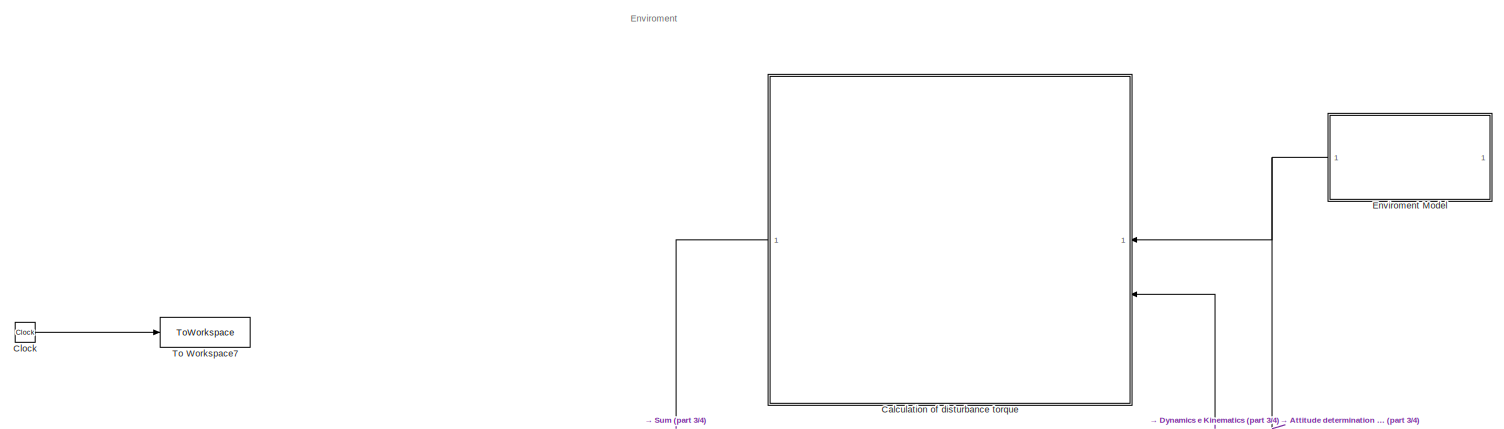
[diagram: root canvas - part 1/4, top right region]
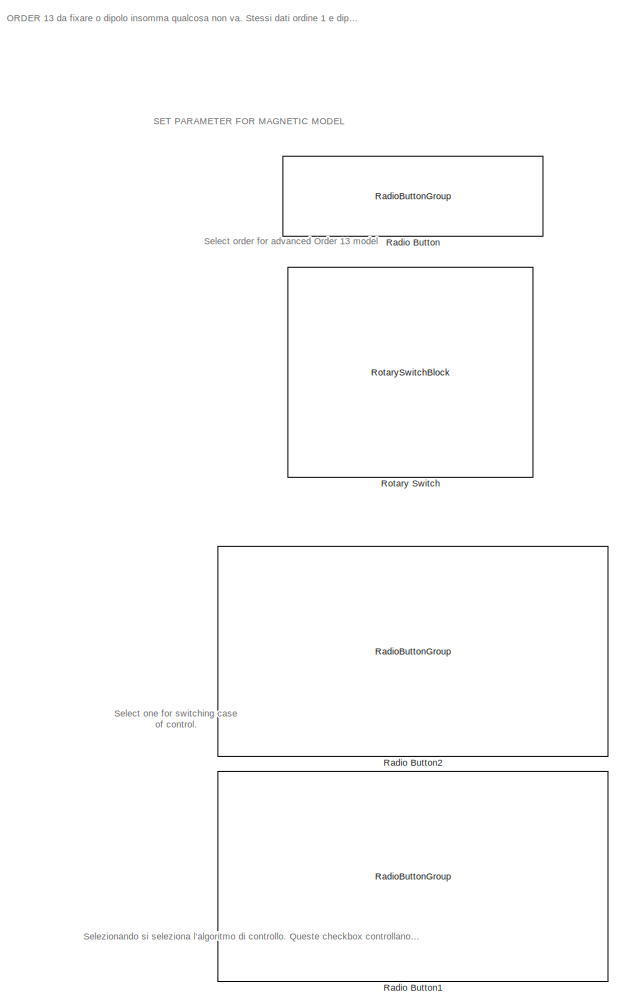
[diagram: root canvas - part 2/4, top left region]
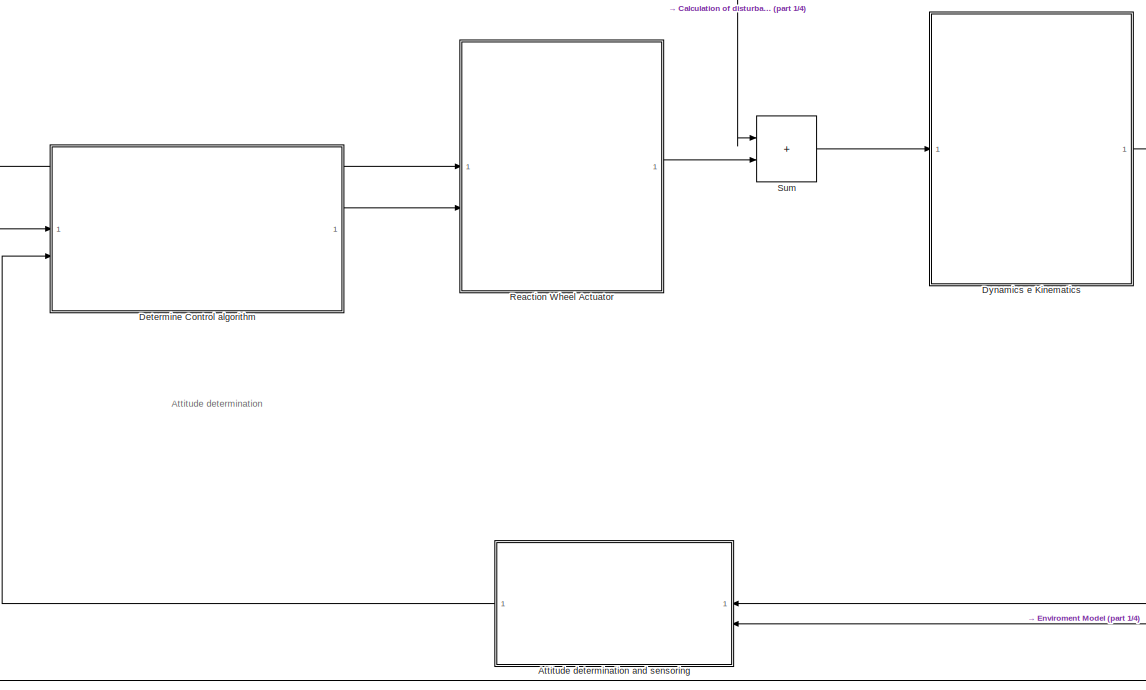
[diagram: root canvas - part 3/4, top center region]
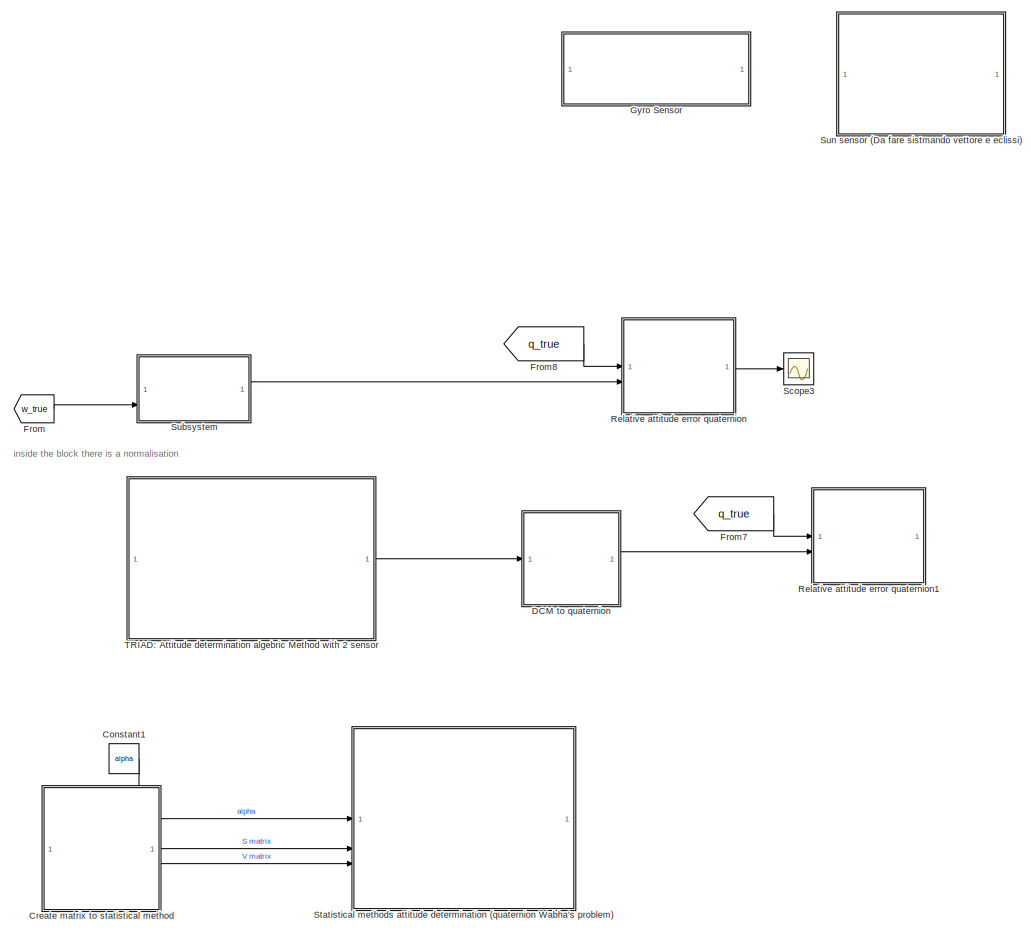
[diagram: root canvas - part 4/4, bottom center region]
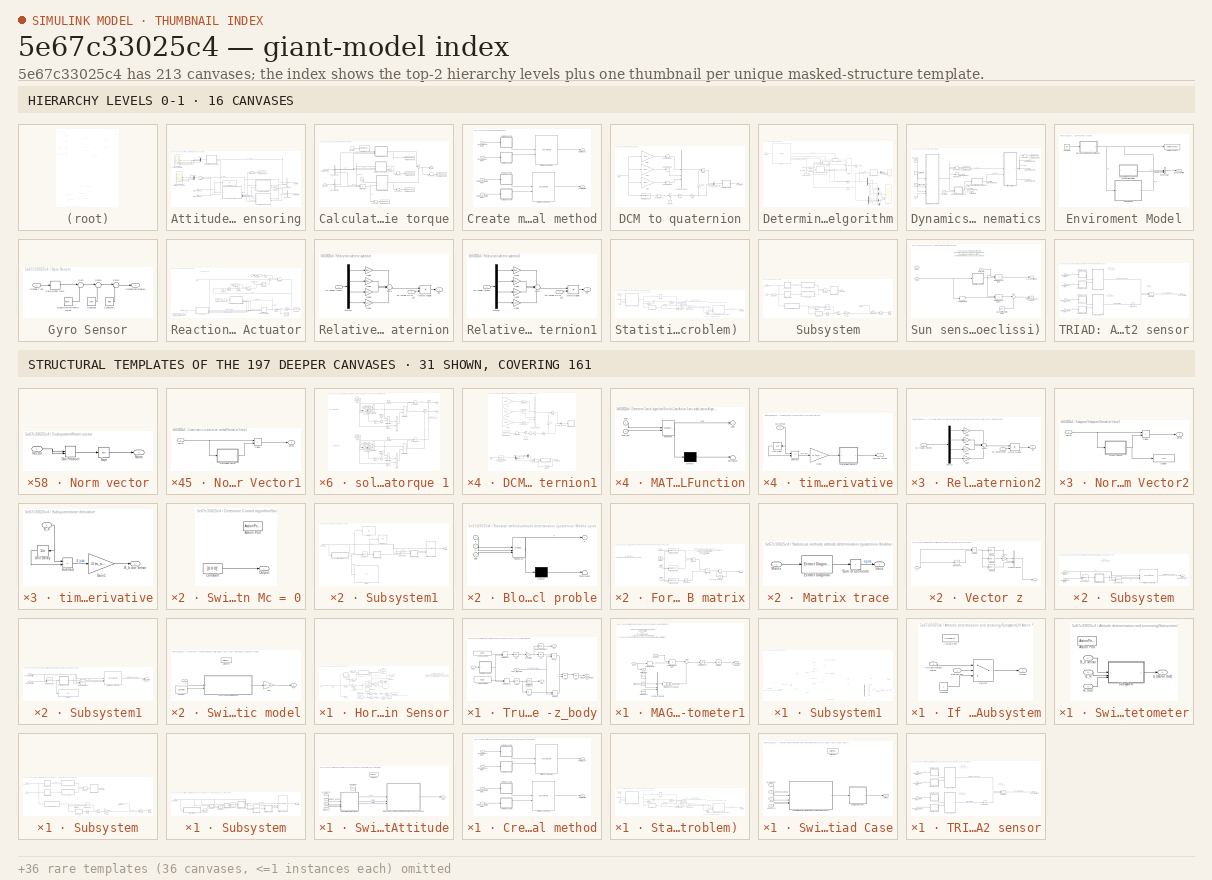
[diagram: thumbnail index - top-2 hierarchy levels (16 canvases) + 31 structural-template representatives of the remaining 197 canvases]
MODEL slx_5e67c33025c4
KIND model
CONFIG AbsTol = auto
CONFIG EnableMultiTasking = off
CONFIG FixedStep = t_step
CONFIG MaxStep = auto
CONFIG MinStep = auto
CONFIG RelTol = 1e-3
CONFIG SampleTimeConstraint = Unconstrained
CONFIG SolverName = ode4
CONFIG StartTime = t0
CONFIG StopTime = 1000
WORKSPACE source: mxarray member
WORKSPACE N_order = 1
BLOCK [SubSystem] Attitude determination and sensoring
  NameLocation = top
BLOCK [BusSelector] Attitude determination and sensoring/Bus Selector
  NameLocation = top
  OutputSignals = B_N,r_n
BLOCK [BusSelector] Attitude determination and sensoring/Bus Selector1
  NameLocation = top
  OutputSignals = w_b true,DCM_BN,q_b True
BLOCK [Demux] Attitude determination and sensoring/Demux
  NameLocation = top
BLOCK [Demux] Attitude determination and sensoring/Demux1
  NameLocation = top
  Outputs = 3
BLOCK [Display] Attitude determination and sensoring/Display
  Decimation = 1
BLOCK [Inport] Attitude determination and sensoring/Enviroment info
  NameLocation = top
  Port = 2
BLOCK [SubSystem] Attitude determination and sensoring/Horizon Sensor
  NameLocation = top
BLOCK [Reference] Attitude determination and sensoring/Horizon Sensor/Add nose of 1 deg  REF=simulink/Sources/Band-Limited
White Noise
  SourceBlock = simulink/Sources/Band-Limited\nWhite Noise
  SourceType = Band-Limited White Noise.
BLOCK [Trigonometry] Attitude determination and sensoring/Horizon Sensor/Asin2
  Operator = asin
BLOCK [Trigonometry] Attitude determination and sensoring/Horizon Sensor/Asin3
  Operator = asin
BLOCK [Constant] Attitude determination and sensoring/Horizon Sensor/Constant
  Value = horizon_cone_limit
BLOCK [Constant] Attitude determination and sensoring/Horizon Sensor/Constant1
  Value = [1 1 1]
BLOCK [Inport] Attitude determination and sensoring/Horizon Sensor/DCM_B//N
BLOCK [Display] Attitude determination and sensoring/Horizon Sensor/Display
  Decimation = 1
BLOCK [Display] Attitude determination and sensoring/Horizon Sensor/Display1
  Decimation = 1
BLOCK [Display] Attitude determination and sensoring/Horizon Sensor/Display2
  Decimation = 1
BLOCK [Display] Attitude determination and sensoring/Horizon Sensor/Display5
  Decimation = 1
BLOCK [DotProduct] Attitude determination and sensoring/Horizon Sensor/Dot Product2
  OutDataTypeStr = Inherit: Inherit via internal rule
BLOCK [DotProduct] Attitude determination and sensoring/Horizon Sensor/Dot Product3
  OutDataTypeStr = Inherit: Inherit via internal rule
BLOCK [Outport] Attitude determination and sensoring/Horizon Sensor/Falg IsEarthVisible
  Port = 3
BLOCK [Gain] Attitude determination and sensoring/Horizon Sensor/Gain
  Gain = -1
BLOCK [Gain] Attitude determination and sensoring/Horizon Sensor/Gain1
  Gain = -1
BLOCK [SubSystem] Attitude determination and sensoring/Horizon Sensor/Normalize Vector1
BLOCK [Product] Attitude determination and sensoring/Horizon Sensor/Normalize Vector1/Divide
  Inputs = */
BLOCK [SubSystem] Attitude determination and sensoring/Horizon Sensor/Normalize Vector1/Normalize Vector
  AncestorBlock = LibrarySAD5/Normalize Vector1
BLOCK [DotProduct] Attitude determination and sensoring/Horizon Sensor/Normalize Vector1/Normalize Vector/Dot Product
  OutDataTypeStr = Inherit: Inherit via internal rule
BLOCK [Outport] Attitude determination and sensoring/Horizon Sensor/Normalize Vector1/Normalize Vector/Norm
BLOCK [Sqrt] Attitude determination and sensoring/Horizon Sensor/Normalize Vector1/Normalize Vector/Sqrt
BLOCK [Inport] Attitude determination and sensoring/Horizon Sensor/Normalize Vector1/Normalize Vector/Vector
BLOCK [Inport] Attitude determination and sensoring/Horizon Sensor/Normalize Vector1/Vector
BLOCK [Outport] Attitude determination and sensoring/Horizon Sensor/Normalize Vector1/Versor
BLOCK [SubSystem] Attitude determination and sensoring/Horizon Sensor/Normalize Vector2
  NameLocation = left
BLOCK [Product] Attitude determination and sensoring/Horizon Sensor/Normalize Vector2/Divide
  Inputs = */
BLOCK [SubSystem] Attitude determination and sensoring/Horizon Sensor/Normalize Vector2/Normalize Vector
  AncestorBlock = LibrarySAD5/Normalize Vector1
BLOCK [DotProduct] Attitude determination and sensoring/Horizon Sensor/Normalize Vector2/Normalize Vector/Dot Product
  OutDataTypeStr = Inherit: Inherit via internal rule
BLOCK [Outport] Attitude determination and sensoring/Horizon Sensor/Normalize Vector2/Normalize Vector/Norm
BLOCK [Sqrt] Attitude determination and sensoring/Horizon Sensor/Normalize Vector2/Normalize Vector/Sqrt
BLOCK [Inport] Attitude determination and sensoring/Horizon Sensor/Normalize Vector2/Normalize Vector/Vector
BLOCK [Inport] Attitude determination and sensoring/Horizon Sensor/Normalize Vector2/Vector
BLOCK [Outport] Attitude determination and sensoring/Horizon Sensor/Normalize Vector2/Versor
BLOCK [Display] Attitude determination and sensoring/Horizon Sensor/Perturbed Pitch
  Decimation = 1
BLOCK [Display] Attitude determination and sensoring/Horizon Sensor/Perturbed Roll
  Decimation = 1
BLOCK [Outport] Attitude determination and sensoring/Horizon Sensor/Perturbed data Horizon
BLOCK [Inport] Attitude determination and sensoring/Horizon Sensor/R_N
  Port = 2
BLOCK [Outport] Attitude determination and sensoring/Horizon Sensor/R_N Horizon
  Port = 2
BLOCK [Reference] Attitude determination and sensoring/Horizon Sensor/Radians to Degrees2  REF=simulink_extras/Transformations/Radians
to Degrees
  SourceBlock = simulink_extras/Transformations/Radians\nto Degrees
  SourceType = RadiansToDegrees
BLOCK [Reference] Attitude determination and sensoring/Horizon Sensor/Radians to Degrees3  REF=simulink_extras/Transformations/Radians
to Degrees
  SourceBlock = simulink_extras/Transformations/Radians\nto Degrees
  SourceType = RadiansToDegrees
BLOCK [Product] Attitude determination and sensoring/Horizon Sensor/Rotation in body frame
  Multiplication = Matrix(*)
BLOCK [Product] Attitude determination and sensoring/Horizon Sensor/Rotation in body frame1
  Multiplication = Matrix(*)
BLOCK [Scope] Attitude determination and sensoring/Horizon Sensor/Scope
  Floating = off
  NumInputPorts = 1
  ScopeSpecificationString = Simulink.scopes.TimeScopeBlockCfg('CurrentConfiguration', extmgr.ConfigurationSet(extmgr.Configuration('Core','General UI',true),extmgr.Configuration('Core','Source UI',true),extmgr.Configuration('Sources','WiredSimulink',true,'DataLoggingVariableName','ScopeData1'),extmgr.Configuration('Visuals','Time Domain',true,'SerializedDisplays',{struct('MinYLimReal','-7599.04564','MaxYLimReal','7711.6762',...<+1398ch>
BLOCK [Sum] Attitude determination and sensoring/Horizon Sensor/Sum
  Inputs = |++
BLOCK [Switch] Attitude determination and sensoring/Horizon Sensor/Switch
  Criteria = u2 > Threshold
  InputSameDT = off
  SaturateOnIntegerOverflow = off
BLOCK [SubSystem] Attitude determination and sensoring/Horizon Sensor/True Roll and Pitch betwen nadir and -z_body
BLOCK [Abs] Attitude determination and sensoring/Horizon Sensor/True Roll and Pitch betwen nadir and -z_body/Abs
  SaturateOnIntegerOverflow = off
BLOCK [Abs] Attitude determination and sensoring/Horizon Sensor/True Roll and Pitch betwen nadir and -z_body/Abs1
  SaturateOnIntegerOverflow = off
BLOCK [Trigonometry] Attitude determination and sensoring/Horizon Sensor/True Roll and Pitch betwen nadir and -z_body/Asin
  Operator = asin
BLOCK [Trigonometry] Attitude determination and sensoring/Horizon Sensor/True Roll and Pitch betwen nadir and -z_body/Asin1
  Operator = asin
BLOCK [Gain] Attitude determination and sensoring/Horizon Sensor/True Roll and Pitch betwen nadir and -z_body/By defintion
  Gain = -1
BLOCK [DotProduct] Attitude determination and sensoring/Horizon Sensor/True Roll and Pitch betwen nadir and -z_body/Dot Product
  OutDataTypeStr = Inherit: Inherit via internal rule
BLOCK [DotProduct] Attitude determination and sensoring/Horizon Sensor/True Roll and Pitch betwen nadir and -z_body/Dot Product1
  OutDataTypeStr = Inherit: Inherit via internal rule
BLOCK [RelationalOperator] Attitude determination and sensoring/Horizon Sensor/True Roll and Pitch betwen nadir and -z_body/Equal
  InputSameDT = off
  Operator = >
  OutDataTypeStr = boolean
  RndMeth = Simplest
BLOCK [RelationalOperator] Attitude determination and sensoring/Horizon Sensor/True Roll and Pitch betwen nadir and -z_body/Equal1
  InputSameDT = off
  Operator = >
  OutDataTypeStr = boolean
  RndMeth = Simplest
BLOCK [Outport] Attitude determination and sensoring/Horizon Sensor/True Roll and Pitch betwen nadir and -z_body/Flag SensorSeeEarth
  Port = 3
BLOCK [Logic] Attitude determination and sensoring/Horizon Sensor/True Roll and Pitch betwen nadir and -z_body/NOT
  AllPortsSameDT = off
  IconShape = distinctive
  Operator = NOT
  OutDataTypeStr = boolean
BLOCK [SubSystem] Attitude determination and sensoring/Horizon Sensor/True Roll and Pitch betwen nadir and -z_body/Normalize Vector1
BLOCK [Product] Attitude determination and sensoring/Horizon Sensor/True Roll and Pitch betwen nadir and -z_body/Normalize Vector1/Divide
  Inputs = */
BLOCK [SubSystem] Attitude determination and sensoring/Horizon Sensor/True Roll and Pitch betwen nadir and -z_body/Normalize Vector1/Normalize Vector
  AncestorBlock = LibrarySAD5/Normalize Vector1
BLOCK [DotProduct] Attitude determination and sensoring/Horizon Sensor/True Roll and Pitch betwen nadir and -z_body/Normalize Vector1/Normalize Vector/Dot Product
  OutDataTypeStr = Inherit: Inherit via internal rule
BLOCK [Outport] Attitude determination and sensoring/Horizon Sensor/True Roll and Pitch betwen nadir and -z_body/Normalize Vector1/Normalize Vector/Norm
BLOCK [Sqrt] Attitude determination and sensoring/Horizon Sensor/True Roll and Pitch betwen nadir and -z_body/Normalize Vector1/Normalize Vector/Sqrt
BLOCK [Inport] Attitude determination and sensoring/Horizon Sensor/True Roll and Pitch betwen nadir and -z_body/Normalize Vector1/Normalize Vector/Vector
BLOCK [Inport] Attitude determination and sensoring/Horizon Sensor/True Roll and Pitch betwen nadir and -z_body/Normalize Vector1/Vector
BLOCK [Outport] Attitude determination and sensoring/Horizon Sensor/True Roll and Pitch betwen nadir and -z_body/Normalize Vector1/Versor
BLOCK [Logic] Attitude determination and sensoring/Horizon Sensor/True Roll and Pitch betwen nadir and -z_body/OR
  AllPortsSameDT = off
  IconShape = distinctive
  Operator = OR
  OutDataTypeStr = boolean
BLOCK [Outport] Attitude determination and sensoring/Horizon Sensor/True Roll and Pitch betwen nadir and -z_body/Pitch
BLOCK [Inport] Attitude determination and sensoring/Horizon Sensor/True Roll and Pitch betwen nadir and -z_body/R_b
  Port = 2
BLOCK [Reference] Attitude determination and sensoring/Horizon Sensor/True Roll and Pitch betwen nadir and -z_body/Radians to Degrees  REF=simulink_extras/Transformations/Radians
to Degrees
  SourceBlock = simulink_extras/Transformations/Radians\nto Degrees
  SourceType = RadiansToDegrees
BLOCK [Reference] Attitude determination and sensoring/Horizon Sensor/True Roll and Pitch betwen nadir and -z_body/Radians to Degrees1  REF=simulink_extras/Transformations/Radians
to Degrees
  SourceBlock = simulink_extras/Transformations/Radians\nto Degrees
  SourceType = RadiansToDegrees
BLOCK [Outport] Attitude determination and sensoring/Horizon Sensor/True Roll and Pitch betwen nadir and -z_body/Roll
  Port = 2
BLOCK [Inport] Attitude determination and sensoring/Horizon Sensor/True Roll and Pitch betwen nadir and -z_body/cone_limit_angle
BLOCK [Constant] Attitude determination and sensoring/Horizon Sensor/True Roll and Pitch betwen nadir and -z_body/x_b in body frame
  Value = [1,0,0]'
BLOCK [Constant] Attitude determination and sensoring/Horizon Sensor/True Roll and Pitch betwen nadir and -z_body/y_b in body frame1
  Value = [0,1,0]'
BLOCK [UnitDelay] Attitude determination and sensoring/Horizon Sensor/Unit Delay
  HasFrameUpgradeWarning = on
  InitialCondition = [0 1 0]'
  SampleTime = -1
BLOCK [ZeroOrderHold] Attitude determination and sensoring/Horizon Sensor/Zero-Order Hold
  SampleTime = ts_sensor
BLOCK [Constant] Attitude determination and sensoring/Horizon Sensor/x_b in body frame2
  Value = [1,0,0]'
BLOCK [Constant] Attitude determination and sensoring/Horizon Sensor/y_b in body frame3
  Value = [0,1,0]'
BLOCK [SubSystem] Attitude determination and sensoring/MAG-3  Magnetometer1
  NameLocation = top
BLOCK [Inport] Attitude determination and sensoring/MAG-3  Magnetometer1/B_N
  Port = 2
BLOCK [Outport] Attitude determination and sensoring/MAG-3  Magnetometer1/B_b perturbed sensor
BLOCK [Outport] Attitude determination and sensoring/MAG-3  Magnetometer1/B_n
  Port = 2
BLOCK [Inport] Attitude determination and sensoring/MAG-3  Magnetometer1/DCM_B//N
BLOCK [Gain] Attitude determination and sensoring/MAG-3  Magnetometer1/Error gain of sensor MAG-3
  Gain = inc_tot*FS
BLOCK [Product] Attitude determination and sensoring/MAG-3  Magnetometer1/Rotation in body frame
  Multiplication = Matrix(*)
BLOCK [Saturate] Attitude determination and sensoring/MAG-3  Magnetometer1/Saturation to FS
  LowerLimit = -FS
  UpperLimit = FS
BLOCK [Sum] Attitude determination and sensoring/MAG-3  Magnetometer1/Sum
  Inputs = |++
BLOCK [UnitDelay] Attitude determination and sensoring/MAG-3  Magnetometer1/Unit Delay
  HasFrameUpgradeWarning = on
  InitialCondition = [0,0,1]'
  SampleTime = -1
BLOCK [Concatenate] Attitude determination and sensoring/MAG-3  Magnetometer1/Vector Concatenate
  NumInputs = 3
BLOCK [RandomNumber] Attitude determination and sensoring/MAG-3  Magnetometer1/White Noise
  DisableCoverage = on
  SampleTime = ts_sensor
  Seed = 1
BLOCK [RandomNumber] Attitude determination and sensoring/MAG-3  Magnetometer1/White Noise1
  DisableCoverage = on
  SampleTime = ts_sensor
  Seed = 2
BLOCK [RandomNumber] Attitude determination and sensoring/MAG-3  Magnetometer1/White Noise2
  DisableCoverage = on
  SampleTime = ts_sensor
  Seed = 3
BLOCK [ZeroOrderHold] Attitude determination and sensoring/MAG-3  Magnetometer1/Zero-Order Hold
  SampleTime = ts_sensor
BLOCK [Inport] Attitude determination and sensoring/Model Info
  NameLocation = top
BLOCK [Outport] Attitude determination and sensoring/Out Bus Element1
BLOCK [Outport] Attitude determination and sensoring/Out Bus Element2
BLOCK [SubSystem] Attitude determination and sensoring/Relative attitude error quaternion2
  NameLocation = top
BLOCK [Demux] Attitude determination and sensoring/Relative attitude error quaternion2/Demux
BLOCK [Gain] Attitude determination and sensoring/Relative attitude error quaternion2/Gain1
  Gain = [0,0,0,-1; 0,0,1,0; 0,-1,0 0; 1,0,0,0]
BLOCK [Gain] Attitude determination and sensoring/Relative attitude error quaternion2/Gain2
  Gain = [0, 0, -1 ,0; 0, 0 ,0 ,-1; 1, 0, 0, 0; 0 1, 0, 0]
BLOCK [Gain] Attitude determination and sensoring/Relative attitude error quaternion2/Gain3
  Gain = [0 1 0 0; -1 0 0 0; 0 0 0 -1; 0 0 1 0]
BLOCK [Gain] Attitude determination and sensoring/Relative attitude error quaternion2/Gain4
  Gain = eye(4)
BLOCK [Product] Attitude determination and sensoring/Relative attitude error quaternion2/Matrix Multiply
  Multiplication = Matrix(*)
BLOCK [Sum] Attitude determination and sensoring/Relative attitude error quaternion2/Sum1
  Inputs = ++++
BLOCK [Inport] Attitude determination and sensoring/Relative attitude error quaternion2/q1 (usually Target)
BLOCK [Inport] Attitude determination and sensoring/Relative attitude error quaternion2/q2 (Estimated)
  Port = 2
BLOCK [Outport] Attitude determination and sensoring/Relative attitude error quaternion2/qe
BLOCK [Reshape] Attitude determination and sensoring/Reshape3
BLOCK [Scope] Attitude determination and sensoring/SCOPE ERROR ATTITUTE ESTIMATION RESPECT TO DCM_BN TRUE 
  Floating = off
  NameLocation = top
  NumInputPorts = 4
  ScopeSpecificationString = Simulink.scopes.TimeScopeBlockCfg('CurrentConfiguration', extmgr.ConfigurationSet(extmgr.Configuration('Core','General UI',true),extmgr.Configuration('Core','Source UI',true),extmgr.Configuration('Sources','WiredSimulink',true,'DataLoggingVariableName','ScopeData3'),extmgr.Configuration('Visuals','Time Domain',true,'SerializedDisplays',{struct('MinYLimReal','-0.51945','MaxYLimReal','0.50149','YLab...<+3524ch>
BLOCK [Scope] Attitude determination and sensoring/SCOPE ERROR w estimated RESPECT TO w TRUE 
  Floating = off
  NameLocation = top
  NumInputPorts = 3
  ScopeSpecificationString = Simulink.scopes.TimeScopeBlockCfg('CurrentConfiguration', extmgr.ConfigurationSet(extmgr.Configuration('Core','General UI',true),extmgr.Configuration('Core','Source UI',true),extmgr.Configuration('Sources','WiredSimulink',true,'DataLoggingVariableName','ScopeData4'),extmgr.Configuration('Visuals','Time Domain',true,'SerializedDisplays',{struct('MinYLimReal','-8.65523','MaxYLimReal','20.78907','YLa...<+2756ch>
BLOCK [SubSystem] Attitude determination and sensoring/Subsystem1
  NameLocation = top
BLOCK [Inport] Attitude determination and sensoring/Subsystem1/B_N
  Port = 3
BLOCK [Inport] Attitude determination and sensoring/Subsystem1/B_b sensor
  Port = 2
BLOCK [Constant] Attitude determination and sensoring/Subsystem1/Constant5
  Value = 2
BLOCK [Demux] Attitude determination and sensoring/Subsystem1/Demux
BLOCK [Display] Attitude determination and sensoring/Subsystem1/Display
  Decimation = 1
BLOCK [Inport] Attitude determination and sensoring/Subsystem1/Flag IsEarthVisible
  Port = 6
BLOCK [Gain] Attitude determination and sensoring/Subsystem1/Gain
  Gain = [0,0,0; 0,0,-1; 0 1, 0;-1,0,0]
BLOCK [Gain] Attitude determination and sensoring/Subsystem1/Gain1
  Gain = [0,0,1;0,0,0;-1,0,0;0,-1,0]
BLOCK [Gain] Attitude determination and sensoring/Subsystem1/Gain2
  Gain = [0,-1,0;1,0,0;0,0,0;0,0,-1]
BLOCK [Gain] Attitude determination and sensoring/Subsystem1/Gain3
  Gain = [1,0,0;0,1,0;0,0,1;0,0,0]
BLOCK [Gain] Attitude determination and sensoring/Subsystem1/Gain4
  Gain = 2
BLOCK [Inport] Attitude determination and sensoring/Subsystem1/Horizon_N
  Port = 5
BLOCK [Inport] Attitude determination and sensoring/Subsystem1/Horizon_b sensor
  Port = 4
BLOCK [SubSystem] Attitude determination and sensoring/Subsystem1/If Action Subsystem
  TreatAsAtomicUnit = on
BLOCK [ActionPort] Attitude determination and sensoring/Subsystem1/If Action Subsystem/Action Port
  ActionPortLabel = else
  PropagateVarSize = During execution
BLOCK [Inport] Attitude determination and sensoring/Subsystem1/If Action Subsystem/Attitude method choice
BLOCK [Constant] Attitude determination and sensoring/Subsystem1/If Action Subsystem/Constant
BLOCK [Inport] Attitude determination and sensoring/Subsystem1/If Action Subsystem/Flag horizon
  Port = 2
BLOCK [Outport] Attitude determination and sensoring/Subsystem1/If Action Subsystem/Output
BLOCK [Switch] Attitude determination and sensoring/Subsystem1/If Action Subsystem/Switch
  Criteria = u2 > Threshold
  InputSameDT = off
  SaturateOnIntegerOverflow = off
BLOCK [SubSystem] Attitude determination and sensoring/Subsystem1/If Action Subsystem1
  TreatAsAtomicUnit = on
BLOCK [ActionPort] Attitude determination and sensoring/Subsystem1/If Action Subsystem1/Action Port
  ActionPortLabel = if(u1  == 1)
  PropagateVarSize = During execution
BLOCK [Constant] Attitude determination and sensoring/Subsystem1/If Action Subsystem1/Constant
BLOCK [Outport] Attitude determination and sensoring/Subsystem1/If Action Subsystem1/Out1
BLOCK [If] Attitude determination and sensoring/Subsystem1/If1
  IfExpression = u1  == 1
BLOCK [Product] Attitude determination and sensoring/Subsystem1/Matrix Multiply
  Multiplication = Matrix(*)
BLOCK [Merge] Attitude determination and sensoring/Subsystem1/Merge
  Inputs = 3
BLOCK [Merge] Attitude determination and sensoring/Subsystem1/Merge1
BLOCK [Reference] Attitude determination and sensoring/Subsystem1/Pseudoinverse  REF=dspinverses/Pseudoinverse
  SourceBlock = dspinverses/Pseudoinverse
  SourceType = Pseudoinverse
BLOCK [Sum] Attitude determination and sensoring/Subsystem1/Sum
  Inputs = |++++
BLOCK [SwitchCase] Attitude determination and sensoring/Subsystem1/Switch Case
  CaseConditions = {1,2}
BLOCK [SubSystem] Attitude determination and sensoring/Subsystem1/Switch Case Action Only-Magnetometer
  TreatAsAtomicUnit = on
BLOCK [ActionPort] Attitude determination and sensoring/Subsystem1/Switch Case Action Only-Magnetometer/Action Port
  ActionPortLabel = case [ 1 ]:
BLOCK [Inport] Attitude determination and sensoring/Subsystem1/Switch Case Action Only-Magnetometer/B_N
  Port = 2
BLOCK [Inport] Attitude determination and sensoring/Subsystem1/Switch Case Action Only-Magnetometer/B_b sensor
BLOCK [SubSystem] Attitude determination and sensoring/Subsystem1/Switch Case Action Only-Magnetometer/Subsystem
BLOCK [Inport] Attitude determination and sensoring/Subsystem1/Switch Case Action Only-Magnetometer/Subsystem/B_N
  Port = 2
BLOCK [Inport] Attitude determination and sensoring/Subsystem1/Switch Case Action Only-Magnetometer/Subsystem/B_b sensor
BLOCK [Reference] Attitude determination and sensoring/Subsystem1/Switch Case Action Only-Magnetometer/Subsystem/Cross Product4  REF=matrix_library/Cross Product
  LibrarySourceBlock = simulink/Matrix\nOperations/Cross Product
  SourceBlock = matrix_library/Cross Product
  SourceType = CrossProduct
BLOCK [SubSystem] Attitude determination and sensoring/Subsystem1/Switch Case Action Only-Magnetometer/Subsystem/DCM to quaternion1
BLOCK [Abs] Attitude determination and sensoring/Subsystem1/Switch Case Action Only-Magnetometer/Subsystem/DCM to quaternion1/Abs
  SaturateOnIntegerOverflow = off
BLOCK [Constant] Attitude determination and sensoring/Subsystem1/Switch Case Action Only-Magnetometer/Subsystem/DCM to quaternion1/Constant
  NameLocation = right
BLOCK [Inport] Attitude determination and sensoring/Subsystem1/Switch Case Action Only-Magnetometer/Subsystem/DCM to quaternion1/DCM
BLOCK [Demux] Attitude determination and sensoring/Subsystem1/Switch Case Action Only-Magnetometer/Subsystem/DCM to quaternion1/Demux
BLOCK [Reference] Attitude determination and sensoring/Subsystem1/Switch Case Action Only-Magnetometer/Subsystem/DCM to quaternion1/Direction Cosine Matrix to Quaternions1  REF=sharedtransform/Direction Cosine Matrix 
to Quaternions
  LibrarySourceBlock = aerolibtransform2/Direction Cosine Matrix \nto Quaternions
  SourceBlock = sharedtransform/Direction Cosine Matrix \nto Quaternions
  SourceType = DCM2Quaternion
BLOCK [Product] Attitude determination and sensoring/Subsystem1/Switch Case Action Only-Magnetometer/Subsystem/DCM to quaternion1/Divide
  Inputs = */
BLOCK [Reference] Attitude determination and sensoring/Subsystem1/Switch Case Action Only-Magnetometer/Subsystem/DCM to quaternion1/Extract Diagonal  REF=matrix_library/Extract Diagonal
  LibrarySourceBlock = simulink/Matrix\nOperations/Extract Diagonal
  SourceBlock = matrix_library/Extract Diagonal
  SourceType = Extract Diagonal
BLOCK [Gain] Attitude determination and sensoring/Subsystem1/Switch Case Action Only-Magnetometer/Subsystem/DCM to quaternion1/Gain
  Gain = 0.5
BLOCK [Gain] Attitude determination and sensoring/Subsystem1/Switch Case Action Only-Magnetometer/Subsystem/DCM to quaternion1/Gain1
  Gain = [0 0 0; 0 0 1; 0 -1 0]
BLOCK [Gain] Attitude determination and sensoring/Subsystem1/Switch Case Action Only-Magnetometer/Subsystem/DCM to quaternion1/Gain2
  Gain = [0 0 -1; 0 0 0; 1 0 0]
BLOCK [Gain] Attitude determination and sensoring/Subsystem1/Switch Case Action Only-Magnetometer/Subsystem/DCM to quaternion1/Gain3
  Gain = [0 1 0; -1 0 0; 0 0 0]
BLOCK [Gain] Attitude determination and sensoring/Subsystem1/Switch Case Action Only-Magnetometer/Subsystem/DCM to quaternion1/Gain4
  Gain = [4;4;4]
  NameLocation = right
BLOCK [SubSystem] Attitude determination and sensoring/Subsystem1/Switch Case Action Only-Magnetometer/Subsystem/DCM to quaternion1/MATLAB Function
  ErrorFcn = Stateflow.Translate.translate
  PermitHierarchicalResolution = ExplicitOnly
  SFBlockType = MATLAB Function
  TreatAsAtomicUnit = on
BLOCK [Demux] Attitude determination and sensoring/Subsystem1/Switch Case Action Only-Magnetometer/Subsystem/DCM to quaternion1/MATLAB Function/ Demux 
  Outputs = 1
BLOCK [S-Function] Attitude determination and sensoring/Subsystem1/Switch Case Action Only-Magnetometer/Subsystem/DCM to quaternion1/MATLAB Function/ SFunction 
  EnableBusSupport = on
  FunctionName = sf_sfun
  PortCounts = [2 2]
  SFcnIsStateOwnerBlock = off
  SFunctionDeploymentMode = off
  Tag = Stateflow S-Function 5
BLOCK [Terminator] Attitude determination and sensoring/Subsystem1/Switch Case Action Only-Magnetometer/Subsystem/DCM to quaternion1/MATLAB Function/ Terminator 
BLOCK [Outport] Attitude determination and sensoring/Subsystem1/Switch Case Action Only-Magnetometer/Subsystem/DCM to quaternion1/MATLAB Function/quat
BLOCK [Inport] Attitude determination and sensoring/Subsystem1/Switch Case Action Only-Magnetometer/Subsystem/DCM to quaternion1/MATLAB Function/quat 
BLOCK [Inport] Attitude determination and sensoring/Subsystem1/Switch Case Action Only-Magnetometer/Subsystem/DCM to quaternion1/MATLAB Function/quat_last
  Port = 2
BLOCK [Mux] Attitude determination and sensoring/Subsystem1/Switch Case Action Only-Magnetometer/Subsystem/DCM to quaternion1/Mux
  DisplayOption = bar
  Inputs = 3
BLOCK [SubSystem] Attitude determination and sensoring/Subsystem1/Switch Case Action Only-Magnetometer/Subsystem/DCM to quaternion1/Normalize Vector1
BLOCK [Product] Attitude determination and sensoring/Subsystem1/Switch Case Action Only-Magnetometer/Subsystem/DCM to quaternion1/Normalize Vector1/Divide
  Inputs = */
BLOCK [SubSystem] Attitude determination and sensoring/Subsystem1/Switch Case Action Only-Magnetometer/Subsystem/DCM to quaternion1/Normalize Vector1/Norm vector
  AncestorBlock = LibrarySAD5/Normalize Vector1
BLOCK [DotProduct] Attitude determination and sensoring/Subsystem1/Switch Case Action Only-Magnetometer/Subsystem/DCM to quaternion1/Normalize Vector1/Norm vector/Dot Product
  OutDataTypeStr = Inherit: Inherit via internal rule
BLOCK [Outport] Attitude determination and sensoring/Subsystem1/Switch Case Action Only-Magnetometer/Subsystem/DCM to quaternion1/Normalize Vector1/Norm vector/Norm
BLOCK [Sqrt] Attitude determination and sensoring/Subsystem1/Switch Case Action Only-Magnetometer/Subsystem/DCM to quaternion1/Normalize Vector1/Norm vector/Sqrt
BLOCK [Inport] Attitude determination and sensoring/Subsystem1/Switch Case Action Only-Magnetometer/Subsystem/DCM to quaternion1/Normalize Vector1/Norm vector/Vector
BLOCK [Inport] Attitude determination and sensoring/Subsystem1/Switch Case Action Only-Magnetometer/Subsystem/DCM to quaternion1/Normalize Vector1/Vector
BLOCK [Outport] Attitude determination and sensoring/Subsystem1/Switch Case Action Only-Magnetometer/Subsystem/DCM to quaternion1/Normalize Vector1/Versor
BLOCK [Sqrt] Attitude determination and sensoring/Subsystem1/Switch Case Action Only-Magnetometer/Subsystem/DCM to quaternion1/Sqrt
BLOCK [Sum] Attitude determination and sensoring/Subsystem1/Switch Case Action Only-Magnetometer/Subsystem/DCM to quaternion1/Sum
  Inputs = |++
BLOCK [Sum] Attitude determination and sensoring/Subsystem1/Switch Case Action Only-Magnetometer/Subsystem/DCM to quaternion1/Sum of Elements
  IconShape = rectangular
  Inputs = +
BLOCK [Sum] Attitude determination and sensoring/Subsystem1/Switch Case Action Only-Magnetometer/Subsystem/DCM to quaternion1/Sum of Elements1
  IconShape = rectangular
  Inputs = +
BLOCK [Sum] Attitude determination and sensoring/Subsystem1/Switch Case Action Only-Magnetometer/Subsystem/DCM to quaternion1/Sum of Elements2
  IconShape = rectangular
  Inputs = +
BLOCK [Sum] Attitude determination and sensoring/Subsystem1/Switch Case Action Only-Magnetometer/Subsystem/DCM to quaternion1/Sum of Elements3
  IconShape = rectangular
  Inputs = +
BLOCK [UnitDelay] Attitude determination and sensoring/Subsystem1/Switch Case Action Only-Magnetometer/Subsystem/DCM to quaternion1/Unit Delay
  HasFrameUpgradeWarning = on
  InitialCondition = q0
  NameLocation = top
  SampleTime = -1
BLOCK [Concatenate] Attitude determination and sensoring/Subsystem1/Switch Case Action Only-Magnetometer/Subsystem/DCM to quaternion1/Vector Concatenate
  NumInputs = 3
BLOCK [Concatenate] Attitude determination and sensoring/Subsystem1/Switch Case Action Only-Magnetometer/Subsystem/DCM to quaternion1/Vector Concatenate1
BLOCK [Concatenate] Attitude determination and sensoring/Subsystem1/Switch Case Action Only-Magnetometer/Subsystem/DCM to quaternion1/Vector Concatenate2
BLOCK [Outport] Attitude determination and sensoring/Subsystem1/Switch Case Action Only-Magnetometer/Subsystem/DCM to quaternion1/q (scalar last)1
BLOCK [Product] Attitude determination and sensoring/Subsystem1/Switch Case Action Only-Magnetometer/Subsystem/Divide
  Inputs = */
BLOCK [Gain] Attitude determination and sensoring/Subsystem1/Switch Case Action Only-Magnetometer/Subsystem/Gain3
  Gain = 1/ts_sensor
BLOCK [Product] Attitude determination and sensoring/Subsystem1/Switch Case Action Only-Magnetometer/Subsystem/Matrix Multiply2
  Multiplication = Matrix(*)
BLOCK [SubSystem] Attitude determination and sensoring/Subsystem1/Switch Case Action Only-Magnetometer/Subsystem/Norm vector
  AncestorBlock = LibrarySAD5/Normalize Vector1
BLOCK [DotProduct] Attitude determination and sensoring/Subsystem1/Switch Case Action Only-Magnetometer/Subsystem/Norm vector/Dot Product
  OutDataTypeStr = Inherit: Inherit via internal rule
BLOCK [Outport] Attitude determination and sensoring/Subsystem1/Switch Case Action Only-Magnetometer/Subsystem/Norm vector/Norm
BLOCK [Sqrt] Attitude determination and sensoring/Subsystem1/Switch Case Action Only-Magnetometer/Subsystem/Norm vector/Sqrt
BLOCK [Inport] Attitude determination and sensoring/Subsystem1/Switch Case Action Only-Magnetometer/Subsystem/Norm vector/Vector
BLOCK [SubSystem] Attitude determination and sensoring/Subsystem1/Switch Case Action Only-Magnetometer/Subsystem/Normalize Vector1
BLOCK [Product] Attitude determination and sensoring/Subsystem1/Switch Case Action Only-Magnetometer/Subsystem/Normalize Vector1/Divide
  Inputs = */
BLOCK [SubSystem] Attitude determination and sensoring/Subsystem1/Switch Case Action Only-Magnetometer/Subsystem/Normalize Vector1/Norm vector
  AncestorBlock = LibrarySAD5/Normalize Vector1
BLOCK [DotProduct] Attitude determination and sensoring/Subsystem1/Switch Case Action Only-Magnetometer/Subsystem/Normalize Vector1/Norm vector/Dot Product
  OutDataTypeStr = Inherit: Inherit via internal rule
BLOCK [Outport] Attitude determination and sensoring/Subsystem1/Switch Case Action Only-Magnetometer/Subsystem/Normalize Vector1/Norm vector/Norm
BLOCK [Sqrt] Attitude determination and sensoring/Subsystem1/Switch Case Action Only-Magnetometer/Subsystem/Normalize Vector1/Norm vector/Sqrt
BLOCK [Inport] Attitude determination and sensoring/Subsystem1/Switch Case Action Only-Magnetometer/Subsystem/Normalize Vector1/Norm vector/Vector
BLOCK [Inport] Attitude determination and sensoring/Subsystem1/Switch Case Action Only-Magnetometer/Subsystem/Normalize Vector1/Vector
BLOCK [Outport] Attitude determination and sensoring/Subsystem1/Switch Case Action Only-Magnetometer/Subsystem/Normalize Vector1/Versor
BLOCK [SubSystem] Attitude determination and sensoring/Subsystem1/Switch Case Action Only-Magnetometer/Subsystem/Normalize Vector5
BLOCK [Product] Attitude determination and sensoring/Subsystem1/Switch Case Action Only-Magnetometer/Subsystem/Normalize Vector5/Divide
  Inputs = */
BLOCK [SubSystem] Attitude determination and sensoring/Subsystem1/Switch Case Action Only-Magnetometer/Subsystem/Normalize Vector5/Norm vector
  AncestorBlock = LibrarySAD5/Normalize Vector1
BLOCK [DotProduct] Attitude determination and sensoring/Subsystem1/Switch Case Action Only-Magnetometer/Subsystem/Normalize Vector5/Norm vector/Dot Product
  OutDataTypeStr = Inherit: Inherit via internal rule
BLOCK [Outport] Attitude determination and sensoring/Subsystem1/Switch Case Action Only-Magnetometer/Subsystem/Normalize Vector5/Norm vector/Norm
BLOCK [Sqrt] Attitude determination and sensoring/Subsystem1/Switch Case Action Only-Magnetometer/Subsystem/Normalize Vector5/Norm vector/Sqrt
BLOCK [Inport] Attitude determination and sensoring/Subsystem1/Switch Case Action Only-Magnetometer/Subsystem/Normalize Vector5/Norm vector/Vector
BLOCK [Inport] Attitude determination and sensoring/Subsystem1/Switch Case Action Only-Magnetometer/Subsystem/Normalize Vector5/Vector
BLOCK [Outport] Attitude determination and sensoring/Subsystem1/Switch Case Action Only-Magnetometer/Subsystem/Normalize Vector5/Versor
BLOCK [Inport] Attitude determination and sensoring/Subsystem1/Switch Case Action Only-Magnetometer/Subsystem/Omega True
  Port = 3
BLOCK [Scope] Attitude determination and sensoring/Subsystem1/Switch Case Action Only-Magnetometer/Subsystem/Scope
  Floating = off
  NumInputPorts = 1
  ScopeSpecificationString = Simulink.scopes.TimeScopeBlockCfg('CurrentConfiguration', extmgr.ConfigurationSet(extmgr.Configuration('Core','General UI',true),extmgr.Configuration('Core','Source UI',true),extmgr.Configuration('Sources','WiredSimulink',true,'DataLoggingVariableName','ScopeData4'),extmgr.Configuration('Visuals','Time Domain',true,'SerializedDisplays',{struct('MinYLimReal','-606.44472','MaxYLimReal','-606.41799',...<+1485ch>
BLOCK [Math] Attitude determination and sensoring/Subsystem1/Switch Case Action Only-Magnetometer/Subsystem/Square
  Operator = square
BLOCK [SubSystem] Attitude determination and sensoring/Subsystem1/Switch Case Action Only-Magnetometer/Subsystem/Subsystem
BLOCK [Inport] Attitude determination and sensoring/Subsystem1/Switch Case Action Only-Magnetometer/Subsystem/Subsystem/B_b versor
BLOCK [Reference] Attitude determination and sensoring/Subsystem1/Switch Case Action Only-Magnetometer/Subsystem/Subsystem/Cross Product  REF=matrix_library/Cross Product
  LibrarySourceBlock = simulink/Matrix\nOperations/Cross Product
  SourceBlock = matrix_library/Cross Product
  SourceType = CrossProduct
BLOCK [Reference] Attitude determination and sensoring/Subsystem1/Switch Case Action Only-Magnetometer/Subsystem/Subsystem/Cross Product1  REF=matrix_library/Cross Product
  LibrarySourceBlock = simulink/Matrix\nOperations/Cross Product
  SourceBlock = matrix_library/Cross Product
  SourceType = CrossProduct
BLOCK [Concatenate] Attitude determination and sensoring/Subsystem1/Switch Case Action Only-Magnetometer/Subsystem/Subsystem/Matrix Concatenate
  ConcatenateDimension = 2
  Mode = Multidimensional array
  NumInputs = 3
BLOCK [Product] Attitude determination and sensoring/Subsystem1/Switch Case Action Only-Magnetometer/Subsystem/Subsystem/Matrix Multiply
  Multiplication = Matrix(*)
BLOCK [Product] Attitude determination and sensoring/Subsystem1/Switch Case Action Only-Magnetometer/Subsystem/Subsystem/Matrix Multiply1
  Multiplication = Matrix(*)
BLOCK [SubSystem] Attitude determination and sensoring/Subsystem1/Switch Case Action Only-Magnetometer/Subsystem/Subsystem/Normalize Vector1
BLOCK [Display] Attitude determination and sensoring/Subsystem1/Switch Case Action Only-Magnetometer/Subsystem/Subsystem/Normalize Vector1/Display
  Decimation = 1
BLOCK [Product] Attitude determination and sensoring/Subsystem1/Switch Case Action Only-Magnetometer/Subsystem/Subsystem/Normalize Vector1/Divide
  Inputs = */
BLOCK [SubSystem] Attitude determination and sensoring/Subsystem1/Switch Case Action Only-Magnetometer/Subsystem/Subsystem/Normalize Vector1/Norm vector
  AncestorBlock = LibrarySAD5/Normalize Vector1
BLOCK [DotProduct] Attitude determination and sensoring/Subsystem1/Switch Case Action Only-Magnetometer/Subsystem/Subsystem/Normalize Vector1/Norm vector/Dot Product
  OutDataTypeStr = Inherit: Inherit via internal rule
BLOCK [Outport] Attitude determination and sensoring/Subsystem1/Switch Case Action Only-Magnetometer/Subsystem/Subsystem/Normalize Vector1/Norm vector/Norm
BLOCK [Sqrt] Attitude determination and sensoring/Subsystem1/Switch Case Action Only-Magnetometer/Subsystem/Subsystem/Normalize Vector1/Norm vector/Sqrt
BLOCK [Inport] Attitude determination and sensoring/Subsystem1/Switch Case Action Only-Magnetometer/Subsystem/Subsystem/Normalize Vector1/Norm vector/Vector
BLOCK [Inport] Attitude determination and sensoring/Subsystem1/Switch Case Action Only-Magnetometer/Subsystem/Subsystem/Normalize Vector1/Vector
BLOCK [Outport] Attitude determination and sensoring/Subsystem1/Switch Case Action Only-Magnetometer/Subsystem/Subsystem/Normalize Vector1/Versor
BLOCK [SubSystem] Attitude determination and sensoring/Subsystem1/Switch Case Action Only-Magnetometer/Subsystem/Subsystem/Normalize Vector2
BLOCK [Display] Attitude determination and sensoring/Subsystem1/Switch Case Action Only-Magnetometer/Subsystem/Subsystem/Normalize Vector2/Display
  Decimation = 1
BLOCK [Product] Attitude determination and sensoring/Subsystem1/Switch Case Action Only-Magnetometer/Subsystem/Subsystem/Normalize Vector2/Divide
  Inputs = */
BLOCK [SubSystem] Attitude determination and sensoring/Subsystem1/Switch Case Action Only-Magnetometer/Subsystem/Subsystem/Normalize Vector2/Norm vector
  AncestorBlock = LibrarySAD5/Normalize Vector1
BLOCK [DotProduct] Attitude determination and sensoring/Subsystem1/Switch Case Action Only-Magnetometer/Subsystem/Subsystem/Normalize Vector2/Norm vector/Dot Product
  OutDataTypeStr = Inherit: Inherit via internal rule
BLOCK [Outport] Attitude determination and sensoring/Subsystem1/Switch Case Action Only-Magnetometer/Subsystem/Subsystem/Normalize Vector2/Norm vector/Norm
BLOCK [Sqrt] Attitude determination and sensoring/Subsystem1/Switch Case Action Only-Magnetometer/Subsystem/Subsystem/Normalize Vector2/Norm vector/Sqrt
BLOCK [Inport] Attitude determination and sensoring/Subsystem1/Switch Case Action Only-Magnetometer/Subsystem/Subsystem/Normalize Vector2/Norm vector/Vector
BLOCK [Inport] Attitude determination and sensoring/Subsystem1/Switch Case Action Only-Magnetometer/Subsystem/Subsystem/Normalize Vector2/Vector
BLOCK [Outport] Attitude determination and sensoring/Subsystem1/Switch Case Action Only-Magnetometer/Subsystem/Subsystem/Normalize Vector2/Versor
BLOCK [SubSystem] Attitude determination and sensoring/Subsystem1/Switch Case Action Only-Magnetometer/Subsystem/Subsystem/Normalize Vector6
BLOCK [Product] Attitude determination and sensoring/Subsystem1/Switch Case Action Only-Magnetometer/Subsystem/Subsystem/Normalize Vector6/Divide
  Inputs = */
BLOCK [SubSystem] Attitude determination and sensoring/Subsystem1/Switch Case Action Only-Magnetometer/Subsystem/Subsystem/Normalize Vector6/Norm vector
  AncestorBlock = LibrarySAD5/Normalize Vector1
BLOCK [DotProduct] Attitude determination and sensoring/Subsystem1/Switch Case Action Only-Magnetometer/Subsystem/Subsystem/Normalize Vector6/Norm vector/Dot Product
  OutDataTypeStr = Inherit: Inherit via internal rule
BLOCK [Outport] Attitude determination and sensoring/Subsystem1/Switch Case Action Only-Magnetometer/Subsystem/Subsystem/Normalize Vector6/Norm vector/Norm
BLOCK [Sqrt] Attitude determination and sensoring/Subsystem1/Switch Case Action Only-Magnetometer/Subsystem/Subsystem/Normalize Vector6/Norm vector/Sqrt
BLOCK [Inport] Attitude determination and sensoring/Subsystem1/Switch Case Action Only-Magnetometer/Subsystem/Subsystem/Normalize Vector6/Norm vector/Vector
BLOCK [Inport] Attitude determination and sensoring/Subsystem1/Switch Case Action Only-Magnetometer/Subsystem/Subsystem/Normalize Vector6/Vector
BLOCK [Outport] Attitude determination and sensoring/Subsystem1/Switch Case Action Only-Magnetometer/Subsystem/Subsystem/Normalize Vector6/Versor
BLOCK [Math] Attitude determination and sensoring/Subsystem1/Switch Case Action Only-Magnetometer/Subsystem/Subsystem/Transpose
  Operator = transpose
BLOCK [Outport] Attitude determination and sensoring/Subsystem1/Switch Case Action Only-Magnetometer/Subsystem/Subsystem/b_matrix
BLOCK [SubSystem] Attitude determination and sensoring/Subsystem1/Switch Case Action Only-Magnetometer/Subsystem/Subsystem/time derivative
BLOCK [Outport] Attitude determination and sensoring/Subsystem1/Switch Case Action Only-Magnetometer/Subsystem/Subsystem/time derivative/B_b dot Versor
BLOCK [Inport] Attitude determination and sensoring/Subsystem1/Switch Case Action Only-Magnetometer/Subsystem/Subsystem/time derivative/B_b versor
BLOCK [Gain] Attitude determination and sensoring/Subsystem1/Switch Case Action Only-Magnetometer/Subsystem/Subsystem/time derivative/Gain1
  Gain = 1/ ts_sensor
BLOCK [SubSystem] Attitude determination and sensoring/Subsystem1/Switch Case Action Only-Magnetometer/Subsystem/Subsystem/time derivative/Normalize Vector2
BLOCK [Product] Attitude determination and sensoring/Subsystem1/Switch Case Action Only-Magnetometer/Subsystem/Subsystem/time derivative/Normalize Vector2/Divide
  Inputs = */
BLOCK [SubSystem] Attitude determination and sensoring/Subsystem1/Switch Case Action Only-Magnetometer/Subsystem/Subsystem/time derivative/Normalize Vector2/Norm vector
  AncestorBlock = LibrarySAD5/Normalize Vector1
BLOCK [DotProduct] Attitude determination and sensoring/Subsystem1/Switch Case Action Only-Magnetometer/Subsystem/Subsystem/time derivative/Normalize Vector2/Norm vector/Dot Product
  OutDataTypeStr = Inherit: Inherit via internal rule
BLOCK [Outport] Attitude determination and sensoring/Subsystem1/Switch Case Action Only-Magnetometer/Subsystem/Subsystem/time derivative/Normalize Vector2/Norm vector/Norm
BLOCK [Sqrt] Attitude determination and sensoring/Subsystem1/Switch Case Action Only-Magnetometer/Subsystem/Subsystem/time derivative/Normalize Vector2/Norm vector/Sqrt
BLOCK [Inport] Attitude determination and sensoring/Subsystem1/Switch Case Action Only-Magnetometer/Subsystem/Subsystem/time derivative/Normalize Vector2/Norm vector/Vector
BLOCK [Inport] Attitude determination and sensoring/Subsystem1/Switch Case Action Only-Magnetometer/Subsystem/Subsystem/time derivative/Normalize Vector2/Vector
BLOCK [Outport] Attitude determination and sensoring/Subsystem1/Switch Case Action Only-Magnetometer/Subsystem/Subsystem/time derivative/Normalize Vector2/Versor
BLOCK [Sum] Attitude determination and sensoring/Subsystem1/Switch Case Action Only-Magnetometer/Subsystem/Subsystem/time derivative/Subtract
  IconShape = rectangular
  Inputs = +-
BLOCK [UnitDelay] Attitude determination and sensoring/Subsystem1/Switch Case Action Only-Magnetometer/Subsystem/Subsystem/time derivative/Unit Delay
  HasFrameUpgradeWarning = on
  InitialCondition = [1 1 0]'
  NameLocation = top
  SampleTime = -1
BLOCK [SubSystem] Attitude determination and sensoring/Subsystem1/Switch Case Action Only-Magnetometer/Subsystem/Subsystem1
BLOCK [Inport] Attitude determination and sensoring/Subsystem1/Switch Case Action Only-Magnetometer/Subsystem/Subsystem1/B_N versor
BLOCK [Reference] Attitude determination and sensoring/Subsystem1/Switch Case Action Only-Magnetometer/Subsystem/Subsystem1/Cross Product  REF=matrix_library/Cross Product
  LibrarySourceBlock = simulink/Matrix\nOperations/Cross Product
  SourceBlock = matrix_library/Cross Product
  SourceType = CrossProduct
BLOCK [Reference] Attitude determination and sensoring/Subsystem1/Switch Case Action Only-Magnetometer/Subsystem/Subsystem1/Cross Product1  REF=matrix_library/Cross Product
  LibrarySourceBlock = simulink/Matrix\nOperations/Cross Product
  SourceBlock = matrix_library/Cross Product
  SourceType = CrossProduct
BLOCK [Display] Attitude determination and sensoring/Subsystem1/Switch Case Action Only-Magnetometer/Subsystem/Subsystem1/Display
  Decimation = 1
BLOCK [Display] Attitude determination and sensoring/Subsystem1/Switch Case Action Only-Magnetometer/Subsystem/Subsystem1/Display1
  Decimation = 1
BLOCK [Display] Attitude determination and sensoring/Subsystem1/Switch Case Action Only-Magnetometer/Subsystem/Subsystem1/Display2
  Decimation = 1
BLOCK [Concatenate] Attitude determination and sensoring/Subsystem1/Switch Case Action Only-Magnetometer/Subsystem/Subsystem1/Matrix Concatenate
  ConcatenateDimension = 2
  Mode = Multidimensional array
  NumInputs = 3
BLOCK [SubSystem] Attitude determination and sensoring/Subsystem1/Switch Case Action Only-Magnetometer/Subsystem/Subsystem1/Normalize Vector2
BLOCK [Product] Attitude determination and sensoring/Subsystem1/Switch Case Action Only-Magnetometer/Subsystem/Subsystem1/Normalize Vector2/Divide
  Inputs = */
BLOCK [SubSystem] Attitude determination and sensoring/Subsystem1/Switch Case Action Only-Magnetometer/Subsystem/Subsystem1/Normalize Vector2/Norm vector
  AncestorBlock = LibrarySAD5/Normalize Vector1
BLOCK [DotProduct] Attitude determination and sensoring/Subsystem1/Switch Case Action Only-Magnetometer/Subsystem/Subsystem1/Normalize Vector2/Norm vector/Dot Product
  OutDataTypeStr = Inherit: Inherit via internal rule
BLOCK [Outport] Attitude determination and sensoring/Subsystem1/Switch Case Action Only-Magnetometer/Subsystem/Subsystem1/Normalize Vector2/Norm vector/Norm
BLOCK [Sqrt] Attitude determination and sensoring/Subsystem1/Switch Case Action Only-Magnetometer/Subsystem/Subsystem1/Normalize Vector2/Norm vector/Sqrt
BLOCK [Inport] Attitude determination and sensoring/Subsystem1/Switch Case Action Only-Magnetometer/Subsystem/Subsystem1/Normalize Vector2/Norm vector/Vector
BLOCK [Inport] Attitude determination and sensoring/Subsystem1/Switch Case Action Only-Magnetometer/Subsystem/Subsystem1/Normalize Vector2/Vector
BLOCK [Outport] Attitude determination and sensoring/Subsystem1/Switch Case Action Only-Magnetometer/Subsystem/Subsystem1/Normalize Vector2/Versor
BLOCK [SubSystem] Attitude determination and sensoring/Subsystem1/Switch Case Action Only-Magnetometer/Subsystem/Subsystem1/Normalize Vector6
BLOCK [Product] Attitude determination and sensoring/Subsystem1/Switch Case Action Only-Magnetometer/Subsystem/Subsystem1/Normalize Vector6/Divide
  Inputs = */
BLOCK [SubSystem] Attitude determination and sensoring/Subsystem1/Switch Case Action Only-Magnetometer/Subsystem/Subsystem1/Normalize Vector6/Norm vector
  AncestorBlock = LibrarySAD5/Normalize Vector1
BLOCK [DotProduct] Attitude determination and sensoring/Subsystem1/Switch Case Action Only-Magnetometer/Subsystem/Subsystem1/Normalize Vector6/Norm vector/Dot Product
  OutDataTypeStr = Inherit: Inherit via internal rule
BLOCK [Outport] Attitude determination and sensoring/Subsystem1/Switch Case Action Only-Magnetometer/Subsystem/Subsystem1/Normalize Vector6/Norm vector/Norm
BLOCK [Sqrt] Attitude determination and sensoring/Subsystem1/Switch Case Action Only-Magnetometer/Subsystem/Subsystem1/Normalize Vector6/Norm vector/Sqrt
BLOCK [Inport] Attitude determination and sensoring/Subsystem1/Switch Case Action Only-Magnetometer/Subsystem/Subsystem1/Normalize Vector6/Norm vector/Vector
BLOCK [Inport] Attitude determination and sensoring/Subsystem1/Switch Case Action Only-Magnetometer/Subsystem/Subsystem1/Normalize Vector6/Vector
BLOCK [Outport] Attitude determination and sensoring/Subsystem1/Switch Case Action Only-Magnetometer/Subsystem/Subsystem1/Normalize Vector6/Versor
BLOCK [Outport] Attitude determination and sensoring/Subsystem1/Switch Case Action Only-Magnetometer/Subsystem/Subsystem1/r_matrix
BLOCK [SubSystem] Attitude determination and sensoring/Subsystem1/Switch Case Action Only-Magnetometer/Subsystem/Subsystem1/time derivative
BLOCK [Outport] Attitude determination and sensoring/Subsystem1/Switch Case Action Only-Magnetometer/Subsystem/Subsystem1/time derivative/B_N dot Versor
BLOCK [Inport] Attitude determination and sensoring/Subsystem1/Switch Case Action Only-Magnetometer/Subsystem/Subsystem1/time derivative/B_N versor
BLOCK [Gain] Attitude determination and sensoring/Subsystem1/Switch Case Action Only-Magnetometer/Subsystem/Subsystem1/time derivative/Gain1
  Gain = 1/ ts_sensor
BLOCK [SubSystem] Attitude determination and sensoring/Subsystem1/Switch Case Action Only-Magnetometer/Subsystem/Subsystem1/time derivative/Normalize Vector2
BLOCK [Product] Attitude determination and sensoring/Subsystem1/Switch Case Action Only-Magnetometer/Subsystem/Subsystem1/time derivative/Normalize Vector2/Divide
  Inputs = */
BLOCK [SubSystem] Attitude determination and sensoring/Subsystem1/Switch Case Action Only-Magnetometer/Subsystem/Subsystem1/time derivative/Normalize Vector2/Norm vector
  AncestorBlock = LibrarySAD5/Normalize Vector1
BLOCK [DotProduct] Attitude determination and sensoring/Subsystem1/Switch Case Action Only-Magnetometer/Subsystem/Subsystem1/time derivative/Normalize Vector2/Norm vector/Dot Product
  OutDataTypeStr = Inherit: Inherit via internal rule
BLOCK [Outport] Attitude determination and sensoring/Subsystem1/Switch Case Action Only-Magnetometer/Subsystem/Subsystem1/time derivative/Normalize Vector2/Norm vector/Norm
BLOCK [Sqrt] Attitude determination and sensoring/Subsystem1/Switch Case Action Only-Magnetometer/Subsystem/Subsystem1/time derivative/Normalize Vector2/Norm vector/Sqrt
BLOCK [Inport] Attitude determination and sensoring/Subsystem1/Switch Case Action Only-Magnetometer/Subsystem/Subsystem1/time derivative/Normalize Vector2/Norm vector/Vector
BLOCK [Inport] Attitude determination and sensoring/Subsystem1/Switch Case Action Only-Magnetometer/Subsystem/Subsystem1/time derivative/Normalize Vector2/Vector
BLOCK [Outport] Attitude determination and sensoring/Subsystem1/Switch Case Action Only-Magnetometer/Subsystem/Subsystem1/time derivative/Normalize Vector2/Versor
BLOCK [Sum] Attitude determination and sensoring/Subsystem1/Switch Case Action Only-Magnetometer/Subsystem/Subsystem1/time derivative/Subtract
  IconShape = rectangular
  Inputs = +-
BLOCK [UnitDelay] Attitude determination and sensoring/Subsystem1/Switch Case Action Only-Magnetometer/Subsystem/Subsystem1/time derivative/Unit Delay
  HasFrameUpgradeWarning = on
  InitialCondition = [1 0 0]'
  NameLocation = top
  SampleTime = -1
BLOCK [Sum] Attitude determination and sensoring/Subsystem1/Switch Case Action Only-Magnetometer/Subsystem/Subtract3
  IconShape = rectangular
  Inputs = +-
BLOCK [UnitDelay] Attitude determination and sensoring/Subsystem1/Switch Case Action Only-Magnetometer/Subsystem/Unit Delay2
  HasFrameUpgradeWarning = on
  InitialCondition = [1,0,0]'
  SampleTime = -1
BLOCK [Outport] Attitude determination and sensoring/Subsystem1/Switch Case Action Only-Magnetometer/Subsystem/q (scalar last)
BLOCK [SubSystem] Attitude determination and sensoring/Subsystem1/Switch Case Action Only-Magnetometer/Subsystem/time derivative
BLOCK [Inport] Attitude determination and sensoring/Subsystem1/Switch Case Action Only-Magnetometer/Subsystem/time derivative/B_b
BLOCK [Outport] Attitude determination and sensoring/Subsystem1/Switch Case Action Only-Magnetometer/Subsystem/time derivative/B_b dot Versor
BLOCK [Gain] Attitude determination and sensoring/Subsystem1/Switch Case Action Only-Magnetometer/Subsystem/time derivative/Gain1
  Gain = 1/ ts_sensor
BLOCK [Sum] Attitude determination and sensoring/Subsystem1/Switch Case Action Only-Magnetometer/Subsystem/time derivative/Subtract
  IconShape = rectangular
  Inputs = +-
BLOCK [UnitDelay] Attitude determination and sensoring/Subsystem1/Switch Case Action Only-Magnetometer/Subsystem/time derivative/Unit Delay
  HasFrameUpgradeWarning = on
  InitialCondition = [0 0 0]'
  NameLocation = top
  SampleTime = -1
BLOCK [Outport] Attitude determination and sensoring/Subsystem1/Switch Case Action Only-Magnetometer/q (scalar last)
BLOCK [Inport] Attitude determination and sensoring/Subsystem1/Switch Case Action Only-Magnetometer/w_true
  Port = 3
BLOCK [SubSystem] Attitude determination and sensoring/Subsystem1/Switch Case Action Statisitcal Attitude
  TreatAsAtomicUnit = on
BLOCK [ActionPort] Attitude determination and sensoring/Subsystem1/Switch Case Action Statisitcal Attitude/Action Port
  ActionPortLabel = case [ 2 ]:
BLOCK [Inport] Attitude determination and sensoring/Subsystem1/Switch Case Action Statisitcal Attitude/B_N
  Port = 3
BLOCK [Inport] Attitude determination and sensoring/Subsystem1/Switch Case Action Statisitcal Attitude/B_b sensor
BLOCK [Constant] Attitude determination and sensoring/Subsystem1/Switch Case Action Statisitcal Attitude/Constant1
  Value = alpha
BLOCK [SubSystem] Attitude determination and sensoring/Subsystem1/Switch Case Action Statisitcal Attitude/Create matrix to statistical method
BLOCK [Concatenate] Attitude determination and sensoring/Subsystem1/Switch Case Action Statisitcal Attitude/Create matrix to statistical method/Matrix Concatenate1
  ConcatenateDimension = 2
  Mode = Multidimensional array
BLOCK [Concatenate] Attitude determination and sensoring/Subsystem1/Switch Case Action Statisitcal Attitude/Create matrix to statistical method/Matrix Concatenate2
  ConcatenateDimension = 2
  Mode = Multidimensional array
BLOCK [SubSystem] Attitude determination and sensoring/Subsystem1/Switch Case Action Statisitcal Attitude/Create matrix to statistical method/Normalize Vector1
BLOCK [Product] Attitude determination and sensoring/Subsystem1/Switch Case Action Statisitcal Attitude/Create matrix to statistical method/Normalize Vector1/Divide
  Inputs = */
BLOCK [SubSystem] Attitude determination and sensoring/Subsystem1/Switch Case Action Statisitcal Attitude/Create matrix to statistical method/Normalize Vector1/Normalize Vector
  AncestorBlock = LibrarySAD5/Normalize Vector1
BLOCK [DotProduct] Attitude determination and sensoring/Subsystem1/Switch Case Action Statisitcal Attitude/Create matrix to statistical method/Normalize Vector1/Normalize Vector/Dot Product
  OutDataTypeStr = Inherit: Inherit via internal rule
BLOCK [Outport] Attitude determination and sensoring/Subsystem1/Switch Case Action Statisitcal Attitude/Create matrix to statistical method/Normalize Vector1/Normalize Vector/Norm
BLOCK [Sqrt] Attitude determination and sensoring/Subsystem1/Switch Case Action Statisitcal Attitude/Create matrix to statistical method/Normalize Vector1/Normalize Vector/Sqrt
BLOCK [Inport] Attitude determination and sensoring/Subsystem1/Switch Case Action Statisitcal Attitude/Create matrix to statistical method/Normalize Vector1/Normalize Vector/Vector
BLOCK [Inport] Attitude determination and sensoring/Subsystem1/Switch Case Action Statisitcal Attitude/Create matrix to statistical method/Normalize Vector1/Vector
BLOCK [Outport] Attitude determination and sensoring/Subsystem1/Switch Case Action Statisitcal Attitude/Create matrix to statistical method/Normalize Vector1/Versor
BLOCK [SubSystem] Attitude determination and sensoring/Subsystem1/Switch Case Action Statisitcal Attitude/Create matrix to statistical method/Normalize Vector2
BLOCK [Product] Attitude determination and sensoring/Subsystem1/Switch Case Action Statisitcal Attitude/Create matrix to statistical method/Normalize Vector2/Divide
  Inputs = */
BLOCK [SubSystem] Attitude determination and sensoring/Subsystem1/Switch Case Action Statisitcal Attitude/Create matrix to statistical method/Normalize Vector2/Normalize Vector
  AncestorBlock = LibrarySAD5/Normalize Vector1
BLOCK [DotProduct] Attitude determination and sensoring/Subsystem1/Switch Case Action Statisitcal Attitude/Create matrix to statistical method/Normalize Vector2/Normalize Vector/Dot Product
  OutDataTypeStr = Inherit: Inherit via internal rule
BLOCK [Outport] Attitude determination and sensoring/Subsystem1/Switch Case Action Statisitcal Attitude/Create matrix to statistical method/Normalize Vector2/Normalize Vector/Norm
BLOCK [Sqrt] Attitude determination and sensoring/Subsystem1/Switch Case Action Statisitcal Attitude/Create matrix to statistical method/Normalize Vector2/Normalize Vector/Sqrt
BLOCK [Inport] Attitude determination and sensoring/Subsystem1/Switch Case Action Statisitcal Attitude/Create matrix to statistical method/Normalize Vector2/Normalize Vector/Vector
BLOCK [Inport] Attitude determination and sensoring/Subsystem1/Switch Case Action Statisitcal Attitude/Create matrix to statistical method/Normalize Vector2/Vector
BLOCK [Outport] Attitude determination and sensoring/Subsystem1/Switch Case Action Statisitcal Attitude/Create matrix to statistical method/Normalize Vector2/Versor
BLOCK [SubSystem] Attitude determination and sensoring/Subsystem1/Switch Case Action Statisitcal Attitude/Create matrix to statistical method/Normalize Vector3
BLOCK [Product] Attitude determination and sensoring/Subsystem1/Switch Case Action Statisitcal Attitude/Create matrix to statistical method/Normalize Vector3/Divide
  Inputs = */
BLOCK [SubSystem] Attitude determination and sensoring/Subsystem1/Switch Case Action Statisitcal Attitude/Create matrix to statistical method/Normalize Vector3/Normalize Vector
  AncestorBlock = LibrarySAD5/Normalize Vector1
BLOCK [DotProduct] Attitude determination and sensoring/Subsystem1/Switch Case Action Statisitcal Attitude/Create matrix to statistical method/Normalize Vector3/Normalize Vector/Dot Product
  OutDataTypeStr = Inherit: Inherit via internal rule
BLOCK [Outport] Attitude determination and sensoring/Subsystem1/Switch Case Action Statisitcal Attitude/Create matrix to statistical method/Normalize Vector3/Normalize Vector/Norm
BLOCK [Sqrt] Attitude determination and sensoring/Subsystem1/Switch Case Action Statisitcal Attitude/Create matrix to statistical method/Normalize Vector3/Normalize Vector/Sqrt
BLOCK [Inport] Attitude determination and sensoring/Subsystem1/Switch Case Action Statisitcal Attitude/Create matrix to statistical method/Normalize Vector3/Normalize Vector/Vector
BLOCK [Inport] Attitude determination and sensoring/Subsystem1/Switch Case Action Statisitcal Attitude/Create matrix to statistical method/Normalize Vector3/Vector
BLOCK [Outport] Attitude determination and sensoring/Subsystem1/Switch Case Action Statisitcal Attitude/Create matrix to statistical method/Normalize Vector3/Versor
BLOCK [SubSystem] Attitude determination and sensoring/Subsystem1/Switch Case Action Statisitcal Attitude/Create matrix to statistical method/Normalize Vector4
BLOCK [Product] Attitude determination and sensoring/Subsystem1/Switch Case Action Statisitcal Attitude/Create matrix to statistical method/Normalize Vector4/Divide
  Inputs = */
BLOCK [SubSystem] Attitude determination and sensoring/Subsystem1/Switch Case Action Statisitcal Attitude/Create matrix to statistical method/Normalize Vector4/Normalize Vector
  AncestorBlock = LibrarySAD5/Normalize Vector1
BLOCK [DotProduct] Attitude determination and sensoring/Subsystem1/Switch Case Action Statisitcal Attitude/Create matrix to statistical method/Normalize Vector4/Normalize Vector/Dot Product
  OutDataTypeStr = Inherit: Inherit via internal rule
BLOCK [Outport] Attitude determination and sensoring/Subsystem1/Switch Case Action Statisitcal Attitude/Create matrix to statistical method/Normalize Vector4/Normalize Vector/Norm
BLOCK [Sqrt] Attitude determination and sensoring/Subsystem1/Switch Case Action Statisitcal Attitude/Create matrix to statistical method/Normalize Vector4/Normalize Vector/Sqrt
BLOCK [Inport] Attitude determination and sensoring/Subsystem1/Switch Case Action Statisitcal Attitude/Create matrix to statistical method/Normalize Vector4/Normalize Vector/Vector
BLOCK [Inport] Attitude determination and sensoring/Subsystem1/Switch Case Action Statisitcal Attitude/Create matrix to statistical method/Normalize Vector4/Vector
BLOCK [Outport] Attitude determination and sensoring/Subsystem1/Switch Case Action Statisitcal Attitude/Create matrix to statistical method/Normalize Vector4/Versor
BLOCK [Inport] Attitude determination and sensoring/Subsystem1/Switch Case Action Statisitcal Attitude/Create matrix to statistical method/Reference1 (Inertial frame)
  Port = 3
BLOCK [Inport] Attitude determination and sensoring/Subsystem1/Switch Case Action Statisitcal Attitude/Create matrix to statistical method/Reference2 (Inertial frame)
  Port = 4
BLOCK [Outport] Attitude determination and sensoring/Subsystem1/Switch Case Action Statisitcal Attitude/Create matrix to statistical method/S matrix (body)
BLOCK [Inport] Attitude determination and sensoring/Subsystem1/Switch Case Action Statisitcal Attitude/Create matrix to statistical method/Sensor1 (body frame)
BLOCK [Inport] Attitude determination and sensoring/Subsystem1/Switch Case Action Statisitcal Attitude/Create matrix to statistical method/Sensor2 (body frame)
  Port = 2
BLOCK [Outport] Attitude determination and sensoring/Subsystem1/Switch Case Action Statisitcal Attitude/Create matrix to statistical method/V matrix (inertia)
  Port = 2
BLOCK [Inport] Attitude determination and sensoring/Subsystem1/Switch Case Action Statisitcal Attitude/Horizon_N
  Port = 4
BLOCK [Inport] Attitude determination and sensoring/Subsystem1/Switch Case Action Statisitcal Attitude/Horizon_b sensor
  Port = 2
BLOCK [Outport] Attitude determination and sensoring/Subsystem1/Switch Case Action Statisitcal Attitude/Out1
BLOCK [SubSystem] Attitude determination and sensoring/Subsystem1/Switch Case Action Statisitcal Attitude/Statistical methods attitude determination (quaternion  Wabha’s problem) 
BLOCK [Reference] Attitude determination and sensoring/Subsystem1/Switch Case Action Statisitcal Attitude/Statistical methods attitude determination (quaternion  Wabha’s problem) /Adjoint of 3x3 Matrix  REF=aerolibutil/Adjoint of
3x3 Matrix
  SourceBlock = aerolibutil/Adjoint of\n3x3 Matrix
  SourceType = Adjoint of 3x3 matrix
BLOCK [SubSystem] Attitude determination and sensoring/Subsystem1/Switch Case Action Statisitcal Attitude/Statistical methods attitude determination (quaternion  Wabha’s problem) /Blocco da convertire in formato simulink. Ho trovato 3 soluzioni differenti al proble
  ErrorFcn = Stateflow.Translate.translate
  PermitHierarchicalResolution = ExplicitOnly
  SFBlockType = MATLAB Function
  TreatAsAtomicUnit = on
BLOCK [Demux] Attitude determination and sensoring/Subsystem1/Switch Case Action Statisitcal Attitude/Statistical methods attitude determination (quaternion  Wabha’s problem) /Blocco da convertire in formato simulink. Ho trovato 3 soluzioni differenti al proble/ Demux 
  Outputs = 1
BLOCK [S-Function] Attitude determination and sensoring/Subsystem1/Switch Case Action Statisitcal Attitude/Statistical methods attitude determination (quaternion  Wabha’s problem) /Blocco da convertire in formato simulink. Ho trovato 3 soluzioni differenti al proble/ SFunction 
  EnableBusSupport = on
  FunctionName = sf_sfun
  PortCounts = [3 2]
  SFcnIsStateOwnerBlock = off
  SFunctionDeploymentMode = off
  Tag = Stateflow S-Function 3
BLOCK [Terminator] Attitude determination and sensoring/Subsystem1/Switch Case Action Statisitcal Attitude/Statistical methods attitude determination (quaternion  Wabha’s problem) /Blocco da convertire in formato simulink. Ho trovato 3 soluzioni differenti al proble/ Terminator 
BLOCK [Inport] Attitude determination and sensoring/Subsystem1/Switch Case Action Statisitcal Attitude/Statistical methods attitude determination (quaternion  Wabha’s problem) /Blocco da convertire in formato simulink. Ho trovato 3 soluzioni differenti al proble/K
BLOCK [Inport] Attitude determination and sensoring/Subsystem1/Switch Case Action Statisitcal Attitude/Statistical methods attitude determination (quaternion  Wabha’s problem) /Blocco da convertire in formato simulink. Ho trovato 3 soluzioni differenti al proble/S
  Port = 2
BLOCK [Inport] Attitude determination and sensoring/Subsystem1/Switch Case Action Statisitcal Attitude/Statistical methods attitude determination (quaternion  Wabha’s problem) /Blocco da convertire in formato simulink. Ho trovato 3 soluzioni differenti al proble/Sadj
  Port = 3
BLOCK [Outport] Attitude determination and sensoring/Subsystem1/Switch Case Action Statisitcal Attitude/Statistical methods attitude determination (quaternion  Wabha’s problem) /Blocco da convertire in formato simulink. Ho trovato 3 soluzioni differenti al proble/q
BLOCK [SubSystem] Attitude determination and sensoring/Subsystem1/Switch Case Action Statisitcal Attitude/Statistical methods attitude determination (quaternion  Wabha’s problem) /For Iterator Subsystem to calculate B matrix
  TreatAsAtomicUnit = on
BLOCK [Sum] Attitude determination and sensoring/Subsystem1/Switch Case Action Statisitcal Attitude/Statistical methods attitude determination (quaternion  Wabha’s problem) /For Iterator Subsystem to calculate B matrix/Add
  IconShape = rectangular
BLOCK [Outport] Attitude determination and sensoring/Subsystem1/Switch Case Action Statisitcal Attitude/Statistical methods attitude determination (quaternion  Wabha’s problem) /For Iterator Subsystem to calculate B matrix/B matrix
BLOCK [ForIterator] Attitude determination and sensoring/Subsystem1/Switch Case Action Statisitcal Attitude/Statistical methods attitude determination (quaternion  Wabha’s problem) /For Iterator Subsystem to calculate B matrix/For Iterator
  IterationLimit = size(alpha,2)
  ResetStates = reset
BLOCK [Product] Attitude determination and sensoring/Subsystem1/Switch Case Action Statisitcal Attitude/Statistical methods attitude determination (quaternion  Wabha’s problem) /For Iterator Subsystem to calculate B matrix/Matrix Multiply
  Multiplication = Matrix(*)
BLOCK [Product] Attitude determination and sensoring/Subsystem1/Switch Case Action Statisitcal Attitude/Statistical methods attitude determination (quaternion  Wabha’s problem) /For Iterator Subsystem to calculate B matrix/Product
BLOCK [Math] Attitude determination and sensoring/Subsystem1/Switch Case Action Statisitcal Attitude/Statistical methods attitude determination (quaternion  Wabha’s problem) /For Iterator Subsystem to calculate B matrix/Transpose
  Operator = transpose
BLOCK [UnitDelay] Attitude determination and sensoring/Subsystem1/Switch Case Action Statisitcal Attitude/Statistical methods attitude determination (quaternion  Wabha’s problem) /For Iterator Subsystem to calculate B matrix/Unit Delay1
  HasFrameUpgradeWarning = on
  NameLocation = top
  SampleTime = -1
BLOCK [Reference] Attitude determination and sensoring/Subsystem1/Switch Case Action Statisitcal Attitude/Statistical methods attitude determination (quaternion  Wabha’s problem) /For Iterator Subsystem to calculate B matrix/Variable Selector  REF=dspindex/Variable
Selector
  SourceBlock = dspindex/Variable\nSelector
  SourceType = Variable Selector
BLOCK [Reference] Attitude determination and sensoring/Subsystem1/Switch Case Action Statisitcal Attitude/Statistical methods attitude determination (quaternion  Wabha’s problem) /For Iterator Subsystem to calculate B matrix/Variable Selector1  REF=dspindex/Variable
Selector
  SourceBlock = dspindex/Variable\nSelector
  SourceType = Variable Selector
BLOCK [Reference] Attitude determination and sensoring/Subsystem1/Switch Case Action Statisitcal Attitude/Statistical methods attitude determination (quaternion  Wabha’s problem) /For Iterator Subsystem to calculate B matrix/Variable Selector2  REF=dspindex/Variable
Selector
  SourceBlock = dspindex/Variable\nSelector
  SourceType = Variable Selector
BLOCK [Inport] Attitude determination and sensoring/Subsystem1/Switch Case Action Statisitcal Attitude/Statistical methods attitude determination (quaternion  Wabha’s problem) /For Iterator Subsystem to calculate B matrix/alpha
BLOCK [Inport] Attitude determination and sensoring/Subsystem1/Switch Case Action Statisitcal Attitude/Statistical methods attitude determination (quaternion  Wabha’s problem) /For Iterator Subsystem to calculate B matrix/s matrix
  Port = 2
BLOCK [Inport] Attitude determination and sensoring/Subsystem1/Switch Case Action Statisitcal Attitude/Statistical methods attitude determination (quaternion  Wabha’s problem) /For Iterator Subsystem to calculate B matrix/v matrix
  Port = 3
BLOCK [Gain] Attitude determination and sensoring/Subsystem1/Switch Case Action Statisitcal Attitude/Statistical methods attitude determination (quaternion  Wabha’s problem) /Gain
  Gain = eye(3)
BLOCK [Concatenate] Attitude determination and sensoring/Subsystem1/Switch Case Action Statisitcal Attitude/Statistical methods attitude determination (quaternion  Wabha’s problem) /Matrix Concatenate
  ConcatenateDimension = 2
  Mode = Multidimensional array
BLOCK [Concatenate] Attitude determination and sensoring/Subsystem1/Switch Case Action Statisitcal Attitude/Statistical methods attitude determination (quaternion  Wabha’s problem) /Matrix Concatenate1
  Mode = Multidimensional array
BLOCK [SubSystem] Attitude determination and sensoring/Subsystem1/Switch Case Action Statisitcal Attitude/Statistical methods attitude determination (quaternion  Wabha’s problem) /Matrix trace
BLOCK [Reference] Attitude determination and sensoring/Subsystem1/Switch Case Action Statisitcal Attitude/Statistical methods attitude determination (quaternion  Wabha’s problem) /Matrix trace/Extract Diagonal  REF=matrix_library/Extract Diagonal
  LibrarySourceBlock = simulink/Matrix\nOperations/Extract Diagonal
  SourceBlock = matrix_library/Extract Diagonal
  SourceType = Extract Diagonal
BLOCK [Inport] Attitude determination and sensoring/Subsystem1/Switch Case Action Statisitcal Attitude/Statistical methods attitude determination (quaternion  Wabha’s problem) /Matrix trace/Matrix
BLOCK [Sum] Attitude determination and sensoring/Subsystem1/Switch Case Action Statisitcal Attitude/Statistical methods attitude determination (quaternion  Wabha’s problem) /Matrix trace/Sum of Elements
  IconShape = rectangular
  Inputs = +
BLOCK [Outport] Attitude determination and sensoring/Subsystem1/Switch Case Action Statisitcal Attitude/Statistical methods attitude determination (quaternion  Wabha’s problem) /Matrix trace/trace
BLOCK [Sum] Attitude determination and sensoring/Subsystem1/Switch Case Action Statisitcal Attitude/Statistical methods attitude determination (quaternion  Wabha’s problem) /Subtract
  IconShape = rectangular
  Inputs = +-
BLOCK [Sum] Attitude determination and sensoring/Subsystem1/Switch Case Action Statisitcal Attitude/Statistical methods attitude determination (quaternion  Wabha’s problem) /Sum
  Inputs = |++
BLOCK [Math] Attitude determination and sensoring/Subsystem1/Switch Case Action Statisitcal Attitude/Statistical methods attitude determination (quaternion  Wabha’s problem) /Transpose
  Operator = transpose
BLOCK [Math] Attitude determination and sensoring/Subsystem1/Switch Case Action Statisitcal Attitude/Statistical methods attitude determination (quaternion  Wabha’s problem) /Transpose2
  Operator = transpose
BLOCK [Concatenate] Attitude determination and sensoring/Subsystem1/Switch Case Action Statisitcal Attitude/Statistical methods attitude determination (quaternion  Wabha’s problem) /Vector Concatenate1
BLOCK [SubSystem] Attitude determination and sensoring/Subsystem1/Switch Case Action Statisitcal Attitude/Statistical methods attitude determination (quaternion  Wabha’s problem) /Vector z
BLOCK [Inport] Attitude determination and sensoring/Subsystem1/Switch Case Action Statisitcal Attitude/Statistical methods attitude determination (quaternion  Wabha’s problem) /Vector z/B
BLOCK [Gain] Attitude determination and sensoring/Subsystem1/Switch Case Action Statisitcal Attitude/Statistical methods attitude determination (quaternion  Wabha’s problem) /Vector z/Gain1
  Gain = -1
BLOCK [Selector] Attitude determination and sensoring/Subsystem1/Switch Case Action Statisitcal Attitude/Statistical methods attitude determination (quaternion  Wabha’s problem) /Vector z/Selector
  IndexOptions = Index vector (dialog),Starting index (dialog)
  Indices = 2,3
  InputPortWidth = 3
  NumberOfDimensions = 2
  OutputSizes = 1,1
BLOCK [Selector] Attitude determination and sensoring/Subsystem1/Switch Case Action Statisitcal Attitude/Statistical methods attitude determination (quaternion  Wabha’s problem) /Vector z/Selector1
  IndexOptions = Index vector (dialog),Starting index (dialog)
  Indices = 1,3
  InputPortWidth = 3
  NumberOfDimensions = 2
  OutputSizes = 1,1
BLOCK [Selector] Attitude determination and sensoring/Subsystem1/Switch Case Action Statisitcal Attitude/Statistical methods attitude determination (quaternion  Wabha’s problem) /Vector z/Selector2
  IndexOptions = Index vector (dialog),Starting index (dialog)
  Indices = 1,2
  InputPortWidth = 3
  NumberOfDimensions = 2
  OutputSizes = 1,1
BLOCK [Sum] Attitude determination and sensoring/Subsystem1/Switch Case Action Statisitcal Attitude/Statistical methods attitude determination (quaternion  Wabha’s problem) /Vector z/Subtract1
  IconShape = rectangular
  Inputs = +-
BLOCK [Math] Attitude determination and sensoring/Subsystem1/Switch Case Action Statisitcal Attitude/Statistical methods attitude determination (quaternion  Wabha’s problem) /Vector z/Transpose1
  Operator = transpose
BLOCK [Concatenate] Attitude determination and sensoring/Subsystem1/Switch Case Action Statisitcal Attitude/Statistical methods attitude determination (quaternion  Wabha’s problem) /Vector z/Vector Concatenate
  NumInputs = 3
BLOCK [Outport] Attitude determination and sensoring/Subsystem1/Switch Case Action Statisitcal Attitude/Statistical methods attitude determination (quaternion  Wabha’s problem) /Vector z/z
BLOCK [Inport] Attitude determination and sensoring/Subsystem1/Switch Case Action Statisitcal Attitude/Statistical methods attitude determination (quaternion  Wabha’s problem) /alpha (weigh of sensor)
BLOCK [Outport] Attitude determination and sensoring/Subsystem1/Switch Case Action Statisitcal Attitude/Statistical methods attitude determination (quaternion  Wabha’s problem) /q in quaternion (scalar last)
BLOCK [Inport] Attitude determination and sensoring/Subsystem1/Switch Case Action Statisitcal Attitude/Statistical methods attitude determination (quaternion  Wabha’s problem) /s matrix
  Port = 2
BLOCK [Inport] Attitude determination and sensoring/Subsystem1/Switch Case Action Statisitcal Attitude/Statistical methods attitude determination (quaternion  Wabha’s problem) /v matrix
  Port = 3
BLOCK [SubSystem] Attitude determination and sensoring/Subsystem1/Switch Case Action Triad Case
  TreatAsAtomicUnit = on
BLOCK [ActionPort] Attitude determination and sensoring/Subsystem1/Switch Case Action Triad Case/Action Port
  ActionPortLabel = default:
  PropagateVarSize = During execution
BLOCK [Inport] Attitude determination and sensoring/Subsystem1/Switch Case Action Triad Case/B_N
  Port = 3
BLOCK [Inport] Attitude determination and sensoring/Subsystem1/Switch Case Action Triad Case/B_b sensor
BLOCK [SubSystem] Attitude determination and sensoring/Subsystem1/Switch Case Action Triad Case/DCM to quaternion1
BLOCK [Abs] Attitude determination and sensoring/Subsystem1/Switch Case Action Triad Case/DCM to quaternion1/Abs
  SaturateOnIntegerOverflow = off
BLOCK [Constant] Attitude determination and sensoring/Subsystem1/Switch Case Action Triad Case/DCM to quaternion1/Constant
  NameLocation = right
BLOCK [Inport] Attitude determination and sensoring/Subsystem1/Switch Case Action Triad Case/DCM to quaternion1/DCM
BLOCK [Demux] Attitude determination and sensoring/Subsystem1/Switch Case Action Triad Case/DCM to quaternion1/Demux
BLOCK [Reference] Attitude determination and sensoring/Subsystem1/Switch Case Action Triad Case/DCM to quaternion1/Direction Cosine Matrix to Quaternions1  REF=sharedtransform/Direction Cosine Matrix 
to Quaternions
  LibrarySourceBlock = aerolibtransform2/Direction Cosine Matrix \nto Quaternions
  SourceBlock = sharedtransform/Direction Cosine Matrix \nto Quaternions
  SourceType = DCM2Quaternion
BLOCK [Product] Attitude determination and sensoring/Subsystem1/Switch Case Action Triad Case/DCM to quaternion1/Divide
  Inputs = */
BLOCK [Reference] Attitude determination and sensoring/Subsystem1/Switch Case Action Triad Case/DCM to quaternion1/Extract Diagonal  REF=matrix_library/Extract Diagonal
  LibrarySourceBlock = simulink/Matrix\nOperations/Extract Diagonal
  SourceBlock = matrix_library/Extract Diagonal
  SourceType = Extract Diagonal
BLOCK [Gain] Attitude determination and sensoring/Subsystem1/Switch Case Action Triad Case/DCM to quaternion1/Gain
  Gain = 0.5
BLOCK [Gain] Attitude determination and sensoring/Subsystem1/Switch Case Action Triad Case/DCM to quaternion1/Gain1
  Gain = [0 0 0; 0 0 1; 0 -1 0]
BLOCK [Gain] Attitude determination and sensoring/Subsystem1/Switch Case Action Triad Case/DCM to quaternion1/Gain2
  Gain = [0 0 -1; 0 0 0; 1 0 0]
BLOCK [Gain] Attitude determination and sensoring/Subsystem1/Switch Case Action Triad Case/DCM to quaternion1/Gain3
  Gain = [0 1 0; -1 0 0; 0 0 0]
BLOCK [Gain] Attitude determination and sensoring/Subsystem1/Switch Case Action Triad Case/DCM to quaternion1/Gain4
  Gain = [4;4;4]
  NameLocation = right
BLOCK [SubSystem] Attitude determination and sensoring/Subsystem1/Switch Case Action Triad Case/DCM to quaternion1/MATLAB Function
  ErrorFcn = Stateflow.Translate.translate
  PermitHierarchicalResolution = ExplicitOnly
  SFBlockType = MATLAB Function
  TreatAsAtomicUnit = on
BLOCK [Demux] Attitude determination and sensoring/Subsystem1/Switch Case Action Triad Case/DCM to quaternion1/MATLAB Function/ Demux 
  Outputs = 1
BLOCK [S-Function] Attitude determination and sensoring/Subsystem1/Switch Case Action Triad Case/DCM to quaternion1/MATLAB Function/ SFunction 
  EnableBusSupport = on
  FunctionName = sf_sfun
  PortCounts = [2 2]
  SFcnIsStateOwnerBlock = off
  SFunctionDeploymentMode = off
  Tag = Stateflow S-Function 6
BLOCK [Terminator] Attitude determination and sensoring/Subsystem1/Switch Case Action Triad Case/DCM to quaternion1/MATLAB Function/ Terminator 
BLOCK [Outport] Attitude determination and sensoring/Subsystem1/Switch Case Action Triad Case/DCM to quaternion1/MATLAB Function/quat
BLOCK [Inport] Attitude determination and sensoring/Subsystem1/Switch Case Action Triad Case/DCM to quaternion1/MATLAB Function/quat 
BLOCK [Inport] Attitude determination and sensoring/Subsystem1/Switch Case Action Triad Case/DCM to quaternion1/MATLAB Function/quat_last
  Port = 2
BLOCK [Mux] Attitude determination and sensoring/Subsystem1/Switch Case Action Triad Case/DCM to quaternion1/Mux
  DisplayOption = bar
  Inputs = 3
BLOCK [SubSystem] Attitude determination and sensoring/Subsystem1/Switch Case Action Triad Case/DCM to quaternion1/Normalize Vector1
BLOCK [Product] Attitude determination and sensoring/Subsystem1/Switch Case Action Triad Case/DCM to quaternion1/Normalize Vector1/Divide
  Inputs = */
BLOCK [SubSystem] Attitude determination and sensoring/Subsystem1/Switch Case Action Triad Case/DCM to quaternion1/Normalize Vector1/Norm vector
  AncestorBlock = LibrarySAD5/Normalize Vector1
BLOCK [DotProduct] Attitude determination and sensoring/Subsystem1/Switch Case Action Triad Case/DCM to quaternion1/Normalize Vector1/Norm vector/Dot Product
  OutDataTypeStr = Inherit: Inherit via internal rule
BLOCK [Outport] Attitude determination and sensoring/Subsystem1/Switch Case Action Triad Case/DCM to quaternion1/Normalize Vector1/Norm vector/Norm
BLOCK [Sqrt] Attitude determination and sensoring/Subsystem1/Switch Case Action Triad Case/DCM to quaternion1/Normalize Vector1/Norm vector/Sqrt
BLOCK [Inport] Attitude determination and sensoring/Subsystem1/Switch Case Action Triad Case/DCM to quaternion1/Normalize Vector1/Norm vector/Vector
BLOCK [Inport] Attitude determination and sensoring/Subsystem1/Switch Case Action Triad Case/DCM to quaternion1/Normalize Vector1/Vector
BLOCK [Outport] Attitude determination and sensoring/Subsystem1/Switch Case Action Triad Case/DCM to quaternion1/Normalize Vector1/Versor
BLOCK [Sqrt] Attitude determination and sensoring/Subsystem1/Switch Case Action Triad Case/DCM to quaternion1/Sqrt
BLOCK [Sum] Attitude determination and sensoring/Subsystem1/Switch Case Action Triad Case/DCM to quaternion1/Sum
  Inputs = |++
BLOCK [Sum] Attitude determination and sensoring/Subsystem1/Switch Case Action Triad Case/DCM to quaternion1/Sum of Elements
  IconShape = rectangular
  Inputs = +
BLOCK [Sum] Attitude determination and sensoring/Subsystem1/Switch Case Action Triad Case/DCM to quaternion1/Sum of Elements1
  IconShape = rectangular
  Inputs = +
BLOCK [Sum] Attitude determination and sensoring/Subsystem1/Switch Case Action Triad Case/DCM to quaternion1/Sum of Elements2
  IconShape = rectangular
  Inputs = +
BLOCK [Sum] Attitude determination and sensoring/Subsystem1/Switch Case Action Triad Case/DCM to quaternion1/Sum of Elements3
  IconShape = rectangular
  Inputs = +
BLOCK [UnitDelay] Attitude determination and sensoring/Subsystem1/Switch Case Action Triad Case/DCM to quaternion1/Unit Delay
  HasFrameUpgradeWarning = on
  InitialCondition = q0
  NameLocation = top
  SampleTime = -1
BLOCK [Concatenate] Attitude determination and sensoring/Subsystem1/Switch Case Action Triad Case/DCM to quaternion1/Vector Concatenate
  NumInputs = 3
BLOCK [Concatenate] Attitude determination and sensoring/Subsystem1/Switch Case Action Triad Case/DCM to quaternion1/Vector Concatenate1
BLOCK [Concatenate] Attitude determination and sensoring/Subsystem1/Switch Case Action Triad Case/DCM to quaternion1/Vector Concatenate2
BLOCK [Outport] Attitude determination and sensoring/Subsystem1/Switch Case Action Triad Case/DCM to quaternion1/q (scalar last)1
BLOCK [Inport] Attitude determination and sensoring/Subsystem1/Switch Case Action Triad Case/Horizon_N
  Port = 4
BLOCK [Inport] Attitude determination and sensoring/Subsystem1/Switch Case Action Triad Case/Horizon_b sensor
  Port = 2
BLOCK [Outport] Attitude determination and sensoring/Subsystem1/Switch Case Action Triad Case/Output
BLOCK [SubSystem] Attitude determination and sensoring/Subsystem1/Switch Case Action Triad Case/TRIAD: Attitude determination algebric Method with 2 sensor
BLOCK [Outport] Attitude determination and sensoring/Subsystem1/Switch Case Action Triad Case/TRIAD: Attitude determination algebric Method with 2 sensor/DCM_B//N  Att Det
BLOCK [Product] Attitude determination and sensoring/Subsystem1/Switch Case Action Triad Case/TRIAD: Attitude determination algebric Method with 2 sensor/Matrix Multiply
  Multiplication = Matrix(*)
BLOCK [SubSystem] Attitude determination and sensoring/Subsystem1/Switch Case Action Triad Case/TRIAD: Attitude determination algebric Method with 2 sensor/Normalize Vector1
BLOCK [Product] Attitude determination and sensoring/Subsystem1/Switch Case Action Triad Case/TRIAD: Attitude determination algebric Method with 2 sensor/Normalize Vector1/Divide
  Inputs = */
BLOCK [SubSystem] Attitude determination and sensoring/Subsystem1/Switch Case Action Triad Case/TRIAD: Attitude determination algebric Method with 2 sensor/Normalize Vector1/Normalize Vector
  AncestorBlock = LibrarySAD5/Normalize Vector1
BLOCK [DotProduct] Attitude determination and sensoring/Subsystem1/Switch Case Action Triad Case/TRIAD: Attitude determination algebric Method with 2 sensor/Normalize Vector1/Normalize Vector/Dot Product
  OutDataTypeStr = Inherit: Inherit via internal rule
BLOCK [Outport] Attitude determination and sensoring/Subsystem1/Switch Case Action Triad Case/TRIAD: Attitude determination algebric Method with 2 sensor/Normalize Vector1/Normalize Vector/Norm
BLOCK [Sqrt] Attitude determination and sensoring/Subsystem1/Switch Case Action Triad Case/TRIAD: Attitude determination algebric Method with 2 sensor/Normalize Vector1/Normalize Vector/Sqrt
BLOCK [Inport] Attitude determination and sensoring/Subsystem1/Switch Case Action Triad Case/TRIAD: Attitude determination algebric Method with 2 sensor/Normalize Vector1/Normalize Vector/Vector
BLOCK [Inport] Attitude determination and sensoring/Subsystem1/Switch Case Action Triad Case/TRIAD: Attitude determination algebric Method with 2 sensor/Normalize Vector1/Vector
BLOCK [Outport] Attitude determination and sensoring/Subsystem1/Switch Case Action Triad Case/TRIAD: Attitude determination algebric Method with 2 sensor/Normalize Vector1/Versor
BLOCK [SubSystem] Attitude determination and sensoring/Subsystem1/Switch Case Action Triad Case/TRIAD: Attitude determination algebric Method with 2 sensor/Normalize Vector2
BLOCK [Product] Attitude determination and sensoring/Subsystem1/Switch Case Action Triad Case/TRIAD: Attitude determination algebric Method with 2 sensor/Normalize Vector2/Divide
  Inputs = */
BLOCK [SubSystem] Attitude determination and sensoring/Subsystem1/Switch Case Action Triad Case/TRIAD: Attitude determination algebric Method with 2 sensor/Normalize Vector2/Normalize Vector
  AncestorBlock = LibrarySAD5/Normalize Vector1
BLOCK [DotProduct] Attitude determination and sensoring/Subsystem1/Switch Case Action Triad Case/TRIAD: Attitude determination algebric Method with 2 sensor/Normalize Vector2/Normalize Vector/Dot Product
  OutDataTypeStr = Inherit: Inherit via internal rule
BLOCK [Outport] Attitude determination and sensoring/Subsystem1/Switch Case Action Triad Case/TRIAD: Attitude determination algebric Method with 2 sensor/Normalize Vector2/Normalize Vector/Norm
BLOCK [Sqrt] Attitude determination and sensoring/Subsystem1/Switch Case Action Triad Case/TRIAD: Attitude determination algebric Method with 2 sensor/Normalize Vector2/Normalize Vector/Sqrt
BLOCK [Inport] Attitude determination and sensoring/Subsystem1/Switch Case Action Triad Case/TRIAD: Attitude determination algebric Method with 2 sensor/Normalize Vector2/Normalize Vector/Vector
BLOCK [Inport] Attitude determination and sensoring/Subsystem1/Switch Case Action Triad Case/TRIAD: Attitude determination algebric Method with 2 sensor/Normalize Vector2/Vector
BLOCK [Outport] Attitude determination and sensoring/Subsystem1/Switch Case Action Triad Case/TRIAD: Attitude determination algebric Method with 2 sensor/Normalize Vector2/Versor
BLOCK [SubSystem] Attitude determination and sensoring/Subsystem1/Switch Case Action Triad Case/TRIAD: Attitude determination algebric Method with 2 sensor/Normalize Vector3
BLOCK [Product] Attitude determination and sensoring/Subsystem1/Switch Case Action Triad Case/TRIAD: Attitude determination algebric Method with 2 sensor/Normalize Vector3/Divide
  Inputs = */
BLOCK [SubSystem] Attitude determination and sensoring/Subsystem1/Switch Case Action Triad Case/TRIAD: Attitude determination algebric Method with 2 sensor/Normalize Vector3/Normalize Vector
  AncestorBlock = LibrarySAD5/Normalize Vector1
BLOCK [DotProduct] Attitude determination and sensoring/Subsystem1/Switch Case Action Triad Case/TRIAD: Attitude determination algebric Method with 2 sensor/Normalize Vector3/Normalize Vector/Dot Product
  OutDataTypeStr = Inherit: Inherit via internal rule
BLOCK [Outport] Attitude determination and sensoring/Subsystem1/Switch Case Action Triad Case/TRIAD: Attitude determination algebric Method with 2 sensor/Normalize Vector3/Normalize Vector/Norm
BLOCK [Sqrt] Attitude determination and sensoring/Subsystem1/Switch Case Action Triad Case/TRIAD: Attitude determination algebric Method with 2 sensor/Normalize Vector3/Normalize Vector/Sqrt
BLOCK [Inport] Attitude determination and sensoring/Subsystem1/Switch Case Action Triad Case/TRIAD: Attitude determination algebric Method with 2 sensor/Normalize Vector3/Normalize Vector/Vector
BLOCK [Inport] Attitude determination and sensoring/Subsystem1/Switch Case Action Triad Case/TRIAD: Attitude determination algebric Method with 2 sensor/Normalize Vector3/Vector
BLOCK [Outport] Attitude determination and sensoring/Subsystem1/Switch Case Action Triad Case/TRIAD: Attitude determination algebric Method with 2 sensor/Normalize Vector3/Versor
BLOCK [SubSystem] Attitude determination and sensoring/Subsystem1/Switch Case Action Triad Case/TRIAD: Attitude determination algebric Method with 2 sensor/Normalize Vector4
BLOCK [Product] Attitude determination and sensoring/Subsystem1/Switch Case Action Triad Case/TRIAD: Attitude determination algebric Method with 2 sensor/Normalize Vector4/Divide
  Inputs = */
BLOCK [SubSystem] Attitude determination and sensoring/Subsystem1/Switch Case Action Triad Case/TRIAD: Attitude determination algebric Method with 2 sensor/Normalize Vector4/Normalize Vector
  AncestorBlock = LibrarySAD5/Normalize Vector1
BLOCK [DotProduct] Attitude determination and sensoring/Subsystem1/Switch Case Action Triad Case/TRIAD: Attitude determination algebric Method with 2 sensor/Normalize Vector4/Normalize Vector/Dot Product
  OutDataTypeStr = Inherit: Inherit via internal rule
BLOCK [Outport] Attitude determination and sensoring/Subsystem1/Switch Case Action Triad Case/TRIAD: Attitude determination algebric Method with 2 sensor/Normalize Vector4/Normalize Vector/Norm
BLOCK [Sqrt] Attitude determination and sensoring/Subsystem1/Switch Case Action Triad Case/TRIAD: Attitude determination algebric Method with 2 sensor/Normalize Vector4/Normalize Vector/Sqrt
BLOCK [Inport] Attitude determination and sensoring/Subsystem1/Switch Case Action Triad Case/TRIAD: Attitude determination algebric Method with 2 sensor/Normalize Vector4/Normalize Vector/Vector
BLOCK [Inport] Attitude determination and sensoring/Subsystem1/Switch Case Action Triad Case/TRIAD: Attitude determination algebric Method with 2 sensor/Normalize Vector4/Vector
BLOCK [Outport] Attitude determination and sensoring/Subsystem1/Switch Case Action Triad Case/TRIAD: Attitude determination algebric Method with 2 sensor/Normalize Vector4/Versor
BLOCK [Inport] Attitude determination and sensoring/Subsystem1/Switch Case Action Triad Case/TRIAD: Attitude determination algebric Method with 2 sensor/Reference1 (Inertial frame)
  Port = 3
BLOCK [Inport] Attitude determination and sensoring/Subsystem1/Switch Case Action Triad Case/TRIAD: Attitude determination algebric Method with 2 sensor/Reference2 (Inertial frame)
  Port = 4
BLOCK [Inport] Attitude determination and sensoring/Subsystem1/Switch Case Action Triad Case/TRIAD: Attitude determination algebric Method with 2 sensor/Sensor1 (body frame)
BLOCK [Inport] Attitude determination and sensoring/Subsystem1/Switch Case Action Triad Case/TRIAD: Attitude determination algebric Method with 2 sensor/Sensor2 (body frame)
  Port = 2
BLOCK [SubSystem] Attitude determination and sensoring/Subsystem1/Switch Case Action Triad Case/TRIAD: Attitude determination algebric Method with 2 sensor/Subsystem
BLOCK [Reference] Attitude determination and sensoring/Subsystem1/Switch Case Action Triad Case/TRIAD: Attitude determination algebric Method with 2 sensor/Subsystem/Cross Product  REF=matrix_library/Cross Product
  LibrarySourceBlock = simulink/Matrix\nOperations/Cross Product
  SourceBlock = matrix_library/Cross Product
  SourceType = CrossProduct
BLOCK [Reference] Attitude determination and sensoring/Subsystem1/Switch Case Action Triad Case/TRIAD: Attitude determination algebric Method with 2 sensor/Subsystem/Cross Product1  REF=matrix_library/Cross Product
  LibrarySourceBlock = simulink/Matrix\nOperations/Cross Product
  SourceBlock = matrix_library/Cross Product
  SourceType = CrossProduct
BLOCK [Concatenate] Attitude determination and sensoring/Subsystem1/Switch Case Action Triad Case/TRIAD: Attitude determination algebric Method with 2 sensor/Subsystem/Matrix Concatenate
  ConcatenateDimension = 2
  Mode = Multidimensional array
  NumInputs = 3
BLOCK [Outport] Attitude determination and sensoring/Subsystem1/Switch Case Action Triad Case/TRIAD: Attitude determination algebric Method with 2 sensor/Subsystem/Matrix S Measurements 
BLOCK [SubSystem] Attitude determination and sensoring/Subsystem1/Switch Case Action Triad Case/TRIAD: Attitude determination algebric Method with 2 sensor/Subsystem/Normalize Vector3
BLOCK [Product] Attitude determination and sensoring/Subsystem1/Switch Case Action Triad Case/TRIAD: Attitude determination algebric Method with 2 sensor/Subsystem/Normalize Vector3/Divide
  Inputs = */
BLOCK [SubSystem] Attitude determination and sensoring/Subsystem1/Switch Case Action Triad Case/TRIAD: Attitude determination algebric Method with 2 sensor/Subsystem/Normalize Vector3/Normalize Vector
  AncestorBlock = LibrarySAD5/Normalize Vector1
BLOCK [DotProduct] Attitude determination and sensoring/Subsystem1/Switch Case Action Triad Case/TRIAD: Attitude determination algebric Method with 2 sensor/Subsystem/Normalize Vector3/Normalize Vector/Dot Product
  OutDataTypeStr = Inherit: Inherit via internal rule
BLOCK [Outport] Attitude determination and sensoring/Subsystem1/Switch Case Action Triad Case/TRIAD: Attitude determination algebric Method with 2 sensor/Subsystem/Normalize Vector3/Normalize Vector/Norm
BLOCK [Sqrt] Attitude determination and sensoring/Subsystem1/Switch Case Action Triad Case/TRIAD: Attitude determination algebric Method with 2 sensor/Subsystem/Normalize Vector3/Normalize Vector/Sqrt
BLOCK [Inport] Attitude determination and sensoring/Subsystem1/Switch Case Action Triad Case/TRIAD: Attitude determination algebric Method with 2 sensor/Subsystem/Normalize Vector3/Normalize Vector/Vector
BLOCK [Inport] Attitude determination and sensoring/Subsystem1/Switch Case Action Triad Case/TRIAD: Attitude determination algebric Method with 2 sensor/Subsystem/Normalize Vector3/Vector
BLOCK [Outport] Attitude determination and sensoring/Subsystem1/Switch Case Action Triad Case/TRIAD: Attitude determination algebric Method with 2 sensor/Subsystem/Normalize Vector3/Versor
BLOCK [Inport] Attitude determination and sensoring/Subsystem1/Switch Case Action Triad Case/TRIAD: Attitude determination algebric Method with 2 sensor/Subsystem/versor p (body frame)
BLOCK [Inport] Attitude determination and sensoring/Subsystem1/Switch Case Action Triad Case/TRIAD: Attitude determination algebric Method with 2 sensor/Subsystem/versor q (body frame)
  Port = 2
BLOCK [SubSystem] Attitude determination and sensoring/Subsystem1/Switch Case Action Triad Case/TRIAD: Attitude determination algebric Method with 2 sensor/Subsystem1
BLOCK [Reference] Attitude determination and sensoring/Subsystem1/Switch Case Action Triad Case/TRIAD: Attitude determination algebric Method with 2 sensor/Subsystem1/Cross Product  REF=matrix_library/Cross Product
  LibrarySourceBlock = simulink/Matrix\nOperations/Cross Product
  SourceBlock = matrix_library/Cross Product
  SourceType = CrossProduct
BLOCK [Reference] Attitude determination and sensoring/Subsystem1/Switch Case Action Triad Case/TRIAD: Attitude determination algebric Method with 2 sensor/Subsystem1/Cross Product1  REF=matrix_library/Cross Product
  LibrarySourceBlock = simulink/Matrix\nOperations/Cross Product
  SourceBlock = matrix_library/Cross Product
  SourceType = CrossProduct
BLOCK [Display] Attitude determination and sensoring/Subsystem1/Switch Case Action Triad Case/TRIAD: Attitude determination algebric Method with 2 sensor/Subsystem1/Display
  Decimation = 1
BLOCK [Concatenate] Attitude determination and sensoring/Subsystem1/Switch Case Action Triad Case/TRIAD: Attitude determination algebric Method with 2 sensor/Subsystem1/Matrix Concatenate
  ConcatenateDimension = 2
  Mode = Multidimensional array
  NumInputs = 3
BLOCK [Outport] Attitude determination and sensoring/Subsystem1/Switch Case Action Triad Case/TRIAD: Attitude determination algebric Method with 2 sensor/Subsystem1/Matrix V certain model 
BLOCK [SubSystem] Attitude determination and sensoring/Subsystem1/Switch Case Action Triad Case/TRIAD: Attitude determination algebric Method with 2 sensor/Subsystem1/Normalize Vector3
BLOCK [Product] Attitude determination and sensoring/Subsystem1/Switch Case Action Triad Case/TRIAD: Attitude determination algebric Method with 2 sensor/Subsystem1/Normalize Vector3/Divide
  Inputs = */
BLOCK [SubSystem] Attitude determination and sensoring/Subsystem1/Switch Case Action Triad Case/TRIAD: Attitude determination algebric Method with 2 sensor/Subsystem1/Normalize Vector3/Normalize Vector
  AncestorBlock = LibrarySAD5/Normalize Vector1
BLOCK [DotProduct] Attitude determination and sensoring/Subsystem1/Switch Case Action Triad Case/TRIAD: Attitude determination algebric Method with 2 sensor/Subsystem1/Normalize Vector3/Normalize Vector/Dot Product
  OutDataTypeStr = Inherit: Inherit via internal rule
BLOCK [Outport] Attitude determination and sensoring/Subsystem1/Switch Case Action Triad Case/TRIAD: Attitude determination algebric Method with 2 sensor/Subsystem1/Normalize Vector3/Normalize Vector/Norm
BLOCK [Sqrt] Attitude determination and sensoring/Subsystem1/Switch Case Action Triad Case/TRIAD: Attitude determination algebric Method with 2 sensor/Subsystem1/Normalize Vector3/Normalize Vector/Sqrt
BLOCK [Inport] Attitude determination and sensoring/Subsystem1/Switch Case Action Triad Case/TRIAD: Attitude determination algebric Method with 2 sensor/Subsystem1/Normalize Vector3/Normalize Vector/Vector
BLOCK [Inport] Attitude determination and sensoring/Subsystem1/Switch Case Action Triad Case/TRIAD: Attitude determination algebric Method with 2 sensor/Subsystem1/Normalize Vector3/Vector
BLOCK [Outport] Attitude determination and sensoring/Subsystem1/Switch Case Action Triad Case/TRIAD: Attitude determination algebric Method with 2 sensor/Subsystem1/Normalize Vector3/Versor
BLOCK [Inport] Attitude determination and sensoring/Subsystem1/Switch Case Action Triad Case/TRIAD: Attitude determination algebric Method with 2 sensor/Subsystem1/versor a (inertial)
BLOCK [Inport] Attitude determination and sensoring/Subsystem1/Switch Case Action Triad Case/TRIAD: Attitude determination algebric Method with 2 sensor/Subsystem1/versor b (inertial)
  Port = 2
BLOCK [Math] Attitude determination and sensoring/Subsystem1/Switch Case Action Triad Case/TRIAD: Attitude determination algebric Method with 2 sensor/Transpose
  Operator = transpose
BLOCK [Outport] Attitude determination and sensoring/Subsystem1/q estimated
BLOCK [SubSystem] Attitude determination and sensoring/Subsystem1/time derivative
BLOCK [Gain] Attitude determination and sensoring/Subsystem1/time derivative/Gain1
  Gain = 1/ ts_sensor
BLOCK [Sum] Attitude determination and sensoring/Subsystem1/time derivative/Subtract
  IconShape = rectangular
  Inputs = +-
BLOCK [UnitDelay] Attitude determination and sensoring/Subsystem1/time derivative/Unit Delay
  HasFrameUpgradeWarning = on
  InitialCondition = [0 0 0 1]'
  NameLocation = top
  SampleTime = -1
BLOCK [Inport] Attitude determination and sensoring/Subsystem1/time derivative/q
BLOCK [Outport] Attitude determination and sensoring/Subsystem1/time derivative/q_dot Versor
BLOCK [Outport] Attitude determination and sensoring/Subsystem1/w estimated
  Port = 2
BLOCK [Inport] Attitude determination and sensoring/Subsystem1/w_true
BLOCK [Sum] Attitude determination and sensoring/Subtract
  IconShape = rectangular
  Inputs = +-
  NameLocation = top
BLOCK [ToWorkspace] Attitude determination and sensoring/To Workspace5
  FixptAsFi = on
  MaxDataPoints = inf
  SampleTime = -1
  VariableName = b_sensor
BLOCK [Math] Attitude determination and sensoring/Transpose
  Operator = transpose
BLOCK [SubSystem] Calculation of disturbance torque
  NameLocation = top
BLOCK [BusSelector] Calculation of disturbance torque/Bus Selector
  OutputSignals = r_n,S_N,B_N
BLOCK [BusSelector] Calculation of disturbance torque/Bus Selector1
  OutputSignals = DCM_BL,DCM_BN
BLOCK [Constant] Calculation of disturbance torque/Constant
  Value = I
BLOCK [Inport] Calculation of disturbance torque/Enviroment Info
BLOCK [Reference] Calculation of disturbance torque/Extract Diagonal  REF=matrix_library/Extract Diagonal
  LibrarySourceBlock = simulink/Matrix\nOperations/Extract Diagonal
  SourceBlock = matrix_library/Extract Diagonal
  SourceType = Extract Diagonal
BLOCK [SubSystem] Calculation of disturbance torque/M of gravity gradient1
BLOCK [Inport] Calculation of disturbance torque/M of gravity gradient1/A_B//L
  Port = 2
BLOCK [Constant] Calculation of disturbance torque/M of gravity gradient1/Constant
  NameLocation = right
  Value = 3
BLOCK [Constant] Calculation of disturbance torque/M of gravity gradient1/Constant11
  Value = [1,0,0]
BLOCK [Demux] Calculation of disturbance torque/M of gravity gradient1/Demux1
  Outputs = 3
BLOCK [Product] Calculation of disturbance torque/M of gravity gradient1/Divide
  Inputs = */
BLOCK [Gain] Calculation of disturbance torque/M of gravity gradient1/Gain
  Gain = 3*mu_E
BLOCK [Gain] Calculation of disturbance torque/M of gravity gradient1/Gain1
  Gain = [0;-1;1]
BLOCK [Gain] Calculation of disturbance torque/M of gravity gradient1/Gain2
  Gain = [1;0;-1]
BLOCK [Gain] Calculation of disturbance torque/M of gravity gradient1/Gain3
  Gain = [-1;1;0]
BLOCK [Outport] Calculation of disturbance torque/M of gravity gradient1/GravityGradient_M
BLOCK [Inport] Calculation of disturbance torque/M of gravity gradient1/Inertia Vector
BLOCK [Product] Calculation of disturbance torque/M of gravity gradient1/Matrix Multiply2
  Multiplication = Matrix(*)
BLOCK [SubSystem] Calculation of disturbance torque/M of gravity gradient1/Norm of vector
  AncestorBlock = LibrarySAD5/Normalize Vector1
BLOCK [DotProduct] Calculation of disturbance torque/M of gravity gradient1/Norm of vector/Dot Product
  OutDataTypeStr = Inherit: Inherit via internal rule
BLOCK [Outport] Calculation of disturbance torque/M of gravity gradient1/Norm of vector/Norm
BLOCK [Sqrt] Calculation of disturbance torque/M of gravity gradient1/Norm of vector/Sqrt
BLOCK [Inport] Calculation of disturbance torque/M of gravity gradient1/Norm of vector/Vector
BLOCK [Math] Calculation of disturbance torque/M of gravity gradient1/Power
  Operator = pow
BLOCK [Product] Calculation of disturbance torque/M of gravity gradient1/Product2
  Inputs = 3
BLOCK [Product] Calculation of disturbance torque/M of gravity gradient1/Product3
  Inputs = 3
BLOCK [Product] Calculation of disturbance torque/M of gravity gradient1/Product4
  Inputs = 3
BLOCK [Scope] Calculation of disturbance torque/M of gravity gradient1/Scope
  Floating = off
  NumInputPorts = 1
  ScopeSpecificationString = Simulink.scopes.TimeScopeBlockCfg('CurrentConfiguration', extmgr.ConfigurationSet(extmgr.Configuration('Core','General UI',true),extmgr.Configuration('Core','Source UI',true),extmgr.Configuration('Sources','WiredSimulink',true,'DataLoggingVariableName','ScopeData5'),extmgr.Configuration('Visuals','Time Domain',true,'SerializedDisplays',{struct('MinYLimReal','333713120192.85413','MaxYLimReal','3365...<+1470ch>
BLOCK [Sum] Calculation of disturbance torque/M of gravity gradient1/Sum of Elements
  IconShape = rectangular
  Inputs = +
BLOCK [Sum] Calculation of disturbance torque/M of gravity gradient1/Sum of Elements1
  IconShape = rectangular
  Inputs = +
BLOCK [Sum] Calculation of disturbance torque/M of gravity gradient1/Sum of Elements2
  IconShape = rectangular
  Inputs = +
BLOCK [Concatenate] Calculation of disturbance torque/M of gravity gradient1/Vector Concatenate4
  NumInputs = 3
BLOCK [Inport] Calculation of disturbance torque/M of gravity gradient1/r_N
  Port = 3
BLOCK [Outport] Calculation of disturbance torque/M_dist
BLOCK [SubSystem] Calculation of disturbance torque/Magnetic Torque
BLOCK [Inport] Calculation of disturbance torque/Magnetic Torque/B_b
  Port = 2
BLOCK [Reference] Calculation of disturbance torque/Magnetic Torque/Cross Product  REF=matrix_library/Cross Product
  LibrarySourceBlock = simulink/Matrix\nOperations/Cross Product
  SourceBlock = matrix_library/Cross Product
  SourceType = CrossProduct
BLOCK [Outport] Calculation of disturbance torque/Magnetic Torque/M_b
BLOCK [Inport] Calculation of disturbance torque/Magnetic Torque/j_b
BLOCK [Product] Calculation of disturbance torque/Matrix Multiply
  Multiplication = Matrix(*)
BLOCK [Inport] Calculation of disturbance torque/Model Info
  Port = 2
BLOCK [Reshape] Calculation of disturbance torque/Reshape
BLOCK [Reshape] Calculation of disturbance torque/Reshape1
BLOCK [Reshape] Calculation of disturbance torque/Reshape2
BLOCK [Reshape] Calculation of disturbance torque/Reshape4
BLOCK [SubSystem] Calculation of disturbance torque/Solar pressure on 6 faces
BLOCK [Trigonometry] Calculation of disturbance torque/Solar pressure on 6 faces/Acos
  Operator = acos
BLOCK [Inport] Calculation of disturbance torque/Solar pressure on 6 faces/DCM_BN
BLOCK [DotProduct] Calculation of disturbance torque/Solar pressure on 6 faces/Dot Product
  OutDataTypeStr = Inherit: Inherit via internal rule
BLOCK [Outport] Calculation of disturbance torque/Solar pressure on 6 faces/Ftot_SP
  Port = 2
BLOCK [Product] Calculation of disturbance torque/Solar pressure on 6 faces/MatrixMultiply
  Multiplication = Matrix(*)
BLOCK [Product] Calculation of disturbance torque/Solar pressure on 6 faces/MatrixMultiply1
  Multiplication = Matrix(*)
BLOCK [Outport] Calculation of disturbance torque/Solar pressure on 6 faces/Mtot_SP
BLOCK [SubSystem] Calculation of disturbance torque/Solar pressure on 6 faces/Norm of vector
  AncestorBlock = LibrarySAD5/Normalize Vector1
BLOCK [DotProduct] Calculation of disturbance torque/Solar pressure on 6 faces/Norm of vector/Dot Product
  OutDataTypeStr = Inherit: Inherit via internal rule
BLOCK [Outport] Calculation of disturbance torque/Solar pressure on 6 faces/Norm of vector/Norm
BLOCK [Sqrt] Calculation of disturbance torque/Solar pressure on 6 faces/Norm of vector/Sqrt
BLOCK [Inport] Calculation of disturbance torque/Solar pressure on 6 faces/Norm of vector/Vector
BLOCK [Reference] Calculation of disturbance torque/Solar pressure on 6 faces/Normalize Vector  REF=vrlib/Utilities/Normalize Vector
  SourceBlock = vrlib/Utilities/Normalize Vector
  SourceType = Normalize Vector
BLOCK [Reference] Calculation of disturbance torque/Solar pressure on 6 faces/Normalize Vector1  REF=vrlib/Utilities/Normalize Vector
  SourceBlock = vrlib/Utilities/Normalize Vector
  SourceType = Normalize Vector
BLOCK [Inport] Calculation of disturbance torque/Solar pressure on 6 faces/S_N
  Port = 3
BLOCK [SubSystem] Calculation of disturbance torque/Solar pressure on 6 faces/Solar pressure on 6 faces1
BLOCK [Constant] Calculation of disturbance torque/Solar pressure on 6 faces/Solar pressure on 6 faces1/Constant
  NameLocation = right
  Value = 0
BLOCK [Constant] Calculation of disturbance torque/Solar pressure on 6 faces/Solar pressure on 6 faces1/Constant1
  NameLocation = right
  Value = 0
BLOCK [Constant] Calculation of disturbance torque/Solar pressure on 6 faces/Solar pressure on 6 faces1/Constant2
  NameLocation = left
BLOCK [Constant] Calculation of disturbance torque/Solar pressure on 6 faces/Solar pressure on 6 faces1/Constant3
  NameLocation = left
  Value = 0
BLOCK [Constant] Calculation of disturbance torque/Solar pressure on 6 faces/Solar pressure on 6 faces1/Constant4
  NameLocation = left
  Value = 0
BLOCK [Constant] Calculation of disturbance torque/Solar pressure on 6 faces/Solar pressure on 6 faces1/Constant5
  NameLocation = left
BLOCK [Trigonometry] Calculation of disturbance torque/Solar pressure on 6 faces/Solar pressure on 6 faces1/Cos
  Operator = cos
BLOCK [Outport] Calculation of disturbance torque/Solar pressure on 6 faces/Solar pressure on 6 faces1/Ftot_SP
BLOCK [Outport] Calculation of disturbance torque/Solar pressure on 6 faces/Solar pressure on 6 faces1/Mtot_SP
  Port = 2
BLOCK [SubSystem] Calculation of disturbance torque/Solar pressure on 6 faces/Solar pressure on 6 faces1/Norm of vector
  AncestorBlock = LibrarySAD5/Normalize Vector1
BLOCK [DotProduct] Calculation of disturbance torque/Solar pressure on 6 faces/Solar pressure on 6 faces1/Norm of vector/Dot Product
  OutDataTypeStr = Inherit: Inherit via internal rule
BLOCK [Outport] Calculation of disturbance torque/Solar pressure on 6 faces/Solar pressure on 6 faces1/Norm of vector/Norm
BLOCK [Sqrt] Calculation of disturbance torque/Solar pressure on 6 faces/Solar pressure on 6 faces1/Norm of vector/Sqrt
BLOCK [Inport] Calculation of disturbance torque/Solar pressure on 6 faces/Solar pressure on 6 faces1/Norm of vector/Vector
BLOCK [Product] Calculation of disturbance torque/Solar pressure on 6 faces/Solar pressure on 6 faces1/Product
BLOCK [Inport] Calculation of disturbance torque/Solar pressure on 6 faces/Solar pressure on 6 faces1/S//E_S//sc_angle
  NameLocation = left
  Port = 3
BLOCK [Inport] Calculation of disturbance torque/Solar pressure on 6 faces/Solar pressure on 6 faces1/S_N - r_N
  Port = 4
BLOCK [Scope] Calculation of disturbance torque/Solar pressure on 6 faces/Solar pressure on 6 faces1/Scope
  Floating = off
  NumInputPorts = 1
  ScopeSpecificationString = Simulink.scopes.TimeScopeBlockCfg('CurrentConfiguration', extmgr.ConfigurationSet(extmgr.Configuration('Core','General UI',true),extmgr.Configuration('Core','Source UI',true),extmgr.Configuration('Sources','WiredSimulink',true,'DataLoggingVariableName','ScopeData7'),extmgr.Configuration('Visuals','Time Domain',true,'SerializedDisplays',{struct('MinYLimReal','-0.25','MaxYLimReal','2.25','YLabelReal...<+1345ch>
BLOCK [Scope] Calculation of disturbance torque/Solar pressure on 6 faces/Solar pressure on 6 faces1/Scope1
  Floating = off
  NumInputPorts = 1
  ScopeSpecificationString = Simulink.scopes.TimeScopeBlockCfg('CurrentConfiguration', extmgr.ConfigurationSet(extmgr.Configuration('Core','General UI',true),extmgr.Configuration('Core','Source UI',true),extmgr.Configuration('Sources','WiredSimulink',true,'DataLoggingVariableName','ScopeData8'),extmgr.Configuration('Visuals','Time Domain',true,'SerializedDisplays',{struct('MinYLimReal','-0.125','MaxYLimReal','1.125','YLabelRe...<+1354ch>
BLOCK [Scope] Calculation of disturbance torque/Solar pressure on 6 faces/Solar pressure on 6 faces1/Scope2
  Floating = off
  NumInputPorts = 1
  ScopeSpecificationString = Simulink.scopes.TimeScopeBlockCfg('CurrentConfiguration', extmgr.ConfigurationSet(extmgr.Configuration('Core','General UI',true),extmgr.Configuration('Core','Source UI',true),extmgr.Configuration('Sources','WiredSimulink',true,'DataLoggingVariableName','ScopeData9'),extmgr.Configuration('Visuals','Time Domain',true,'SerializedDisplays',{struct('MinYLimReal','-8317.92261','MaxYLimReal','8308.36426'...<+1449ch>
BLOCK [Scope] Calculation of disturbance torque/Solar pressure on 6 faces/Solar pressure on 6 faces1/Scope3
  Floating = off
  NumInputPorts = 1
  ScopeSpecificationString = Simulink.scopes.TimeScopeBlockCfg('CurrentConfiguration', extmgr.ConfigurationSet(extmgr.Configuration('Core','General UI',true),extmgr.Configuration('Core','Source UI',true),extmgr.Configuration('Sources','WiredSimulink',true,'DataLoggingVariableName','ScopeData10'),extmgr.Configuration('Visuals','Time Domain',true,'SerializedDisplays',{struct('MinYLimReal','-0.125','MaxYLimReal','1.125','YLabelR...<+1355ch>
BLOCK [Sum] Calculation of disturbance torque/Solar pressure on 6 faces/Solar pressure on 6 faces1/Sum
  IconShape = rectangular
  Inputs = +-
  NameLocation = left
BLOCK [Sum] Calculation of disturbance torque/Solar pressure on 6 faces/Solar pressure on 6 faces1/Sum of forces
  IconShape = rectangular
  Inputs = ++++++
BLOCK [Sum] Calculation of disturbance torque/Solar pressure on 6 faces/Solar pressure on 6 faces1/Sum of moments
  IconShape = rectangular
  Inputs = ++++++
BLOCK [Sum] Calculation of disturbance torque/Solar pressure on 6 faces/Solar pressure on 6 faces1/Sum1
  IconShape = rectangular
  Inputs = +-
  NameLocation = left
BLOCK [Sum] Calculation of disturbance torque/Solar pressure on 6 faces/Solar pressure on 6 faces1/Sum2
  Inputs = |++
  NameLocation = left
BLOCK [Switch] Calculation of disturbance torque/Solar pressure on 6 faces/Solar pressure on 6 faces1/Switch
  Criteria = u2 > Threshold
  InputSameDT = off
  SaturateOnIntegerOverflow = off
BLOCK [Switch] Calculation of disturbance torque/Solar pressure on 6 faces/Solar pressure on 6 faces1/Switch1
  Criteria = u2 > Threshold
  InputSameDT = off
  SaturateOnIntegerOverflow = off
BLOCK [Switch] Calculation of disturbance torque/Solar pressure on 6 faces/Solar pressure on 6 faces1/Switch2
  Criteria = u2 > Threshold
  InputSameDT = off
  NameLocation = left
  SaturateOnIntegerOverflow = off
BLOCK [Switch] Calculation of disturbance torque/Solar pressure on 6 faces/Solar pressure on 6 faces1/Switch3
  Criteria = u2 > Threshold
  InputSameDT = off
  NameLocation = left
  SaturateOnIntegerOverflow = off
BLOCK [Inport] Calculation of disturbance torque/Solar pressure on 6 faces/Solar pressure on 6 faces1/r_B
  NameLocation = left
  Port = 2
BLOCK [Inport] Calculation of disturbance torque/Solar pressure on 6 faces/Solar pressure on 6 faces1/s_B
BLOCK [Inport] Calculation of disturbance torque/Solar pressure on 6 faces/Solar pressure on 6 faces1/s_N norm
  NameLocation = left
  Port = 5
BLOCK [Constant] Calculation of disturbance torque/Solar pressure on 6 faces/Solar pressure on 6 faces1/shadow cone angle
  NameLocation = top
  Value = atan(6378/149597870)
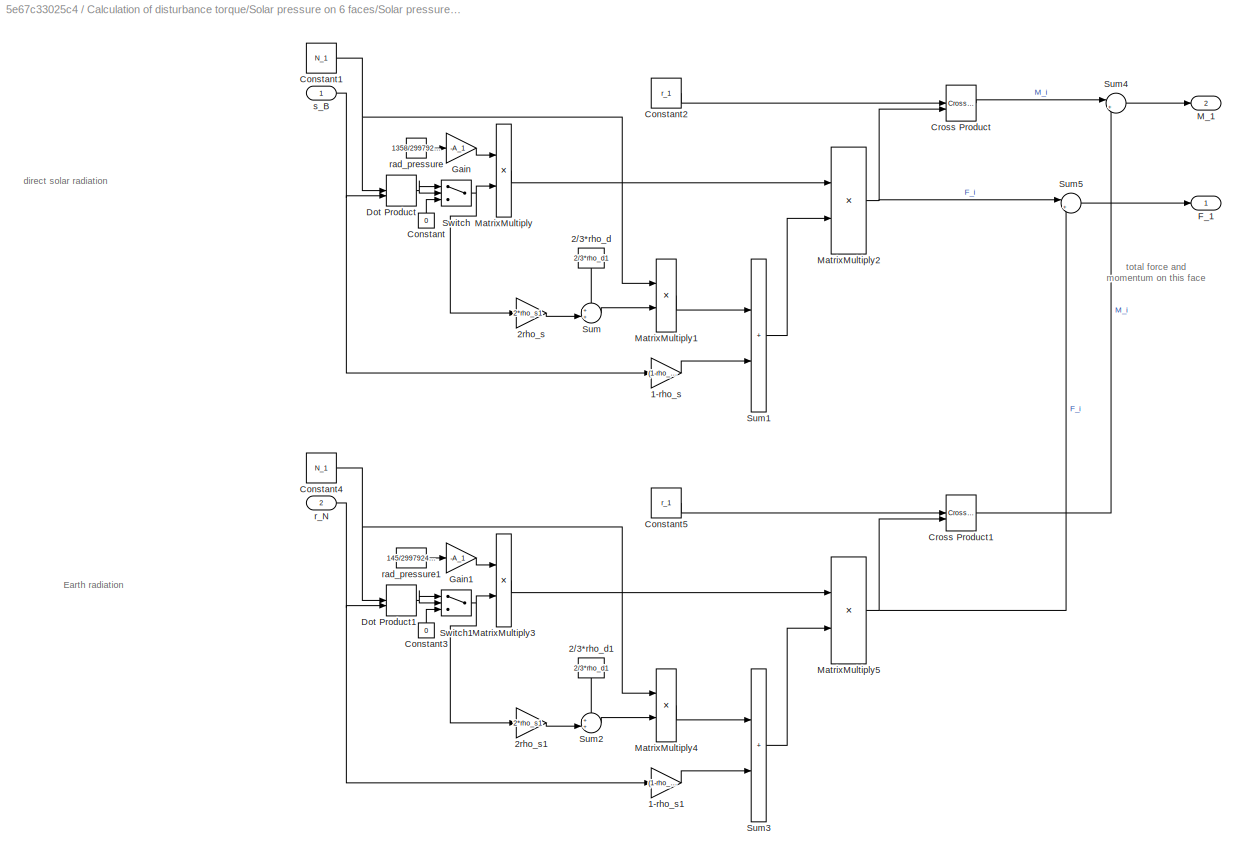
BLOCK [SubSystem] Calculation of disturbance torque/Solar pressure on 6 faces/Solar pressure on 6 faces1/solar pressure force and torque 1
BLOCK [Gain] Calculation of disturbance torque/Solar pressure on 6 faces/Solar pressure on 6 faces1/solar pressure force and torque 1/1-rho_s
  Gain = (1-rho_s1)
BLOCK [Gain] Calculation of disturbance torque/Solar pressure on 6 faces/Solar pressure on 6 faces1/solar pressure force and torque 1/1-rho_s1
  Gain = (1-rho_s1)
BLOCK [Constant] Calculation of disturbance torque/Solar pressure on 6 faces/Solar pressure on 6 faces1/solar pressure force and torque 1/2//3*rho_d
  NameLocation = left
  Value = 2/3*rho_d1
BLOCK [Constant] Calculation of disturbance torque/Solar pressure on 6 faces/Solar pressure on 6 faces1/solar pressure force and torque 1/2//3*rho_d1
  NameLocation = left
  Value = 2/3*rho_d1
BLOCK [Gain] Calculation of disturbance torque/Solar pressure on 6 faces/Solar pressure on 6 faces1/solar pressure force and torque 1/2rho_s
  Gain = 2*rho_s1
BLOCK [Gain] Calculation of disturbance torque/Solar pressure on 6 faces/Solar pressure on 6 faces1/solar pressure force and torque 1/2rho_s1
  Gain = 2*rho_s1
BLOCK [Constant] Calculation of disturbance torque/Solar pressure on 6 faces/Solar pressure on 6 faces1/solar pressure force and torque 1/Constant
  NameLocation = right
  Value = 0
BLOCK [Constant] Calculation of disturbance torque/Solar pressure on 6 faces/Solar pressure on 6 faces1/solar pressure force and torque 1/Constant1
  Value = N_1
BLOCK [Constant] Calculation of disturbance torque/Solar pressure on 6 faces/Solar pressure on 6 faces1/solar pressure force and torque 1/Constant2
  Value = r_1
BLOCK [Constant] Calculation of disturbance torque/Solar pressure on 6 faces/Solar pressure on 6 faces1/solar pressure force and torque 1/Constant3
  NameLocation = right
  Value = 0
BLOCK [Constant] Calculation of disturbance torque/Solar pressure on 6 faces/Solar pressure on 6 faces1/solar pressure force and torque 1/Constant4
  Value = N_1
BLOCK [Constant] Calculation of disturbance torque/Solar pressure on 6 faces/Solar pressure on 6 faces1/solar pressure force and torque 1/Constant5
  Value = r_1
BLOCK [Reference] Calculation of disturbance torque/Solar pressure on 6 faces/Solar pressure on 6 faces1/solar pressure force and torque 1/Cross Product  REF=matrix_library/Cross Product
  LibrarySourceBlock = simulink/Matrix\nOperations/Cross Product
  SourceBlock = matrix_library/Cross Product
  SourceType = CrossProduct
BLOCK [Reference] Calculation of disturbance torque/Solar pressure on 6 faces/Solar pressure on 6 faces1/solar pressure force and torque 1/Cross Product1  REF=matrix_library/Cross Product
  LibrarySourceBlock = simulink/Matrix\nOperations/Cross Product
  SourceBlock = matrix_library/Cross Product
  SourceType = CrossProduct
BLOCK [DotProduct] Calculation of disturbance torque/Solar pressure on 6 faces/Solar pressure on 6 faces1/solar pressure force and torque 1/Dot Product
  OutDataTypeStr = Inherit: Inherit via internal rule
BLOCK [DotProduct] Calculation of disturbance torque/Solar pressure on 6 faces/Solar pressure on 6 faces1/solar pressure force and torque 1/Dot Product1
  OutDataTypeStr = Inherit: Inherit via internal rule
BLOCK [Outport] Calculation of disturbance torque/Solar pressure on 6 faces/Solar pressure on 6 faces1/solar pressure force and torque 1/F_1
BLOCK [Gain] Calculation of disturbance torque/Solar pressure on 6 faces/Solar pressure on 6 faces1/solar pressure force and torque 1/Gain
  Gain = -A_1
BLOCK [Gain] Calculation of disturbance torque/Solar pressure on 6 faces/Solar pressure on 6 faces1/solar pressure force and torque 1/Gain1
  Gain = -A_1
BLOCK [Outport] Calculation of disturbance torque/Solar pressure on 6 faces/Solar pressure on 6 faces1/solar pressure force and torque 1/M_1
  Port = 2
BLOCK [Product] Calculation of disturbance torque/Solar pressure on 6 faces/Solar pressure on 6 faces1/solar pressure force and torque 1/MatrixMultiply
BLOCK [Product] Calculation of disturbance torque/Solar pressure on 6 faces/Solar pressure on 6 faces1/solar pressure force and torque 1/MatrixMultiply1
BLOCK [Product] Calculation of disturbance torque/Solar pressure on 6 faces/Solar pressure on 6 faces1/solar pressure force and torque 1/MatrixMultiply2
BLOCK [Product] Calculation of disturbance torque/Solar pressure on 6 faces/Solar pressure on 6 faces1/solar pressure force and torque 1/MatrixMultiply3
BLOCK [Product] Calculation of disturbance torque/Solar pressure on 6 faces/Solar pressure on 6 faces1/solar pressure force and torque 1/MatrixMultiply4
BLOCK [Product] Calculation of disturbance torque/Solar pressure on 6 faces/Solar pressure on 6 faces1/solar pressure force and torque 1/MatrixMultiply5
BLOCK [Sum] Calculation of disturbance torque/Solar pressure on 6 faces/Solar pressure on 6 faces1/solar pressure force and torque 1/Sum
  Inputs = ++|
BLOCK [Sum] Calculation of disturbance torque/Solar pressure on 6 faces/Solar pressure on 6 faces1/solar pressure force and torque 1/Sum1
  IconShape = rectangular
BLOCK [Sum] Calculation of disturbance torque/Solar pressure on 6 faces/Solar pressure on 6 faces1/solar pressure force and torque 1/Sum2
  Inputs = ++|
BLOCK [Sum] Calculation of disturbance torque/Solar pressure on 6 faces/Solar pressure on 6 faces1/solar pressure force and torque 1/Sum3
  IconShape = rectangular
BLOCK [Sum] Calculation of disturbance torque/Solar pressure on 6 faces/Solar pressure on 6 faces1/solar pressure force and torque 1/Sum4
  Inputs = |++
BLOCK [Sum] Calculation of disturbance torque/Solar pressure on 6 faces/Solar pressure on 6 faces1/solar pressure force and torque 1/Sum5
  Inputs = |++
BLOCK [Switch] Calculation of disturbance torque/Solar pressure on 6 faces/Solar pressure on 6 faces1/solar pressure force and torque 1/Switch
  Criteria = u2 > Threshold
  InputSameDT = off
  SaturateOnIntegerOverflow = off
BLOCK [Switch] Calculation of disturbance torque/Solar pressure on 6 faces/Solar pressure on 6 faces1/solar pressure force and torque 1/Switch1
  Criteria = u2 > Threshold
  InputSameDT = off
  SaturateOnIntegerOverflow = off
BLOCK [Inport] Calculation of disturbance torque/Solar pressure on 6 faces/Solar pressure on 6 faces1/solar pressure force and torque 1/r_N
  Port = 2
BLOCK [Constant] Calculation of disturbance torque/Solar pressure on 6 faces/Solar pressure on 6 faces1/solar pressure force and torque 1/rad_pressure
  Value = 1358/299792458
BLOCK [Constant] Calculation of disturbance torque/Solar pressure on 6 faces/Solar pressure on 6 faces1/solar pressure force and torque 1/rad_pressure1
  Value = 145/299792458
BLOCK [Inport] Calculation of disturbance torque/Solar pressure on 6 faces/Solar pressure on 6 faces1/solar pressure force and torque 1/s_B
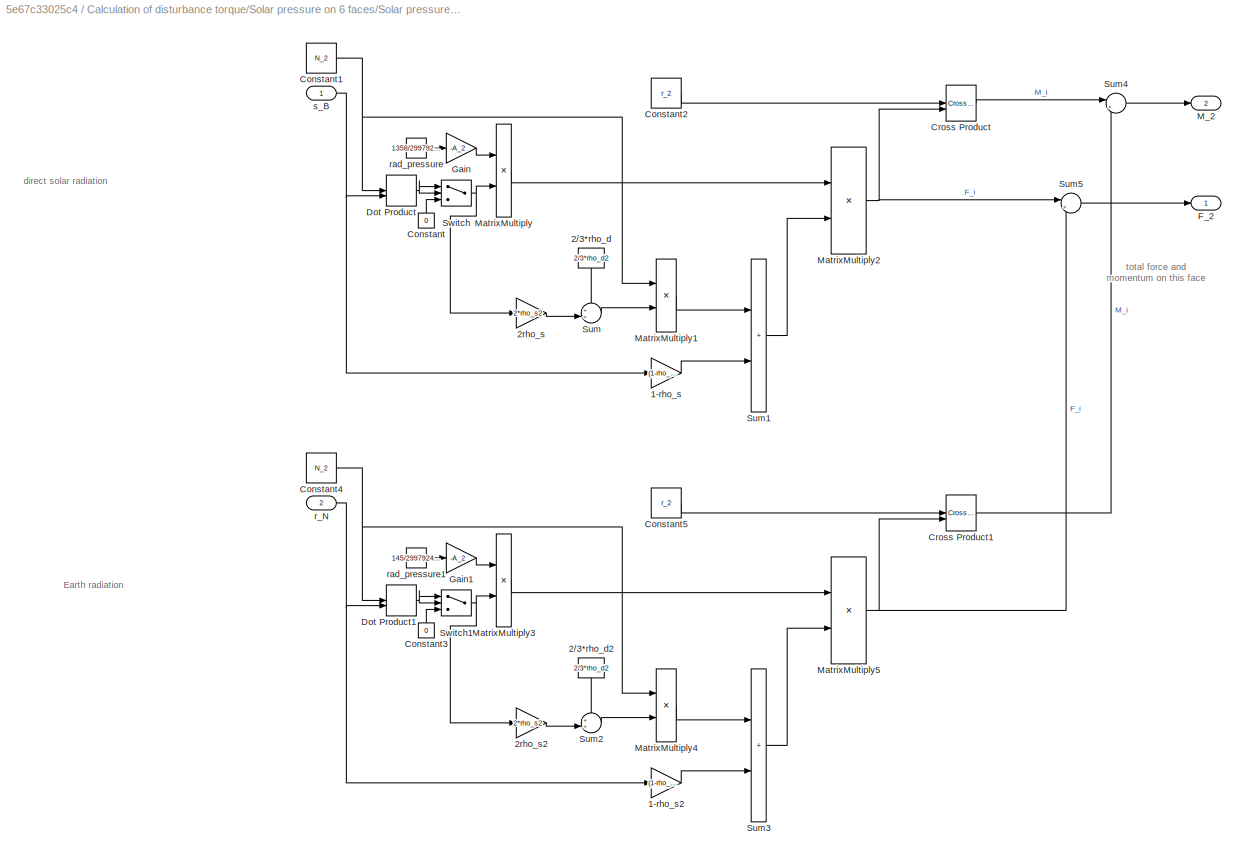
BLOCK [SubSystem] Calculation of disturbance torque/Solar pressure on 6 faces/Solar pressure on 6 faces1/solar pressure force and torque 2
BLOCK [Gain] Calculation of disturbance torque/Solar pressure on 6 faces/Solar pressure on 6 faces1/solar pressure force and torque 2/1-rho_s
  Gain = (1-rho_s2)
BLOCK [Gain] Calculation of disturbance torque/Solar pressure on 6 faces/Solar pressure on 6 faces1/solar pressure force and torque 2/1-rho_s2
  Gain = (1-rho_s2)
BLOCK [Constant] Calculation of disturbance torque/Solar pressure on 6 faces/Solar pressure on 6 faces1/solar pressure force and torque 2/2//3*rho_d
  NameLocation = left
  Value = 2/3*rho_d2
BLOCK [Constant] Calculation of disturbance torque/Solar pressure on 6 faces/Solar pressure on 6 faces1/solar pressure force and torque 2/2//3*rho_d2
  NameLocation = left
  Value = 2/3*rho_d2
BLOCK [Gain] Calculation of disturbance torque/Solar pressure on 6 faces/Solar pressure on 6 faces1/solar pressure force and torque 2/2rho_s
  Gain = 2*rho_s2
BLOCK [Gain] Calculation of disturbance torque/Solar pressure on 6 faces/Solar pressure on 6 faces1/solar pressure force and torque 2/2rho_s2
  Gain = 2*rho_s2
BLOCK [Constant] Calculation of disturbance torque/Solar pressure on 6 faces/Solar pressure on 6 faces1/solar pressure force and torque 2/Constant
  NameLocation = right
  Value = 0
BLOCK [Constant] Calculation of disturbance torque/Solar pressure on 6 faces/Solar pressure on 6 faces1/solar pressure force and torque 2/Constant1
  Value = N_2
BLOCK [Constant] Calculation of disturbance torque/Solar pressure on 6 faces/Solar pressure on 6 faces1/solar pressure force and torque 2/Constant2
  Value = r_2
BLOCK [Constant] Calculation of disturbance torque/Solar pressure on 6 faces/Solar pressure on 6 faces1/solar pressure force and torque 2/Constant3
  NameLocation = right
  Value = 0
BLOCK [Constant] Calculation of disturbance torque/Solar pressure on 6 faces/Solar pressure on 6 faces1/solar pressure force and torque 2/Constant4
  Value = N_2
BLOCK [Constant] Calculation of disturbance torque/Solar pressure on 6 faces/Solar pressure on 6 faces1/solar pressure force and torque 2/Constant5
  Value = r_2
BLOCK [Reference] Calculation of disturbance torque/Solar pressure on 6 faces/Solar pressure on 6 faces1/solar pressure force and torque 2/Cross Product  REF=matrix_library/Cross Product
  LibrarySourceBlock = simulink/Matrix\nOperations/Cross Product
  SourceBlock = matrix_library/Cross Product
  SourceType = CrossProduct
BLOCK [Reference] Calculation of disturbance torque/Solar pressure on 6 faces/Solar pressure on 6 faces1/solar pressure force and torque 2/Cross Product1  REF=matrix_library/Cross Product
  LibrarySourceBlock = simulink/Matrix\nOperations/Cross Product
  SourceBlock = matrix_library/Cross Product
  SourceType = CrossProduct
BLOCK [DotProduct] Calculation of disturbance torque/Solar pressure on 6 faces/Solar pressure on 6 faces1/solar pressure force and torque 2/Dot Product
  OutDataTypeStr = Inherit: Inherit via internal rule
BLOCK [DotProduct] Calculation of disturbance torque/Solar pressure on 6 faces/Solar pressure on 6 faces1/solar pressure force and torque 2/Dot Product1
  OutDataTypeStr = Inherit: Inherit via internal rule
BLOCK [Outport] Calculation of disturbance torque/Solar pressure on 6 faces/Solar pressure on 6 faces1/solar pressure force and torque 2/F_2
BLOCK [Gain] Calculation of disturbance torque/Solar pressure on 6 faces/Solar pressure on 6 faces1/solar pressure force and torque 2/Gain
  Gain = -A_2
BLOCK [Gain] Calculation of disturbance torque/Solar pressure on 6 faces/Solar pressure on 6 faces1/solar pressure force and torque 2/Gain1
  Gain = -A_2
BLOCK [Outport] Calculation of disturbance torque/Solar pressure on 6 faces/Solar pressure on 6 faces1/solar pressure force and torque 2/M_2
  Port = 2
BLOCK [Product] Calculation of disturbance torque/Solar pressure on 6 faces/Solar pressure on 6 faces1/solar pressure force and torque 2/MatrixMultiply
BLOCK [Product] Calculation of disturbance torque/Solar pressure on 6 faces/Solar pressure on 6 faces1/solar pressure force and torque 2/MatrixMultiply1
BLOCK [Product] Calculation of disturbance torque/Solar pressure on 6 faces/Solar pressure on 6 faces1/solar pressure force and torque 2/MatrixMultiply2
BLOCK [Product] Calculation of disturbance torque/Solar pressure on 6 faces/Solar pressure on 6 faces1/solar pressure force and torque 2/MatrixMultiply3
BLOCK [Product] Calculation of disturbance torque/Solar pressure on 6 faces/Solar pressure on 6 faces1/solar pressure force and torque 2/MatrixMultiply4
BLOCK [Product] Calculation of disturbance torque/Solar pressure on 6 faces/Solar pressure on 6 faces1/solar pressure force and torque 2/MatrixMultiply5
BLOCK [Sum] Calculation of disturbance torque/Solar pressure on 6 faces/Solar pressure on 6 faces1/solar pressure force and torque 2/Sum
  Inputs = ++|
BLOCK [Sum] Calculation of disturbance torque/Solar pressure on 6 faces/Solar pressure on 6 faces1/solar pressure force and torque 2/Sum1
  IconShape = rectangular
BLOCK [Sum] Calculation of disturbance torque/Solar pressure on 6 faces/Solar pressure on 6 faces1/solar pressure force and torque 2/Sum2
  Inputs = ++|
BLOCK [Sum] Calculation of disturbance torque/Solar pressure on 6 faces/Solar pressure on 6 faces1/solar pressure force and torque 2/Sum3
  IconShape = rectangular
BLOCK [Sum] Calculation of disturbance torque/Solar pressure on 6 faces/Solar pressure on 6 faces1/solar pressure force and torque 2/Sum4
  Inputs = |++
BLOCK [Sum] Calculation of disturbance torque/Solar pressure on 6 faces/Solar pressure on 6 faces1/solar pressure force and torque 2/Sum5
  Inputs = |++
BLOCK [Switch] Calculation of disturbance torque/Solar pressure on 6 faces/Solar pressure on 6 faces1/solar pressure force and torque 2/Switch
  Criteria = u2 > Threshold
  InputSameDT = off
  SaturateOnIntegerOverflow = off
BLOCK [Switch] Calculation of disturbance torque/Solar pressure on 6 faces/Solar pressure on 6 faces1/solar pressure force and torque 2/Switch1
  Criteria = u2 > Threshold
  InputSameDT = off
  SaturateOnIntegerOverflow = off
BLOCK [Inport] Calculation of disturbance torque/Solar pressure on 6 faces/Solar pressure on 6 faces1/solar pressure force and torque 2/r_N
  Port = 2
BLOCK [Constant] Calculation of disturbance torque/Solar pressure on 6 faces/Solar pressure on 6 faces1/solar pressure force and torque 2/rad_pressure
  Value = 1358/299792458
BLOCK [Constant] Calculation of disturbance torque/Solar pressure on 6 faces/Solar pressure on 6 faces1/solar pressure force and torque 2/rad_pressure1
  Value = 145/299792458
BLOCK [Inport] Calculation of disturbance torque/Solar pressure on 6 faces/Solar pressure on 6 faces1/solar pressure force and torque 2/s_B
BLOCK [SubSystem] Calculation of disturbance torque/Solar pressure on 6 faces/Solar pressure on 6 faces1/solar pressure force and torque 3
BLOCK [Gain] Calculation of disturbance torque/Solar pressure on 6 faces/Solar pressure on 6 faces1/solar pressure force and torque 3/1-rho_s
  Gain = (1-rho_s3)
BLOCK [Gain] Calculation of disturbance torque/Solar pressure on 6 faces/Solar pressure on 6 faces1/solar pressure force and torque 3/1-rho_s3
  Gain = (1-rho_s3)
BLOCK [Constant] Calculation of disturbance torque/Solar pressure on 6 faces/Solar pressure on 6 faces1/solar pressure force and torque 3/2//3*rho_d
  NameLocation = left
  Value = 2/3*rho_d3
BLOCK [Constant] Calculation of disturbance torque/Solar pressure on 6 faces/Solar pressure on 6 faces1/solar pressure force and torque 3/2//3*rho_d3
  NameLocation = left
  Value = 2/3*rho_d3
BLOCK [Gain] Calculation of disturbance torque/Solar pressure on 6 faces/Solar pressure on 6 faces1/solar pressure force and torque 3/2rho_s
  Gain = 2*rho_s3
BLOCK [Gain] Calculation of disturbance torque/Solar pressure on 6 faces/Solar pressure on 6 faces1/solar pressure force and torque 3/2rho_s3
  Gain = 2*rho_s3
BLOCK [Constant] Calculation of disturbance torque/Solar pressure on 6 faces/Solar pressure on 6 faces1/solar pressure force and torque 3/Constant
  NameLocation = right
  Value = 0
BLOCK [Constant] Calculation of disturbance torque/Solar pressure on 6 faces/Solar pressure on 6 faces1/solar pressure force and torque 3/Constant1
  Value = N_3
BLOCK [Constant] Calculation of disturbance torque/Solar pressure on 6 faces/Solar pressure on 6 faces1/solar pressure force and torque 3/Constant2
  Value = r_3
BLOCK [Constant] Calculation of disturbance torque/Solar pressure on 6 faces/Solar pressure on 6 faces1/solar pressure force and torque 3/Constant3
  NameLocation = right
  Value = 0
BLOCK [Constant] Calculation of disturbance torque/Solar pressure on 6 faces/Solar pressure on 6 faces1/solar pressure force and torque 3/Constant4
  Value = N_3
BLOCK [Constant] Calculation of disturbance torque/Solar pressure on 6 faces/Solar pressure on 6 faces1/solar pressure force and torque 3/Constant5
  Value = r_3
BLOCK [Reference] Calculation of disturbance torque/Solar pressure on 6 faces/Solar pressure on 6 faces1/solar pressure force and torque 3/Cross Product  REF=matrix_library/Cross Product
  LibrarySourceBlock = simulink/Matrix\nOperations/Cross Product
  SourceBlock = matrix_library/Cross Product
  SourceType = CrossProduct
BLOCK [Reference] Calculation of disturbance torque/Solar pressure on 6 faces/Solar pressure on 6 faces1/solar pressure force and torque 3/Cross Product1  REF=matrix_library/Cross Product
  LibrarySourceBlock = simulink/Matrix\nOperations/Cross Product
  SourceBlock = matrix_library/Cross Product
  SourceType = CrossProduct
BLOCK [DotProduct] Calculation of disturbance torque/Solar pressure on 6 faces/Solar pressure on 6 faces1/solar pressure force and torque 3/Dot Product
  OutDataTypeStr = Inherit: Inherit via internal rule
BLOCK [DotProduct] Calculation of disturbance torque/Solar pressure on 6 faces/Solar pressure on 6 faces1/solar pressure force and torque 3/Dot Product1
  OutDataTypeStr = Inherit: Inherit via internal rule
BLOCK [Outport] Calculation of disturbance torque/Solar pressure on 6 faces/Solar pressure on 6 faces1/solar pressure force and torque 3/F_3
BLOCK [Gain] Calculation of disturbance torque/Solar pressure on 6 faces/Solar pressure on 6 faces1/solar pressure force and torque 3/Gain
  Gain = -A_3
BLOCK [Gain] Calculation of disturbance torque/Solar pressure on 6 faces/Solar pressure on 6 faces1/solar pressure force and torque 3/Gain1
  Gain = -A_3
BLOCK [Outport] Calculation of disturbance torque/Solar pressure on 6 faces/Solar pressure on 6 faces1/solar pressure force and torque 3/M_3
  Port = 2
BLOCK [Product] Calculation of disturbance torque/Solar pressure on 6 faces/Solar pressure on 6 faces1/solar pressure force and torque 3/MatrixMultiply
BLOCK [Product] Calculation of disturbance torque/Solar pressure on 6 faces/Solar pressure on 6 faces1/solar pressure force and torque 3/MatrixMultiply1
BLOCK [Product] Calculation of disturbance torque/Solar pressure on 6 faces/Solar pressure on 6 faces1/solar pressure force and torque 3/MatrixMultiply2
BLOCK [Product] Calculation of disturbance torque/Solar pressure on 6 faces/Solar pressure on 6 faces1/solar pressure force and torque 3/MatrixMultiply3
BLOCK [Product] Calculation of disturbance torque/Solar pressure on 6 faces/Solar pressure on 6 faces1/solar pressure force and torque 3/MatrixMultiply4
BLOCK [Product] Calculation of disturbance torque/Solar pressure on 6 faces/Solar pressure on 6 faces1/solar pressure force and torque 3/MatrixMultiply5
BLOCK [Sum] Calculation of disturbance torque/Solar pressure on 6 faces/Solar pressure on 6 faces1/solar pressure force and torque 3/Sum
  Inputs = ++|
BLOCK [Sum] Calculation of disturbance torque/Solar pressure on 6 faces/Solar pressure on 6 faces1/solar pressure force and torque 3/Sum1
  IconShape = rectangular
BLOCK [Sum] Calculation of disturbance torque/Solar pressure on 6 faces/Solar pressure on 6 faces1/solar pressure force and torque 3/Sum2
  Inputs = ++|
BLOCK [Sum] Calculation of disturbance torque/Solar pressure on 6 faces/Solar pressure on 6 faces1/solar pressure force and torque 3/Sum3
  IconShape = rectangular
BLOCK [Sum] Calculation of disturbance torque/Solar pressure on 6 faces/Solar pressure on 6 faces1/solar pressure force and torque 3/Sum4
  Inputs = |++
BLOCK [Sum] Calculation of disturbance torque/Solar pressure on 6 faces/Solar pressure on 6 faces1/solar pressure force and torque 3/Sum5
  Inputs = |++
BLOCK [Switch] Calculation of disturbance torque/Solar pressure on 6 faces/Solar pressure on 6 faces1/solar pressure force and torque 3/Switch
  Criteria = u2 > Threshold
  InputSameDT = off
  SaturateOnIntegerOverflow = off
BLOCK [Switch] Calculation of disturbance torque/Solar pressure on 6 faces/Solar pressure on 6 faces1/solar pressure force and torque 3/Switch1
  Criteria = u2 > Threshold
  InputSameDT = off
  SaturateOnIntegerOverflow = off
BLOCK [Inport] Calculation of disturbance torque/Solar pressure on 6 faces/Solar pressure on 6 faces1/solar pressure force and torque 3/r_N
  Port = 2
BLOCK [Constant] Calculation of disturbance torque/Solar pressure on 6 faces/Solar pressure on 6 faces1/solar pressure force and torque 3/rad_pressure
  Value = 1358/299792458
BLOCK [Constant] Calculation of disturbance torque/Solar pressure on 6 faces/Solar pressure on 6 faces1/solar pressure force and torque 3/rad_pressure1
  Value = 145/299792458
BLOCK [Inport] Calculation of disturbance torque/Solar pressure on 6 faces/Solar pressure on 6 faces1/solar pressure force and torque 3/s_B
BLOCK [SubSystem] Calculation of disturbance torque/Solar pressure on 6 faces/Solar pressure on 6 faces1/solar pressure force and torque 4
BLOCK [Gain] Calculation of disturbance torque/Solar pressure on 6 faces/Solar pressure on 6 faces1/solar pressure force and torque 4/1-rho_s
  Gain = (1-rho_s4)
BLOCK [Gain] Calculation of disturbance torque/Solar pressure on 6 faces/Solar pressure on 6 faces1/solar pressure force and torque 4/1-rho_s4
  Gain = (1-rho_s4)
BLOCK [Constant] Calculation of disturbance torque/Solar pressure on 6 faces/Solar pressure on 6 faces1/solar pressure force and torque 4/2//3*rho_d
  NameLocation = left
  Value = 2/3*rho_d4
BLOCK [Constant] Calculation of disturbance torque/Solar pressure on 6 faces/Solar pressure on 6 faces1/solar pressure force and torque 4/2//3*rho_d4
  NameLocation = left
  Value = 2/3*rho_d4
BLOCK [Gain] Calculation of disturbance torque/Solar pressure on 6 faces/Solar pressure on 6 faces1/solar pressure force and torque 4/2rho_s
  Gain = 2*rho_s4
BLOCK [Gain] Calculation of disturbance torque/Solar pressure on 6 faces/Solar pressure on 6 faces1/solar pressure force and torque 4/2rho_s4
  Gain = 2*rho_s4
BLOCK [Constant] Calculation of disturbance torque/Solar pressure on 6 faces/Solar pressure on 6 faces1/solar pressure force and torque 4/Constant
  NameLocation = right
  Value = 0
BLOCK [Constant] Calculation of disturbance torque/Solar pressure on 6 faces/Solar pressure on 6 faces1/solar pressure force and torque 4/Constant1
  Value = N_4
BLOCK [Constant] Calculation of disturbance torque/Solar pressure on 6 faces/Solar pressure on 6 faces1/solar pressure force and torque 4/Constant2
  Value = r_4
BLOCK [Constant] Calculation of disturbance torque/Solar pressure on 6 faces/Solar pressure on 6 faces1/solar pressure force and torque 4/Constant3
  NameLocation = right
  Value = 0
BLOCK [Constant] Calculation of disturbance torque/Solar pressure on 6 faces/Solar pressure on 6 faces1/solar pressure force and torque 4/Constant4
  Value = N_4
BLOCK [Constant] Calculation of disturbance torque/Solar pressure on 6 faces/Solar pressure on 6 faces1/solar pressure force and torque 4/Constant5
  Value = r_4
BLOCK [Reference] Calculation of disturbance torque/Solar pressure on 6 faces/Solar pressure on 6 faces1/solar pressure force and torque 4/Cross Product  REF=matrix_library/Cross Product
  LibrarySourceBlock = simulink/Matrix\nOperations/Cross Product
  SourceBlock = matrix_library/Cross Product
  SourceType = CrossProduct
BLOCK [Reference] Calculation of disturbance torque/Solar pressure on 6 faces/Solar pressure on 6 faces1/solar pressure force and torque 4/Cross Product1  REF=matrix_library/Cross Product
  LibrarySourceBlock = simulink/Matrix\nOperations/Cross Product
  SourceBlock = matrix_library/Cross Product
  SourceType = CrossProduct
BLOCK [DotProduct] Calculation of disturbance torque/Solar pressure on 6 faces/Solar pressure on 6 faces1/solar pressure force and torque 4/Dot Product
  OutDataTypeStr = Inherit: Inherit via internal rule
BLOCK [DotProduct] Calculation of disturbance torque/Solar pressure on 6 faces/Solar pressure on 6 faces1/solar pressure force and torque 4/Dot Product1
  OutDataTypeStr = Inherit: Inherit via internal rule
BLOCK [Outport] Calculation of disturbance torque/Solar pressure on 6 faces/Solar pressure on 6 faces1/solar pressure force and torque 4/F_4
BLOCK [Gain] Calculation of disturbance torque/Solar pressure on 6 faces/Solar pressure on 6 faces1/solar pressure force and torque 4/Gain
  Gain = -A_4
BLOCK [Gain] Calculation of disturbance torque/Solar pressure on 6 faces/Solar pressure on 6 faces1/solar pressure force and torque 4/Gain1
  Gain = -A_4
BLOCK [Outport] Calculation of disturbance torque/Solar pressure on 6 faces/Solar pressure on 6 faces1/solar pressure force and torque 4/M_4
  Port = 2
BLOCK [Product] Calculation of disturbance torque/Solar pressure on 6 faces/Solar pressure on 6 faces1/solar pressure force and torque 4/MatrixMultiply
BLOCK [Product] Calculation of disturbance torque/Solar pressure on 6 faces/Solar pressure on 6 faces1/solar pressure force and torque 4/MatrixMultiply1
BLOCK [Product] Calculation of disturbance torque/Solar pressure on 6 faces/Solar pressure on 6 faces1/solar pressure force and torque 4/MatrixMultiply2
BLOCK [Product] Calculation of disturbance torque/Solar pressure on 6 faces/Solar pressure on 6 faces1/solar pressure force and torque 4/MatrixMultiply3
BLOCK [Product] Calculation of disturbance torque/Solar pressure on 6 faces/Solar pressure on 6 faces1/solar pressure force and torque 4/MatrixMultiply4
BLOCK [Product] Calculation of disturbance torque/Solar pressure on 6 faces/Solar pressure on 6 faces1/solar pressure force and torque 4/MatrixMultiply5
BLOCK [Sum] Calculation of disturbance torque/Solar pressure on 6 faces/Solar pressure on 6 faces1/solar pressure force and torque 4/Sum
  Inputs = ++|
BLOCK [Sum] Calculation of disturbance torque/Solar pressure on 6 faces/Solar pressure on 6 faces1/solar pressure force and torque 4/Sum1
  IconShape = rectangular
BLOCK [Sum] Calculation of disturbance torque/Solar pressure on 6 faces/Solar pressure on 6 faces1/solar pressure force and torque 4/Sum2
  Inputs = ++|
BLOCK [Sum] Calculation of disturbance torque/Solar pressure on 6 faces/Solar pressure on 6 faces1/solar pressure force and torque 4/Sum3
  IconShape = rectangular
BLOCK [Sum] Calculation of disturbance torque/Solar pressure on 6 faces/Solar pressure on 6 faces1/solar pressure force and torque 4/Sum4
  Inputs = |++
BLOCK [Sum] Calculation of disturbance torque/Solar pressure on 6 faces/Solar pressure on 6 faces1/solar pressure force and torque 4/Sum5
  Inputs = |++
BLOCK [Switch] Calculation of disturbance torque/Solar pressure on 6 faces/Solar pressure on 6 faces1/solar pressure force and torque 4/Switch
  Criteria = u2 > Threshold
  InputSameDT = off
  SaturateOnIntegerOverflow = off
BLOCK [Switch] Calculation of disturbance torque/Solar pressure on 6 faces/Solar pressure on 6 faces1/solar pressure force and torque 4/Switch1
  Criteria = u2 > Threshold
  InputSameDT = off
  SaturateOnIntegerOverflow = off
BLOCK [Inport] Calculation of disturbance torque/Solar pressure on 6 faces/Solar pressure on 6 faces1/solar pressure force and torque 4/r_N
  Port = 2
BLOCK [Constant] Calculation of disturbance torque/Solar pressure on 6 faces/Solar pressure on 6 faces1/solar pressure force and torque 4/rad_pressure
  Value = 1358/299792458
BLOCK [Constant] Calculation of disturbance torque/Solar pressure on 6 faces/Solar pressure on 6 faces1/solar pressure force and torque 4/rad_pressure1
  Value = 145/299792458
BLOCK [Inport] Calculation of disturbance torque/Solar pressure on 6 faces/Solar pressure on 6 faces1/solar pressure force and torque 4/s_B
BLOCK [SubSystem] Calculation of disturbance torque/Solar pressure on 6 faces/Solar pressure on 6 faces1/solar pressure force and torque 5
BLOCK [Gain] Calculation of disturbance torque/Solar pressure on 6 faces/Solar pressure on 6 faces1/solar pressure force and torque 5/1-rho_s
  Gain = (1-rho_s5)
BLOCK [Gain] Calculation of disturbance torque/Solar pressure on 6 faces/Solar pressure on 6 faces1/solar pressure force and torque 5/1-rho_s5
  Gain = (1-rho_s5)
BLOCK [Constant] Calculation of disturbance torque/Solar pressure on 6 faces/Solar pressure on 6 faces1/solar pressure force and torque 5/2//3*rho_d
  NameLocation = left
  Value = 2/3*rho_d5
BLOCK [Constant] Calculation of disturbance torque/Solar pressure on 6 faces/Solar pressure on 6 faces1/solar pressure force and torque 5/2//3*rho_d5
  NameLocation = left
  Value = 2/3*rho_d5
BLOCK [Gain] Calculation of disturbance torque/Solar pressure on 6 faces/Solar pressure on 6 faces1/solar pressure force and torque 5/2rho_s
  Gain = 2*rho_s5
BLOCK [Gain] Calculation of disturbance torque/Solar pressure on 6 faces/Solar pressure on 6 faces1/solar pressure force and torque 5/2rho_s5
  Gain = 2*rho_s5
BLOCK [Constant] Calculation of disturbance torque/Solar pressure on 6 faces/Solar pressure on 6 faces1/solar pressure force and torque 5/Constant
  NameLocation = right
  Value = 0
BLOCK [Constant] Calculation of disturbance torque/Solar pressure on 6 faces/Solar pressure on 6 faces1/solar pressure force and torque 5/Constant1
  Value = N_5
BLOCK [Constant] Calculation of disturbance torque/Solar pressure on 6 faces/Solar pressure on 6 faces1/solar pressure force and torque 5/Constant2
  Value = r_5
BLOCK [Constant] Calculation of disturbance torque/Solar pressure on 6 faces/Solar pressure on 6 faces1/solar pressure force and torque 5/Constant3
  NameLocation = right
  Value = 0
BLOCK [Constant] Calculation of disturbance torque/Solar pressure on 6 faces/Solar pressure on 6 faces1/solar pressure force and torque 5/Constant4
  Value = N_5
BLOCK [Constant] Calculation of disturbance torque/Solar pressure on 6 faces/Solar pressure on 6 faces1/solar pressure force and torque 5/Constant5
  Value = r_5
BLOCK [Reference] Calculation of disturbance torque/Solar pressure on 6 faces/Solar pressure on 6 faces1/solar pressure force and torque 5/Cross Product  REF=matrix_library/Cross Product
  LibrarySourceBlock = simulink/Matrix\nOperations/Cross Product
  SourceBlock = matrix_library/Cross Product
  SourceType = CrossProduct
BLOCK [Reference] Calculation of disturbance torque/Solar pressure on 6 faces/Solar pressure on 6 faces1/solar pressure force and torque 5/Cross Product1  REF=matrix_library/Cross Product
  LibrarySourceBlock = simulink/Matrix\nOperations/Cross Product
  SourceBlock = matrix_library/Cross Product
  SourceType = CrossProduct
BLOCK [DotProduct] Calculation of disturbance torque/Solar pressure on 6 faces/Solar pressure on 6 faces1/solar pressure force and torque 5/Dot Product
  OutDataTypeStr = Inherit: Inherit via internal rule
BLOCK [DotProduct] Calculation of disturbance torque/Solar pressure on 6 faces/Solar pressure on 6 faces1/solar pressure force and torque 5/Dot Product1
  OutDataTypeStr = Inherit: Inherit via internal rule
BLOCK [Outport] Calculation of disturbance torque/Solar pressure on 6 faces/Solar pressure on 6 faces1/solar pressure force and torque 5/F_5
BLOCK [Gain] Calculation of disturbance torque/Solar pressure on 6 faces/Solar pressure on 6 faces1/solar pressure force and torque 5/Gain
  Gain = -A_5
BLOCK [Gain] Calculation of disturbance torque/Solar pressure on 6 faces/Solar pressure on 6 faces1/solar pressure force and torque 5/Gain1
  Gain = -A_5
BLOCK [Outport] Calculation of disturbance torque/Solar pressure on 6 faces/Solar pressure on 6 faces1/solar pressure force and torque 5/M_5
  Port = 2
BLOCK [Product] Calculation of disturbance torque/Solar pressure on 6 faces/Solar pressure on 6 faces1/solar pressure force and torque 5/MatrixMultiply
BLOCK [Product] Calculation of disturbance torque/Solar pressure on 6 faces/Solar pressure on 6 faces1/solar pressure force and torque 5/MatrixMultiply1
BLOCK [Product] Calculation of disturbance torque/Solar pressure on 6 faces/Solar pressure on 6 faces1/solar pressure force and torque 5/MatrixMultiply2
BLOCK [Product] Calculation of disturbance torque/Solar pressure on 6 faces/Solar pressure on 6 faces1/solar pressure force and torque 5/MatrixMultiply3
BLOCK [Product] Calculation of disturbance torque/Solar pressure on 6 faces/Solar pressure on 6 faces1/solar pressure force and torque 5/MatrixMultiply4
BLOCK [Product] Calculation of disturbance torque/Solar pressure on 6 faces/Solar pressure on 6 faces1/solar pressure force and torque 5/MatrixMultiply5
BLOCK [Sum] Calculation of disturbance torque/Solar pressure on 6 faces/Solar pressure on 6 faces1/solar pressure force and torque 5/Sum
  Inputs = ++|
BLOCK [Sum] Calculation of disturbance torque/Solar pressure on 6 faces/Solar pressure on 6 faces1/solar pressure force and torque 5/Sum1
  IconShape = rectangular
BLOCK [Sum] Calculation of disturbance torque/Solar pressure on 6 faces/Solar pressure on 6 faces1/solar pressure force and torque 5/Sum2
  Inputs = ++|
BLOCK [Sum] Calculation of disturbance torque/Solar pressure on 6 faces/Solar pressure on 6 faces1/solar pressure force and torque 5/Sum3
  IconShape = rectangular
BLOCK [Sum] Calculation of disturbance torque/Solar pressure on 6 faces/Solar pressure on 6 faces1/solar pressure force and torque 5/Sum4
  Inputs = |++
BLOCK [Sum] Calculation of disturbance torque/Solar pressure on 6 faces/Solar pressure on 6 faces1/solar pressure force and torque 5/Sum5
  Inputs = |++
BLOCK [Switch] Calculation of disturbance torque/Solar pressure on 6 faces/Solar pressure on 6 faces1/solar pressure force and torque 5/Switch
  Criteria = u2 > Threshold
  InputSameDT = off
  SaturateOnIntegerOverflow = off
BLOCK [Switch] Calculation of disturbance torque/Solar pressure on 6 faces/Solar pressure on 6 faces1/solar pressure force and torque 5/Switch1
  Criteria = u2 > Threshold
  InputSameDT = off
  SaturateOnIntegerOverflow = off
BLOCK [Inport] Calculation of disturbance torque/Solar pressure on 6 faces/Solar pressure on 6 faces1/solar pressure force and torque 5/r_N
  Port = 2
BLOCK [Constant] Calculation of disturbance torque/Solar pressure on 6 faces/Solar pressure on 6 faces1/solar pressure force and torque 5/rad_pressure
  Value = 1358/299792458
BLOCK [Constant] Calculation of disturbance torque/Solar pressure on 6 faces/Solar pressure on 6 faces1/solar pressure force and torque 5/rad_pressure1
  Value = 145/299792458
BLOCK [Inport] Calculation of disturbance torque/Solar pressure on 6 faces/Solar pressure on 6 faces1/solar pressure force and torque 5/s_B
BLOCK [SubSystem] Calculation of disturbance torque/Solar pressure on 6 faces/Solar pressure on 6 faces1/solar pressure force and torque 6
BLOCK [Gain] Calculation of disturbance torque/Solar pressure on 6 faces/Solar pressure on 6 faces1/solar pressure force and torque 6/1-rho_s
  Gain = (1-rho_s6)
BLOCK [Gain] Calculation of disturbance torque/Solar pressure on 6 faces/Solar pressure on 6 faces1/solar pressure force and torque 6/1-rho_s6
  Gain = (1-rho_s6)
BLOCK [Constant] Calculation of disturbance torque/Solar pressure on 6 faces/Solar pressure on 6 faces1/solar pressure force and torque 6/2//3*rho_d
  NameLocation = left
  Value = 2/3*rho_d6
BLOCK [Constant] Calculation of disturbance torque/Solar pressure on 6 faces/Solar pressure on 6 faces1/solar pressure force and torque 6/2//3*rho_d6
  NameLocation = left
  Value = 2/3*rho_d6
BLOCK [Gain] Calculation of disturbance torque/Solar pressure on 6 faces/Solar pressure on 6 faces1/solar pressure force and torque 6/2rho_s
  Gain = 2*rho_s6
BLOCK [Gain] Calculation of disturbance torque/Solar pressure on 6 faces/Solar pressure on 6 faces1/solar pressure force and torque 6/2rho_s6
  Gain = 2*rho_s6
BLOCK [Constant] Calculation of disturbance torque/Solar pressure on 6 faces/Solar pressure on 6 faces1/solar pressure force and torque 6/Constant
  NameLocation = right
  Value = 0
BLOCK [Constant] Calculation of disturbance torque/Solar pressure on 6 faces/Solar pressure on 6 faces1/solar pressure force and torque 6/Constant1
  Value = N_6
BLOCK [Constant] Calculation of disturbance torque/Solar pressure on 6 faces/Solar pressure on 6 faces1/solar pressure force and torque 6/Constant2
  Value = r_6
BLOCK [Constant] Calculation of disturbance torque/Solar pressure on 6 faces/Solar pressure on 6 faces1/solar pressure force and torque 6/Constant3
  NameLocation = right
  Value = 0
BLOCK [Constant] Calculation of disturbance torque/Solar pressure on 6 faces/Solar pressure on 6 faces1/solar pressure force and torque 6/Constant4
  Value = N_6
BLOCK [Constant] Calculation of disturbance torque/Solar pressure on 6 faces/Solar pressure on 6 faces1/solar pressure force and torque 6/Constant5
  Value = r_6
BLOCK [Reference] Calculation of disturbance torque/Solar pressure on 6 faces/Solar pressure on 6 faces1/solar pressure force and torque 6/Cross Product  REF=matrix_library/Cross Product
  LibrarySourceBlock = simulink/Matrix\nOperations/Cross Product
  SourceBlock = matrix_library/Cross Product
  SourceType = CrossProduct
BLOCK [Reference] Calculation of disturbance torque/Solar pressure on 6 faces/Solar pressure on 6 faces1/solar pressure force and torque 6/Cross Product1  REF=matrix_library/Cross Product
  LibrarySourceBlock = simulink/Matrix\nOperations/Cross Product
  SourceBlock = matrix_library/Cross Product
  SourceType = CrossProduct
BLOCK [DotProduct] Calculation of disturbance torque/Solar pressure on 6 faces/Solar pressure on 6 faces1/solar pressure force and torque 6/Dot Product
  OutDataTypeStr = Inherit: Inherit via internal rule
BLOCK [DotProduct] Calculation of disturbance torque/Solar pressure on 6 faces/Solar pressure on 6 faces1/solar pressure force and torque 6/Dot Product1
  OutDataTypeStr = Inherit: Inherit via internal rule
BLOCK [Outport] Calculation of disturbance torque/Solar pressure on 6 faces/Solar pressure on 6 faces1/solar pressure force and torque 6/F_6
BLOCK [Gain] Calculation of disturbance torque/Solar pressure on 6 faces/Solar pressure on 6 faces1/solar pressure force and torque 6/Gain
  Gain = -A_6
BLOCK [Gain] Calculation of disturbance torque/Solar pressure on 6 faces/Solar pressure on 6 faces1/solar pressure force and torque 6/Gain1
  Gain = -A_6
BLOCK [Outport] Calculation of disturbance torque/Solar pressure on 6 faces/Solar pressure on 6 faces1/solar pressure force and torque 6/M_6
  Port = 2
BLOCK [Product] Calculation of disturbance torque/Solar pressure on 6 faces/Solar pressure on 6 faces1/solar pressure force and torque 6/MatrixMultiply
BLOCK [Product] Calculation of disturbance torque/Solar pressure on 6 faces/Solar pressure on 6 faces1/solar pressure force and torque 6/MatrixMultiply1
BLOCK [Product] Calculation of disturbance torque/Solar pressure on 6 faces/Solar pressure on 6 faces1/solar pressure force and torque 6/MatrixMultiply2
BLOCK [Product] Calculation of disturbance torque/Solar pressure on 6 faces/Solar pressure on 6 faces1/solar pressure force and torque 6/MatrixMultiply3
BLOCK [Product] Calculation of disturbance torque/Solar pressure on 6 faces/Solar pressure on 6 faces1/solar pressure force and torque 6/MatrixMultiply4
BLOCK [Product] Calculation of disturbance torque/Solar pressure on 6 faces/Solar pressure on 6 faces1/solar pressure force and torque 6/MatrixMultiply5
BLOCK [Sum] Calculation of disturbance torque/Solar pressure on 6 faces/Solar pressure on 6 faces1/solar pressure force and torque 6/Sum
  Inputs = ++|
BLOCK [Sum] Calculation of disturbance torque/Solar pressure on 6 faces/Solar pressure on 6 faces1/solar pressure force and torque 6/Sum1
  IconShape = rectangular
BLOCK [Sum] Calculation of disturbance torque/Solar pressure on 6 faces/Solar pressure on 6 faces1/solar pressure force and torque 6/Sum2
  Inputs = ++|
BLOCK [Sum] Calculation of disturbance torque/Solar pressure on 6 faces/Solar pressure on 6 faces1/solar pressure force and torque 6/Sum3
  IconShape = rectangular
BLOCK [Sum] Calculation of disturbance torque/Solar pressure on 6 faces/Solar pressure on 6 faces1/solar pressure force and torque 6/Sum4
  Inputs = |++
BLOCK [Sum] Calculation of disturbance torque/Solar pressure on 6 faces/Solar pressure on 6 faces1/solar pressure force and torque 6/Sum5
  Inputs = |++
BLOCK [Switch] Calculation of disturbance torque/Solar pressure on 6 faces/Solar pressure on 6 faces1/solar pressure force and torque 6/Switch
  Criteria = u2 > Threshold
  InputSameDT = off
  SaturateOnIntegerOverflow = off
BLOCK [Switch] Calculation of disturbance torque/Solar pressure on 6 faces/Solar pressure on 6 faces1/solar pressure force and torque 6/Switch1
  Criteria = u2 > Threshold
  InputSameDT = off
  SaturateOnIntegerOverflow = off
BLOCK [Inport] Calculation of disturbance torque/Solar pressure on 6 faces/Solar pressure on 6 faces1/solar pressure force and torque 6/r_N
  Port = 2
BLOCK [Constant] Calculation of disturbance torque/Solar pressure on 6 faces/Solar pressure on 6 faces1/solar pressure force and torque 6/rad_pressure
  Value = 1358/299792458
BLOCK [Constant] Calculation of disturbance torque/Solar pressure on 6 faces/Solar pressure on 6 faces1/solar pressure force and torque 6/rad_pressure1
  Value = 145/299792458
BLOCK [Inport] Calculation of disturbance torque/Solar pressure on 6 faces/Solar pressure on 6 faces1/solar pressure force and torque 6/s_B
BLOCK [Sum] Calculation of disturbance torque/Solar pressure on 6 faces/Sum1
  Inputs = |+-
BLOCK [Inport] Calculation of disturbance torque/Solar pressure on 6 faces/r_N 
  Port = 2
BLOCK [Sum] Calculation of disturbance torque/Sum
  Inputs = |+++
BLOCK [Terminator] Calculation of disturbance torque/Terminator
BLOCK [ToWorkspace] Calculation of disturbance torque/To Workspace1
  FixptAsFi = on
  MaxDataPoints = inf
  SampleTime = -1
  VariableName = M_b
BLOCK [ToWorkspace] Calculation of disturbance torque/To Workspace2
  FixptAsFi = on
  MaxDataPoints = inf
  SampleTime = -1
  VariableName = M_dist
BLOCK [ToWorkspace] Calculation of disturbance torque/To Workspace3
  FixptAsFi = on
  MaxDataPoints = inf
  SampleTime = -1
  VariableName = M_GG
BLOCK [ToWorkspace] Calculation of disturbance torque/To Workspace6
  FixptAsFi = on
  MaxDataPoints = inf
  SampleTime = -1
  VariableName = bn
BLOCK [ToWorkspace] Calculation of disturbance torque/To Workspace8
  FixptAsFi = on
  MaxDataPoints = inf
  SampleTime = -1
  VariableName = M_SRP
BLOCK [Constant] Calculation of disturbance torque/j_b
  Value = j_b
BLOCK [Clock] Clock
BLOCK [Constant] Constant1
  Commented = on
  Value = alpha
BLOCK [SubSystem] Create matrix to statistical method
  Commented = on
BLOCK [Concatenate] Create matrix to statistical method/Matrix Concatenate1
  ConcatenateDimension = 2
  Mode = Multidimensional array
BLOCK [Concatenate] Create matrix to statistical method/Matrix Concatenate2
  ConcatenateDimension = 2
  Mode = Multidimensional array
BLOCK [SubSystem] Create matrix to statistical method/Normalize Vector1
BLOCK [Product] Create matrix to statistical method/Normalize Vector1/Divide
  Inputs = */
BLOCK [SubSystem] Create matrix to statistical method/Normalize Vector1/Normalize Vector
  AncestorBlock = LibrarySAD5/Normalize Vector1
BLOCK [DotProduct] Create matrix to statistical method/Normalize Vector1/Normalize Vector/Dot Product
  OutDataTypeStr = Inherit: Inherit via internal rule
BLOCK [Outport] Create matrix to statistical method/Normalize Vector1/Normalize Vector/Norm
BLOCK [Sqrt] Create matrix to statistical method/Normalize Vector1/Normalize Vector/Sqrt
BLOCK [Inport] Create matrix to statistical method/Normalize Vector1/Normalize Vector/Vector
BLOCK [Inport] Create matrix to statistical method/Normalize Vector1/Vector
BLOCK [Outport] Create matrix to statistical method/Normalize Vector1/Versor
BLOCK [SubSystem] Create matrix to statistical method/Normalize Vector2
BLOCK [Product] Create matrix to statistical method/Normalize Vector2/Divide
  Inputs = */
BLOCK [SubSystem] Create matrix to statistical method/Normalize Vector2/Normalize Vector
  AncestorBlock = LibrarySAD5/Normalize Vector1
BLOCK [DotProduct] Create matrix to statistical method/Normalize Vector2/Normalize Vector/Dot Product
  OutDataTypeStr = Inherit: Inherit via internal rule
BLOCK [Outport] Create matrix to statistical method/Normalize Vector2/Normalize Vector/Norm
BLOCK [Sqrt] Create matrix to statistical method/Normalize Vector2/Normalize Vector/Sqrt
BLOCK [Inport] Create matrix to statistical method/Normalize Vector2/Normalize Vector/Vector
BLOCK [Inport] Create matrix to statistical method/Normalize Vector2/Vector
BLOCK [Outport] Create matrix to statistical method/Normalize Vector2/Versor
BLOCK [SubSystem] Create matrix to statistical method/Normalize Vector3
BLOCK [Product] Create matrix to statistical method/Normalize Vector3/Divide
  Inputs = */
BLOCK [SubSystem] Create matrix to statistical method/Normalize Vector3/Normalize Vector
  AncestorBlock = LibrarySAD5/Normalize Vector1
BLOCK [DotProduct] Create matrix to statistical method/Normalize Vector3/Normalize Vector/Dot Product
  OutDataTypeStr = Inherit: Inherit via internal rule
BLOCK [Outport] Create matrix to statistical method/Normalize Vector3/Normalize Vector/Norm
BLOCK [Sqrt] Create matrix to statistical method/Normalize Vector3/Normalize Vector/Sqrt
BLOCK [Inport] Create matrix to statistical method/Normalize Vector3/Normalize Vector/Vector
BLOCK [Inport] Create matrix to statistical method/Normalize Vector3/Vector
BLOCK [Outport] Create matrix to statistical method/Normalize Vector3/Versor
BLOCK [SubSystem] Create matrix to statistical method/Normalize Vector4
BLOCK [Product] Create matrix to statistical method/Normalize Vector4/Divide
  Inputs = */
BLOCK [SubSystem] Create matrix to statistical method/Normalize Vector4/Normalize Vector
  AncestorBlock = LibrarySAD5/Normalize Vector1
BLOCK [DotProduct] Create matrix to statistical method/Normalize Vector4/Normalize Vector/Dot Product
  OutDataTypeStr = Inherit: Inherit via internal rule
BLOCK [Outport] Create matrix to statistical method/Normalize Vector4/Normalize Vector/Norm
BLOCK [Sqrt] Create matrix to statistical method/Normalize Vector4/Normalize Vector/Sqrt
BLOCK [Inport] Create matrix to statistical method/Normalize Vector4/Normalize Vector/Vector
BLOCK [Inport] Create matrix to statistical method/Normalize Vector4/Vector
BLOCK [Outport] Create matrix to statistical method/Normalize Vector4/Versor
BLOCK [Inport] Create matrix to statistical method/Reference1 (Inertial frame)
  Port = 3
BLOCK [Inport] Create matrix to statistical method/Reference2 (Inertial frame)
  Port = 4
BLOCK [Outport] Create matrix to statistical method/S matrix (body)
BLOCK [Inport] Create matrix to statistical method/Sensor1 (body frame)
BLOCK [Inport] Create matrix to statistical method/Sensor2 (body frame)
  Port = 2
BLOCK [Outport] Create matrix to statistical method/V matrix (inertia)
  Port = 2
BLOCK [SubSystem] DCM to quaternion
  Commented = on
BLOCK [Constant] DCM to quaternion/Constant
  NameLocation = right
BLOCK [Inport] DCM to quaternion/DCM
BLOCK [Product] DCM to quaternion/Divide
  Inputs = */
BLOCK [Reference] DCM to quaternion/Extract Diagonal  REF=matrix_library/Extract Diagonal
  LibrarySourceBlock = simulink/Matrix\nOperations/Extract Diagonal
  SourceBlock = matrix_library/Extract Diagonal
  SourceType = Extract Diagonal
BLOCK [Gain] DCM to quaternion/Gain
  Gain = 0.5
BLOCK [Gain] DCM to quaternion/Gain1
  Gain = [0 0 0; 0 0 1; 0 -1 0]
BLOCK [Gain] DCM to quaternion/Gain2
  Gain = [0 0 -1; 0 0 0; 1 0 0]
BLOCK [Gain] DCM to quaternion/Gain3
  Gain = [0 1 0; -1 0 0; 0 0 0]
BLOCK [Gain] DCM to quaternion/Gain4
  Gain = 4
  NameLocation = right
BLOCK [SubSystem] DCM to quaternion/Normalize Vector1
BLOCK [Product] DCM to quaternion/Normalize Vector1/Divide
  Inputs = */
BLOCK [SubSystem] DCM to quaternion/Normalize Vector1/Norm vector
  AncestorBlock = LibrarySAD5/Normalize Vector1
BLOCK [DotProduct] DCM to quaternion/Normalize Vector1/Norm vector/Dot Product
  OutDataTypeStr = Inherit: Inherit via internal rule
BLOCK [Outport] DCM to quaternion/Normalize Vector1/Norm vector/Norm
BLOCK [Sqrt] DCM to quaternion/Normalize Vector1/Norm vector/Sqrt
BLOCK [Inport] DCM to quaternion/Normalize Vector1/Norm vector/Vector
BLOCK [Inport] DCM to quaternion/Normalize Vector1/Vector
BLOCK [Outport] DCM to quaternion/Normalize Vector1/Versor
BLOCK [Sqrt] DCM to quaternion/Sqrt
BLOCK [Sum] DCM to quaternion/Sum
  Inputs = |++
BLOCK [Sum] DCM to quaternion/Sum of Elements
  IconShape = rectangular
  Inputs = +
BLOCK [Sum] DCM to quaternion/Sum of Elements1
  IconShape = rectangular
  Inputs = +
BLOCK [Sum] DCM to quaternion/Sum of Elements2
  IconShape = rectangular
  Inputs = +
BLOCK [Sum] DCM to quaternion/Sum of Elements3
  IconShape = rectangular
  Inputs = +
BLOCK [Concatenate] DCM to quaternion/Vector Concatenate
  NumInputs = 3
BLOCK [Concatenate] DCM to quaternion/Vector Concatenate1
BLOCK [Outport] DCM to quaternion/q (scalar last)
BLOCK [SubSystem] Determine Control algorithm
BLOCK [Inport] Determine Control algorithm/Attitude estimated
  Port = 2
BLOCK [BusSelector] Determine Control algorithm/Bus Selector
  OutputSignals = q estimated
BLOCK [Constant] Determine Control algorithm/Constant2
BLOCK [Demux] Determine Control algorithm/Demux
BLOCK [Demux] Determine Control algorithm/Demux4
BLOCK [Demux] Determine Control algorithm/Demux5
BLOCK [Outport] Determine Control algorithm/Mc
BLOCK [Merge] Determine Control algorithm/Merge
  Inputs = 4
BLOCK [Merge] Determine Control algorithm/Merge1
BLOCK [Inport] Determine Control algorithm/Model Info
BLOCK [Mux] Determine Control algorithm/Mux4
  DisplayOption = bar
  Inputs = 2
BLOCK [Mux] Determine Control algorithm/Mux5
  DisplayOption = bar
  Inputs = 2
BLOCK [Mux] Determine Control algorithm/Mux6
  DisplayOption = bar
  Inputs = 2
BLOCK [Mux] Determine Control algorithm/Mux7
  DisplayOption = bar
  Inputs = 2
BLOCK [SubSystem] Determine Control algorithm/Relative attitude error quaternion3
BLOCK [Demux] Determine Control algorithm/Relative attitude error quaternion3/Demux
BLOCK [Gain] Determine Control algorithm/Relative attitude error quaternion3/Gain1
  Gain = [0,0,0,-1; 0,0,1,0; 0,-1,0 0; 1,0,0,0]
BLOCK [Gain] Determine Control algorithm/Relative attitude error quaternion3/Gain2
  Gain = [0, 0, -1 ,0; 0, 0 ,0 ,-1; 1, 0, 0, 0; 0 1, 0, 0]
BLOCK [Gain] Determine Control algorithm/Relative attitude error quaternion3/Gain3
  Gain = [0 1 0 0; -1 0 0 0; 0 0 0 -1; 0 0 1 0]
BLOCK [Gain] Determine Control algorithm/Relative attitude error quaternion3/Gain4
  Gain = eye(4)
BLOCK [Product] Determine Control algorithm/Relative attitude error quaternion3/Matrix Multiply
  Multiplication = Matrix(*)
BLOCK [Sum] Determine Control algorithm/Relative attitude error quaternion3/Sum1
  Inputs = ++++
BLOCK [ZeroOrderHold] Determine Control algorithm/Relative attitude error quaternion3/Zero-Order Hold1
  NameLocation = top
  SampleTime = 5*ts_sensor
BLOCK [Inport] Determine Control algorithm/Relative attitude error quaternion3/q1 (usually Target)
BLOCK [Inport] Determine Control algorithm/Relative attitude error quaternion3/q2 (Estimated)
  Port = 2
BLOCK [Outport] Determine Control algorithm/Relative attitude error quaternion3/qe
BLOCK [Saturate] Determine Control algorithm/Saturation
  LowerLimit = -torque_max
BLOCK [Scope] Determine Control algorithm/Scope
  Floating = off
  NumInputPorts = 4
  ScopeSpecificationString = Simulink.scopes.TimeScopeBlockCfg('CurrentConfiguration', extmgr.ConfigurationSet(extmgr.Configuration('Core','General UI',true),extmgr.Configuration('Core','Source UI',true),extmgr.Configuration('Sources','WiredSimulink',true,'DataLoggingVariableName','ScopeData1'),extmgr.Configuration('Visuals','Time Domain',true,'SerializedDisplays',{struct('MinYLimReal','-1.00000','MaxYLimReal','1.00000','YLab...<+3445ch>
BLOCK [Scope] Determine Control algorithm/Scope1
  Floating = off
  NumInputPorts = 4
  ScopeSpecificationString = Simulink.scopes.TimeScopeBlockCfg('CurrentConfiguration', extmgr.ConfigurationSet(extmgr.Configuration('Core','General UI',true),extmgr.Configuration('Core','Source UI',true),extmgr.Configuration('Sources','WiredSimulink',true,'DataLoggingVariableName','ScopeData2'),extmgr.Configuration('Visuals','Time Domain',true,'SerializedDisplays',{struct('MinYLimReal','-1.18227','MaxYLimReal','1.12661','YLab...<+3517ch>
BLOCK [SwitchCase] Determine Control algorithm/Switch Case
  CaseConditions = {1,2,3}
BLOCK [SubSystem] Determine Control algorithm/Switch Case Action 3 axis stabilization Algorithm
  TreatAsAtomicUnit = on
BLOCK [ActionPort] Determine Control algorithm/Switch Case Action 3 axis stabilization Algorithm/Action Port
  ActionPortLabel = case [ 3 ]:
BLOCK [Inport] Determine Control algorithm/Switch Case Action 3 axis stabilization Algorithm/BusElementIn
BLOCK [Inport] Determine Control algorithm/Switch Case Action 3 axis stabilization Algorithm/BusElementIn2
  Port = 2
BLOCK [Inport] Determine Control algorithm/Switch Case Action 3 axis stabilization Algorithm/BusElementIn3
  Port = 2
BLOCK [Constant] Determine Control algorithm/Switch Case Action 3 axis stabilization Algorithm/Constant
  Value = [0,0,0]'
BLOCK [Constant] Determine Control algorithm/Switch Case Action 3 axis stabilization Algorithm/Constant1
  Value = -K2_point
BLOCK [Constant] Determine Control algorithm/Switch Case Action 3 axis stabilization Algorithm/Constant2
  Value = K1_point
BLOCK [SubSystem] Determine Control algorithm/Switch Case Action 3 axis stabilization Algorithm/DCM to quaternion1
BLOCK [Abs] Determine Control algorithm/Switch Case Action 3 axis stabilization Algorithm/DCM to quaternion1/Abs
  SaturateOnIntegerOverflow = off
BLOCK [Constant] Determine Control algorithm/Switch Case Action 3 axis stabilization Algorithm/DCM to quaternion1/Constant
  NameLocation = right
BLOCK [Inport] Determine Control algorithm/Switch Case Action 3 axis stabilization Algorithm/DCM to quaternion1/DCM
BLOCK [Demux] Determine Control algorithm/Switch Case Action 3 axis stabilization Algorithm/DCM to quaternion1/Demux
BLOCK [Reference] Determine Control algorithm/Switch Case Action 3 axis stabilization Algorithm/DCM to quaternion1/Direction Cosine Matrix to Quaternions1  REF=sharedtransform/Direction Cosine Matrix 
to Quaternions
  LibrarySourceBlock = aerolibtransform2/Direction Cosine Matrix \nto Quaternions
  SourceBlock = sharedtransform/Direction Cosine Matrix \nto Quaternions
  SourceType = DCM2Quaternion
BLOCK [Product] Determine Control algorithm/Switch Case Action 3 axis stabilization Algorithm/DCM to quaternion1/Divide
  Inputs = */
BLOCK [Reference] Determine Control algorithm/Switch Case Action 3 axis stabilization Algorithm/DCM to quaternion1/Extract Diagonal  REF=matrix_library/Extract Diagonal
  LibrarySourceBlock = simulink/Matrix\nOperations/Extract Diagonal
  SourceBlock = matrix_library/Extract Diagonal
  SourceType = Extract Diagonal
BLOCK [Gain] Determine Control algorithm/Switch Case Action 3 axis stabilization Algorithm/DCM to quaternion1/Gain
  Gain = 0.5
BLOCK [Gain] Determine Control algorithm/Switch Case Action 3 axis stabilization Algorithm/DCM to quaternion1/Gain1
  Gain = [0 0 0; 0 0 1; 0 -1 0]
BLOCK [Gain] Determine Control algorithm/Switch Case Action 3 axis stabilization Algorithm/DCM to quaternion1/Gain2
  Gain = [0 0 -1; 0 0 0; 1 0 0]
BLOCK [Gain] Determine Control algorithm/Switch Case Action 3 axis stabilization Algorithm/DCM to quaternion1/Gain3
  Gain = [0 1 0; -1 0 0; 0 0 0]
BLOCK [Gain] Determine Control algorithm/Switch Case Action 3 axis stabilization Algorithm/DCM to quaternion1/Gain4
  Gain = [4;4;4]
  NameLocation = right
BLOCK [SubSystem] Determine Control algorithm/Switch Case Action 3 axis stabilization Algorithm/DCM to quaternion1/MATLAB Function
  ErrorFcn = Stateflow.Translate.translate
  PermitHierarchicalResolution = ExplicitOnly
  SFBlockType = MATLAB Function
  TreatAsAtomicUnit = on
BLOCK [Demux] Determine Control algorithm/Switch Case Action 3 axis stabilization Algorithm/DCM to quaternion1/MATLAB Function/ Demux 
  Outputs = 1
BLOCK [S-Function] Determine Control algorithm/Switch Case Action 3 axis stabilization Algorithm/DCM to quaternion1/MATLAB Function/ SFunction 
  EnableBusSupport = on
  FunctionName = sf_sfun
  PortCounts = [2 2]
  SFcnIsStateOwnerBlock = off
  SFunctionDeploymentMode = off
  Tag = Stateflow S-Function 4
BLOCK [Terminator] Determine Control algorithm/Switch Case Action 3 axis stabilization Algorithm/DCM to quaternion1/MATLAB Function/ Terminator 
BLOCK [Outport] Determine Control algorithm/Switch Case Action 3 axis stabilization Algorithm/DCM to quaternion1/MATLAB Function/quat
BLOCK [Inport] Determine Control algorithm/Switch Case Action 3 axis stabilization Algorithm/DCM to quaternion1/MATLAB Function/quat 
BLOCK [Inport] Determine Control algorithm/Switch Case Action 3 axis stabilization Algorithm/DCM to quaternion1/MATLAB Function/quat_last
  Port = 2
BLOCK [Mux] Determine Control algorithm/Switch Case Action 3 axis stabilization Algorithm/DCM to quaternion1/Mux
  DisplayOption = bar
  Inputs = 3
BLOCK [SubSystem] Determine Control algorithm/Switch Case Action 3 axis stabilization Algorithm/DCM to quaternion1/Normalize Vector1
BLOCK [Product] Determine Control algorithm/Switch Case Action 3 axis stabilization Algorithm/DCM to quaternion1/Normalize Vector1/Divide
  Inputs = */
BLOCK [SubSystem] Determine Control algorithm/Switch Case Action 3 axis stabilization Algorithm/DCM to quaternion1/Normalize Vector1/Norm vector
  AncestorBlock = LibrarySAD5/Normalize Vector1
BLOCK [DotProduct] Determine Control algorithm/Switch Case Action 3 axis stabilization Algorithm/DCM to quaternion1/Normalize Vector1/Norm vector/Dot Product
  OutDataTypeStr = Inherit: Inherit via internal rule
BLOCK [Outport] Determine Control algorithm/Switch Case Action 3 axis stabilization Algorithm/DCM to quaternion1/Normalize Vector1/Norm vector/Norm
BLOCK [Sqrt] Determine Control algorithm/Switch Case Action 3 axis stabilization Algorithm/DCM to quaternion1/Normalize Vector1/Norm vector/Sqrt
BLOCK [Inport] Determine Control algorithm/Switch Case Action 3 axis stabilization Algorithm/DCM to quaternion1/Normalize Vector1/Norm vector/Vector
BLOCK [Inport] Determine Control algorithm/Switch Case Action 3 axis stabilization Algorithm/DCM to quaternion1/Normalize Vector1/Vector
BLOCK [Outport] Determine Control algorithm/Switch Case Action 3 axis stabilization Algorithm/DCM to quaternion1/Normalize Vector1/Versor
BLOCK [Sqrt] Determine Control algorithm/Switch Case Action 3 axis stabilization Algorithm/DCM to quaternion1/Sqrt
BLOCK [Sum] Determine Control algorithm/Switch Case Action 3 axis stabilization Algorithm/DCM to quaternion1/Sum
  Inputs = |++
BLOCK [Sum] Determine Control algorithm/Switch Case Action 3 axis stabilization Algorithm/DCM to quaternion1/Sum of Elements
  IconShape = rectangular
  Inputs = +
BLOCK [Sum] Determine Control algorithm/Switch Case Action 3 axis stabilization Algorithm/DCM to quaternion1/Sum of Elements1
  IconShape = rectangular
  Inputs = +
BLOCK [Sum] Determine Control algorithm/Switch Case Action 3 axis stabilization Algorithm/DCM to quaternion1/Sum of Elements2
  IconShape = rectangular
  Inputs = +
BLOCK [Sum] Determine Control algorithm/Switch Case Action 3 axis stabilization Algorithm/DCM to quaternion1/Sum of Elements3
  IconShape = rectangular
  Inputs = +
BLOCK [UnitDelay] Determine Control algorithm/Switch Case Action 3 axis stabilization Algorithm/DCM to quaternion1/Unit Delay
  HasFrameUpgradeWarning = on
  InitialCondition = q0
  NameLocation = top
  SampleTime = -1
BLOCK [Concatenate] Determine Control algorithm/Switch Case Action 3 axis stabilization Algorithm/DCM to quaternion1/Vector Concatenate
  NumInputs = 3
BLOCK [Concatenate] Determine Control algorithm/Switch Case Action 3 axis stabilization Algorithm/DCM to quaternion1/Vector Concatenate1
BLOCK [Concatenate] Determine Control algorithm/Switch Case Action 3 axis stabilization Algorithm/DCM to quaternion1/Vector Concatenate2
BLOCK [Outport] Determine Control algorithm/Switch Case Action 3 axis stabilization Algorithm/DCM to quaternion1/q (scalar last)1
BLOCK [Demux] Determine Control algorithm/Switch Case Action 3 axis stabilization Algorithm/Demux1
BLOCK [RelationalOperator] Determine Control algorithm/Switch Case Action 3 axis stabilization Algorithm/IsNaN
  InputSameDT = off
  Operator = isNaN
  OutDataTypeStr = boolean
  RndMeth = Simplest
BLOCK [Product] Determine Control algorithm/Switch Case Action 3 axis stabilization Algorithm/Matrix Multiply1
  Multiplication = Matrix(*)
BLOCK [Product] Determine Control algorithm/Switch Case Action 3 axis stabilization Algorithm/Matrix Multiply2
  Multiplication = Matrix(*)
BLOCK [Outport] Determine Control algorithm/Switch Case Action 3 axis stabilization Algorithm/Mc
BLOCK [SubSystem] Determine Control algorithm/Switch Case Action 3 axis stabilization Algorithm/Norm vector
  AncestorBlock = LibrarySAD5/Normalize Vector1
BLOCK [DotProduct] Determine Control algorithm/Switch Case Action 3 axis stabilization Algorithm/Norm vector/Dot Product
  OutDataTypeStr = Inherit: Inherit via internal rule
BLOCK [Outport] Determine Control algorithm/Switch Case Action 3 axis stabilization Algorithm/Norm vector/Norm
BLOCK [Sqrt] Determine Control algorithm/Switch Case Action 3 axis stabilization Algorithm/Norm vector/Sqrt
BLOCK [Inport] Determine Control algorithm/Switch Case Action 3 axis stabilization Algorithm/Norm vector/Vector
BLOCK [Product] Determine Control algorithm/Switch Case Action 3 axis stabilization Algorithm/Product2
BLOCK [SubSystem] Determine Control algorithm/Switch Case Action 3 axis stabilization Algorithm/Relative attitude error quaternion3
BLOCK [Demux] Determine Control algorithm/Switch Case Action 3 axis stabilization Algorithm/Relative attitude error quaternion3/Demux
BLOCK [Gain] Determine Control algorithm/Switch Case Action 3 axis stabilization Algorithm/Relative attitude error quaternion3/Gain1
  Gain = [0,0,0,-1; 0,0,1,0; 0,-1,0 0; 1,0,0,0]
BLOCK [Gain] Determine Control algorithm/Switch Case Action 3 axis stabilization Algorithm/Relative attitude error quaternion3/Gain2
  Gain = [0, 0, -1 ,0; 0, 0 ,0 ,-1; 1, 0, 0, 0; 0 1, 0, 0]
BLOCK [Gain] Determine Control algorithm/Switch Case Action 3 axis stabilization Algorithm/Relative attitude error quaternion3/Gain3
  Gain = [0 1 0 0; -1 0 0 0; 0 0 0 -1; 0 0 1 0]
BLOCK [Gain] Determine Control algorithm/Switch Case Action 3 axis stabilization Algorithm/Relative attitude error quaternion3/Gain4
  Gain = eye(4)
BLOCK [Product] Determine Control algorithm/Switch Case Action 3 axis stabilization Algorithm/Relative attitude error quaternion3/Matrix Multiply
  Multiplication = Matrix(*)
BLOCK [Sum] Determine Control algorithm/Switch Case Action 3 axis stabilization Algorithm/Relative attitude error quaternion3/Sum1
  Inputs = ++++
BLOCK [Inport] Determine Control algorithm/Switch Case Action 3 axis stabilization Algorithm/Relative attitude error quaternion3/q1 (usually Target)
BLOCK [Inport] Determine Control algorithm/Switch Case Action 3 axis stabilization Algorithm/Relative attitude error quaternion3/q2 (Estimated)
  Port = 2
BLOCK [Outport] Determine Control algorithm/Switch Case Action 3 axis stabilization Algorithm/Relative attitude error quaternion3/qe
BLOCK [Sum] Determine Control algorithm/Switch Case Action 3 axis stabilization Algorithm/Sum1
  Inputs = |+-
BLOCK [Switch] Determine Control algorithm/Switch Case Action 3 axis stabilization Algorithm/Switch
  Criteria = u2 > Threshold
  InputSameDT = off
  SaturateOnIntegerOverflow = off
BLOCK [Concatenate] Determine Control algorithm/Switch Case Action 3 axis stabilization Algorithm/Vector Concatenate1
  NumInputs = 3
BLOCK [Outport] Determine Control algorithm/Switch Case Action 3 axis stabilization Algorithm/q target
  Port = 2
BLOCK [SubSystem] Determine Control algorithm/Switch Case Action Detumle Algorithm
  TreatAsAtomicUnit = on
BLOCK [ActionPort] Determine Control algorithm/Switch Case Action Detumle Algorithm/Action Port
  ActionPortLabel = case [ 1 ]:
  PropagateVarSize = During execution
BLOCK [Inport] Determine Control algorithm/Switch Case Action Detumle Algorithm/Attitude estimated
BLOCK [BusSelector] Determine Control algorithm/Switch Case Action Detumle Algorithm/Bus Selector
  OutputSignals = w estimated
BLOCK [Constant] Determine Control algorithm/Switch Case Action Detumle Algorithm/Constant
  Value = K_detumbling
BLOCK [Demux] Determine Control algorithm/Switch Case Action Detumle Algorithm/Demux
  Outputs = 3
BLOCK [Gain] Determine Control algorithm/Switch Case Action Detumle Algorithm/Gain
  Gain = -1
BLOCK [Product] Determine Control algorithm/Switch Case Action Detumle Algorithm/Matrix Multiply
  Multiplication = Matrix(*)
BLOCK [Outport] Determine Control algorithm/Switch Case Action Detumle Algorithm/Out1
BLOCK [Scope] Determine Control algorithm/Switch Case Action Detumle Algorithm/Scope
  Floating = off
  NumInputPorts = 3
  ScopeSpecificationString = Simulink.scopes.TimeScopeBlockCfg('CurrentConfiguration', extmgr.ConfigurationSet(extmgr.Configuration('Core','General UI',true),extmgr.Configuration('Core','Source UI',true),extmgr.Configuration('Sources','WiredSimulink',true,'DataLoggingVariableName','ScopeData5'),extmgr.Configuration('Visuals','Time Domain',true,'SerializedDisplays',{struct('MinYLimReal','-0.91401','MaxYLimReal','7.558','YLabel...<+2719ch>
BLOCK [SubSystem] Determine Control algorithm/Switch Case Action Mc = 0
  TreatAsAtomicUnit = on
BLOCK [ActionPort] Determine Control algorithm/Switch Case Action Mc = 0/Action Port
  ActionPortLabel = default:
  PropagateVarSize = During execution
BLOCK [Constant] Determine Control algorithm/Switch Case Action Mc = 0/Constant
  Value = [0 0 0]'
BLOCK [Outport] Determine Control algorithm/Switch Case Action Mc = 0/Output
BLOCK [SubSystem] Determine Control algorithm/Switch Case Action Slew Maneuver Algorithm
  TreatAsAtomicUnit = on
BLOCK [ActionPort] Determine Control algorithm/Switch Case Action Slew Maneuver Algorithm/Action Port
  ActionPortLabel = case [ 2 ]:
BLOCK [Inport] Determine Control algorithm/Switch Case Action Slew Maneuver Algorithm/BusElementIn
BLOCK [Inport] Determine Control algorithm/Switch Case Action Slew Maneuver Algorithm/BusElementIn2
  Port = 2
BLOCK [Inport] Determine Control algorithm/Switch Case Action Slew Maneuver Algorithm/BusElementIn3
  Port = 2
BLOCK [Inport] Determine Control algorithm/Switch Case Action Slew Maneuver Algorithm/BusElementIn4
BLOCK [Constant] Determine Control algorithm/Switch Case Action Slew Maneuver Algorithm/Constant
  Value = [0,0,0]'
BLOCK [Constant] Determine Control algorithm/Switch Case Action Slew Maneuver Algorithm/Constant1
  Value = -K2_slew
BLOCK [Constant] Determine Control algorithm/Switch Case Action Slew Maneuver Algorithm/Constant2
  Value = K1_slew
BLOCK [Constant] Determine Control algorithm/Switch Case Action Slew Maneuver Algorithm/Constant3
  Value = I
BLOCK [Reference] Determine Control algorithm/Switch Case Action Slew Maneuver Algorithm/Cross Product  REF=matrix_library/Cross Product
  LibrarySourceBlock = simulink/Matrix\nOperations/Cross Product
  SourceBlock = matrix_library/Cross Product
  SourceType = CrossProduct
BLOCK [SubSystem] Determine Control algorithm/Switch Case Action Slew Maneuver Algorithm/DCM to quaternion1
BLOCK [Abs] Determine Control algorithm/Switch Case Action Slew Maneuver Algorithm/DCM to quaternion1/Abs
  SaturateOnIntegerOverflow = off
BLOCK [Constant] Determine Control algorithm/Switch Case Action Slew Maneuver Algorithm/DCM to quaternion1/Constant
  NameLocation = right
BLOCK [Inport] Determine Control algorithm/Switch Case Action Slew Maneuver Algorithm/DCM to quaternion1/DCM
BLOCK [Demux] Determine Control algorithm/Switch Case Action Slew Maneuver Algorithm/DCM to quaternion1/Demux
BLOCK [Reference] Determine Control algorithm/Switch Case Action Slew Maneuver Algorithm/DCM to quaternion1/Direction Cosine Matrix to Quaternions1  REF=sharedtransform/Direction Cosine Matrix 
to Quaternions
  LibrarySourceBlock = aerolibtransform2/Direction Cosine Matrix \nto Quaternions
  SourceBlock = sharedtransform/Direction Cosine Matrix \nto Quaternions
  SourceType = DCM2Quaternion
BLOCK [Product] Determine Control algorithm/Switch Case Action Slew Maneuver Algorithm/DCM to quaternion1/Divide
  Inputs = */
BLOCK [Reference] Determine Control algorithm/Switch Case Action Slew Maneuver Algorithm/DCM to quaternion1/Extract Diagonal  REF=matrix_library/Extract Diagonal
  LibrarySourceBlock = simulink/Matrix\nOperations/Extract Diagonal
  SourceBlock = matrix_library/Extract Diagonal
  SourceType = Extract Diagonal
BLOCK [Gain] Determine Control algorithm/Switch Case Action Slew Maneuver Algorithm/DCM to quaternion1/Gain
  Gain = 0.5
BLOCK [Gain] Determine Control algorithm/Switch Case Action Slew Maneuver Algorithm/DCM to quaternion1/Gain1
  Gain = [0 0 0; 0 0 1; 0 -1 0]
BLOCK [Gain] Determine Control algorithm/Switch Case Action Slew Maneuver Algorithm/DCM to quaternion1/Gain2
  Gain = [0 0 -1; 0 0 0; 1 0 0]
BLOCK [Gain] Determine Control algorithm/Switch Case Action Slew Maneuver Algorithm/DCM to quaternion1/Gain3
  Gain = [0 1 0; -1 0 0; 0 0 0]
BLOCK [Gain] Determine Control algorithm/Switch Case Action Slew Maneuver Algorithm/DCM to quaternion1/Gain4
  Gain = [4;4;4]
  NameLocation = right
BLOCK [SubSystem] Determine Control algorithm/Switch Case Action Slew Maneuver Algorithm/DCM to quaternion1/MATLAB Function
  ErrorFcn = Stateflow.Translate.translate
  PermitHierarchicalResolution = ExplicitOnly
  SFBlockType = MATLAB Function
  TreatAsAtomicUnit = on
BLOCK [Demux] Determine Control algorithm/Switch Case Action Slew Maneuver Algorithm/DCM to quaternion1/MATLAB Function/ Demux 
  Outputs = 1
BLOCK [S-Function] Determine Control algorithm/Switch Case Action Slew Maneuver Algorithm/DCM to quaternion1/MATLAB Function/ SFunction 
  EnableBusSupport = on
  FunctionName = sf_sfun
  PortCounts = [2 2]
  SFcnIsStateOwnerBlock = off
  SFunctionDeploymentMode = off
  Tag = Stateflow S-Function 7
BLOCK [Terminator] Determine Control algorithm/Switch Case Action Slew Maneuver Algorithm/DCM to quaternion1/MATLAB Function/ Terminator 
BLOCK [Outport] Determine Control algorithm/Switch Case Action Slew Maneuver Algorithm/DCM to quaternion1/MATLAB Function/quat
BLOCK [Inport] Determine Control algorithm/Switch Case Action Slew Maneuver Algorithm/DCM to quaternion1/MATLAB Function/quat 
BLOCK [Inport] Determine Control algorithm/Switch Case Action Slew Maneuver Algorithm/DCM to quaternion1/MATLAB Function/quat_last
  Port = 2
BLOCK [Mux] Determine Control algorithm/Switch Case Action Slew Maneuver Algorithm/DCM to quaternion1/Mux
  DisplayOption = bar
  Inputs = 3
BLOCK [SubSystem] Determine Control algorithm/Switch Case Action Slew Maneuver Algorithm/DCM to quaternion1/Normalize Vector1
BLOCK [Product] Determine Control algorithm/Switch Case Action Slew Maneuver Algorithm/DCM to quaternion1/Normalize Vector1/Divide
  Inputs = */
BLOCK [SubSystem] Determine Control algorithm/Switch Case Action Slew Maneuver Algorithm/DCM to quaternion1/Normalize Vector1/Norm vector
  AncestorBlock = LibrarySAD5/Normalize Vector1
BLOCK [DotProduct] Determine Control algorithm/Switch Case Action Slew Maneuver Algorithm/DCM to quaternion1/Normalize Vector1/Norm vector/Dot Product
  OutDataTypeStr = Inherit: Inherit via internal rule
BLOCK [Outport] Determine Control algorithm/Switch Case Action Slew Maneuver Algorithm/DCM to quaternion1/Normalize Vector1/Norm vector/Norm
BLOCK [Sqrt] Determine Control algorithm/Switch Case Action Slew Maneuver Algorithm/DCM to quaternion1/Normalize Vector1/Norm vector/Sqrt
BLOCK [Inport] Determine Control algorithm/Switch Case Action Slew Maneuver Algorithm/DCM to quaternion1/Normalize Vector1/Norm vector/Vector
BLOCK [Inport] Determine Control algorithm/Switch Case Action Slew Maneuver Algorithm/DCM to quaternion1/Normalize Vector1/Vector
BLOCK [Outport] Determine Control algorithm/Switch Case Action Slew Maneuver Algorithm/DCM to quaternion1/Normalize Vector1/Versor
BLOCK [Sqrt] Determine Control algorithm/Switch Case Action Slew Maneuver Algorithm/DCM to quaternion1/Sqrt
BLOCK [Sum] Determine Control algorithm/Switch Case Action Slew Maneuver Algorithm/DCM to quaternion1/Sum
  Inputs = |++
BLOCK [Sum] Determine Control algorithm/Switch Case Action Slew Maneuver Algorithm/DCM to quaternion1/Sum of Elements
  IconShape = rectangular
  Inputs = +
BLOCK [Sum] Determine Control algorithm/Switch Case Action Slew Maneuver Algorithm/DCM to quaternion1/Sum of Elements1
  IconShape = rectangular
  Inputs = +
BLOCK [Sum] Determine Control algorithm/Switch Case Action Slew Maneuver Algorithm/DCM to quaternion1/Sum of Elements2
  IconShape = rectangular
  Inputs = +
BLOCK [Sum] Determine Control algorithm/Switch Case Action Slew Maneuver Algorithm/DCM to quaternion1/Sum of Elements3
  IconShape = rectangular
  Inputs = +
BLOCK [UnitDelay] Determine Control algorithm/Switch Case Action Slew Maneuver Algorithm/DCM to quaternion1/Unit Delay
  HasFrameUpgradeWarning = on
  InitialCondition = [0,0,0,1]
  NameLocation = top
  SampleTime = -1
BLOCK [Concatenate] Determine Control algorithm/Switch Case Action Slew Maneuver Algorithm/DCM to quaternion1/Vector Concatenate
  NumInputs = 3
BLOCK [Concatenate] Determine Control algorithm/Switch Case Action Slew Maneuver Algorithm/DCM to quaternion1/Vector Concatenate1
BLOCK [Concatenate] Determine Control algorithm/Switch Case Action Slew Maneuver Algorithm/DCM to quaternion1/Vector Concatenate2
BLOCK [Outport] Determine Control algorithm/Switch Case Action Slew Maneuver Algorithm/DCM to quaternion1/q (scalar last)1
BLOCK [Demux] Determine Control algorithm/Switch Case Action Slew Maneuver Algorithm/Demux1
BLOCK [RelationalOperator] Determine Control algorithm/Switch Case Action Slew Maneuver Algorithm/IsNaN
  InputSameDT = off
  Operator = isNaN
  OutDataTypeStr = boolean
  RndMeth = Simplest
BLOCK [Product] Determine Control algorithm/Switch Case Action Slew Maneuver Algorithm/Matrix Multiply
  Multiplication = Matrix(*)
BLOCK [Product] Determine Control algorithm/Switch Case Action Slew Maneuver Algorithm/Matrix Multiply1
  Multiplication = Matrix(*)
BLOCK [Product] Determine Control algorithm/Switch Case Action Slew Maneuver Algorithm/Matrix Multiply2
  Multiplication = Matrix(*)
BLOCK [Outport] Determine Control algorithm/Switch Case Action Slew Maneuver Algorithm/Mc
BLOCK [SubSystem] Determine Control algorithm/Switch Case Action Slew Maneuver Algorithm/Norm vector
  AncestorBlock = LibrarySAD5/Normalize Vector1
BLOCK [DotProduct] Determine Control algorithm/Switch Case Action Slew Maneuver Algorithm/Norm vector/Dot Product
  OutDataTypeStr = Inherit: Inherit via internal rule
BLOCK [Outport] Determine Control algorithm/Switch Case Action Slew Maneuver Algorithm/Norm vector/Norm
BLOCK [Sqrt] Determine Control algorithm/Switch Case Action Slew Maneuver Algorithm/Norm vector/Sqrt
BLOCK [Inport] Determine Control algorithm/Switch Case Action Slew Maneuver Algorithm/Norm vector/Vector
BLOCK [Product] Determine Control algorithm/Switch Case Action Slew Maneuver Algorithm/Product2
BLOCK [SubSystem] Determine Control algorithm/Switch Case Action Slew Maneuver Algorithm/Relative attitude error quaternion3
BLOCK [Demux] Determine Control algorithm/Switch Case Action Slew Maneuver Algorithm/Relative attitude error quaternion3/Demux
BLOCK [Gain] Determine Control algorithm/Switch Case Action Slew Maneuver Algorithm/Relative attitude error quaternion3/Gain1
  Gain = [0,0,0,-1; 0,0,1,0; 0,-1,0 0; 1,0,0,0]
BLOCK [Gain] Determine Control algorithm/Switch Case Action Slew Maneuver Algorithm/Relative attitude error quaternion3/Gain2
  Gain = [0, 0, -1 ,0; 0, 0 ,0 ,-1; 1, 0, 0, 0; 0 1, 0, 0]
BLOCK [Gain] Determine Control algorithm/Switch Case Action Slew Maneuver Algorithm/Relative attitude error quaternion3/Gain3
  Gain = [0 1 0 0; -1 0 0 0; 0 0 0 -1; 0 0 1 0]
BLOCK [Gain] Determine Control algorithm/Switch Case Action Slew Maneuver Algorithm/Relative attitude error quaternion3/Gain4
  Gain = eye(4)
BLOCK [Product] Determine Control algorithm/Switch Case Action Slew Maneuver Algorithm/Relative attitude error quaternion3/Matrix Multiply
  Multiplication = Matrix(*)
BLOCK [Sum] Determine Control algorithm/Switch Case Action Slew Maneuver Algorithm/Relative attitude error quaternion3/Sum1
  Inputs = ++++
BLOCK [Inport] Determine Control algorithm/Switch Case Action Slew Maneuver Algorithm/Relative attitude error quaternion3/q1 (usually Target)
BLOCK [Inport] Determine Control algorithm/Switch Case Action Slew Maneuver Algorithm/Relative attitude error quaternion3/q2 (Estimated)
  Port = 2
BLOCK [Outport] Determine Control algorithm/Switch Case Action Slew Maneuver Algorithm/Relative attitude error quaternion3/qe
BLOCK [Sum] Determine Control algorithm/Switch Case Action Slew Maneuver Algorithm/Sum1
  IconShape = rectangular
  Inputs = |++-
BLOCK [Switch] Determine Control algorithm/Switch Case Action Slew Maneuver Algorithm/Switch
  Criteria = u2 > Threshold
  InputSameDT = off
  SaturateOnIntegerOverflow = off
BLOCK [Concatenate] Determine Control algorithm/Switch Case Action Slew Maneuver Algorithm/Vector Concatenate1
  NumInputs = 3
BLOCK [Outport] Determine Control algorithm/Switch Case Action Slew Maneuver Algorithm/q target
  Port = 2
BLOCK [ZeroOrderHold] Determine Control algorithm/Zero-Order Hold
  NameLocation = top
  SampleTime = 5*ts_sensor
BLOCK [ZeroOrderHold] Determine Control algorithm/Zero-Order Hold1
  NameLocation = top
  SampleTime = 5*ts_sensor
BLOCK [SubSystem] Dynamics e Kinematics
BLOCK [SubSystem] Dynamics e Kinematics/Attitude error GG
BLOCK [Outport] Dynamics e Kinematics/Attitude error GG/A_L//N
  Port = 3
BLOCK [Outport] Dynamics e Kinematics/Attitude error GG/Ang Vel Error
BLOCK [Clock] Dynamics e Kinematics/Attitude error GG/Clock
BLOCK [Constant] Dynamics e Kinematics/Attitude error GG/Constant
  Value = n_e
BLOCK [Constant] Dynamics e Kinematics/Attitude error GG/Constant5
  Value = 0
BLOCK [Outport] Dynamics e Kinematics/Attitude error GG/DCM_B//L
  Port = 2
BLOCK [Inport] Dynamics e Kinematics/Attitude error GG/DCM_B//N
  Port = 2
BLOCK [Product] Dynamics e Kinematics/Attitude error GG/Matrix Multiply1
  Multiplication = Matrix(*)
BLOCK [Product] Dynamics e Kinematics/Attitude error GG/Product
BLOCK [Sum] Dynamics e Kinematics/Attitude error GG/Subtract
  IconShape = rectangular
  Inputs = +-
BLOCK [Concatenate] Dynamics e Kinematics/Attitude error GG/Vector Concatenate3
  NumInputs = 3
BLOCK [SubSystem] Dynamics e Kinematics/Attitude error GG/calculating A_B//L
BLOCK [Outport] Dynamics e Kinematics/Attitude error GG/calculating A_B//L/A_B//L
BLOCK [Inport] Dynamics e Kinematics/Attitude error GG/calculating A_B//L/A_B//N
  Port = 2
BLOCK [Outport] Dynamics e Kinematics/Attitude error GG/calculating A_B//L/A_L//N
  Port = 2
BLOCK [Product] Dynamics e Kinematics/Attitude error GG/calculating A_B//L/Matrix Multiply
  Multiplication = Matrix(*)
BLOCK [SubSystem] Dynamics e Kinematics/Attitude error GG/calculating A_B//L/Subsystem
BLOCK [Outport] Dynamics e Kinematics/Attitude error GG/calculating A_B//L/Subsystem/ A_L//N
BLOCK [Constant] Dynamics e Kinematics/Attitude error GG/calculating A_B//L/Subsystem/Constant
  Value = [1,0,0;0 cos(i) sin(i); 0 -sin(i) cos(i)]
BLOCK [Constant] Dynamics e Kinematics/Attitude error GG/calculating A_B//L/Subsystem/Constant1
BLOCK [Constant] Dynamics e Kinematics/Attitude error GG/calculating A_B//L/Subsystem/Constant2
  Value = 0
BLOCK [Constant] Dynamics e Kinematics/Attitude error GG/calculating A_B//L/Subsystem/Constant3
  NameLocation = right
  Value = om
BLOCK [Constant] Dynamics e Kinematics/Attitude error GG/calculating A_B//L/Subsystem/Constant4
  Value = [cos(OM),sin(OM),0;-sin(OM),cos(OM),0;0,0,1]
BLOCK [Trigonometry] Dynamics e Kinematics/Attitude error GG/calculating A_B//L/Subsystem/Cos
  Operator = cos
BLOCK [Gain] Dynamics e Kinematics/Attitude error GG/calculating A_B//L/Subsystem/Gain
  Gain = -1
BLOCK [Concatenate] Dynamics e Kinematics/Attitude error GG/calculating A_B//L/Subsystem/Matrix Concatenate
  ConcatenateDimension = 2
  Mode = Multidimensional array
  NumInputs = 3
BLOCK [Product] Dynamics e Kinematics/Attitude error GG/calculating A_B//L/Subsystem/Matrix Multiply
  Inputs = 3
  Multiplication = Matrix(*)
BLOCK [Trigonometry] Dynamics e Kinematics/Attitude error GG/calculating A_B//L/Subsystem/Sin
BLOCK [Sum] Dynamics e Kinematics/Attitude error GG/calculating A_B//L/Subsystem/Sum
  Inputs = |++
BLOCK [Inport] Dynamics e Kinematics/Attitude error GG/calculating A_B//L/Subsystem/Theta
BLOCK [Concatenate] Dynamics e Kinematics/Attitude error GG/calculating A_B//L/Subsystem/Vector Concatenate
  NumInputs = 3
BLOCK [Concatenate] Dynamics e Kinematics/Attitude error GG/calculating A_B//L/Subsystem/Vector Concatenate1
  NumInputs = 3
BLOCK [Concatenate] Dynamics e Kinematics/Attitude error GG/calculating A_B//L/Subsystem/Vector Concatenate2
  NumInputs = 3
BLOCK [Inport] Dynamics e Kinematics/Attitude error GG/calculating A_B//L/Theta
BLOCK [Math] Dynamics e Kinematics/Attitude error GG/calculating A_B//L/Transpose
  Operator = transpose
BLOCK [Inport] Dynamics e Kinematics/Attitude error GG/w
BLOCK [Constant] Dynamics e Kinematics/Constant
  Value = I_inv
BLOCK [Constant] Dynamics e Kinematics/Constant6
  Value = q0
BLOCK [SubSystem] Dynamics e Kinematics/DCM composition from quaternions 1
  AncestorBlock = LibrarySAD5/DCM composition from quaternions
BLOCK [SubSystem] Dynamics e Kinematics/DCM composition from quaternions 1/Cross product matrix composition
BLOCK [Demux] Dynamics e Kinematics/DCM composition from quaternions 1/Cross product matrix composition/Demux
  Outputs = 3
BLOCK [Gain] Dynamics e Kinematics/DCM composition from quaternions 1/Cross product matrix composition/Gain
  Gain = [0 0 0; 0 0 -1; 0 1 0]
BLOCK [Gain] Dynamics e Kinematics/DCM composition from quaternions 1/Cross product matrix composition/Gain1
  Gain = [0 0 1; 0 0 0; -1 0 0]
BLOCK [Gain] Dynamics e Kinematics/DCM composition from quaternions 1/Cross product matrix composition/Gain2
  Gain = [0 -1 0; 1 0 0; 0 0 0]
BLOCK [Sum] Dynamics e Kinematics/DCM composition from quaternions 1/Cross product matrix composition/Sum
  IconShape = rectangular
  Inputs = +++
BLOCK [Inport] Dynamics e Kinematics/DCM composition from quaternions 1/Cross product matrix composition/q_vect
BLOCK [Outport] Dynamics e Kinematics/DCM composition from quaternions 1/Cross product matrix composition/q_vect cross
BLOCK [Outport] Dynamics e Kinematics/DCM composition from quaternions 1/DCM
BLOCK [Demux] Dynamics e Kinematics/DCM composition from quaternions 1/Demux
BLOCK [DotProduct] Dynamics e Kinematics/DCM composition from quaternions 1/Dot Product
  OutDataTypeStr = Inherit: Inherit via internal rule
BLOCK [Gain] Dynamics e Kinematics/DCM composition from quaternions 1/Gain
  Gain = [1 0 0; 0 1 0; 0 0 1]
BLOCK [Gain] Dynamics e Kinematics/DCM composition from quaternions 1/Gain1
  Gain = 2
BLOCK [Gain] Dynamics e Kinematics/DCM composition from quaternions 1/Gain2
  Gain = -2
BLOCK [Mux] Dynamics e Kinematics/DCM composition from quaternions 1/Mux
  DisplayOption = bar
  Inputs = 3
BLOCK [Product] Dynamics e Kinematics/DCM composition from quaternions 1/Product
  Multiplication = Matrix(*)
BLOCK [Product] Dynamics e Kinematics/DCM composition from quaternions 1/Product1
BLOCK [Math] Dynamics e Kinematics/DCM composition from quaternions 1/Square
  Operator = square
BLOCK [Sum] Dynamics e Kinematics/DCM composition from quaternions 1/Sum
  Inputs = |-+
BLOCK [Sum] Dynamics e Kinematics/DCM composition from quaternions 1/Sum1
  Inputs = +++
BLOCK [Math] Dynamics e Kinematics/DCM composition from quaternions 1/Transpose
  Operator = transpose
BLOCK [Inport] Dynamics e Kinematics/DCM composition from quaternions 1/q(4x1)
BLOCK [Constant] Dynamics e Kinematics/Inertia Matrix
  Value = I
  VectorParams1D = off
BLOCK [Constant] Dynamics e Kinematics/Initial Condition W
  Value = w0
BLOCK [SubSystem] Dynamics e Kinematics/Kinematics quaternion2
BLOCK [Demux] Dynamics e Kinematics/Kinematics quaternion2/Demux
BLOCK [Product] Dynamics e Kinematics/Kinematics quaternion2/Divide
  Inputs = */
BLOCK [Gain] Dynamics e Kinematics/Kinematics quaternion2/Gain1
  Gain = -1
BLOCK [Gain] Dynamics e Kinematics/Kinematics quaternion2/Gain2
  Gain = -1
BLOCK [Gain] Dynamics e Kinematics/Kinematics quaternion2/Gain3
  Gain = 1/2
BLOCK [Gain] Dynamics e Kinematics/Kinematics quaternion2/Gain4
  Gain = -1
BLOCK [Integrator] Dynamics e Kinematics/Kinematics quaternion2/Integrator
  InitialConditionSource = external
BLOCK [Product] Dynamics e Kinematics/Kinematics quaternion2/Matrix Multiply
  Multiplication = Matrix(*)
BLOCK [SubSystem] Dynamics e Kinematics/Kinematics quaternion2/Matrix OMEGA
BLOCK [Constant] Dynamics e Kinematics/Kinematics quaternion2/Matrix OMEGA/Constant4
  Value = 0
BLOCK [Demux] Dynamics e Kinematics/Kinematics quaternion2/Matrix OMEGA/Demux
  Outputs = 3
BLOCK [Gain] Dynamics e Kinematics/Kinematics quaternion2/Matrix OMEGA/Gain
  Gain = -1
BLOCK [Gain] Dynamics e Kinematics/Kinematics quaternion2/Matrix OMEGA/Gain1
  Gain = -1
BLOCK [Gain] Dynamics e Kinematics/Kinematics quaternion2/Matrix OMEGA/Gain2
  Gain = -1
BLOCK [Concatenate] Dynamics e Kinematics/Kinematics quaternion2/Matrix OMEGA/Matrix Concatenate
  ConcatenateDimension = 2
  Mode = Multidimensional array
  NumInputs = 4
BLOCK [Outport] Dynamics e Kinematics/Kinematics quaternion2/Matrix OMEGA/Matrix Omega
BLOCK [Concatenate] Dynamics e Kinematics/Kinematics quaternion2/Matrix OMEGA/Vector Concatenate
  NumInputs = 4
BLOCK [Concatenate] Dynamics e Kinematics/Kinematics quaternion2/Matrix OMEGA/Vector Concatenate2
  NumInputs = 4
BLOCK [Concatenate] Dynamics e Kinematics/Kinematics quaternion2/Matrix OMEGA/Vector Concatenate3
  NumInputs = 4
BLOCK [Concatenate] Dynamics e Kinematics/Kinematics quaternion2/Matrix OMEGA/Vector Concatenate4
  NumInputs = 4
BLOCK [Inport] Dynamics e Kinematics/Kinematics quaternion2/Matrix OMEGA/omega
BLOCK [Mux] Dynamics e Kinematics/Kinematics quaternion2/Mux
  DisplayOption = bar
BLOCK [SubSystem] Dynamics e Kinematics/Kinematics quaternion2/Normalize Vector2
BLOCK [DotProduct] Dynamics e Kinematics/Kinematics quaternion2/Normalize Vector2/Dot Product
  OutDataTypeStr = Inherit: Inherit via internal rule
BLOCK [Outport] Dynamics e Kinematics/Kinematics quaternion2/Normalize Vector2/Norm
BLOCK [Sqrt] Dynamics e Kinematics/Kinematics quaternion2/Normalize Vector2/Sqrt
BLOCK [Inport] Dynamics e Kinematics/Kinematics quaternion2/Normalize Vector2/Vector
BLOCK [Inport] Dynamics e Kinematics/Kinematics quaternion2/omega
BLOCK [Outport] Dynamics e Kinematics/Kinematics quaternion2/q
BLOCK [Inport] Dynamics e Kinematics/Kinematics quaternion2/q0
  Port = 2
BLOCK [Outport] Dynamics e Kinematics/Kinematics quaternion2/q^(-1)
  Port = 2
BLOCK [Inport] Dynamics e Kinematics/M
BLOCK [Outport] Dynamics e Kinematics/Out Bus Element
BLOCK [Outport] Dynamics e Kinematics/Out Bus Element1
BLOCK [Outport] Dynamics e Kinematics/Out Bus Element2
BLOCK [Outport] Dynamics e Kinematics/Out Bus Element3
BLOCK [Outport] Dynamics e Kinematics/Out Bus Element4
BLOCK [Outport] Dynamics e Kinematics/Out Bus Element5
BLOCK [Reshape] Dynamics e Kinematics/Reshape
BLOCK [Reshape] Dynamics e Kinematics/Reshape1
BLOCK [SubSystem] Dynamics e Kinematics/Single spin dynamics
  AncestorBlock = My_library/Single spin dynamics
BLOCK [Reference] Dynamics e Kinematics/Single spin dynamics/Cross Product  REF=matrix_library/Cross Product
  LibrarySourceBlock = simulink/Matrix\nOperations/Cross Product
  SourceBlock = matrix_library/Cross Product
  SourceType = CrossProduct
BLOCK [Inport] Dynamics e Kinematics/Single spin dynamics/Inertia matrix
  Port = 2
BLOCK [Inport] Dynamics e Kinematics/Single spin dynamics/Inertia matrix inverse
BLOCK [Integrator] Dynamics e Kinematics/Single spin dynamics/Integrator1
  InitialConditionSource = external
BLOCK [Inport] Dynamics e Kinematics/Single spin dynamics/M
  NameLocation = top
  Port = 4
BLOCK [Outport] Dynamics e Kinematics/Single spin dynamics/Omega
BLOCK [Inport] Dynamics e Kinematics/Single spin dynamics/Omega_0
  Port = 3
BLOCK [Product] Dynamics e Kinematics/Single spin dynamics/Product
  Multiplication = Matrix(*)
  NameLocation = top
BLOCK [Product] Dynamics e Kinematics/Single spin dynamics/Product1
  Multiplication = Matrix(*)
BLOCK [Scope] Dynamics e Kinematics/Single spin dynamics/Scope2
  Floating = off
  NumInputPorts = 1
  ScopeSpecificationString = Simulink.scopes.TimeScopeBlockCfg('CurrentConfiguration', extmgr.ConfigurationSet(extmgr.Configuration('Core','General UI',true),extmgr.Configuration('Core','Source UI',true),extmgr.Configuration('Sources','WiredSimulink',true),extmgr.Configuration('Visuals','Time Domain',true,'SerializedDisplays',{struct('MinYLimReal','-1.01318','MaxYLimReal','1.01317','YLabelReal','','MinYLimMag','0.00000','MaxY...<+1389ch>
BLOCK [Sum] Dynamics e Kinematics/Single spin dynamics/Sum
  Inputs = |++
  NameLocation = right
BLOCK [Math] Dynamics e Kinematics/Single spin dynamics/Transpose
  Operator = transpose
BLOCK [Math] Dynamics e Kinematics/Single spin dynamics/Transpose1
  Operator = transpose
BLOCK [Terminator] Dynamics e Kinematics/Terminator1
BLOCK [ToWorkspace] Dynamics e Kinematics/To Workspace2
  FixptAsFi = on
  MaxDataPoints = inf
  SampleTime = -1
  VariableName = wb
BLOCK [ToWorkspace] Dynamics e Kinematics/To Workspace4
  FixptAsFi = on
  MaxDataPoints = inf
  SampleTime = -1
  VariableName = w
BLOCK [Math] Dynamics e Kinematics/Transpose
  Operator = transpose
BLOCK [SubSystem] Enviroment Model
  NameLocation = top
BLOCK [BusCreator] Enviroment Model/Bus Creator
  DisplayOption = bar
  InheritFromInputs = on
  Inputs = 3
BLOCK [Constant] Enviroment Model/Constant4
  Value = th0
BLOCK [Outport] Enviroment Model/Enviroment Info
BLOCK [SubSystem] Enviroment Model/Magnetic Field
BLOCK [Outport] Enviroment Model/Magnetic Field/B_N
BLOCK [Constant] Enviroment Model/Magnetic Field/Control by check box
  Value = 0
BLOCK [Merge] Enviroment Model/Magnetic Field/Merge
BLOCK [SubSystem] Enviroment Model/Magnetic Field/Switch Case Action Adavanced Magnetic model
  TreatAsAtomicUnit = on
BLOCK [ActionPort] Enviroment Model/Magnetic Field/Switch Case Action Adavanced Magnetic model/Action Port
  ActionPortLabel = case [ 1 ]:
  PropagateVarSize = During execution
BLOCK [SubSystem] Enviroment Model/Magnetic Field/Switch Case Action Adavanced Magnetic model/Advanced magnetic field model
BLOCK [Outport] Enviroment Model/Magnetic Field/Switch Case Action Adavanced Magnetic model/Advanced magnetic field model/B_n
BLOCK [Clock] Enviroment Model/Magnetic Field/Switch Case Action Adavanced Magnetic model/Advanced magnetic field model/Clock1
BLOCK [Constant] Enviroment Model/Magnetic Field/Switch Case Action Adavanced Magnetic model/Advanced magnetic field model/Constant21
  Value = timeoflaunch
BLOCK [Constant] Enviroment Model/Magnetic Field/Switch Case Action Adavanced Magnetic model/Advanced magnetic field model/Constant23
  Value = A1
BLOCK [Constant] Enviroment Model/Magnetic Field/Switch Case Action Adavanced Magnetic model/Advanced magnetic field model/Constant24
  Value = A2
BLOCK [Gain] Enviroment Model/Magnetic Field/Switch Case Action Adavanced Magnetic model/Advanced magnetic field model/Gain1
  Gain = 1/(3600*24)
BLOCK [SubSystem] Enviroment Model/Magnetic Field/Switch Case Action Adavanced Magnetic model/Advanced magnetic field model/MATLAB Function
  ErrorFcn = Stateflow.Translate.translate
  PermitHierarchicalResolution = ExplicitOnly
  SFBlockType = MATLAB Function
  TreatAsAtomicUnit = on
BLOCK [Demux] Enviroment Model/Magnetic Field/Switch Case Action Adavanced Magnetic model/Advanced magnetic field model/MATLAB Function/ Demux 
  Outputs = 1
BLOCK [S-Function] Enviroment Model/Magnetic Field/Switch Case Action Adavanced Magnetic model/Advanced magnetic field model/MATLAB Function/ SFunction 
  EnableBusSupport = on
  FunctionName = sf_sfun
  PortCounts = [8 2]
  SFcnIsStateOwnerBlock = off
  SFunctionDeploymentMode = off
  Tag = Stateflow S-Function 1
BLOCK [Terminator] Enviroment Model/Magnetic Field/Switch Case Action Adavanced Magnetic model/Advanced magnetic field model/MATLAB Function/ Terminator 
BLOCK [Inport] Enviroment Model/Magnetic Field/Switch Case Action Adavanced Magnetic model/Advanced magnetic field model/MATLAB Function/A1
  Port = 6
BLOCK [Inport] Enviroment Model/Magnetic Field/Switch Case Action Adavanced Magnetic model/Advanced magnetic field model/MATLAB Function/A2
  Port = 7
BLOCK [Outport] Enviroment Model/Magnetic Field/Switch Case Action Adavanced Magnetic model/Advanced magnetic field model/MATLAB Function/B_n
BLOCK [Inport] Enviroment Model/Magnetic Field/Switch Case Action Adavanced Magnetic model/Advanced magnetic field model/MATLAB Function/LST
  Port = 4
BLOCK [Inport] Enviroment Model/Magnetic Field/Switch Case Action Adavanced Magnetic model/Advanced magnetic field model/MATLAB Function/N
  Port = 8
BLOCK [Inport] Enviroment Model/Magnetic Field/Switch Case Action Adavanced Magnetic model/Advanced magnetic field model/MATLAB Function/mjd2000
  Port = 5
BLOCK [Inport] Enviroment Model/Magnetic Field/Switch Case Action Adavanced Magnetic model/Advanced magnetic field model/MATLAB Function/phi
  Port = 3
BLOCK [Inport] Enviroment Model/Magnetic Field/Switch Case Action Adavanced Magnetic model/Advanced magnetic field model/MATLAB Function/r
BLOCK [Inport] Enviroment Model/Magnetic Field/Switch Case Action Adavanced Magnetic model/Advanced magnetic field model/MATLAB Function/theta
  Port = 2
BLOCK [Inport] Enviroment Model/Magnetic Field/Switch Case Action Adavanced Magnetic model/Advanced magnetic field model/N order
  Port = 2
BLOCK [Product] Enviroment Model/Magnetic Field/Switch Case Action Adavanced Magnetic model/Advanced magnetic field model/Product3
  Multiplication = Matrix(*)
BLOCK [SubSystem] Enviroment Model/Magnetic Field/Switch Case Action Adavanced Magnetic model/Advanced magnetic field model/Rotation matrix for earth spin
BLOCK [Clock] Enviroment Model/Magnetic Field/Switch Case Action Adavanced Magnetic model/Advanced magnetic field model/Rotation matrix for earth spin/Clock1
BLOCK [Constant] Enviroment Model/Magnetic Field/Switch Case Action Adavanced Magnetic model/Advanced magnetic field model/Rotation matrix for earth spin/Constant22
  Value = n_e
BLOCK [Product] Enviroment Model/Magnetic Field/Switch Case Action Adavanced Magnetic model/Advanced magnetic field model/Rotation matrix for earth spin/Product3
BLOCK [SubSystem] Enviroment Model/Magnetic Field/Switch Case Action Adavanced Magnetic model/Advanced magnetic field model/Rotation matrix for earth spin/Rotation matrix 3
BLOCK [Constant] Enviroment Model/Magnetic Field/Switch Case Action Adavanced Magnetic model/Advanced magnetic field model/Rotation matrix for earth spin/Rotation matrix 3/Constant1
  Value = [0 0 0; 0 0 0; 0 0 1]
BLOCK [Trigonometry] Enviroment Model/Magnetic Field/Switch Case Action Adavanced Magnetic model/Advanced magnetic field model/Rotation matrix for earth spin/Rotation matrix 3/Cos2
  Operator = cos
BLOCK [Gain] Enviroment Model/Magnetic Field/Switch Case Action Adavanced Magnetic model/Advanced magnetic field model/Rotation matrix for earth spin/Rotation matrix 3/Gain
  Gain = [1 0 0; 0 1 0; 0 0 0]
BLOCK [Gain] Enviroment Model/Magnetic Field/Switch Case Action Adavanced Magnetic model/Advanced magnetic field model/Rotation matrix for earth spin/Rotation matrix 3/Gain1
  Gain = [0 1 0; -1 0 0; 0 0 0]
BLOCK [Inport] Enviroment Model/Magnetic Field/Switch Case Action Adavanced Magnetic model/Advanced magnetic field model/Rotation matrix for earth spin/Rotation matrix 3/In1
BLOCK [Trigonometry] Enviroment Model/Magnetic Field/Switch Case Action Adavanced Magnetic model/Advanced magnetic field model/Rotation matrix for earth spin/Rotation matrix 3/Sin2
BLOCK [Sum] Enviroment Model/Magnetic Field/Switch Case Action Adavanced Magnetic model/Advanced magnetic field model/Rotation matrix for earth spin/Rotation matrix 3/Sum
  Inputs = +++
BLOCK [Outport] Enviroment Model/Magnetic Field/Switch Case Action Adavanced Magnetic model/Advanced magnetic field model/Rotation matrix for earth spin/Rotation matrix 3/theta_mat
BLOCK [Outport] Enviroment Model/Magnetic Field/Switch Case Action Adavanced Magnetic model/Advanced magnetic field model/Rotation matrix for earth spin/eci_to_ecef
BLOCK [Sum] Enviroment Model/Magnetic Field/Switch Case Action Adavanced Magnetic model/Advanced magnetic field model/Sum
  Inputs = |++
BLOCK [SubSystem] Enviroment Model/Magnetic Field/Switch Case Action Adavanced Magnetic model/Advanced magnetic field model/cart to sph coord
BLOCK [Trigonometry] Enviroment Model/Magnetic Field/Switch Case Action Adavanced Magnetic model/Advanced magnetic field model/cart to sph coord/Atan1
  Operator = atan2
BLOCK [Trigonometry] Enviroment Model/Magnetic Field/Switch Case Action Adavanced Magnetic model/Advanced magnetic field model/cart to sph coord/Atan2
  Operator = atan2
BLOCK [Demux] Enviroment Model/Magnetic Field/Switch Case Action Adavanced Magnetic model/Advanced magnetic field model/cart to sph coord/Demux
  Outputs = 3
BLOCK [DotProduct] Enviroment Model/Magnetic Field/Switch Case Action Adavanced Magnetic model/Advanced magnetic field model/cart to sph coord/Dot Product
  OutDataTypeStr = Inherit: Inherit via internal rule
BLOCK [Sqrt] Enviroment Model/Magnetic Field/Switch Case Action Adavanced Magnetic model/Advanced magnetic field model/cart to sph coord/Sqrt
BLOCK [Math] Enviroment Model/Magnetic Field/Switch Case Action Adavanced Magnetic model/Advanced magnetic field model/cart to sph coord/Square
  Operator = square
BLOCK [Sqrt] Enviroment Model/Magnetic Field/Switch Case Action Adavanced Magnetic model/Advanced magnetic field model/cart to sph coord/Square Root
BLOCK [Math] Enviroment Model/Magnetic Field/Switch Case Action Adavanced Magnetic model/Advanced magnetic field model/cart to sph coord/Square1
  Operator = square
BLOCK [Sum] Enviroment Model/Magnetic Field/Switch Case Action Adavanced Magnetic model/Advanced magnetic field model/cart to sph coord/Sum
  Inputs = |++
BLOCK [Outport] Enviroment Model/Magnetic Field/Switch Case Action Adavanced Magnetic model/Advanced magnetic field model/cart to sph coord/lat
  Port = 2
BLOCK [Outport] Enviroment Model/Magnetic Field/Switch Case Action Adavanced Magnetic model/Advanced magnetic field model/cart to sph coord/long
  Port = 3
BLOCK [Outport] Enviroment Model/Magnetic Field/Switch Case Action Adavanced Magnetic model/Advanced magnetic field model/cart to sph coord/r
BLOCK [Inport] Enviroment Model/Magnetic Field/Switch Case Action Adavanced Magnetic model/Advanced magnetic field model/cart to sph coord/r_xyz
BLOCK [Inport] Enviroment Model/Magnetic Field/Switch Case Action Adavanced Magnetic model/Advanced magnetic field model/r_N
BLOCK [Outport] Enviroment Model/Magnetic Field/Switch Case Action Adavanced Magnetic model/B_n
  VectorParamsAs1DForOutWhenUnconnected = off
BLOCK [Constant] Enviroment Model/Magnetic Field/Switch Case Action Adavanced Magnetic model/Constant
  Value = N_order
BLOCK [Gain] Enviroment Model/Magnetic Field/Switch Case Action Adavanced Magnetic model/Gain
  Gain = 10^(-9)
BLOCK [Inport] Enviroment Model/Magnetic Field/Switch Case Action Adavanced Magnetic model/r_N
BLOCK [SubSystem] Enviroment Model/Magnetic Field/Switch Case Action Dipole model
  TreatAsAtomicUnit = on
BLOCK [ActionPort] Enviroment Model/Magnetic Field/Switch Case Action Dipole model/Action Port
  ActionPortLabel = default:
  PropagateVarSize = During execution
BLOCK [SubSystem] Enviroment Model/Magnetic Field/Switch Case Action Dipole model/Dipol Model of Magnetic Field
BLOCK [SubSystem] Enviroment Model/Magnetic Field/Switch Case Action Dipole model/Dipol Model of Magnetic Field/Calculation of b_n
BLOCK [Constant] Enviroment Model/Magnetic Field/Switch Case Action Dipole model/Dipol Model of Magnetic Field/Calculation of b_n/Constant
  Value = 3
BLOCK [Product] Enviroment Model/Magnetic Field/Switch Case Action Dipole model/Dipol Model of Magnetic Field/Calculation of b_n/Divide
  Inputs = */
BLOCK [DotProduct] Enviroment Model/Magnetic Field/Switch Case Action Dipole model/Dipol Model of Magnetic Field/Calculation of b_n/Dot Product
  OutDataTypeStr = Inherit: Inherit via internal rule
BLOCK [Inport] Enviroment Model/Magnetic Field/Switch Case Action Dipole model/Dipol Model of Magnetic Field/Calculation of b_n/EarthSat_n
  Port = 2
BLOCK [Gain] Enviroment Model/Magnetic Field/Switch Case Action Dipole model/Dipol Model of Magnetic Field/Calculation of b_n/Gain
  Gain = 3
BLOCK [Gain] Enviroment Model/Magnetic Field/Switch Case Action Dipole model/Dipol Model of Magnetic Field/Calculation of b_n/Gain1
  Gain = R_E^3
BLOCK [Inport] Enviroment Model/Magnetic Field/Switch Case Action Dipole model/Dipol Model of Magnetic Field/Calculation of b_n/H0 vector
BLOCK [SubSystem] Enviroment Model/Magnetic Field/Switch Case Action Dipole model/Dipol Model of Magnetic Field/Calculation of b_n/Norm of Vector
  AncestorBlock = LibrarySAD5/Normalize Vector1
BLOCK [SubSystem] Enviroment Model/Magnetic Field/Switch Case Action Dipole model/Dipol Model of Magnetic Field/Calculation of b_n/Norm of Vector H
  AncestorBlock = LibrarySAD5/Normalize Vector1
BLOCK [DotProduct] Enviroment Model/Magnetic Field/Switch Case Action Dipole model/Dipol Model of Magnetic Field/Calculation of b_n/Norm of Vector H/Dot Product
  OutDataTypeStr = Inherit: Inherit via internal rule
BLOCK [Outport] Enviroment Model/Magnetic Field/Switch Case Action Dipole model/Dipol Model of Magnetic Field/Calculation of b_n/Norm of Vector H/Norm
BLOCK [Sqrt] Enviroment Model/Magnetic Field/Switch Case Action Dipole model/Dipol Model of Magnetic Field/Calculation of b_n/Norm of Vector H/Sqrt
BLOCK [Inport] Enviroment Model/Magnetic Field/Switch Case Action Dipole model/Dipol Model of Magnetic Field/Calculation of b_n/Norm of Vector H/Vector
BLOCK [DotProduct] Enviroment Model/Magnetic Field/Switch Case Action Dipole model/Dipol Model of Magnetic Field/Calculation of b_n/Norm of Vector/Dot Product
  OutDataTypeStr = Inherit: Inherit via internal rule
BLOCK [Outport] Enviroment Model/Magnetic Field/Switch Case Action Dipole model/Dipol Model of Magnetic Field/Calculation of b_n/Norm of Vector/Norm
BLOCK [Sqrt] Enviroment Model/Magnetic Field/Switch Case Action Dipole model/Dipol Model of Magnetic Field/Calculation of b_n/Norm of Vector/Sqrt
BLOCK [Inport] Enviroment Model/Magnetic Field/Switch Case Action Dipole model/Dipol Model of Magnetic Field/Calculation of b_n/Norm of Vector/Vector
BLOCK [SubSystem] Enviroment Model/Magnetic Field/Switch Case Action Dipole model/Dipol Model of Magnetic Field/Calculation of b_n/Normalize Vector
BLOCK [Product] Enviroment Model/Magnetic Field/Switch Case Action Dipole model/Dipol Model of Magnetic Field/Calculation of b_n/Normalize Vector/Divide
  Inputs = */
BLOCK [SubSystem] Enviroment Model/Magnetic Field/Switch Case Action Dipole model/Dipol Model of Magnetic Field/Calculation of b_n/Normalize Vector/Normalize Vector1
  AncestorBlock = LibrarySAD5/Normalize Vector1
BLOCK [DotProduct] Enviroment Model/Magnetic Field/Switch Case Action Dipole model/Dipol Model of Magnetic Field/Calculation of b_n/Normalize Vector/Normalize Vector1/Dot Product
  OutDataTypeStr = Inherit: Inherit via internal rule
BLOCK [Outport] Enviroment Model/Magnetic Field/Switch Case Action Dipole model/Dipol Model of Magnetic Field/Calculation of b_n/Normalize Vector/Normalize Vector1/Norm
BLOCK [Sqrt] Enviroment Model/Magnetic Field/Switch Case Action Dipole model/Dipol Model of Magnetic Field/Calculation of b_n/Normalize Vector/Normalize Vector1/Sqrt
BLOCK [Inport] Enviroment Model/Magnetic Field/Switch Case Action Dipole model/Dipol Model of Magnetic Field/Calculation of b_n/Normalize Vector/Normalize Vector1/Vector
BLOCK [Inport] Enviroment Model/Magnetic Field/Switch Case Action Dipole model/Dipol Model of Magnetic Field/Calculation of b_n/Normalize Vector/Vector
BLOCK [Outport] Enviroment Model/Magnetic Field/Switch Case Action Dipole model/Dipol Model of Magnetic Field/Calculation of b_n/Normalize Vector/Versor
BLOCK [Math] Enviroment Model/Magnetic Field/Switch Case Action Dipole model/Dipol Model of Magnetic Field/Calculation of b_n/Power
  Operator = pow
BLOCK [Product] Enviroment Model/Magnetic Field/Switch Case Action Dipole model/Dipol Model of Magnetic Field/Calculation of b_n/Product
BLOCK [Product] Enviroment Model/Magnetic Field/Switch Case Action Dipole model/Dipol Model of Magnetic Field/Calculation of b_n/Product1
BLOCK [Sum] Enviroment Model/Magnetic Field/Switch Case Action Dipole model/Dipol Model of Magnetic Field/Calculation of b_n/Subtract
  IconShape = rectangular
  Inputs = +-
BLOCK [Outport] Enviroment Model/Magnetic Field/Switch Case Action Dipole model/Dipol Model of Magnetic Field/Calculation of b_n/b_N
BLOCK [SubSystem] Enviroment Model/Magnetic Field/Switch Case Action Dipole model/Dipol Model of Magnetic Field/Calculation of b_n/m_versor
BLOCK [Clock] Enviroment Model/Magnetic Field/Switch Case Action Dipole model/Dipol Model of Magnetic Field/Calculation of b_n/m_versor/Clock
BLOCK [Constant] Enviroment Model/Magnetic Field/Switch Case Action Dipole model/Dipol Model of Magnetic Field/Calculation of b_n/m_versor/Constant
  Value = cos(deg2rad(11.5))
BLOCK [Trigonometry] Enviroment Model/Magnetic Field/Switch Case Action Dipole model/Dipol Model of Magnetic Field/Calculation of b_n/m_versor/Cos
  Operator = cos
BLOCK [Gain] Enviroment Model/Magnetic Field/Switch Case Action Dipole model/Dipol Model of Magnetic Field/Calculation of b_n/m_versor/Gain
  Gain = deg2rad(w_E)
BLOCK [Gain] Enviroment Model/Magnetic Field/Switch Case Action Dipole model/Dipol Model of Magnetic Field/Calculation of b_n/m_versor/Gain1
  Gain = sin(deg2rad(11.5))
BLOCK [Gain] Enviroment Model/Magnetic Field/Switch Case Action Dipole model/Dipol Model of Magnetic Field/Calculation of b_n/m_versor/Gain2
  Gain = sin(deg2rad(11.5))
BLOCK [Trigonometry] Enviroment Model/Magnetic Field/Switch Case Action Dipole model/Dipol Model of Magnetic Field/Calculation of b_n/m_versor/Sin
BLOCK [Concatenate] Enviroment Model/Magnetic Field/Switch Case Action Dipole model/Dipol Model of Magnetic Field/Calculation of b_n/m_versor/Vector Concatenate
  NumInputs = 3
BLOCK [Outport] Enviroment Model/Magnetic Field/Switch Case Action Dipole model/Dipol Model of Magnetic Field/Calculation of b_n/m_versor/m_versor
BLOCK [Inport] Enviroment Model/Magnetic Field/Switch Case Action Dipole model/Dipol Model of Magnetic Field/EarthSat_n
  Port = 2
BLOCK [Inport] Enviroment Model/Magnetic Field/Switch Case Action Dipole model/Dipol Model of Magnetic Field/H0 vector
BLOCK [Outport] Enviroment Model/Magnetic Field/Switch Case Action Dipole model/Dipol Model of Magnetic Field/b_N
BLOCK [Gain] Enviroment Model/Magnetic Field/Switch Case Action Dipole model/Gain
  Gain = 10^(-9)
BLOCK [Constant] Enviroment Model/Magnetic Field/Switch Case Action Dipole model/[g0_1, g1_1, h1_1]
  Value = H0
BLOCK [Outport] Enviroment Model/Magnetic Field/Switch Case Action Dipole model/b_N
  VectorParamsAs1DForOutWhenUnconnected = off
BLOCK [Inport] Enviroment Model/Magnetic Field/Switch Case Action Dipole model/r_N
BLOCK [SwitchCase] Enviroment Model/Magnetic Field/Switch Case2
BLOCK [Math] Enviroment Model/Magnetic Field/Transpose
  Operator = transpose
BLOCK [Inport] Enviroment Model/Magnetic Field/r_N
BLOCK [SubSystem] Enviroment Model/Sun Position in Earth Centred Equatorial Inertial RF
BLOCK [Clock] Enviroment Model/Sun Position in Earth Centred Equatorial Inertial RF/Clock
BLOCK [Gain] Enviroment Model/Sun Position in Earth Centred Equatorial Inertial RF/Gain
  Gain = cos(23.45/360*2*pi)
BLOCK [Gain] Enviroment Model/Sun Position in Earth Centred Equatorial Inertial RF/Gain1
  Gain = sin(23.45/360*2*pi)
BLOCK [Constant] Enviroment Model/Sun Position in Earth Centred Equatorial Inertial RF/InitialTrueAnomalyOfEarth
  NameLocation = top
  Value = InitialTrueAnomalyOfEarth
BLOCK [Product] Enviroment Model/Sun Position in Earth Centred Equatorial Inertial RF/MatrixMultiply
BLOCK [Mux] Enviroment Model/Sun Position in Earth Centred Equatorial Inertial RF/Mux
  DisplayOption = bar
  Inputs = 3
BLOCK [Product] Enviroment Model/Sun Position in Earth Centred Equatorial Inertial RF/Product
  NameLocation = right
BLOCK [Sum] Enviroment Model/Sun Position in Earth Centred Equatorial Inertial RF/Sum
  Inputs = |++
  NameLocation = right
BLOCK [Trigonometry] Enviroment Model/Sun Position in Earth Centred Equatorial Inertial RF/Trigonometric Function
  NameLocation = right
  Operator = cos
BLOCK [Trigonometry] Enviroment Model/Sun Position in Earth Centred Equatorial Inertial RF/Trigonometric Function1
  NameLocation = right
BLOCK [Constant] Enviroment Model/Sun Position in Earth Centred Equatorial Inertial RF/mean ang vel
  NameLocation = right
  Value = 2*pi/31536000
BLOCK [Constant] Enviroment Model/Sun Position in Earth Centred Equatorial Inertial RF/mean distance
  NameLocation = left
  Value = 149597870
BLOCK [Outport] Enviroment Model/Sun Position in Earth Centred Equatorial Inertial RF/s_N
BLOCK [ToWorkspace] Enviroment Model/To Workspace
  FixptAsFi = on
  MaxDataPoints = inf
  SampleTime = -1
  VariableName = r_n
BLOCK [SubSystem] Enviroment Model/two-body Keplerian dynamics ECI
BLOCK [Constant] Enviroment Model/two-body Keplerian dynamics ECI/Constant
  Value = DCM_eci_per
BLOCK [SubSystem] Enviroment Model/two-body Keplerian dynamics ECI/Integretion of true anomaly
BLOCK [SubSystem] Enviroment Model/two-body Keplerian dynamics ECI/Integretion of true anomaly/(1-e^2)^(3//2)
BLOCK [Constant] Enviroment Model/two-body Keplerian dynamics ECI/Integretion of true anomaly/(1-e^2)^(3//2)/Constant1
BLOCK [Constant] Enviroment Model/two-body Keplerian dynamics ECI/Integretion of true anomaly/(1-e^2)^(3//2)/Constant2
  Value = e
BLOCK [Constant] Enviroment Model/two-body Keplerian dynamics ECI/Integretion of true anomaly/(1-e^2)^(3//2)/Constant3
  Value = 3/2
BLOCK [Outport] Enviroment Model/two-body Keplerian dynamics ECI/Integretion of true anomaly/(1-e^2)^(3//2)/Out1
BLOCK [Math] Enviroment Model/two-body Keplerian dynamics ECI/Integretion of true anomaly/(1-e^2)^(3//2)/Power
  Operator = pow
BLOCK [Product] Enviroment Model/two-body Keplerian dynamics ECI/Integretion of true anomaly/(1-e^2)^(3//2)/Product1
BLOCK [Sum] Enviroment Model/two-body Keplerian dynamics ECI/Integretion of true anomaly/(1-e^2)^(3//2)/Subtract
  IconShape = rectangular
  Inputs = +-
BLOCK [Constant] Enviroment Model/two-body Keplerian dynamics ECI/Integretion of true anomaly/Constant
BLOCK [Trigonometry] Enviroment Model/two-body Keplerian dynamics ECI/Integretion of true anomaly/Cos
  Operator = cos
BLOCK [Product] Enviroment Model/two-body Keplerian dynamics ECI/Integretion of true anomaly/Divide
  Inputs = */
BLOCK [Gain] Enviroment Model/two-body Keplerian dynamics ECI/Integretion of true anomaly/Gain
  Gain = e
BLOCK [Gain] Enviroment Model/two-body Keplerian dynamics ECI/Integretion of true anomaly/Gain1
  Gain = n_e
BLOCK [Integrator] Enviroment Model/two-body Keplerian dynamics ECI/Integretion of true anomaly/Integrator
  InitialConditionSource = external
BLOCK [Product] Enviroment Model/two-body Keplerian dynamics ECI/Integretion of true anomaly/Product
BLOCK [Sum] Enviroment Model/two-body Keplerian dynamics ECI/Integretion of true anomaly/Sum
  Inputs = |++
BLOCK [Outport] Enviroment Model/two-body Keplerian dynamics ECI/Integretion of true anomaly/th
BLOCK [Inport] Enviroment Model/two-body Keplerian dynamics ECI/Integretion of true anomaly/th0
BLOCK [Product] Enviroment Model/two-body Keplerian dynamics ECI/Matrix Multiply
  Multiplication = Matrix(*)
BLOCK [Math] Enviroment Model/two-body Keplerian dynamics ECI/Transpose
  Operator = transpose
BLOCK [Outport] Enviroment Model/two-body Keplerian dynamics ECI/r_n
BLOCK [SubSystem] Enviroment Model/two-body Keplerian dynamics ECI/r_perifocal
BLOCK [SubSystem] Enviroment Model/two-body Keplerian dynamics ECI/r_perifocal/Calculation of norm r
BLOCK [Constant] Enviroment Model/two-body Keplerian dynamics ECI/r_perifocal/Calculation of norm r/Constant
  Value = p
BLOCK [Constant] Enviroment Model/two-body Keplerian dynamics ECI/r_perifocal/Calculation of norm r/Constant2
BLOCK [Trigonometry] Enviroment Model/two-body Keplerian dynamics ECI/r_perifocal/Calculation of norm r/Cos
  Operator = cos
BLOCK [Product] Enviroment Model/two-body Keplerian dynamics ECI/r_perifocal/Calculation of norm r/Divide
  Inputs = */
BLOCK [Gain] Enviroment Model/two-body Keplerian dynamics ECI/r_perifocal/Calculation of norm r/Gain1
  Gain = e
BLOCK [Outport] Enviroment Model/two-body Keplerian dynamics ECI/r_perifocal/Calculation of norm r/Norm(r)
BLOCK [Sum] Enviroment Model/two-body Keplerian dynamics ECI/r_perifocal/Calculation of norm r/Sum
  Inputs = |++
BLOCK [Inport] Enviroment Model/two-body Keplerian dynamics ECI/r_perifocal/Calculation of norm r/th
BLOCK [Constant] Enviroment Model/two-body Keplerian dynamics ECI/r_perifocal/Constant
  Value = 0
BLOCK [Trigonometry] Enviroment Model/two-body Keplerian dynamics ECI/r_perifocal/Cos
  Operator = cos
BLOCK [Mux] Enviroment Model/two-body Keplerian dynamics ECI/r_perifocal/Mux
  DisplayOption = bar
  Inputs = 3
BLOCK [Product] Enviroment Model/two-body Keplerian dynamics ECI/r_perifocal/Product
BLOCK [Trigonometry] Enviroment Model/two-body Keplerian dynamics ECI/r_perifocal/Sin
BLOCK [Outport] Enviroment Model/two-body Keplerian dynamics ECI/r_perifocal/r_per
BLOCK [Inport] Enviroment Model/two-body Keplerian dynamics ECI/r_perifocal/th
BLOCK [Inport] Enviroment Model/two-body Keplerian dynamics ECI/th0
BLOCK [From] From
  Commented = on
  GotoTag = w_true
BLOCK [From] From7
  Commented = on
  GotoTag = q_true
BLOCK [From] From8
  Commented = on
  GotoTag = q_true
BLOCK [SubSystem] Gyro Sensor
  Commented = on
BLOCK [Reference] Gyro Sensor/Band-Limited White Noise  REF=simulink/Sources/Band-Limited
White Noise
  SourceBlock = simulink/Sources/Band-Limited\nWhite Noise
  SourceType = Band-Limited White Noise.
BLOCK [Constant] Gyro Sensor/Constant
  Value = ARW
  VectorParams1D = off
BLOCK [Constant] Gyro Sensor/Constant1
  Value = bias
  VectorParams1D = off
BLOCK [Inport] Gyro Sensor/Omega True
BLOCK [Outport] Gyro Sensor/Omega perturbated
BLOCK [Sum] Gyro Sensor/Sum
  Inputs = |++
BLOCK [Sum] Gyro Sensor/Sum1
  Inputs = |++
BLOCK [Sum] Gyro Sensor/Sum2
  Inputs = |++
BLOCK [ZeroOrderHold] Gyro Sensor/Zero-Order Hold
  SampleTime = -1
BLOCK [RadioButtonGroup] Radio Button
  ButtonGroupName = Magnetic field
  LabelPosition = Hide
  SelectedLabel = Dipole model
BLOCK [RadioButtonGroup] Radio Button1
  ButtonGroupName = Control Mode
  LabelPosition = Hide
  SelectedLabel = De-tumble
BLOCK [RadioButtonGroup] Radio Button2
  ButtonGroupName = Attitude Determination
  LabelPosition = Hide
  SelectedLabel = Statisitcal
BLOCK [SubSystem] Reaction Wheel Actuator
BLOCK [Inport] Reaction Wheel Actuator/BusElementIn
BLOCK [SubSystem] Reaction Wheel Actuator/Calculatate wRW in base of saturation
  NameLocation = top
BLOCK [Demux] Reaction Wheel Actuator/Calculatate wRW in base of saturation/Demux1
  Outputs = 3
BLOCK [Gain] Reaction Wheel Actuator/Calculatate wRW in base of saturation/Gain1
  Gain = 2
  NameLocation = top
BLOCK [Gain] Reaction Wheel Actuator/Calculatate wRW in base of saturation/Gain2
  Gain = 2
  NameLocation = top
BLOCK [Gain] Reaction Wheel Actuator/Calculatate wRW in base of saturation/Gain3
  Gain = 2
  NameLocation = top
BLOCK [Logic] Reaction Wheel Actuator/Calculatate wRW in base of saturation/NOT
  AllPortsSameDT = off
  IconShape = distinctive
  Operator = NOT
  OutDataTypeStr = boolean
BLOCK [Logic] Reaction Wheel Actuator/Calculatate wRW in base of saturation/NOT1
  AllPortsSameDT = off
  IconShape = distinctive
  Operator = NOT
  OutDataTypeStr = boolean
BLOCK [Logic] Reaction Wheel Actuator/Calculatate wRW in base of saturation/NOT2
  AllPortsSameDT = off
  IconShape = distinctive
  Operator = NOT
  OutDataTypeStr = boolean
BLOCK [Saturate] Reaction Wheel Actuator/Calculatate wRW in base of saturation/Saturation1
  LowerLimit = -wMax_RW
  NameLocation = top
  UpperLimit = wMax_RW
BLOCK [Saturate] Reaction Wheel Actuator/Calculatate wRW in base of saturation/Saturation2
  LowerLimit = -wMax_RW
  NameLocation = top
  UpperLimit = wMax_RW
BLOCK [Saturate] Reaction Wheel Actuator/Calculatate wRW in base of saturation/Saturation3
  LowerLimit = -wMax_RW
  NameLocation = top
  UpperLimit = wMax_RW
BLOCK [Switch] Reaction Wheel Actuator/Calculatate wRW in base of saturation/Switch
  Criteria = u2 > Threshold
  InputSameDT = off
  SaturateOnIntegerOverflow = off
BLOCK [Switch] Reaction Wheel Actuator/Calculatate wRW in base of saturation/Switch1
  Criteria = u2 > Threshold
  InputSameDT = off
  SaturateOnIntegerOverflow = off
BLOCK [Switch] Reaction Wheel Actuator/Calculatate wRW in base of saturation/Switch2
  Criteria = u2 > Threshold
  InputSameDT = off
  SaturateOnIntegerOverflow = off
BLOCK [UnitDelay] Reaction Wheel Actuator/Calculatate wRW in base of saturation/Unit Delay1
  HasFrameUpgradeWarning = on
  NameLocation = top
  SampleTime = -1
BLOCK [UnitDelay] Reaction Wheel Actuator/Calculatate wRW in base of saturation/Unit Delay3
  HasFrameUpgradeWarning = on
  NameLocation = top
  SampleTime = -1
BLOCK [UnitDelay] Reaction Wheel Actuator/Calculatate wRW in base of saturation/Unit Delay5
  HasFrameUpgradeWarning = on
  NameLocation = top
  SampleTime = -1
BLOCK [Concatenate] Reaction Wheel Actuator/Calculatate wRW in base of saturation/Vector Concatenate1
  NumInputs = 3
BLOCK [Inport] Reaction Wheel Actuator/Calculatate wRW in base of saturation/flag RW1 (1 is saturated)
  Port = 2
BLOCK [Inport] Reaction Wheel Actuator/Calculatate wRW in base of saturation/flag RW2 (1 is saturated)
  Port = 3
BLOCK [Inport] Reaction Wheel Actuator/Calculatate wRW in base of saturation/flag RW3 (1 is saturated)
  Port = 4
BLOCK [Outport] Reaction Wheel Actuator/Calculatate wRW in base of saturation/wRW
BLOCK [Inport] Reaction Wheel Actuator/Calculatate wRW in base of saturation/wRW integrated
BLOCK [Constant] Reaction Wheel Actuator/Constant3
  NameLocation = top
  Value = I_vector_RW
BLOCK [Constant] Reaction Wheel Actuator/Constant5
  Value = h_r_0
  VectorParams1D = off
BLOCK [Constant] Reaction Wheel Actuator/Constant6
  Value = matrix_RW_config
  VectorParams1D = off
BLOCK [Constant] Reaction Wheel Actuator/Constant8
  Value = matrix_RW_config_inv
  VectorParams1D = off
BLOCK [Constant] Reaction Wheel Actuator/Constant9
  NameLocation = top
  Value = w0_RW
BLOCK [Reference] Reaction Wheel Actuator/Cross Product  REF=matrix_library/Cross Product
  LibrarySourceBlock = simulink/Matrix\nOperations/Cross Product
  SourceBlock = matrix_library/Cross Product
  SourceType = CrossProduct
BLOCK [Product] Reaction Wheel Actuator/Divide
  Inputs = */
  NameLocation = top
BLOCK [Gain] Reaction Wheel Actuator/Gain
  Gain = -1
BLOCK [Integrator] Reaction Wheel Actuator/Integrator
  InitialConditionSource = external
BLOCK [Integrator] Reaction Wheel Actuator/Integrator1
  InitialConditionSource = external
  NameLocation = top
BLOCK [Outport] Reaction Wheel Actuator/M
  NameLocation = top
BLOCK [Product] Reaction Wheel Actuator/Matrix Multiply
  Multiplication = Matrix(*)
BLOCK [Product] Reaction Wheel Actuator/Matrix Multiply1
  Multiplication = Matrix(*)
BLOCK [Inport] Reaction Wheel Actuator/Mc
  Port = 2
BLOCK [Reshape] Reaction Wheel Actuator/Reshape
  NameLocation = top
BLOCK [Reshape] Reaction Wheel Actuator/Reshape4
  NameLocation = top
BLOCK [Saturate] Reaction Wheel Actuator/Saturation
  LowerLimit = -wMax_RW*I_RW
  UpperLimit = wMax_RW*I_RW
BLOCK [SubSystem] Reaction Wheel Actuator/Subsystem1
  NameLocation = top
BLOCK [Reference] Reaction Wheel Actuator/Subsystem1/Band-Limited White Noise  REF=simulink/Sources/Band-Limited
White Noise
  SourceBlock = simulink/Sources/Band-Limited\nWhite Noise
  SourceType = Band-Limited White Noise.
BLOCK [Constant] Reaction Wheel Actuator/Subsystem1/Constant10
  Value = 0
BLOCK [Constant] Reaction Wheel Actuator/Subsystem1/Constant11
  Value = 0
BLOCK [Constant] Reaction Wheel Actuator/Subsystem1/Constant7
  Value = 0
BLOCK [Demux] Reaction Wheel Actuator/Subsystem1/Demux3
  Outputs = 3
BLOCK [Outport] Reaction Wheel Actuator/Subsystem1/M
BLOCK [Inport] Reaction Wheel Actuator/Subsystem1/Mc
  Port = 4
BLOCK [Sum] Reaction Wheel Actuator/Subsystem1/Sum
  Inputs = |++
BLOCK [Switch] Reaction Wheel Actuator/Subsystem1/Switch1
  Criteria = u2 > Threshold
  InputSameDT = off
  SaturateOnIntegerOverflow = off
BLOCK [Switch] Reaction Wheel Actuator/Subsystem1/Switch2
  Criteria = u2 > Threshold
  InputSameDT = off
  SaturateOnIntegerOverflow = off
BLOCK [Switch] Reaction Wheel Actuator/Subsystem1/Switch3
  Criteria = u2 > Threshold
  InputSameDT = off
  SaturateOnIntegerOverflow = off
BLOCK [Concatenate] Reaction Wheel Actuator/Subsystem1/Vector Concatenate2
  NumInputs = 3
BLOCK [Inport] Reaction Wheel Actuator/Subsystem1/flag RW1 (1 is saturated)
BLOCK [Inport] Reaction Wheel Actuator/Subsystem1/flag RW2 (1 is saturated)
  Port = 2
BLOCK [Inport] Reaction Wheel Actuator/Subsystem1/flag RW3 (1 is saturated)
  Port = 3
BLOCK [Sum] Reaction Wheel Actuator/Sum
  Inputs = |++
BLOCK [ToWorkspace] Reaction Wheel Actuator/To Workspace1
  FixptAsFi = on
  MaxDataPoints = inf
  NameLocation = top
  SampleTime = -1
  VariableName = wr
BLOCK [ToWorkspace] Reaction Wheel Actuator/To Workspace6
  FixptAsFi = on
  MaxDataPoints = inf
  NameLocation = top
  SampleTime = -1
  VariableName = M_actuator
BLOCK [SubSystem] Reaction Wheel Actuator/detect if the RW is saturated (output == 1 isSaturated)
  NameLocation = top
BLOCK [Abs] Reaction Wheel Actuator/detect if the RW is saturated (output == 1 isSaturated)/Abs
  SaturateOnIntegerOverflow = off
BLOCK [Reference] Reaction Wheel Actuator/detect if the RW is saturated (output == 1 isSaturated)/Compare To Constant  REF=simulink/Logic and Bit
Operations/Compare
To Constant
  SourceBlock = simulink/Logic and Bit\nOperations/Compare\nTo Constant
  SourceType = Compare To Constant
BLOCK [Demux] Reaction Wheel Actuator/detect if the RW is saturated (output == 1 isSaturated)/Demux
  Outputs = 3
BLOCK [Logic] Reaction Wheel Actuator/detect if the RW is saturated (output == 1 isSaturated)/Logical Operator
  AllPortsSameDT = off
  Operator = OR
  OutDataTypeStr = boolean
BLOCK [Logic] Reaction Wheel Actuator/detect if the RW is saturated (output == 1 isSaturated)/Logical Operator1
  AllPortsSameDT = off
  Operator = OR
  OutDataTypeStr = boolean
BLOCK [Logic] Reaction Wheel Actuator/detect if the RW is saturated (output == 1 isSaturated)/Logical Operator2
  AllPortsSameDT = off
  Operator = OR
  OutDataTypeStr = boolean
BLOCK [UnitDelay] Reaction Wheel Actuator/detect if the RW is saturated (output == 1 isSaturated)/Unit Delay
  HasFrameUpgradeWarning = on
  SampleTime = -1
BLOCK [UnitDelay] Reaction Wheel Actuator/detect if the RW is saturated (output == 1 isSaturated)/Unit Delay2
  HasFrameUpgradeWarning = on
  SampleTime = -1
BLOCK [UnitDelay] Reaction Wheel Actuator/detect if the RW is saturated (output == 1 isSaturated)/Unit Delay4
  HasFrameUpgradeWarning = on
  SampleTime = -1
BLOCK [Outport] Reaction Wheel Actuator/detect if the RW is saturated (output == 1 isSaturated)/flag RW1
BLOCK [Outport] Reaction Wheel Actuator/detect if the RW is saturated (output == 1 isSaturated)/flag RW2
  Port = 2
BLOCK [Outport] Reaction Wheel Actuator/detect if the RW is saturated (output == 1 isSaturated)/flag RW3
  Port = 3
BLOCK [Inport] Reaction Wheel Actuator/detect if the RW is saturated (output == 1 isSaturated)/w
BLOCK [SubSystem] Relative attitude error quaternion
  Commented = on
BLOCK [Demux] Relative attitude error quaternion/Demux
BLOCK [Gain] Relative attitude error quaternion/Gain1
  Gain = [0,0,0,-1; 0,0,1,0; 0,-1,0 0; 1,0,0,0]
BLOCK [Gain] Relative attitude error quaternion/Gain2
  Gain = [0, 0, -1 ,0; 0, 0 ,0 ,-1; 1, 0, 0, 0; 0 1, 0, 0]
BLOCK [Gain] Relative attitude error quaternion/Gain3
  Gain = [0 1 0 0; -1 0 0 0; 0 0 0 -1; 0 0 1 0]
BLOCK [Gain] Relative attitude error quaternion/Gain4
  Gain = eye(4)
BLOCK [Product] Relative attitude error quaternion/Matrix Multiply
  Multiplication = Matrix(*)
BLOCK [Sum] Relative attitude error quaternion/Sum1
  Inputs = ++++
BLOCK [Inport] Relative attitude error quaternion/q1 (usually target)
BLOCK [Inport] Relative attitude error quaternion/q2 (usually DCM_bn)
  Port = 2
BLOCK [Outport] Relative attitude error quaternion/qe
BLOCK [SubSystem] Relative attitude error quaternion1
  Commented = on
BLOCK [Demux] Relative attitude error quaternion1/Demux
BLOCK [Gain] Relative attitude error quaternion1/Gain1
  Gain = [0,0,0,-1; 0,0,1,0; 0,-1,0 0; 1,0,0,0]
BLOCK [Gain] Relative attitude error quaternion1/Gain2
  Gain = [0, 0, -1 ,0; 0, 0 ,0 ,-1; 1, 0, 0, 0; 0 1, 0, 0]
BLOCK [Gain] Relative attitude error quaternion1/Gain3
  Gain = [0 1 0 0; -1 0 0 0; 0 0 0 -1; 0 0 1 0]
BLOCK [Gain] Relative attitude error quaternion1/Gain4
  Gain = eye(4)
BLOCK [Product] Relative attitude error quaternion1/Matrix Multiply
  Multiplication = Matrix(*)
BLOCK [Sum] Relative attitude error quaternion1/Sum1
  Inputs = ++++
BLOCK [Inport] Relative attitude error quaternion1/q1 (usually target)
BLOCK [Inport] Relative attitude error quaternion1/q2 (usually DCM_bn)
  Port = 2
BLOCK [Outport] Relative attitude error quaternion1/qe
BLOCK [RotarySwitchBlock] Rotary Switch
  LabelPosition = Hide
BLOCK [Scope] Scope3
  Commented = on
  Floating = off
  NumInputPorts = 1
  ScopeSpecificationString = Simulink.scopes.TimeScopeBlockCfg('CurrentConfiguration', extmgr.ConfigurationSet(extmgr.Configuration('Core','General UI',true),extmgr.Configuration('Core','Source UI',true),extmgr.Configuration('Sources','WiredSimulink',true,'DataLoggingVariableName','ScopeData3'),extmgr.Configuration('Visuals','Time Domain',true,'SerializedDisplays',{struct('MinYLimReal','-1.24957','MaxYLimReal','1.24991','YLab...<+1567ch>
BLOCK [SubSystem] Statistical methods attitude determination (quaternion  Wabha’s problem) 
  Commented = on
  NameLocation = left
BLOCK [Reference] Statistical methods attitude determination (quaternion  Wabha’s problem) /Adjoint of 3x3 Matrix  REF=aerolibutil/Adjoint of
3x3 Matrix
  SourceBlock = aerolibutil/Adjoint of\n3x3 Matrix
  SourceType = Adjoint of 3x3 matrix
BLOCK [SubSystem] Statistical methods attitude determination (quaternion  Wabha’s problem) /Blocco da convertire in formato simulink. Ho trovato 3 soluzioni differenti al proble
  ErrorFcn = Stateflow.Translate.translate
  PermitHierarchicalResolution = ExplicitOnly
  SFBlockType = MATLAB Function
  TreatAsAtomicUnit = on
BLOCK [Demux] Statistical methods attitude determination (quaternion  Wabha’s problem) /Blocco da convertire in formato simulink. Ho trovato 3 soluzioni differenti al proble/ Demux 
  Outputs = 1
BLOCK [S-Function] Statistical methods attitude determination (quaternion  Wabha’s problem) /Blocco da convertire in formato simulink. Ho trovato 3 soluzioni differenti al proble/ SFunction 
  EnableBusSupport = on
  FunctionName = sf_sfun
  PortCounts = [3 2]
  SFcnIsStateOwnerBlock = off
  SFunctionDeploymentMode = off
  Tag = Stateflow S-Function 2
BLOCK [Terminator] Statistical methods attitude determination (quaternion  Wabha’s problem) /Blocco da convertire in formato simulink. Ho trovato 3 soluzioni differenti al proble/ Terminator 
BLOCK [Inport] Statistical methods attitude determination (quaternion  Wabha’s problem) /Blocco da convertire in formato simulink. Ho trovato 3 soluzioni differenti al proble/K
BLOCK [Inport] Statistical methods attitude determination (quaternion  Wabha’s problem) /Blocco da convertire in formato simulink. Ho trovato 3 soluzioni differenti al proble/S
  Port = 2
BLOCK [Inport] Statistical methods attitude determination (quaternion  Wabha’s problem) /Blocco da convertire in formato simulink. Ho trovato 3 soluzioni differenti al proble/Sadj
  Port = 3
BLOCK [Outport] Statistical methods attitude determination (quaternion  Wabha’s problem) /Blocco da convertire in formato simulink. Ho trovato 3 soluzioni differenti al proble/q
BLOCK [SubSystem] Statistical methods attitude determination (quaternion  Wabha’s problem) /For Iterator Subsystem to calculate B matrix
  TreatAsAtomicUnit = on
BLOCK [Sum] Statistical methods attitude determination (quaternion  Wabha’s problem) /For Iterator Subsystem to calculate B matrix/Add
  IconShape = rectangular
BLOCK [Outport] Statistical methods attitude determination (quaternion  Wabha’s problem) /For Iterator Subsystem to calculate B matrix/B matrix
BLOCK [ForIterator] Statistical methods attitude determination (quaternion  Wabha’s problem) /For Iterator Subsystem to calculate B matrix/For Iterator
  IterationLimit = size(alpha,2)
  ResetStates = reset
BLOCK [Product] Statistical methods attitude determination (quaternion  Wabha’s problem) /For Iterator Subsystem to calculate B matrix/Matrix Multiply
  Multiplication = Matrix(*)
BLOCK [Product] Statistical methods attitude determination (quaternion  Wabha’s problem) /For Iterator Subsystem to calculate B matrix/Product
BLOCK [Math] Statistical methods attitude determination (quaternion  Wabha’s problem) /For Iterator Subsystem to calculate B matrix/Transpose
  Operator = transpose
BLOCK [UnitDelay] Statistical methods attitude determination (quaternion  Wabha’s problem) /For Iterator Subsystem to calculate B matrix/Unit Delay1
  HasFrameUpgradeWarning = on
  NameLocation = top
  SampleTime = -1
BLOCK [Reference] Statistical methods attitude determination (quaternion  Wabha’s problem) /For Iterator Subsystem to calculate B matrix/Variable Selector  REF=dspindex/Variable
Selector
  SourceBlock = dspindex/Variable\nSelector
  SourceType = Variable Selector
BLOCK [Reference] Statistical methods attitude determination (quaternion  Wabha’s problem) /For Iterator Subsystem to calculate B matrix/Variable Selector1  REF=dspindex/Variable
Selector
  SourceBlock = dspindex/Variable\nSelector
  SourceType = Variable Selector
BLOCK [Reference] Statistical methods attitude determination (quaternion  Wabha’s problem) /For Iterator Subsystem to calculate B matrix/Variable Selector2  REF=dspindex/Variable
Selector
  SourceBlock = dspindex/Variable\nSelector
  SourceType = Variable Selector
BLOCK [Inport] Statistical methods attitude determination (quaternion  Wabha’s problem) /For Iterator Subsystem to calculate B matrix/alpha
BLOCK [Inport] Statistical methods attitude determination (quaternion  Wabha’s problem) /For Iterator Subsystem to calculate B matrix/s matrix
  Port = 2
BLOCK [Inport] Statistical methods attitude determination (quaternion  Wabha’s problem) /For Iterator Subsystem to calculate B matrix/v matrix
  Port = 3
BLOCK [Gain] Statistical methods attitude determination (quaternion  Wabha’s problem) /Gain
  Gain = eye(3)
BLOCK [Concatenate] Statistical methods attitude determination (quaternion  Wabha’s problem) /Matrix Concatenate
  ConcatenateDimension = 2
  Mode = Multidimensional array
BLOCK [Concatenate] Statistical methods attitude determination (quaternion  Wabha’s problem) /Matrix Concatenate1
  Mode = Multidimensional array
BLOCK [SubSystem] Statistical methods attitude determination (quaternion  Wabha’s problem) /Matrix trace
BLOCK [Reference] Statistical methods attitude determination (quaternion  Wabha’s problem) /Matrix trace/Extract Diagonal  REF=matrix_library/Extract Diagonal
  LibrarySourceBlock = simulink/Matrix\nOperations/Extract Diagonal
  SourceBlock = matrix_library/Extract Diagonal
  SourceType = Extract Diagonal
BLOCK [Inport] Statistical methods attitude determination (quaternion  Wabha’s problem) /Matrix trace/Matrix
BLOCK [Sum] Statistical methods attitude determination (quaternion  Wabha’s problem) /Matrix trace/Sum of Elements
  IconShape = rectangular
  Inputs = +
BLOCK [Outport] Statistical methods attitude determination (quaternion  Wabha’s problem) /Matrix trace/trace
BLOCK [Sum] Statistical methods attitude determination (quaternion  Wabha’s problem) /Subtract
  IconShape = rectangular
  Inputs = +-
BLOCK [Sum] Statistical methods attitude determination (quaternion  Wabha’s problem) /Sum
  Inputs = |++
BLOCK [Math] Statistical methods attitude determination (quaternion  Wabha’s problem) /Transpose
  Operator = transpose
BLOCK [Math] Statistical methods attitude determination (quaternion  Wabha’s problem) /Transpose2
  Operator = transpose
BLOCK [Concatenate] Statistical methods attitude determination (quaternion  Wabha’s problem) /Vector Concatenate1
BLOCK [SubSystem] Statistical methods attitude determination (quaternion  Wabha’s problem) /Vector z
BLOCK [Inport] Statistical methods attitude determination (quaternion  Wabha’s problem) /Vector z/B
BLOCK [Gain] Statistical methods attitude determination (quaternion  Wabha’s problem) /Vector z/Gain1
  Gain = -1
BLOCK [Selector] Statistical methods attitude determination (quaternion  Wabha’s problem) /Vector z/Selector
  IndexOptions = Index vector (dialog),Starting index (dialog)
  Indices = 2,3
  InputPortWidth = 3
  NumberOfDimensions = 2
  OutputSizes = 1,1
BLOCK [Selector] Statistical methods attitude determination (quaternion  Wabha’s problem) /Vector z/Selector1
  IndexOptions = Index vector (dialog),Starting index (dialog)
  Indices = 1,3
  InputPortWidth = 3
  NumberOfDimensions = 2
  OutputSizes = 1,1
BLOCK [Selector] Statistical methods attitude determination (quaternion  Wabha’s problem) /Vector z/Selector2
  IndexOptions = Index vector (dialog),Starting index (dialog)
  Indices = 1,2
  InputPortWidth = 3
  NumberOfDimensions = 2
  OutputSizes = 1,1
BLOCK [Sum] Statistical methods attitude determination (quaternion  Wabha’s problem) /Vector z/Subtract1
  IconShape = rectangular
  Inputs = +-
BLOCK [Math] Statistical methods attitude determination (quaternion  Wabha’s problem) /Vector z/Transpose1
  Operator = transpose
BLOCK [Concatenate] Statistical methods attitude determination (quaternion  Wabha’s problem) /Vector z/Vector Concatenate
  NumInputs = 3
BLOCK [Outport] Statistical methods attitude determination (quaternion  Wabha’s problem) /Vector z/z
BLOCK [Inport] Statistical methods attitude determination (quaternion  Wabha’s problem) /alpha (weigh of sensor)
BLOCK [Outport] Statistical methods attitude determination (quaternion  Wabha’s problem) /q in quaternion (scalar last)
BLOCK [Inport] Statistical methods attitude determination (quaternion  Wabha’s problem) /s matrix
  Port = 2
BLOCK [Inport] Statistical methods attitude determination (quaternion  Wabha’s problem) /v matrix
  Port = 3
BLOCK [SubSystem] Subsystem
  Commented = on
BLOCK [Inport] Subsystem/B_N
  Port = 2
BLOCK [Inport] Subsystem/B_b sensor
BLOCK [Reference] Subsystem/Cross Product4  REF=matrix_library/Cross Product
  LibrarySourceBlock = simulink/Matrix\nOperations/Cross Product
  SourceBlock = matrix_library/Cross Product
  SourceType = CrossProduct
BLOCK [SubSystem] Subsystem/DCM to quaternion
BLOCK [Abs] Subsystem/DCM to quaternion/Abs
  SaturateOnIntegerOverflow = off
BLOCK [Constant] Subsystem/DCM to quaternion/Constant
  NameLocation = right
BLOCK [Inport] Subsystem/DCM to quaternion/DCM
BLOCK [Product] Subsystem/DCM to quaternion/Divide
  Inputs = */
BLOCK [Reference] Subsystem/DCM to quaternion/Extract Diagonal  REF=matrix_library/Extract Diagonal
  LibrarySourceBlock = simulink/Matrix\nOperations/Extract Diagonal
  SourceBlock = matrix_library/Extract Diagonal
  SourceType = Extract Diagonal
BLOCK [Gain] Subsystem/DCM to quaternion/Gain
  Gain = 0.5
BLOCK [Gain] Subsystem/DCM to quaternion/Gain1
  Gain = [0 0 0; 0 0 1; 0 -1 0]
BLOCK [Gain] Subsystem/DCM to quaternion/Gain2
  Gain = [0 0 -1; 0 0 0; 1 0 0]
BLOCK [Gain] Subsystem/DCM to quaternion/Gain3
  Gain = [0 1 0; -1 0 0; 0 0 0]
BLOCK [Gain] Subsystem/DCM to quaternion/Gain4
  Gain = 4
  NameLocation = right
BLOCK [SubSystem] Subsystem/DCM to quaternion/Normalize Vector1
BLOCK [Product] Subsystem/DCM to quaternion/Normalize Vector1/Divide
  Inputs = */
BLOCK [SubSystem] Subsystem/DCM to quaternion/Normalize Vector1/Norm vector
  AncestorBlock = LibrarySAD5/Normalize Vector1
BLOCK [DotProduct] Subsystem/DCM to quaternion/Normalize Vector1/Norm vector/Dot Product
  OutDataTypeStr = Inherit: Inherit via internal rule
BLOCK [Outport] Subsystem/DCM to quaternion/Normalize Vector1/Norm vector/Norm
BLOCK [Sqrt] Subsystem/DCM to quaternion/Normalize Vector1/Norm vector/Sqrt
BLOCK [Inport] Subsystem/DCM to quaternion/Normalize Vector1/Norm vector/Vector
BLOCK [Inport] Subsystem/DCM to quaternion/Normalize Vector1/Vector
BLOCK [Outport] Subsystem/DCM to quaternion/Normalize Vector1/Versor
BLOCK [Sqrt] Subsystem/DCM to quaternion/Sqrt
BLOCK [Sum] Subsystem/DCM to quaternion/Sum
  Inputs = |++
BLOCK [Sum] Subsystem/DCM to quaternion/Sum of Elements
  IconShape = rectangular
  Inputs = +
BLOCK [Sum] Subsystem/DCM to quaternion/Sum of Elements1
  IconShape = rectangular
  Inputs = +
BLOCK [Sum] Subsystem/DCM to quaternion/Sum of Elements2
  IconShape = rectangular
  Inputs = +
BLOCK [Sum] Subsystem/DCM to quaternion/Sum of Elements3
  IconShape = rectangular
  Inputs = +
BLOCK [Concatenate] Subsystem/DCM to quaternion/Vector Concatenate
  NumInputs = 3
BLOCK [Concatenate] Subsystem/DCM to quaternion/Vector Concatenate1
BLOCK [Outport] Subsystem/DCM to quaternion/q (scalar last)
BLOCK [Product] Subsystem/Divide
  Inputs = */
BLOCK [Gain] Subsystem/Gain3
  Gain = 1/ts_sensor
BLOCK [Product] Subsystem/Matrix Multiply2
  Multiplication = Matrix(*)
BLOCK [SubSystem] Subsystem/Norm vector
  AncestorBlock = LibrarySAD5/Normalize Vector1
BLOCK [DotProduct] Subsystem/Norm vector/Dot Product
  OutDataTypeStr = Inherit: Inherit via internal rule
BLOCK [Outport] Subsystem/Norm vector/Norm
BLOCK [Sqrt] Subsystem/Norm vector/Sqrt
BLOCK [Inport] Subsystem/Norm vector/Vector
BLOCK [SubSystem] Subsystem/Normalize Vector1
BLOCK [Product] Subsystem/Normalize Vector1/Divide
  Inputs = */
BLOCK [SubSystem] Subsystem/Normalize Vector1/Norm vector
  AncestorBlock = LibrarySAD5/Normalize Vector1
BLOCK [DotProduct] Subsystem/Normalize Vector1/Norm vector/Dot Product
  OutDataTypeStr = Inherit: Inherit via internal rule
BLOCK [Outport] Subsystem/Normalize Vector1/Norm vector/Norm
BLOCK [Sqrt] Subsystem/Normalize Vector1/Norm vector/Sqrt
BLOCK [Inport] Subsystem/Normalize Vector1/Norm vector/Vector
BLOCK [Inport] Subsystem/Normalize Vector1/Vector
BLOCK [Outport] Subsystem/Normalize Vector1/Versor
BLOCK [SubSystem] Subsystem/Normalize Vector5
BLOCK [Product] Subsystem/Normalize Vector5/Divide
  Inputs = */
BLOCK [SubSystem] Subsystem/Normalize Vector5/Norm vector
  AncestorBlock = LibrarySAD5/Normalize Vector1
BLOCK [DotProduct] Subsystem/Normalize Vector5/Norm vector/Dot Product
  OutDataTypeStr = Inherit: Inherit via internal rule
BLOCK [Outport] Subsystem/Normalize Vector5/Norm vector/Norm
BLOCK [Sqrt] Subsystem/Normalize Vector5/Norm vector/Sqrt
BLOCK [Inport] Subsystem/Normalize Vector5/Norm vector/Vector
BLOCK [Inport] Subsystem/Normalize Vector5/Vector
BLOCK [Outport] Subsystem/Normalize Vector5/Versor
BLOCK [Inport] Subsystem/Omega
  Port = 3
BLOCK [Scope] Subsystem/Scope
  Floating = off
  NumInputPorts = 1
  ScopeSpecificationString = Simulink.scopes.TimeScopeBlockCfg('CurrentConfiguration', extmgr.ConfigurationSet(extmgr.Configuration('Core','General UI',true),extmgr.Configuration('Core','Source UI',true),extmgr.Configuration('Sources','WiredSimulink',true,'DataLoggingVariableName','ScopeData4'),extmgr.Configuration('Visuals','Time Domain',true,'SerializedDisplays',{struct('MinYLimReal','-606.44472','MaxYLimReal','-606.41799',...<+1485ch>
BLOCK [Math] Subsystem/Square
  Operator = square
BLOCK [SubSystem] Subsystem/Subsystem
BLOCK [Inport] Subsystem/Subsystem/B_b versor
BLOCK [Reference] Subsystem/Subsystem/Cross Product  REF=matrix_library/Cross Product
  LibrarySourceBlock = simulink/Matrix\nOperations/Cross Product
  SourceBlock = matrix_library/Cross Product
  SourceType = CrossProduct
BLOCK [Reference] Subsystem/Subsystem/Cross Product1  REF=matrix_library/Cross Product
  LibrarySourceBlock = simulink/Matrix\nOperations/Cross Product
  SourceBlock = matrix_library/Cross Product
  SourceType = CrossProduct
BLOCK [Concatenate] Subsystem/Subsystem/Matrix Concatenate
  ConcatenateDimension = 2
  Mode = Multidimensional array
  NumInputs = 3
BLOCK [Product] Subsystem/Subsystem/Matrix Multiply
  Multiplication = Matrix(*)
BLOCK [Product] Subsystem/Subsystem/Matrix Multiply1
  Multiplication = Matrix(*)
BLOCK [SubSystem] Subsystem/Subsystem/Normalize Vector2
BLOCK [Display] Subsystem/Subsystem/Normalize Vector2/Display
  Decimation = 1
BLOCK [Product] Subsystem/Subsystem/Normalize Vector2/Divide
  Inputs = */
BLOCK [SubSystem] Subsystem/Subsystem/Normalize Vector2/Norm vector
  AncestorBlock = LibrarySAD5/Normalize Vector1
BLOCK [DotProduct] Subsystem/Subsystem/Normalize Vector2/Norm vector/Dot Product
  OutDataTypeStr = Inherit: Inherit via internal rule
BLOCK [Outport] Subsystem/Subsystem/Normalize Vector2/Norm vector/Norm
BLOCK [Sqrt] Subsystem/Subsystem/Normalize Vector2/Norm vector/Sqrt
BLOCK [Inport] Subsystem/Subsystem/Normalize Vector2/Norm vector/Vector
BLOCK [Inport] Subsystem/Subsystem/Normalize Vector2/Vector
BLOCK [Outport] Subsystem/Subsystem/Normalize Vector2/Versor
BLOCK [SubSystem] Subsystem/Subsystem/Normalize Vector6
BLOCK [Product] Subsystem/Subsystem/Normalize Vector6/Divide
  Inputs = */
BLOCK [SubSystem] Subsystem/Subsystem/Normalize Vector6/Norm vector
  AncestorBlock = LibrarySAD5/Normalize Vector1
BLOCK [DotProduct] Subsystem/Subsystem/Normalize Vector6/Norm vector/Dot Product
  OutDataTypeStr = Inherit: Inherit via internal rule
BLOCK [Outport] Subsystem/Subsystem/Normalize Vector6/Norm vector/Norm
BLOCK [Sqrt] Subsystem/Subsystem/Normalize Vector6/Norm vector/Sqrt
BLOCK [Inport] Subsystem/Subsystem/Normalize Vector6/Norm vector/Vector
BLOCK [Inport] Subsystem/Subsystem/Normalize Vector6/Vector
BLOCK [Outport] Subsystem/Subsystem/Normalize Vector6/Versor
BLOCK [Math] Subsystem/Subsystem/Transpose
  Operator = transpose
BLOCK [Outport] Subsystem/Subsystem/b_matrix
BLOCK [SubSystem] Subsystem/Subsystem/time derivative
BLOCK [Outport] Subsystem/Subsystem/time derivative/B_b dot Versor
BLOCK [Inport] Subsystem/Subsystem/time derivative/B_b versor
BLOCK [Gain] Subsystem/Subsystem/time derivative/Gain1
  Gain = 1/ ts_sensor
BLOCK [SubSystem] Subsystem/Subsystem/time derivative/Normalize Vector2
BLOCK [Product] Subsystem/Subsystem/time derivative/Normalize Vector2/Divide
  Inputs = */
BLOCK [SubSystem] Subsystem/Subsystem/time derivative/Normalize Vector2/Norm vector
  AncestorBlock = LibrarySAD5/Normalize Vector1
BLOCK [DotProduct] Subsystem/Subsystem/time derivative/Normalize Vector2/Norm vector/Dot Product
  OutDataTypeStr = Inherit: Inherit via internal rule
BLOCK [Outport] Subsystem/Subsystem/time derivative/Normalize Vector2/Norm vector/Norm
BLOCK [Sqrt] Subsystem/Subsystem/time derivative/Normalize Vector2/Norm vector/Sqrt
BLOCK [Inport] Subsystem/Subsystem/time derivative/Normalize Vector2/Norm vector/Vector
BLOCK [Inport] Subsystem/Subsystem/time derivative/Normalize Vector2/Vector
BLOCK [Outport] Subsystem/Subsystem/time derivative/Normalize Vector2/Versor
BLOCK [Sum] Subsystem/Subsystem/time derivative/Subtract
  IconShape = rectangular
  Inputs = +-
BLOCK [UnitDelay] Subsystem/Subsystem/time derivative/Unit Delay
  HasFrameUpgradeWarning = on
  InitialCondition = [1 1 0]'
  NameLocation = top
  SampleTime = -1
BLOCK [SubSystem] Subsystem/Subsystem1
BLOCK [Inport] Subsystem/Subsystem1/B_N versor
BLOCK [Reference] Subsystem/Subsystem1/Cross Product  REF=matrix_library/Cross Product
  LibrarySourceBlock = simulink/Matrix\nOperations/Cross Product
  SourceBlock = matrix_library/Cross Product
  SourceType = CrossProduct
BLOCK [Reference] Subsystem/Subsystem1/Cross Product1  REF=matrix_library/Cross Product
  LibrarySourceBlock = simulink/Matrix\nOperations/Cross Product
  SourceBlock = matrix_library/Cross Product
  SourceType = CrossProduct
BLOCK [Display] Subsystem/Subsystem1/Display
  Decimation = 1
BLOCK [Display] Subsystem/Subsystem1/Display1
  Decimation = 1
BLOCK [Display] Subsystem/Subsystem1/Display2
  Decimation = 1
BLOCK [Concatenate] Subsystem/Subsystem1/Matrix Concatenate
  ConcatenateDimension = 2
  Mode = Multidimensional array
  NumInputs = 3
BLOCK [SubSystem] Subsystem/Subsystem1/Normalize Vector2
BLOCK [Product] Subsystem/Subsystem1/Normalize Vector2/Divide
  Inputs = */
BLOCK [SubSystem] Subsystem/Subsystem1/Normalize Vector2/Norm vector
  AncestorBlock = LibrarySAD5/Normalize Vector1
BLOCK [DotProduct] Subsystem/Subsystem1/Normalize Vector2/Norm vector/Dot Product
  OutDataTypeStr = Inherit: Inherit via internal rule
BLOCK [Outport] Subsystem/Subsystem1/Normalize Vector2/Norm vector/Norm
BLOCK [Sqrt] Subsystem/Subsystem1/Normalize Vector2/Norm vector/Sqrt
BLOCK [Inport] Subsystem/Subsystem1/Normalize Vector2/Norm vector/Vector
BLOCK [Inport] Subsystem/Subsystem1/Normalize Vector2/Vector
BLOCK [Outport] Subsystem/Subsystem1/Normalize Vector2/Versor
BLOCK [SubSystem] Subsystem/Subsystem1/Normalize Vector6
BLOCK [Product] Subsystem/Subsystem1/Normalize Vector6/Divide
  Inputs = */
BLOCK [SubSystem] Subsystem/Subsystem1/Normalize Vector6/Norm vector
  AncestorBlock = LibrarySAD5/Normalize Vector1
BLOCK [DotProduct] Subsystem/Subsystem1/Normalize Vector6/Norm vector/Dot Product
  OutDataTypeStr = Inherit: Inherit via internal rule
BLOCK [Outport] Subsystem/Subsystem1/Normalize Vector6/Norm vector/Norm
BLOCK [Sqrt] Subsystem/Subsystem1/Normalize Vector6/Norm vector/Sqrt
BLOCK [Inport] Subsystem/Subsystem1/Normalize Vector6/Norm vector/Vector
BLOCK [Inport] Subsystem/Subsystem1/Normalize Vector6/Vector
BLOCK [Outport] Subsystem/Subsystem1/Normalize Vector6/Versor
BLOCK [Outport] Subsystem/Subsystem1/r_matrix
BLOCK [SubSystem] Subsystem/Subsystem1/time derivative
BLOCK [Outport] Subsystem/Subsystem1/time derivative/B_N dot Versor
BLOCK [Inport] Subsystem/Subsystem1/time derivative/B_N versor
BLOCK [Gain] Subsystem/Subsystem1/time derivative/Gain1
  Gain = 1/ ts_sensor
BLOCK [SubSystem] Subsystem/Subsystem1/time derivative/Normalize Vector2
BLOCK [Product] Subsystem/Subsystem1/time derivative/Normalize Vector2/Divide
  Inputs = */
BLOCK [SubSystem] Subsystem/Subsystem1/time derivative/Normalize Vector2/Norm vector
  AncestorBlock = LibrarySAD5/Normalize Vector1
BLOCK [DotProduct] Subsystem/Subsystem1/time derivative/Normalize Vector2/Norm vector/Dot Product
  OutDataTypeStr = Inherit: Inherit via internal rule
BLOCK [Outport] Subsystem/Subsystem1/time derivative/Normalize Vector2/Norm vector/Norm
BLOCK [Sqrt] Subsystem/Subsystem1/time derivative/Normalize Vector2/Norm vector/Sqrt
BLOCK [Inport] Subsystem/Subsystem1/time derivative/Normalize Vector2/Norm vector/Vector
BLOCK [Inport] Subsystem/Subsystem1/time derivative/Normalize Vector2/Vector
BLOCK [Outport] Subsystem/Subsystem1/time derivative/Normalize Vector2/Versor
BLOCK [Sum] Subsystem/Subsystem1/time derivative/Subtract
  IconShape = rectangular
  Inputs = +-
BLOCK [UnitDelay] Subsystem/Subsystem1/time derivative/Unit Delay
  HasFrameUpgradeWarning = on
  InitialCondition = [1 0 0]'
  NameLocation = top
  SampleTime = -1
BLOCK [Sum] Subsystem/Subtract3
  IconShape = rectangular
  Inputs = +-
BLOCK [Math] Subsystem/Transpose
  Operator = transpose
BLOCK [UnitDelay] Subsystem/Unit Delay2
  HasFrameUpgradeWarning = on
  InitialCondition = [1,0,0]'
  SampleTime = -1
BLOCK [ZeroOrderHold] Subsystem/Zero-Order Hold
  SampleTime = ts_sensor
BLOCK [Outport] Subsystem/q (scalar last)
BLOCK [SubSystem] Subsystem/time derivative
BLOCK [Inport] Subsystem/time derivative/B_b
BLOCK [Outport] Subsystem/time derivative/B_b dot Versor
BLOCK [Gain] Subsystem/time derivative/Gain1
  Gain = 1/ ts_sensor
BLOCK [Sum] Subsystem/time derivative/Subtract
  IconShape = rectangular
  Inputs = +-
BLOCK [UnitDelay] Subsystem/time derivative/Unit Delay
  HasFrameUpgradeWarning = on
  InitialCondition = [0 0 0]'
  NameLocation = top
  SampleTime = -1
BLOCK [Sum] Sum
  IconShape = rectangular
  Inputs = |++
BLOCK [SubSystem] Sun sensor (Da fare sistmando vettore e eclissi)
  Commented = on
BLOCK [Reference] Sun sensor (Da fare sistmando vettore e eclissi)/Band-Limited White Noise  REF=simulink/Sources/Band-Limited
White Noise
  SourceBlock = simulink/Sources/Band-Limited\nWhite Noise
  SourceType = Band-Limited White Noise.
BLOCK [Inport] Sun sensor (Da fare sistmando vettore e eclissi)/DCM_B//N
BLOCK [Inport] Sun sensor (Da fare sistmando vettore e eclissi)/Input
  Port = 3
BLOCK [SubSystem] Sun sensor (Da fare sistmando vettore e eclissi)/Normalize Vector1
BLOCK [Product] Sun sensor (Da fare sistmando vettore e eclissi)/Normalize Vector1/Divide
  Inputs = */
BLOCK [SubSystem] Sun sensor (Da fare sistmando vettore e eclissi)/Normalize Vector1/Normalize Vector
  AncestorBlock = LibrarySAD5/Normalize Vector1
BLOCK [DotProduct] Sun sensor (Da fare sistmando vettore e eclissi)/Normalize Vector1/Normalize Vector/Dot Product
  OutDataTypeStr = Inherit: Inherit via internal rule
BLOCK [Outport] Sun sensor (Da fare sistmando vettore e eclissi)/Normalize Vector1/Normalize Vector/Norm
BLOCK [Sqrt] Sun sensor (Da fare sistmando vettore e eclissi)/Normalize Vector1/Normalize Vector/Sqrt
BLOCK [Inport] Sun sensor (Da fare sistmando vettore e eclissi)/Normalize Vector1/Normalize Vector/Vector
BLOCK [Inport] Sun sensor (Da fare sistmando vettore e eclissi)/Normalize Vector1/Vector
BLOCK [Outport] Sun sensor (Da fare sistmando vettore e eclissi)/Normalize Vector1/Versor
BLOCK [Outport] Sun sensor (Da fare sistmando vettore e eclissi)/Perturbed data sun sensor
  Port = 2
BLOCK [Product] Sun sensor (Da fare sistmando vettore e eclissi)/Rotation in body frame
  Multiplication = Matrix(*)
BLOCK [Product] Sun sensor (Da fare sistmando vettore e eclissi)/Rotation in body frame1
  Multiplication = Matrix(*)
BLOCK [Outport] Sun sensor (Da fare sistmando vettore e eclissi)/S_b unperturbed
BLOCK [Inport] Sun sensor (Da fare sistmando vettore e eclissi)/S_n
  Port = 2
BLOCK [Sum] Sun sensor (Da fare sistmando vettore e eclissi)/Sum
  Inputs = |++
BLOCK [ZeroOrderHold] Sun sensor (Da fare sistmando vettore e eclissi)/Zero-Order Hold
  SampleTime = ts_sensor
BLOCK [SubSystem] TRIAD: Attitude determination algebric Method with 2 sensor
  Commented = on
BLOCK [Outport] TRIAD: Attitude determination algebric Method with 2 sensor/DCM_B//N  Att Det
BLOCK [Product] TRIAD: Attitude determination algebric Method with 2 sensor/Matrix Multiply
  Multiplication = Matrix(*)
BLOCK [SubSystem] TRIAD: Attitude determination algebric Method with 2 sensor/Normalize Vector1
BLOCK [Product] TRIAD: Attitude determination algebric Method with 2 sensor/Normalize Vector1/Divide
  Inputs = */
BLOCK [SubSystem] TRIAD: Attitude determination algebric Method with 2 sensor/Normalize Vector1/Normalize Vector
  AncestorBlock = LibrarySAD5/Normalize Vector1
BLOCK [DotProduct] TRIAD: Attitude determination algebric Method with 2 sensor/Normalize Vector1/Normalize Vector/Dot Product
  OutDataTypeStr = Inherit: Inherit via internal rule
BLOCK [Outport] TRIAD: Attitude determination algebric Method with 2 sensor/Normalize Vector1/Normalize Vector/Norm
BLOCK [Sqrt] TRIAD: Attitude determination algebric Method with 2 sensor/Normalize Vector1/Normalize Vector/Sqrt
BLOCK [Inport] TRIAD: Attitude determination algebric Method with 2 sensor/Normalize Vector1/Normalize Vector/Vector
BLOCK [Inport] TRIAD: Attitude determination algebric Method with 2 sensor/Normalize Vector1/Vector
BLOCK [Outport] TRIAD: Attitude determination algebric Method with 2 sensor/Normalize Vector1/Versor
BLOCK [SubSystem] TRIAD: Attitude determination algebric Method with 2 sensor/Normalize Vector2
BLOCK [Product] TRIAD: Attitude determination algebric Method with 2 sensor/Normalize Vector2/Divide
  Inputs = */
BLOCK [SubSystem] TRIAD: Attitude determination algebric Method with 2 sensor/Normalize Vector2/Normalize Vector
  AncestorBlock = LibrarySAD5/Normalize Vector1
BLOCK [DotProduct] TRIAD: Attitude determination algebric Method with 2 sensor/Normalize Vector2/Normalize Vector/Dot Product
  OutDataTypeStr = Inherit: Inherit via internal rule
BLOCK [Outport] TRIAD: Attitude determination algebric Method with 2 sensor/Normalize Vector2/Normalize Vector/Norm
BLOCK [Sqrt] TRIAD: Attitude determination algebric Method with 2 sensor/Normalize Vector2/Normalize Vector/Sqrt
BLOCK [Inport] TRIAD: Attitude determination algebric Method with 2 sensor/Normalize Vector2/Normalize Vector/Vector
BLOCK [Inport] TRIAD: Attitude determination algebric Method with 2 sensor/Normalize Vector2/Vector
BLOCK [Outport] TRIAD: Attitude determination algebric Method with 2 sensor/Normalize Vector2/Versor
BLOCK [SubSystem] TRIAD: Attitude determination algebric Method with 2 sensor/Normalize Vector3
BLOCK [Product] TRIAD: Attitude determination algebric Method with 2 sensor/Normalize Vector3/Divide
  Inputs = */
BLOCK [SubSystem] TRIAD: Attitude determination algebric Method with 2 sensor/Normalize Vector3/Normalize Vector
  AncestorBlock = LibrarySAD5/Normalize Vector1
BLOCK [DotProduct] TRIAD: Attitude determination algebric Method with 2 sensor/Normalize Vector3/Normalize Vector/Dot Product
  OutDataTypeStr = Inherit: Inherit via internal rule
BLOCK [Outport] TRIAD: Attitude determination algebric Method with 2 sensor/Normalize Vector3/Normalize Vector/Norm
BLOCK [Sqrt] TRIAD: Attitude determination algebric Method with 2 sensor/Normalize Vector3/Normalize Vector/Sqrt
BLOCK [Inport] TRIAD: Attitude determination algebric Method with 2 sensor/Normalize Vector3/Normalize Vector/Vector
BLOCK [Inport] TRIAD: Attitude determination algebric Method with 2 sensor/Normalize Vector3/Vector
BLOCK [Outport] TRIAD: Attitude determination algebric Method with 2 sensor/Normalize Vector3/Versor
BLOCK [SubSystem] TRIAD: Attitude determination algebric Method with 2 sensor/Normalize Vector4
BLOCK [Product] TRIAD: Attitude determination algebric Method with 2 sensor/Normalize Vector4/Divide
  Inputs = */
BLOCK [SubSystem] TRIAD: Attitude determination algebric Method with 2 sensor/Normalize Vector4/Normalize Vector
  AncestorBlock = LibrarySAD5/Normalize Vector1
BLOCK [DotProduct] TRIAD: Attitude determination algebric Method with 2 sensor/Normalize Vector4/Normalize Vector/Dot Product
  OutDataTypeStr = Inherit: Inherit via internal rule
BLOCK [Outport] TRIAD: Attitude determination algebric Method with 2 sensor/Normalize Vector4/Normalize Vector/Norm
BLOCK [Sqrt] TRIAD: Attitude determination algebric Method with 2 sensor/Normalize Vector4/Normalize Vector/Sqrt
BLOCK [Inport] TRIAD: Attitude determination algebric Method with 2 sensor/Normalize Vector4/Normalize Vector/Vector
BLOCK [Inport] TRIAD: Attitude determination algebric Method with 2 sensor/Normalize Vector4/Vector
BLOCK [Outport] TRIAD: Attitude determination algebric Method with 2 sensor/Normalize Vector4/Versor
BLOCK [Inport] TRIAD: Attitude determination algebric Method with 2 sensor/Reference1 (Inertial frame)
  Port = 3
BLOCK [Inport] TRIAD: Attitude determination algebric Method with 2 sensor/Reference2 (Inertial frame)
  Port = 4
BLOCK [Inport] TRIAD: Attitude determination algebric Method with 2 sensor/Sensor1 (body frame)
BLOCK [Inport] TRIAD: Attitude determination algebric Method with 2 sensor/Sensor2 (body frame)
  Port = 2
BLOCK [SubSystem] TRIAD: Attitude determination algebric Method with 2 sensor/Subsystem
BLOCK [Reference] TRIAD: Attitude determination algebric Method with 2 sensor/Subsystem/Cross Product  REF=matrix_library/Cross Product
  LibrarySourceBlock = simulink/Matrix\nOperations/Cross Product
  SourceBlock = matrix_library/Cross Product
  SourceType = CrossProduct
BLOCK [Reference] TRIAD: Attitude determination algebric Method with 2 sensor/Subsystem/Cross Product1  REF=matrix_library/Cross Product
  LibrarySourceBlock = simulink/Matrix\nOperations/Cross Product
  SourceBlock = matrix_library/Cross Product
  SourceType = CrossProduct
BLOCK [Concatenate] TRIAD: Attitude determination algebric Method with 2 sensor/Subsystem/Matrix Concatenate
  ConcatenateDimension = 2
  Mode = Multidimensional array
  NumInputs = 3
BLOCK [Outport] TRIAD: Attitude determination algebric Method with 2 sensor/Subsystem/Matrix S Measurements 
BLOCK [SubSystem] TRIAD: Attitude determination algebric Method with 2 sensor/Subsystem/Normalize Vector3
BLOCK [Product] TRIAD: Attitude determination algebric Method with 2 sensor/Subsystem/Normalize Vector3/Divide
  Inputs = */
BLOCK [SubSystem] TRIAD: Attitude determination algebric Method with 2 sensor/Subsystem/Normalize Vector3/Normalize Vector
  AncestorBlock = LibrarySAD5/Normalize Vector1
BLOCK [DotProduct] TRIAD: Attitude determination algebric Method with 2 sensor/Subsystem/Normalize Vector3/Normalize Vector/Dot Product
  OutDataTypeStr = Inherit: Inherit via internal rule
BLOCK [Outport] TRIAD: Attitude determination algebric Method with 2 sensor/Subsystem/Normalize Vector3/Normalize Vector/Norm
BLOCK [Sqrt] TRIAD: Attitude determination algebric Method with 2 sensor/Subsystem/Normalize Vector3/Normalize Vector/Sqrt
BLOCK [Inport] TRIAD: Attitude determination algebric Method with 2 sensor/Subsystem/Normalize Vector3/Normalize Vector/Vector
BLOCK [Inport] TRIAD: Attitude determination algebric Method with 2 sensor/Subsystem/Normalize Vector3/Vector
BLOCK [Outport] TRIAD: Attitude determination algebric Method with 2 sensor/Subsystem/Normalize Vector3/Versor
BLOCK [Inport] TRIAD: Attitude determination algebric Method with 2 sensor/Subsystem/versor p (body frame)
BLOCK [Inport] TRIAD: Attitude determination algebric Method with 2 sensor/Subsystem/versor q (body frame)
  Port = 2
BLOCK [SubSystem] TRIAD: Attitude determination algebric Method with 2 sensor/Subsystem1
BLOCK [Reference] TRIAD: Attitude determination algebric Method with 2 sensor/Subsystem1/Cross Product  REF=matrix_library/Cross Product
  LibrarySourceBlock = simulink/Matrix\nOperations/Cross Product
  SourceBlock = matrix_library/Cross Product
  SourceType = CrossProduct
BLOCK [Reference] TRIAD: Attitude determination algebric Method with 2 sensor/Subsystem1/Cross Product1  REF=matrix_library/Cross Product
  LibrarySourceBlock = simulink/Matrix\nOperations/Cross Product
  SourceBlock = matrix_library/Cross Product
  SourceType = CrossProduct
BLOCK [Display] TRIAD: Attitude determination algebric Method with 2 sensor/Subsystem1/Display
  Decimation = 1
BLOCK [Concatenate] TRIAD: Attitude determination algebric Method with 2 sensor/Subsystem1/Matrix Concatenate
  ConcatenateDimension = 2
  Mode = Multidimensional array
  NumInputs = 3
BLOCK [Outport] TRIAD: Attitude determination algebric Method with 2 sensor/Subsystem1/Matrix V certain model 
BLOCK [SubSystem] TRIAD: Attitude determination algebric Method with 2 sensor/Subsystem1/Normalize Vector3
BLOCK [Product] TRIAD: Attitude determination algebric Method with 2 sensor/Subsystem1/Normalize Vector3/Divide
  Inputs = */
BLOCK [SubSystem] TRIAD: Attitude determination algebric Method with 2 sensor/Subsystem1/Normalize Vector3/Normalize Vector
  AncestorBlock = LibrarySAD5/Normalize Vector1
BLOCK [DotProduct] TRIAD: Attitude determination algebric Method with 2 sensor/Subsystem1/Normalize Vector3/Normalize Vector/Dot Product
  OutDataTypeStr = Inherit: Inherit via internal rule
BLOCK [Outport] TRIAD: Attitude determination algebric Method with 2 sensor/Subsystem1/Normalize Vector3/Normalize Vector/Norm
BLOCK [Sqrt] TRIAD: Attitude determination algebric Method with 2 sensor/Subsystem1/Normalize Vector3/Normalize Vector/Sqrt
BLOCK [Inport] TRIAD: Attitude determination algebric Method with 2 sensor/Subsystem1/Normalize Vector3/Normalize Vector/Vector
BLOCK [Inport] TRIAD: Attitude determination algebric Method with 2 sensor/Subsystem1/Normalize Vector3/Vector
BLOCK [Outport] TRIAD: Attitude determination algebric Method with 2 sensor/Subsystem1/Normalize Vector3/Versor
BLOCK [Inport] TRIAD: Attitude determination algebric Method with 2 sensor/Subsystem1/versor a (inertial)
BLOCK [Inport] TRIAD: Attitude determination algebric Method with 2 sensor/Subsystem1/versor b (inertial)
  Port = 2
BLOCK [Math] TRIAD: Attitude determination algebric Method with 2 sensor/Transpose
  Operator = transpose
BLOCK [ToWorkspace] To Workspace7
  FixptAsFi = on
  MaxDataPoints = inf
  SampleTime = -1
  VariableName = t
ANNOTATION (root): Attitude determination
ANNOTATION (root): Enviroment
ANNOTATION (root): ORDER 13 da fixare o dipolo insomma qualcosa non va. Stessi dati ordine 1 e dipolo diversi
ANNOTATION (root): SET PARAMETER FOR MAGNETIC MODEL
ANNOTATION (root): Select one for switching case of control.
ANNOTATION (root): Select order for advanced Order 13 model
ANNOTATION (root): Selezionando si seleziona l'algoritmo di controllo. Queste checkbox controllano una costante nel blocco determine control algorithmù
ANNOTATION (root): inside the block there is a normalisation
ANNOTATION Attitude determination and sensoring/Horizon Sensor: Rivedere modello dell'horizon sensor -> Modello libro con angoli di eulero -> Modello paper: https://digitalcommons.usu.edu/cgi/viewcontent.cgi?article=1592&context=smallsat -> Earth’S Oblateness Corrections: https://www.matec-conferences.org/articles/matecconf/pdf/2016/14/matecconf_ic4m2016_03008.pdf -> modello più completo: https://digitalcommons.usu.edu/cgi/viewcontent.cgi?article=3096&context=...<+100ch>
ANNOTATION Attitude determination and sensoring/Horizon Sensor: Blocchi per verifica. Quando la flag è positiva errore è nell'inorno di un grado
ANNOTATION Attitude determination and sensoring/Horizon Sensor: this value is 1 when the horizon see the Earth
ANNOTATION Attitude determination and sensoring/MAG-3  Magnetometer1: CODE TO ADD TO MAKE SENSOR WORK % Time definition t0 = 0; tf = T; %Period of orbit t_step = 0.01; %fixed step of simulation ts_sensor = t_step; % Sample of sensor (can change but must to be a multiple of t_step) % MAG-3 sensor data and error FS = 500e-9; %Full scale value inc_lin = 0.15/100; % Accuracy error inc_acc = 0.75/100; % Linear error inc_tot = sqrt(inc_lin^2 + inc_acc^2); %Total error
ANNOTATION Attitude determination and sensoring/Subsystem1: if horizon don't see the eart, the system change automatically the attitude determination to magnetometer case
ANNOTATION Attitude determination and sensoring/Subsystem1/Switch Case Action Statisitcal Attitude/Statistical methods attitude determination (quaternion  Wabha’s problem) : 𝐾 = [ (𝑆 − σI), 𝑧 𝑧 ' 𝜎 ]
ANNOTATION Attitude determination and sensoring/Subsystem1/Switch Case Action Statisitcal Attitude/Statistical methods attitude determination (quaternion  Wabha’s problem) : BLOCCO DA SISTEMARE SCEGLIENDO UNA SOLUZIONE
ANNOTATION Attitude determination and sensoring/Subsystem1/Switch Case Action Statisitcal Attitude/Statistical methods attitude determination (quaternion  Wabha’s problem) : In questo blocco ci sono altri metodi per il calcolo di q
ANNOTATION Attitude determination and sensoring/Subsystem1/Switch Case Action Statisitcal Attitude/Statistical methods attitude determination (quaternion  Wabha’s problem) : Resolve linear system: (𝑆 − σI)𝑞 + zq_4 = 𝜆_(MAX)*𝑞 𝑧'𝑞 + σ*q_4 = 𝜆_(MAX)*𝑞_4 Calculate eigenvalue (in the theory we assumed that lambda_max = 1)
ANNOTATION Attitude determination and sensoring/Subsystem1/Switch Case Action Statisitcal Attitude/Statistical methods attitude determination (quaternion  Wabha’s problem) : 𝑧 = [𝑏23 − 𝑏32 , b31 − 𝑏13 , b12 − 𝑏21] '
ANNOTATION Attitude determination and sensoring/Subsystem1/Switch Case Action Statisitcal Attitude/Statistical methods attitude determination (quaternion  Wabha’s problem) /For Iterator Subsystem to calculate B matrix: It's a for loop that resolve this expression 𝐵 = ∑ 𝛼_𝑖*𝑠_𝑖*𝑣_𝑖' = [𝑏ij] to obatain matix B that it is a square matrix of order 3 Analogous code for the iteration: for i = 1:size(alpha,2) B = B + alpha(i)*s(:,i)*v(:,i)' end
ANNOTATION Attitude determination and sensoring/Subsystem1/Switch Case Action Statisitcal Attitude/Statistical methods attitude determination (quaternion  Wabha’s problem) /For Iterator Subsystem to calculate B matrix: Remember the last matrix B
ANNOTATION Attitude determination and sensoring/Subsystem1/Switch Case Action Statisitcal Attitude/Statistical methods attitude determination (quaternion  Wabha’s problem) /For Iterator Subsystem to calculate B matrix: count the index Important to flag reset in "State variable" to reset unit delay
ANNOTATION Attitude determination and sensoring/Subsystem1/Switch Case Action Triad Case/TRIAD: Attitude determination algebric Method with 2 sensor: S1 = 𝑝; 𝑠2 = (𝑝 ∧ 𝑞)/(|𝑝 ∧ 𝑞|); 𝑠3 = 𝑝 ∧ 𝑠2
ANNOTATION Attitude determination and sensoring/Subsystem1/Switch Case Action Triad Case/TRIAD: Attitude determination algebric Method with 2 sensor: 𝑉^(-1) = 𝑉'; 𝐴 = 𝑆𝑉^(-1) = 𝑆𝑉'
ANNOTATION Attitude determination and sensoring/Subsystem1/Switch Case Action Triad Case/TRIAD: Attitude determination algebric Method with 2 sensor: 𝑣1 = 𝑎; 𝑣2 = (𝑎 ∧ 𝑏)/|𝑎 ∧ 𝑏|; 𝑣3 = 𝑎 ∧ 𝑣2
ANNOTATION Attitude determination and sensoring/Subsystem1/Switch Case Action Triad Case/TRIAD: Attitude determination algebric Method with 2 sensor/Subsystem: S1 = 𝑝; 𝑠2 = (𝑝 ∧ 𝑞)/(|𝑝 ∧ 𝑞|); 𝑠3 = 𝑝 ∧ 𝑠2
ANNOTATION Calculation of disturbance torque/Solar pressure on 6 faces/Solar pressure on 6 faces1/solar pressure force and torque 1: Earth radiation
ANNOTATION Calculation of disturbance torque/Solar pressure on 6 faces/Solar pressure on 6 faces1/solar pressure force and torque 1: direct solar radiation
ANNOTATION Calculation of disturbance torque/Solar pressure on 6 faces/Solar pressure on 6 faces1/solar pressure force and torque 1: total force and momentum on this face
ANNOTATION Calculation of disturbance torque/Solar pressure on 6 faces/Solar pressure on 6 faces1/solar pressure force and torque 2: Earth radiation
ANNOTATION Calculation of disturbance torque/Solar pressure on 6 faces/Solar pressure on 6 faces1/solar pressure force and torque 2: direct solar radiation
ANNOTATION Calculation of disturbance torque/Solar pressure on 6 faces/Solar pressure on 6 faces1/solar pressure force and torque 2: total force and momentum on this face
ANNOTATION Calculation of disturbance torque/Solar pressure on 6 faces/Solar pressure on 6 faces1/solar pressure force and torque 3: Earth radiation
ANNOTATION Calculation of disturbance torque/Solar pressure on 6 faces/Solar pressure on 6 faces1/solar pressure force and torque 3: direct solar radiation
ANNOTATION Calculation of disturbance torque/Solar pressure on 6 faces/Solar pressure on 6 faces1/solar pressure force and torque 3: total force and momentum on this face
ANNOTATION Calculation of disturbance torque/Solar pressure on 6 faces/Solar pressure on 6 faces1/solar pressure force and torque 4: Earth radiation
ANNOTATION Calculation of disturbance torque/Solar pressure on 6 faces/Solar pressure on 6 faces1/solar pressure force and torque 4: direct solar radiation
ANNOTATION Calculation of disturbance torque/Solar pressure on 6 faces/Solar pressure on 6 faces1/solar pressure force and torque 4: total force and momentum on this face
ANNOTATION Calculation of disturbance torque/Solar pressure on 6 faces/Solar pressure on 6 faces1/solar pressure force and torque 5: Earth radiation
ANNOTATION Calculation of disturbance torque/Solar pressure on 6 faces/Solar pressure on 6 faces1/solar pressure force and torque 5: direct solar radiation
ANNOTATION Calculation of disturbance torque/Solar pressure on 6 faces/Solar pressure on 6 faces1/solar pressure force and torque 5: total force and momentum on this face
ANNOTATION Calculation of disturbance torque/Solar pressure on 6 faces/Solar pressure on 6 faces1/solar pressure force and torque 6: Earth radiation
ANNOTATION Calculation of disturbance torque/Solar pressure on 6 faces/Solar pressure on 6 faces1/solar pressure force and torque 6: direct solar radiation
ANNOTATION Calculation of disturbance torque/Solar pressure on 6 faces/Solar pressure on 6 faces1/solar pressure force and torque 6: total force and momentum on this face
ANNOTATION Determine Control algorithm/Switch Case Action 3 axis stabilization Algorithm: teoria presa da bernelli pt 3 pag 52
ANNOTATION Dynamics e Kinematics/Attitude error GG/calculating A_B//L/Subsystem: A_L/N=A3(om+th)A1(i)A3(OM)
ANNOTATION Enviroment Model/Magnetic Field/Switch Case Action Adavanced Magnetic model/Advanced magnetic field model: INPUT: - r_N are the coordinates of the satellite in the ECI frame - A_bn is the DCM matrix to change from inertial frame to body frame - timeoflaunch is the julian time at the start of simulation - A1 and A2 are the matrices containing the coefficients of g and h up to the 13th order - j_B is the residual magnetic induction
ANNOTATION Enviroment Model/Magnetic Field/Switch Case Action Adavanced Magnetic model/Advanced magnetic field model: the timeoflaunch is corrected by adding the time of simulation using a clock
ANNOTATION Enviroment Model/Magnetic Field/Switch Case Action Dipole model/Dipol Model of Magnetic Field: CODE TO ADD % Definition of Magnetic Field (Dipole model) j_b = [0.01 0.05 0.01]'; H0 = 1e-9.*[-29404.8 -1450.9 4652.5]';
ANNOTATION Enviroment Model/Sun Position in Earth Centred Equatorial Inertial RF: pointing Sun from Earth x=vernal line y=perpendicular z=cnp
ANNOTATION Reaction Wheel Actuator: MAIN INTEGRATION
ANNOTATION Reaction Wheel Actuator: W integration
ANNOTATION Reaction Wheel Actuator/Calculatate wRW in base of saturation: remember last value if is saturated
ANNOTATION Statistical methods attitude determination (quaternion  Wabha’s problem) : 𝐾 = [ (𝑆 − σI), 𝑧 𝑧 ' 𝜎 ]
ANNOTATION Statistical methods attitude determination (quaternion  Wabha’s problem) : BLOCCO DA SISTEMARE SCEGLIENDO UNA SOLUZIONE
ANNOTATION Statistical methods attitude determination (quaternion  Wabha’s problem) : In questo blocco ci sono altri metodi per il calcolo di q
ANNOTATION Statistical methods attitude determination (quaternion  Wabha’s problem) : Resolve linear system: (𝑆 − σI)𝑞 + zq_4 = 𝜆_(MAX)*𝑞 𝑧'𝑞 + σ*q_4 = 𝜆_(MAX)*𝑞_4 Calculate eigenvalue (in the theory we assumed that lambda_max = 1)
ANNOTATION Statistical methods attitude determination (quaternion  Wabha’s problem) : 𝑧 = [𝑏23 − 𝑏32 , b31 − 𝑏13 , b12 − 𝑏21] '
ANNOTATION Statistical methods attitude determination (quaternion  Wabha’s problem) /For Iterator Subsystem to calculate B matrix: It's a for loop that resolve this expression 𝐵 = ∑ 𝛼_𝑖*𝑠_𝑖*𝑣_𝑖' = [𝑏ij] to obatain matix B that it is a square matrix of order 3 Analogous code for the iteration: for i = 1:size(alpha,2) B = B + alpha(i)*s(:,i)*v(:,i)' end
ANNOTATION Statistical methods attitude determination (quaternion  Wabha’s problem) /For Iterator Subsystem to calculate B matrix: Remember the last matrix B
ANNOTATION Statistical methods attitude determination (quaternion  Wabha’s problem) /For Iterator Subsystem to calculate B matrix: count the index Important to flag reset in "State variable" to reset unit delay
ANNOTATION Sun sensor (Da fare sistmando vettore e eclissi): SUN SENSOR DA RIFINIRE, ma Utilizzabile -> Modellare non rilevamento sole (esempio eclissi) -> Modellare albedo terra/luna per riflessi -> Sistemare distrubi basandosi su sensore reale
ANNOTATION TRIAD: Attitude determination algebric Method with 2 sensor: S1 = 𝑝; 𝑠2 = (𝑝 ∧ 𝑞)/(|𝑝 ∧ 𝑞|); 𝑠3 = 𝑝 ∧ 𝑠2
ANNOTATION TRIAD: Attitude determination algebric Method with 2 sensor: 𝑉^(-1) = 𝑉'; 𝐴 = 𝑆𝑉^(-1) = 𝑆𝑉'
ANNOTATION TRIAD: Attitude determination algebric Method with 2 sensor: 𝑣1 = 𝑎; 𝑣2 = (𝑎 ∧ 𝑏)/|𝑎 ∧ 𝑏|; 𝑣3 = 𝑎 ∧ 𝑣2
ANNOTATION TRIAD: Attitude determination algebric Method with 2 sensor/Subsystem: S1 = 𝑝; 𝑠2 = (𝑝 ∧ 𝑞)/(|𝑝 ∧ 𝑞|); 𝑠3 = 𝑝 ∧ 𝑠2
NET Attitude determination and sensoring/Bus Selector1:1 -> Attitude determination and sensoring/Subsystem1:1, Attitude determination and sensoring/Subtract:1
NET Attitude determination and sensoring/Bus Selector1:2 -> Attitude determination and sensoring/Horizon Sensor:1, Attitude determination and sensoring/MAG-3  Magnetometer1:1
LINE Attitude determination and sensoring/Bus Selector1:3 -> Attitude determination and sensoring/Relative attitude error quaternion2:1
LINE Attitude determination and sensoring/Bus Selector:1 -> Attitude determination and sensoring/Transpose:1
LINE Attitude determination and sensoring/Bus Selector:2 -> Attitude determination and sensoring/Horizon Sensor:2
LINE Attitude determination and sensoring/Demux1:1 -> Attitude determination and sensoring/SCOPE ERROR w estimated RESPECT TO w TRUE :1
LINE Attitude determination and sensoring/Demux1:2 -> Attitude determination and sensoring/SCOPE ERROR w estimated RESPECT TO w TRUE :2
LINE Attitude determination and sensoring/Demux1:3 -> Attitude determination and sensoring/SCOPE ERROR w estimated RESPECT TO w TRUE :3
LINE Attitude determination and sensoring/Demux:1 -> Attitude determination and sensoring/SCOPE ERROR ATTITUTE ESTIMATION RESPECT TO DCM_BN TRUE :1
LINE Attitude determination and sensoring/Demux:2 -> Attitude determination and sensoring/SCOPE ERROR ATTITUTE ESTIMATION RESPECT TO DCM_BN TRUE :2
LINE Attitude determination and sensoring/Demux:3 -> Attitude determination and sensoring/SCOPE ERROR ATTITUTE ESTIMATION RESPECT TO DCM_BN TRUE :3
LINE Attitude determination and sensoring/Demux:4 -> Attitude determination and sensoring/SCOPE ERROR ATTITUTE ESTIMATION RESPECT TO DCM_BN TRUE :4
LINE Attitude determination and sensoring/Enviroment info:1 -> Attitude determination and sensoring/Bus Selector:1
LINE Attitude determination and sensoring/Horizon Sensor/Add nose of 1 deg:1 -> Attitude determination and sensoring/Horizon Sensor/Sum:2
LINE Attitude determination and sensoring/Horizon Sensor/Asin2:1 -> Attitude determination and sensoring/Horizon Sensor/Gain:1
LINE Attitude determination and sensoring/Horizon Sensor/Asin3:1 -> Attitude determination and sensoring/Horizon Sensor/Radians to Degrees3:1
LINE Attitude determination and sensoring/Horizon Sensor/Constant1:1 -> Attitude determination and sensoring/Horizon Sensor/Switch:3
LINE Attitude determination and sensoring/Horizon Sensor/Constant:1 -> Attitude determination and sensoring/Horizon Sensor/True Roll and Pitch betwen nadir and -z_body:1
NET Attitude determination and sensoring/Horizon Sensor/DCM_B//N:1 -> Attitude determination and sensoring/Horizon Sensor/Rotation in body frame1:1, Attitude determination and sensoring/Horizon Sensor/Rotation in body frame:1
LINE Attitude determination and sensoring/Horizon Sensor/Dot Product2:1 -> Attitude determination and sensoring/Horizon Sensor/Asin2:1
LINE Attitude determination and sensoring/Horizon Sensor/Dot Product3:1 -> Attitude determination and sensoring/Horizon Sensor/Asin3:1
NET Attitude determination and sensoring/Horizon Sensor/Gain1:1 -> Attitude determination and sensoring/Horizon Sensor/Normalize Vector1:1, Attitude determination and sensoring/Horizon Sensor/R_N Horizon:1, Attitude determination and sensoring/Horizon Sensor/Zero-Order Hold:1
LINE Attitude determination and sensoring/Horizon Sensor/Gain:1 -> Attitude determination and sensoring/Horizon Sensor/Radians to Degrees2:1
LINE Attitude determination and sensoring/Horizon Sensor/Normalize Vector1/Divide:1 -> Attitude determination and sensoring/Horizon Sensor/Normalize Vector1/Versor:1
LINE Attitude determination and sensoring/Horizon Sensor/Normalize Vector1/Normalize Vector:1 -> Attitude determination and sensoring/Horizon Sensor/Normalize Vector1/Divide:2
NET Attitude determination and sensoring/Horizon Sensor/Normalize Vector1/Vector:1 -> Attitude determination and sensoring/Horizon Sensor/Normalize Vector1/Divide:1, Attitude determination and sensoring/Horizon Sensor/Normalize Vector1/Normalize Vector:1
LINE Attitude determination and sensoring/Horizon Sensor/Normalize Vector1:1 -> Attitude determination and sensoring/Horizon Sensor/Rotation in body frame:2
LINE Attitude determination and sensoring/Horizon Sensor/Normalize Vector2/Divide:1 -> Attitude determination and sensoring/Horizon Sensor/Normalize Vector2/Versor:1
LINE Attitude determination and sensoring/Horizon Sensor/Normalize Vector2/Normalize Vector:1 -> Attitude determination and sensoring/Horizon Sensor/Normalize Vector2/Divide:2
NET Attitude determination and sensoring/Horizon Sensor/Normalize Vector2/Vector:1 -> Attitude determination and sensoring/Horizon Sensor/Normalize Vector2/Divide:1, Attitude determination and sensoring/Horizon Sensor/Normalize Vector2/Normalize Vector:1
NET Attitude determination and sensoring/Horizon Sensor/Normalize Vector2:1 -> Attitude determination and sensoring/Horizon Sensor/Dot Product2:2, Attitude determination and sensoring/Horizon Sensor/Dot Product3:2
LINE Attitude determination and sensoring/Horizon Sensor/R_N:1 -> Attitude determination and sensoring/Horizon Sensor/Gain1:1
LINE Attitude determination and sensoring/Horizon Sensor/Radians to Degrees2:1 -> Attitude determination and sensoring/Horizon Sensor/Perturbed Pitch:1
LINE Attitude determination and sensoring/Horizon Sensor/Radians to Degrees3:1 -> Attitude determination and sensoring/Horizon Sensor/Perturbed Roll:1
LINE Attitude determination and sensoring/Horizon Sensor/Rotation in body frame1:1 -> Attitude determination and sensoring/Horizon Sensor/Sum:1
LINE Attitude determination and sensoring/Horizon Sensor/Rotation in body frame:1 -> Attitude determination and sensoring/Horizon Sensor/True Roll and Pitch betwen nadir and -z_body:2
NET Attitude determination and sensoring/Horizon Sensor/Sum:1 -> Attitude determination and sensoring/Horizon Sensor/Normalize Vector2:1, Attitude determination and sensoring/Horizon Sensor/Scope:1, Attitude determination and sensoring/Horizon Sensor/Switch:1
NET Attitude determination and sensoring/Horizon Sensor/Switch:1 -> Attitude determination and sensoring/Horizon Sensor/Display5:1, Attitude determination and sensoring/Horizon Sensor/Unit Delay:1
LINE Attitude determination and sensoring/Horizon Sensor/True Roll and Pitch betwen nadir and -z_body/Abs1:1 -> Attitude determination and sensoring/Horizon Sensor/True Roll and Pitch betwen nadir and -z_body/Equal1:1
LINE Attitude determination and sensoring/Horizon Sensor/True Roll and Pitch betwen nadir and -z_body/Abs:1 -> Attitude determination and sensoring/Horizon Sensor/True Roll and Pitch betwen nadir and -z_body/Equal:1
NET Attitude determination and sensoring/Horizon Sensor/True Roll and Pitch betwen nadir and -z_body/Asin1:1 -> Attitude determination and sensoring/Horizon Sensor/True Roll and Pitch betwen nadir and -z_body/Abs1:1, Attitude determination and sensoring/Horizon Sensor/True Roll and Pitch betwen nadir and -z_body/Radians to Degrees1:1
LINE Attitude determination and sensoring/Horizon Sensor/True Roll and Pitch betwen nadir and -z_body/Asin:1 -> Attitude determination and sensoring/Horizon Sensor/True Roll and Pitch betwen nadir and -z_body/By defintion:1
NET Attitude determination and sensoring/Horizon Sensor/True Roll and Pitch betwen nadir and -z_body/By defintion:1 -> Attitude determination and sensoring/Horizon Sensor/True Roll and Pitch betwen nadir and -z_body/Abs:1, Attitude determination and sensoring/Horizon Sensor/True Roll and Pitch betwen nadir and -z_body/Radians to Degrees:1
LINE Attitude determination and sensoring/Horizon Sensor/True Roll and Pitch betwen nadir and -z_body/Dot Product1:1 -> Attitude determination and sensoring/Horizon Sensor/True Roll and Pitch betwen nadir and -z_body/Asin1:1
LINE Attitude determination and sensoring/Horizon Sensor/True Roll and Pitch betwen nadir and -z_body/Dot Product:1 -> Attitude determination and sensoring/Horizon Sensor/True Roll and Pitch betwen nadir and -z_body/Asin:1
LINE Attitude determination and sensoring/Horizon Sensor/True Roll and Pitch betwen nadir and -z_body/Equal1:1 -> Attitude determination and sensoring/Horizon Sensor/True Roll and Pitch betwen nadir and -z_body/OR:2
LINE Attitude determination and sensoring/Horizon Sensor/True Roll and Pitch betwen nadir and -z_body/Equal:1 -> Attitude determination and sensoring/Horizon Sensor/True Roll and Pitch betwen nadir and -z_body/OR:1
LINE Attitude determination and sensoring/Horizon Sensor/True Roll and Pitch betwen nadir and -z_body/NOT:1 -> Attitude determination and sensoring/Horizon Sensor/True Roll and Pitch betwen nadir and -z_body/Flag SensorSeeEarth:1
LINE Attitude determination and sensoring/Horizon Sensor/True Roll and Pitch betwen nadir and -z_body/Normalize Vector1/Divide:1 -> Attitude determination and sensoring/Horizon Sensor/True Roll and Pitch betwen nadir and -z_body/Normalize Vector1/Versor:1
LINE Attitude determination and sensoring/Horizon Sensor/True Roll and Pitch betwen nadir and -z_body/Normalize Vector1/Normalize Vector:1 -> Attitude determination and sensoring/Horizon Sensor/True Roll and Pitch betwen nadir and -z_body/Normalize Vector1/Divide:2
NET Attitude determination and sensoring/Horizon Sensor/True Roll and Pitch betwen nadir and -z_body/Normalize Vector1/Vector:1 -> Attitude determination and sensoring/Horizon Sensor/True Roll and Pitch betwen nadir and -z_body/Normalize Vector1/Divide:1, Attitude determination and sensoring/Horizon Sensor/True Roll and Pitch betwen nadir and -z_body/Normalize Vector1/Normalize Vector:1
NET Attitude determination and sensoring/Horizon Sensor/True Roll and Pitch betwen nadir and -z_body/Normalize Vector1:1 -> Attitude determination and sensoring/Horizon Sensor/True Roll and Pitch betwen nadir and -z_body/Dot Product1:2, Attitude determination and sensoring/Horizon Sensor/True Roll and Pitch betwen nadir and -z_body/Dot Product:2
LINE Attitude determination and sensoring/Horizon Sensor/True Roll and Pitch betwen nadir and -z_body/OR:1 -> Attitude determination and sensoring/Horizon Sensor/True Roll and Pitch betwen nadir and -z_body/NOT:1
LINE Attitude determination and sensoring/Horizon Sensor/True Roll and Pitch betwen nadir and -z_body/R_b:1 -> Attitude determination and sensoring/Horizon Sensor/True Roll and Pitch betwen nadir and -z_body/Normalize Vector1:1
LINE Attitude determination and sensoring/Horizon Sensor/True Roll and Pitch betwen nadir and -z_body/Radians to Degrees1:1 -> Attitude determination and sensoring/Horizon Sensor/True Roll and Pitch betwen nadir and -z_body/Roll:1
LINE Attitude determination and sensoring/Horizon Sensor/True Roll and Pitch betwen nadir and -z_body/Radians to Degrees:1 -> Attitude determination and sensoring/Horizon Sensor/True Roll and Pitch betwen nadir and -z_body/Pitch:1
NET Attitude determination and sensoring/Horizon Sensor/True Roll and Pitch betwen nadir and -z_body/cone_limit_angle:1 -> Attitude determination and sensoring/Horizon Sensor/True Roll and Pitch betwen nadir and -z_body/Equal1:2, Attitude determination and sensoring/Horizon Sensor/True Roll and Pitch betwen nadir and -z_body/Equal:2
LINE Attitude determination and sensoring/Horizon Sensor/True Roll and Pitch betwen nadir and -z_body/x_b in body frame:1 -> Attitude determination and sensoring/Horizon Sensor/True Roll and Pitch betwen nadir and -z_body/Dot Product:1
LINE Attitude determination and sensoring/Horizon Sensor/True Roll and Pitch betwen nadir and -z_body/y_b in body frame1:1 -> Attitude determination and sensoring/Horizon Sensor/True Roll and Pitch betwen nadir and -z_body/Dot Product1:1
LINE Attitude determination and sensoring/Horizon Sensor/True Roll and Pitch betwen nadir and -z_body:1 -> Attitude determination and sensoring/Horizon Sensor/Display:1
LINE Attitude determination and sensoring/Horizon Sensor/True Roll and Pitch betwen nadir and -z_body:2 -> Attitude determination and sensoring/Horizon Sensor/Display1:1
NET Attitude determination and sensoring/Horizon Sensor/True Roll and Pitch betwen nadir and -z_body:3 -> Attitude determination and sensoring/Horizon Sensor/Display2:1, Attitude determination and sensoring/Horizon Sensor/Falg IsEarthVisible:1, Attitude determination and sensoring/Horizon Sensor/Switch:2
LINE Attitude determination and sensoring/Horizon Sensor/Unit Delay:1 -> Attitude determination and sensoring/Horizon Sensor/Perturbed data Horizon:1
LINE Attitude determination and sensoring/Horizon Sensor/Zero-Order Hold:1 -> Attitude determination and sensoring/Horizon Sensor/Rotation in body frame1:2
LINE Attitude determination and sensoring/Horizon Sensor/x_b in body frame2:1 -> Attitude determination and sensoring/Horizon Sensor/Dot Product2:1
LINE Attitude determination and sensoring/Horizon Sensor/y_b in body frame3:1 -> Attitude determination and sensoring/Horizon Sensor/Dot Product3:1
LINE Attitude determination and sensoring/Horizon Sensor:1 -> Attitude determination and sensoring/Subsystem1:4
LINE Attitude determination and sensoring/Horizon Sensor:2 -> Attitude determination and sensoring/Subsystem1:5
LINE Attitude determination and sensoring/Horizon Sensor:3 -> Attitude determination and sensoring/Subsystem1:6
NET Attitude determination and sensoring/MAG-3  Magnetometer1/B_N:1 -> Attitude determination and sensoring/MAG-3  Magnetometer1/B_n:1, Attitude determination and sensoring/MAG-3  Magnetometer1/Zero-Order Hold:1
LINE Attitude determination and sensoring/MAG-3  Magnetometer1/DCM_B//N:1 -> Attitude determination and sensoring/MAG-3  Magnetometer1/Rotation in body frame:1
LINE Attitude determination and sensoring/MAG-3  Magnetometer1/Error gain of sensor MAG-3:1 -> Attitude determination and sensoring/MAG-3  Magnetometer1/Sum:2
LINE Attitude determination and sensoring/MAG-3  Magnetometer1/Rotation in body frame:1 -> Attitude determination and sensoring/MAG-3  Magnetometer1/Sum:1
LINE Attitude determination and sensoring/MAG-3  Magnetometer1/Saturation to FS:1 -> Attitude determination and sensoring/MAG-3  Magnetometer1/Unit Delay:1
LINE Attitude determination and sensoring/MAG-3  Magnetometer1/Sum:1 -> Attitude determination and sensoring/MAG-3  Magnetometer1/Saturation to FS:1
LINE Attitude determination and sensoring/MAG-3  Magnetometer1/Unit Delay:1 -> Attitude determination and sensoring/MAG-3  Magnetometer1/B_b perturbed sensor:1
LINE Attitude determination and sensoring/MAG-3  Magnetometer1/Vector Concatenate:1 -> Attitude determination and sensoring/MAG-3  Magnetometer1/Error gain of sensor MAG-3:1
LINE Attitude determination and sensoring/MAG-3  Magnetometer1/White Noise1:1 -> Attitude determination and sensoring/MAG-3  Magnetometer1/Vector Concatenate:2
LINE Attitude determination and sensoring/MAG-3  Magnetometer1/White Noise2:1 -> Attitude determination and sensoring/MAG-3  Magnetometer1/Vector Concatenate:3
LINE Attitude determination and sensoring/MAG-3  Magnetometer1/White Noise:1 -> Attitude determination and sensoring/MAG-3  Magnetometer1/Vector Concatenate:1
LINE Attitude determination and sensoring/MAG-3  Magnetometer1/Zero-Order Hold:1 -> Attitude determination and sensoring/MAG-3  Magnetometer1/Rotation in body frame:2
NET Attitude determination and sensoring/MAG-3  Magnetometer1:1 -> Attitude determination and sensoring/Reshape3:1, Attitude determination and sensoring/Subsystem1:2
LINE Attitude determination and sensoring/MAG-3  Magnetometer1:2 -> Attitude determination and sensoring/Subsystem1:3
LINE Attitude determination and sensoring/Model Info:1 -> Attitude determination and sensoring/Bus Selector1:1
LINE Attitude determination and sensoring/Relative attitude error quaternion2/Demux:1 -> Attitude determination and sensoring/Relative attitude error quaternion2/Gain1:1
LINE Attitude determination and sensoring/Relative attitude error quaternion2/Demux:2 -> Attitude determination and sensoring/Relative attitude error quaternion2/Gain2:1
LINE Attitude determination and sensoring/Relative attitude error quaternion2/Demux:3 -> Attitude determination and sensoring/Relative attitude error quaternion2/Gain3:1
LINE Attitude determination and sensoring/Relative attitude error quaternion2/Demux:4 -> Attitude determination and sensoring/Relative attitude error quaternion2/Gain4:1
LINE Attitude determination and sensoring/Relative attitude error quaternion2/Gain1:1 -> Attitude determination and sensoring/Relative attitude error quaternion2/Sum1:1
LINE Attitude determination and sensoring/Relative attitude error quaternion2/Gain2:1 -> Attitude determination and sensoring/Relative attitude error quaternion2/Sum1:2
LINE Attitude determination and sensoring/Relative attitude error quaternion2/Gain3:1 -> Attitude determination and sensoring/Relative attitude error quaternion2/Sum1:3
LINE Attitude determination and sensoring/Relative attitude error quaternion2/Gain4:1 -> Attitude determination and sensoring/Relative attitude error quaternion2/Sum1:4
LINE Attitude determination and sensoring/Relative attitude error quaternion2/Matrix Multiply:1 -> Attitude determination and sensoring/Relative attitude error quaternion2/qe:1
LINE Attitude determination and sensoring/Relative attitude error quaternion2/Sum1:1 -> Attitude determination and sensoring/Relative attitude error quaternion2/Matrix Multiply:1
LINE Attitude determination and sensoring/Relative attitude error quaternion2/q1 (usually Target):1 -> Attitude determination and sensoring/Relative attitude error quaternion2/Demux:1
LINE Attitude determination and sensoring/Relative attitude error quaternion2/q2 (Estimated):1 -> Attitude determination and sensoring/Relative attitude error quaternion2/Matrix Multiply:2
LINE Attitude determination and sensoring/Relative attitude error quaternion2:1 -> Attitude determination and sensoring/Demux:1
LINE Attitude determination and sensoring/Reshape3:1 -> Attitude determination and sensoring/To Workspace5:1
NET Attitude determination and sensoring/Subsystem1/B_N:1 -> Attitude determination and sensoring/Subsystem1/Switch Case Action Only-Magnetometer:2, Attitude determination and sensoring/Subsystem1/Switch Case Action Statisitcal Attitude:3, Attitude determination and sensoring/Subsystem1/Switch Case Action Triad Case:3
NET Attitude determination and sensoring/Subsystem1/B_b sensor:1 -> Attitude determination and sensoring/Subsystem1/Switch Case Action Only-Magnetometer:1, Attitude determination and sensoring/Subsystem1/Switch Case Action Statisitcal Attitude:1, Attitude determination and sensoring/Subsystem1/Switch Case Action Triad Case:1
LINE Attitude determination and sensoring/Subsystem1/Constant5:1 -> Attitude determination and sensoring/Subsystem1/Switch Case:1
LINE Attitude determination and sensoring/Subsystem1/Demux:1 -> Attitude determination and sensoring/Subsystem1/Gain:1
LINE Attitude determination and sensoring/Subsystem1/Demux:2 -> Attitude determination and sensoring/Subsystem1/Gain1:1
LINE Attitude determination and sensoring/Subsystem1/Demux:3 -> Attitude determination and sensoring/Subsystem1/Gain2:1
LINE Attitude determination and sensoring/Subsystem1/Demux:4 -> Attitude determination and sensoring/Subsystem1/Gain3:1
LINE Attitude determination and sensoring/Subsystem1/Flag IsEarthVisible:1 -> Attitude determination and sensoring/Subsystem1/If Action Subsystem:2
LINE Attitude determination and sensoring/Subsystem1/Gain1:1 -> Attitude determination and sensoring/Subsystem1/Sum:2
LINE Attitude determination and sensoring/Subsystem1/Gain2:1 -> Attitude determination and sensoring/Subsystem1/Sum:3
LINE Attitude determination and sensoring/Subsystem1/Gain3:1 -> Attitude determination and sensoring/Subsystem1/Sum:4
LINE Attitude determination and sensoring/Subsystem1/Gain4:1 -> Attitude determination and sensoring/Subsystem1/w estimated:1
LINE Attitude determination and sensoring/Subsystem1/Gain:1 -> Attitude determination and sensoring/Subsystem1/Sum:1
NET Attitude determination and sensoring/Subsystem1/Horizon_N:1 -> Attitude determination and sensoring/Subsystem1/Switch Case Action Statisitcal Attitude:4, Attitude determination and sensoring/Subsystem1/Switch Case Action Triad Case:4
NET Attitude determination and sensoring/Subsystem1/Horizon_b sensor:1 -> Attitude determination and sensoring/Subsystem1/Switch Case Action Statisitcal Attitude:2, Attitude determination and sensoring/Subsystem1/Switch Case Action Triad Case:2
LINE Attitude determination and sensoring/Subsystem1/If Action Subsystem/Attitude method choice:1 -> Attitude determination and sensoring/Subsystem1/If Action Subsystem/Switch:1
LINE Attitude determination and sensoring/Subsystem1/If Action Subsystem/Constant:1 -> Attitude determination and sensoring/Subsystem1/If Action Subsystem/Switch:3
LINE Attitude determination and sensoring/Subsystem1/If Action Subsystem/Flag horizon:1 -> Attitude determination and sensoring/Subsystem1/If Action Subsystem/Switch:2
LINE Attitude determination and sensoring/Subsystem1/If Action Subsystem/Switch:1 -> Attitude determination and sensoring/Subsystem1/If Action Subsystem/Output:1
LINE Attitude determination and sensoring/Subsystem1/If Action Subsystem1/Constant:1 -> Attitude determination and sensoring/Subsystem1/If Action Subsystem1/Out1:1
LINE Attitude determination and sensoring/Subsystem1/If Action Subsystem1:1 -> Attitude determination and sensoring/Subsystem1/Merge1:1
LINE Attitude determination and sensoring/Subsystem1/If Action Subsystem:1 -> Attitude determination and sensoring/Subsystem1/Merge1:2
LINE Attitude determination and sensoring/Subsystem1/If1:1 -> Attitude determination and sensoring/Subsystem1/If Action Subsystem1:ifaction
LINE Attitude determination and sensoring/Subsystem1/If1:2 -> Attitude determination and sensoring/Subsystem1/If Action Subsystem:ifaction
LINE Attitude determination and sensoring/Subsystem1/Matrix Multiply:1 -> Attitude determination and sensoring/Subsystem1/Gain4:1
LINE Attitude determination and sensoring/Subsystem1/Merge1:1 -> Attitude determination and sensoring/Subsystem1/Display:1
NET Attitude determination and sensoring/Subsystem1/Merge:1 -> Attitude determination and sensoring/Subsystem1/Demux:1, Attitude determination and sensoring/Subsystem1/q estimated:1, Attitude determination and sensoring/Subsystem1/time derivative:1
LINE Attitude determination and sensoring/Subsystem1/Pseudoinverse:1 -> Attitude determination and sensoring/Subsystem1/Matrix Multiply:1
LINE Attitude determination and sensoring/Subsystem1/Sum:1 -> Attitude determination and sensoring/Subsystem1/Pseudoinverse:1
LINE Attitude determination and sensoring/Subsystem1/Switch Case Action Only-Magnetometer/B_N:1 -> Attitude determination and sensoring/Subsystem1/Switch Case Action Only-Magnetometer/Subsystem:2
LINE Attitude determination and sensoring/Subsystem1/Switch Case Action Only-Magnetometer/B_b sensor:1 -> Attitude determination and sensoring/Subsystem1/Switch Case Action Only-Magnetometer/Subsystem:1
LINE Attitude determination and sensoring/Subsystem1/Switch Case Action Only-Magnetometer/Subsystem/B_N:1 -> Attitude determination and sensoring/Subsystem1/Switch Case Action Only-Magnetometer/Subsystem/Normalize Vector5:1
NET Attitude determination and sensoring/Subsystem1/Switch Case Action Only-Magnetometer/Subsystem/B_b sensor:1 -> Attitude determination and sensoring/Subsystem1/Switch Case Action Only-Magnetometer/Subsystem/Normalize Vector1:1, Attitude determination and sensoring/Subsystem1/Switch Case Action Only-Magnetometer/Subsystem/time derivative:1
LINE Attitude determination and sensoring/Subsystem1/Switch Case Action Only-Magnetometer/Subsystem/Cross Product4:1 -> Attitude determination and sensoring/Subsystem1/Switch Case Action Only-Magnetometer/Subsystem/Divide:1
LINE Attitude determination and sensoring/Subsystem1/Switch Case Action Only-Magnetometer/Subsystem/DCM to quaternion1/Abs:1 -> Attitude determination and sensoring/Subsystem1/Switch Case Action Only-Magnetometer/Subsystem/DCM to quaternion1/Sqrt:1
LINE Attitude determination and sensoring/Subsystem1/Switch Case Action Only-Magnetometer/Subsystem/DCM to quaternion1/Constant:1 -> Attitude determination and sensoring/Subsystem1/Switch Case Action Only-Magnetometer/Subsystem/DCM to quaternion1/Sum:2
LINE Attitude determination and sensoring/Subsystem1/Switch Case Action Only-Magnetometer/Subsystem/DCM to quaternion1/DCM:1 -> Attitude determination and sensoring/Subsystem1/Switch Case Action Only-Magnetometer/Subsystem/DCM to quaternion1/Direction Cosine Matrix to Quaternions1:1
LINE Attitude determination and sensoring/Subsystem1/Switch Case Action Only-Magnetometer/Subsystem/DCM to quaternion1/Demux:1 -> Attitude determination and sensoring/Subsystem1/Switch Case Action Only-Magnetometer/Subsystem/DCM to quaternion1/Vector Concatenate2:2
LINE Attitude determination and sensoring/Subsystem1/Switch Case Action Only-Magnetometer/Subsystem/DCM to quaternion1/Demux:2 -> Attitude determination and sensoring/Subsystem1/Switch Case Action Only-Magnetometer/Subsystem/DCM to quaternion1/Mux:1
LINE Attitude determination and sensoring/Subsystem1/Switch Case Action Only-Magnetometer/Subsystem/DCM to quaternion1/Demux:3 -> Attitude determination and sensoring/Subsystem1/Switch Case Action Only-Magnetometer/Subsystem/DCM to quaternion1/Mux:2
LINE Attitude determination and sensoring/Subsystem1/Switch Case Action Only-Magnetometer/Subsystem/DCM to quaternion1/Demux:4 -> Attitude determination and sensoring/Subsystem1/Switch Case Action Only-Magnetometer/Subsystem/DCM to quaternion1/Mux:3
LINE Attitude determination and sensoring/Subsystem1/Switch Case Action Only-Magnetometer/Subsystem/DCM to quaternion1/Direction Cosine Matrix to Quaternions1:1 -> Attitude determination and sensoring/Subsystem1/Switch Case Action Only-Magnetometer/Subsystem/DCM to quaternion1/Demux:1
LINE Attitude determination and sensoring/Subsystem1/Switch Case Action Only-Magnetometer/Subsystem/DCM to quaternion1/Divide:1 -> Attitude determination and sensoring/Subsystem1/Switch Case Action Only-Magnetometer/Subsystem/DCM to quaternion1/Vector Concatenate1:1
LINE Attitude determination and sensoring/Subsystem1/Switch Case Action Only-Magnetometer/Subsystem/DCM to quaternion1/Extract Diagonal:1 -> Attitude determination and sensoring/Subsystem1/Switch Case Action Only-Magnetometer/Subsystem/DCM to quaternion1/Sum of Elements:1
LINE Attitude determination and sensoring/Subsystem1/Switch Case Action Only-Magnetometer/Subsystem/DCM to quaternion1/Gain1:1 -> Attitude determination and sensoring/Subsystem1/Switch Case Action Only-Magnetometer/Subsystem/DCM to quaternion1/Sum of Elements2:1
LINE Attitude determination and sensoring/Subsystem1/Switch Case Action Only-Magnetometer/Subsystem/DCM to quaternion1/Gain2:1 -> Attitude determination and sensoring/Subsystem1/Switch Case Action Only-Magnetometer/Subsystem/DCM to quaternion1/Sum of Elements1:1
LINE Attitude determination and sensoring/Subsystem1/Switch Case Action Only-Magnetometer/Subsystem/DCM to quaternion1/Gain3:1 -> Attitude determination and sensoring/Subsystem1/Switch Case Action Only-Magnetometer/Subsystem/DCM to quaternion1/Sum of Elements3:1
LINE Attitude determination and sensoring/Subsystem1/Switch Case Action Only-Magnetometer/Subsystem/DCM to quaternion1/Gain4:1 -> Attitude determination and sensoring/Subsystem1/Switch Case Action Only-Magnetometer/Subsystem/DCM to quaternion1/Divide:2
NET Attitude determination and sensoring/Subsystem1/Switch Case Action Only-Magnetometer/Subsystem/DCM to quaternion1/Gain:1 -> Attitude determination and sensoring/Subsystem1/Switch Case Action Only-Magnetometer/Subsystem/DCM to quaternion1/Gain4:1, Attitude determination and sensoring/Subsystem1/Switch Case Action Only-Magnetometer/Subsystem/DCM to quaternion1/Vector Concatenate1:2
NET Attitude determination and sensoring/Subsystem1/Switch Case Action Only-Magnetometer/Subsystem/DCM to quaternion1/MATLAB Function:1 -> Attitude determination and sensoring/Subsystem1/Switch Case Action Only-Magnetometer/Subsystem/DCM to quaternion1/Unit Delay:1, Attitude determination and sensoring/Subsystem1/Switch Case Action Only-Magnetometer/Subsystem/DCM to quaternion1/q (scalar last)1:1
LINE Attitude determination and sensoring/Subsystem1/Switch Case Action Only-Magnetometer/Subsystem/DCM to quaternion1/Mux:1 -> Attitude determination and sensoring/Subsystem1/Switch Case Action Only-Magnetometer/Subsystem/DCM to quaternion1/Vector Concatenate2:1
LINE Attitude determination and sensoring/Subsystem1/Switch Case Action Only-Magnetometer/Subsystem/DCM to quaternion1/Normalize Vector1/Divide:1 -> Attitude determination and sensoring/Subsystem1/Switch Case Action Only-Magnetometer/Subsystem/DCM to quaternion1/Normalize Vector1/Versor:1
LINE Attitude determination and sensoring/Subsystem1/Switch Case Action Only-Magnetometer/Subsystem/DCM to quaternion1/Normalize Vector1/Norm vector:1 -> Attitude determination and sensoring/Subsystem1/Switch Case Action Only-Magnetometer/Subsystem/DCM to quaternion1/Normalize Vector1/Divide:2
NET Attitude determination and sensoring/Subsystem1/Switch Case Action Only-Magnetometer/Subsystem/DCM to quaternion1/Normalize Vector1/Vector:1 -> Attitude determination and sensoring/Subsystem1/Switch Case Action Only-Magnetometer/Subsystem/DCM to quaternion1/Normalize Vector1/Divide:1, Attitude determination and sensoring/Subsystem1/Switch Case Action Only-Magnetometer/Subsystem/DCM to quaternion1/Normalize Vector1/Norm vector:1
LINE Attitude determination and sensoring/Subsystem1/Switch Case Action Only-Magnetometer/Subsystem/DCM to quaternion1/Sqrt:1 -> Attitude determination and sensoring/Subsystem1/Switch Case Action Only-Magnetometer/Subsystem/DCM to quaternion1/Gain:1
LINE Attitude determination and sensoring/Subsystem1/Switch Case Action Only-Magnetometer/Subsystem/DCM to quaternion1/Sum of Elements1:1 -> Attitude determination and sensoring/Subsystem1/Switch Case Action Only-Magnetometer/Subsystem/DCM to quaternion1/Vector Concatenate:2
LINE Attitude determination and sensoring/Subsystem1/Switch Case Action Only-Magnetometer/Subsystem/DCM to quaternion1/Sum of Elements2:1 -> Attitude determination and sensoring/Subsystem1/Switch Case Action Only-Magnetometer/Subsystem/DCM to quaternion1/Vector Concatenate:1
LINE Attitude determination and sensoring/Subsystem1/Switch Case Action Only-Magnetometer/Subsystem/DCM to quaternion1/Sum of Elements3:1 -> Attitude determination and sensoring/Subsystem1/Switch Case Action Only-Magnetometer/Subsystem/DCM to quaternion1/Vector Concatenate:3
LINE Attitude determination and sensoring/Subsystem1/Switch Case Action Only-Magnetometer/Subsystem/DCM to quaternion1/Sum of Elements:1 -> Attitude determination and sensoring/Subsystem1/Switch Case Action Only-Magnetometer/Subsystem/DCM to quaternion1/Sum:1
LINE Attitude determination and sensoring/Subsystem1/Switch Case Action Only-Magnetometer/Subsystem/DCM to quaternion1/Sum:1 -> Attitude determination and sensoring/Subsystem1/Switch Case Action Only-Magnetometer/Subsystem/DCM to quaternion1/Abs:1
LINE Attitude determination and sensoring/Subsystem1/Switch Case Action Only-Magnetometer/Subsystem/DCM to quaternion1/Unit Delay:1 -> Attitude determination and sensoring/Subsystem1/Switch Case Action Only-Magnetometer/Subsystem/DCM to quaternion1/MATLAB Function:2
LINE Attitude determination and sensoring/Subsystem1/Switch Case Action Only-Magnetometer/Subsystem/DCM to quaternion1/Vector Concatenate1:1 -> Attitude determination and sensoring/Subsystem1/Switch Case Action Only-Magnetometer/Subsystem/DCM to quaternion1/Normalize Vector1:1
LINE Attitude determination and sensoring/Subsystem1/Switch Case Action Only-Magnetometer/Subsystem/DCM to quaternion1/Vector Concatenate2:1 -> Attitude determination and sensoring/Subsystem1/Switch Case Action Only-Magnetometer/Subsystem/DCM to quaternion1/MATLAB Function:1
LINE Attitude determination and sensoring/Subsystem1/Switch Case Action Only-Magnetometer/Subsystem/DCM to quaternion1/Vector Concatenate:1 -> Attitude determination and sensoring/Subsystem1/Switch Case Action Only-Magnetometer/Subsystem/DCM to quaternion1/Divide:1
LINE Attitude determination and sensoring/Subsystem1/Switch Case Action Only-Magnetometer/Subsystem/DCM to quaternion1:1 -> Attitude determination and sensoring/Subsystem1/Switch Case Action Only-Magnetometer/Subsystem/q (scalar last):1
LINE Attitude determination and sensoring/Subsystem1/Switch Case Action Only-Magnetometer/Subsystem/Divide:1 -> Attitude determination and sensoring/Subsystem1/Switch Case Action Only-Magnetometer/Subsystem/Gain3:1
LINE Attitude determination and sensoring/Subsystem1/Switch Case Action Only-Magnetometer/Subsystem/Gain3:1 -> Attitude determination and sensoring/Subsystem1/Switch Case Action Only-Magnetometer/Subsystem/Subtract3:2
LINE Attitude determination and sensoring/Subsystem1/Switch Case Action Only-Magnetometer/Subsystem/Matrix Multiply2:1 -> Attitude determination and sensoring/Subsystem1/Switch Case Action Only-Magnetometer/Subsystem/DCM to quaternion1:1
LINE Attitude determination and sensoring/Subsystem1/Switch Case Action Only-Magnetometer/Subsystem/Norm vector:1 -> Attitude determination and sensoring/Subsystem1/Switch Case Action Only-Magnetometer/Subsystem/Square:1
LINE Attitude determination and sensoring/Subsystem1/Switch Case Action Only-Magnetometer/Subsystem/Normalize Vector1/Divide:1 -> Attitude determination and sensoring/Subsystem1/Switch Case Action Only-Magnetometer/Subsystem/Normalize Vector1/Versor:1
LINE Attitude determination and sensoring/Subsystem1/Switch Case Action Only-Magnetometer/Subsystem/Normalize Vector1/Norm vector:1 -> Attitude determination and sensoring/Subsystem1/Switch Case Action Only-Magnetometer/Subsystem/Normalize Vector1/Divide:2
NET Attitude determination and sensoring/Subsystem1/Switch Case Action Only-Magnetometer/Subsystem/Normalize Vector1/Vector:1 -> Attitude determination and sensoring/Subsystem1/Switch Case Action Only-Magnetometer/Subsystem/Normalize Vector1/Divide:1, Attitude determination and sensoring/Subsystem1/Switch Case Action Only-Magnetometer/Subsystem/Normalize Vector1/Norm vector:1
LINE Attitude determination and sensoring/Subsystem1/Switch Case Action Only-Magnetometer/Subsystem/Normalize Vector1:1 -> Attitude determination and sensoring/Subsystem1/Switch Case Action Only-Magnetometer/Subsystem/Subsystem:1
LINE Attitude determination and sensoring/Subsystem1/Switch Case Action Only-Magnetometer/Subsystem/Normalize Vector5/Divide:1 -> Attitude determination and sensoring/Subsystem1/Switch Case Action Only-Magnetometer/Subsystem/Normalize Vector5/Versor:1
LINE Attitude determination and sensoring/Subsystem1/Switch Case Action Only-Magnetometer/Subsystem/Normalize Vector5/Norm vector:1 -> Attitude determination and sensoring/Subsystem1/Switch Case Action Only-Magnetometer/Subsystem/Normalize Vector5/Divide:2
NET Attitude determination and sensoring/Subsystem1/Switch Case Action Only-Magnetometer/Subsystem/Normalize Vector5/Vector:1 -> Attitude determination and sensoring/Subsystem1/Switch Case Action Only-Magnetometer/Subsystem/Normalize Vector5/Divide:1, Attitude determination and sensoring/Subsystem1/Switch Case Action Only-Magnetometer/Subsystem/Normalize Vector5/Norm vector:1
LINE Attitude determination and sensoring/Subsystem1/Switch Case Action Only-Magnetometer/Subsystem/Normalize Vector5:1 -> Attitude determination and sensoring/Subsystem1/Switch Case Action Only-Magnetometer/Subsystem/Subsystem1:1
LINE Attitude determination and sensoring/Subsystem1/Switch Case Action Only-Magnetometer/Subsystem/Omega True:1 -> Attitude determination and sensoring/Subsystem1/Switch Case Action Only-Magnetometer/Subsystem/Subtract3:1
LINE Attitude determination and sensoring/Subsystem1/Switch Case Action Only-Magnetometer/Subsystem/Square:1 -> Attitude determination and sensoring/Subsystem1/Switch Case Action Only-Magnetometer/Subsystem/Divide:2
NET Attitude determination and sensoring/Subsystem1/Switch Case Action Only-Magnetometer/Subsystem/Subsystem/B_b versor:1 -> Attitude determination and sensoring/Subsystem1/Switch Case Action Only-Magnetometer/Subsystem/Subsystem/Cross Product1:1, Attitude determination and sensoring/Subsystem1/Switch Case Action Only-Magnetometer/Subsystem/Subsystem/Cross Product:1, Attitude determination and sensoring/Subsystem1/Switch Case Action Only-Magnetometer/Subsystem/Subsystem/Matrix Concatenate:1, Attitude determination and sensoring/Subsystem1/Switch Case Action Only-Magnetometer/Subsystem/Subsystem/Matrix Multiply1:2, Attitude determination and sensoring/Subsystem1/Switch Case Action Only-Magnetometer/Subsystem/Subsystem/Matrix Multiply:1, Attitude determination and sensoring/Subsystem1/Switch Case Action Only-Magnetometer/Subsystem/Subsystem/time derivative:1
LINE Attitude determination and sensoring/Subsystem1/Switch Case Action Only-Magnetometer/Subsystem/Subsystem/Cross Product1:1 -> Attitude determination and sensoring/Subsystem1/Switch Case Action Only-Magnetometer/Subsystem/Subsystem/Normalize Vector6:1
LINE Attitude determination and sensoring/Subsystem1/Switch Case Action Only-Magnetometer/Subsystem/Subsystem/Cross Product:1 -> Attitude determination and sensoring/Subsystem1/Switch Case Action Only-Magnetometer/Subsystem/Subsystem/Normalize Vector2:1
LINE Attitude determination and sensoring/Subsystem1/Switch Case Action Only-Magnetometer/Subsystem/Subsystem/Matrix Concatenate:1 -> Attitude determination and sensoring/Subsystem1/Switch Case Action Only-Magnetometer/Subsystem/Subsystem/b_matrix:1
LINE Attitude determination and sensoring/Subsystem1/Switch Case Action Only-Magnetometer/Subsystem/Subsystem/Matrix Multiply1:1 -> Attitude determination and sensoring/Subsystem1/Switch Case Action Only-Magnetometer/Subsystem/Subsystem/Normalize Vector1:1
LINE Attitude determination and sensoring/Subsystem1/Switch Case Action Only-Magnetometer/Subsystem/Subsystem/Matrix Multiply:1 -> Attitude determination and sensoring/Subsystem1/Switch Case Action Only-Magnetometer/Subsystem/Subsystem/Matrix Multiply1:1
LINE Attitude determination and sensoring/Subsystem1/Switch Case Action Only-Magnetometer/Subsystem/Subsystem/Normalize Vector1/Divide:1 -> Attitude determination and sensoring/Subsystem1/Switch Case Action Only-Magnetometer/Subsystem/Subsystem/Normalize Vector1/Versor:1
NET Attitude determination and sensoring/Subsystem1/Switch Case Action Only-Magnetometer/Subsystem/Subsystem/Normalize Vector1/Norm vector:1 -> Attitude determination and sensoring/Subsystem1/Switch Case Action Only-Magnetometer/Subsystem/Subsystem/Normalize Vector1/Display:1, Attitude determination and sensoring/Subsystem1/Switch Case Action Only-Magnetometer/Subsystem/Subsystem/Normalize Vector1/Divide:2
NET Attitude determination and sensoring/Subsystem1/Switch Case Action Only-Magnetometer/Subsystem/Subsystem/Normalize Vector1/Vector:1 -> Attitude determination and sensoring/Subsystem1/Switch Case Action Only-Magnetometer/Subsystem/Subsystem/Normalize Vector1/Divide:1, Attitude determination and sensoring/Subsystem1/Switch Case Action Only-Magnetometer/Subsystem/Subsystem/Normalize Vector1/Norm vector:1
LINE Attitude determination and sensoring/Subsystem1/Switch Case Action Only-Magnetometer/Subsystem/Subsystem/Normalize Vector1:1 -> Attitude determination and sensoring/Subsystem1/Switch Case Action Only-Magnetometer/Subsystem/Subsystem/Cross Product:2
LINE Attitude determination and sensoring/Subsystem1/Switch Case Action Only-Magnetometer/Subsystem/Subsystem/Normalize Vector2/Divide:1 -> Attitude determination and sensoring/Subsystem1/Switch Case Action Only-Magnetometer/Subsystem/Subsystem/Normalize Vector2/Versor:1
NET Attitude determination and sensoring/Subsystem1/Switch Case Action Only-Magnetometer/Subsystem/Subsystem/Normalize Vector2/Norm vector:1 -> Attitude determination and sensoring/Subsystem1/Switch Case Action Only-Magnetometer/Subsystem/Subsystem/Normalize Vector2/Display:1, Attitude determination and sensoring/Subsystem1/Switch Case Action Only-Magnetometer/Subsystem/Subsystem/Normalize Vector2/Divide:2
NET Attitude determination and sensoring/Subsystem1/Switch Case Action Only-Magnetometer/Subsystem/Subsystem/Normalize Vector2/Vector:1 -> Attitude determination and sensoring/Subsystem1/Switch Case Action Only-Magnetometer/Subsystem/Subsystem/Normalize Vector2/Divide:1, Attitude determination and sensoring/Subsystem1/Switch Case Action Only-Magnetometer/Subsystem/Subsystem/Normalize Vector2/Norm vector:1
NET Attitude determination and sensoring/Subsystem1/Switch Case Action Only-Magnetometer/Subsystem/Subsystem/Normalize Vector2:1 -> Attitude determination and sensoring/Subsystem1/Switch Case Action Only-Magnetometer/Subsystem/Subsystem/Cross Product1:2, Attitude determination and sensoring/Subsystem1/Switch Case Action Only-Magnetometer/Subsystem/Subsystem/Matrix Concatenate:2
LINE Attitude determination and sensoring/Subsystem1/Switch Case Action Only-Magnetometer/Subsystem/Subsystem/Normalize Vector6/Divide:1 -> Attitude determination and sensoring/Subsystem1/Switch Case Action Only-Magnetometer/Subsystem/Subsystem/Normalize Vector6/Versor:1
LINE Attitude determination and sensoring/Subsystem1/Switch Case Action Only-Magnetometer/Subsystem/Subsystem/Normalize Vector6/Norm vector:1 -> Attitude determination and sensoring/Subsystem1/Switch Case Action Only-Magnetometer/Subsystem/Subsystem/Normalize Vector6/Divide:2
NET Attitude determination and sensoring/Subsystem1/Switch Case Action Only-Magnetometer/Subsystem/Subsystem/Normalize Vector6/Vector:1 -> Attitude determination and sensoring/Subsystem1/Switch Case Action Only-Magnetometer/Subsystem/Subsystem/Normalize Vector6/Divide:1, Attitude determination and sensoring/Subsystem1/Switch Case Action Only-Magnetometer/Subsystem/Subsystem/Normalize Vector6/Norm vector:1
LINE Attitude determination and sensoring/Subsystem1/Switch Case Action Only-Magnetometer/Subsystem/Subsystem/Normalize Vector6:1 -> Attitude determination and sensoring/Subsystem1/Switch Case Action Only-Magnetometer/Subsystem/Subsystem/Matrix Concatenate:3
LINE Attitude determination and sensoring/Subsystem1/Switch Case Action Only-Magnetometer/Subsystem/Subsystem/Transpose:1 -> Attitude determination and sensoring/Subsystem1/Switch Case Action Only-Magnetometer/Subsystem/Subsystem/Matrix Multiply:2
NET Attitude determination and sensoring/Subsystem1/Switch Case Action Only-Magnetometer/Subsystem/Subsystem/time derivative/B_b versor:1 -> Attitude determination and sensoring/Subsystem1/Switch Case Action Only-Magnetometer/Subsystem/Subsystem/time derivative/Subtract:1, Attitude determination and sensoring/Subsystem1/Switch Case Action Only-Magnetometer/Subsystem/Subsystem/time derivative/Unit Delay:1
LINE Attitude determination and sensoring/Subsystem1/Switch Case Action Only-Magnetometer/Subsystem/Subsystem/time derivative/Gain1:1 -> Attitude determination and sensoring/Subsystem1/Switch Case Action Only-Magnetometer/Subsystem/Subsystem/time derivative/Normalize Vector2:1
LINE Attitude determination and sensoring/Subsystem1/Switch Case Action Only-Magnetometer/Subsystem/Subsystem/time derivative/Normalize Vector2/Divide:1 -> Attitude determination and sensoring/Subsystem1/Switch Case Action Only-Magnetometer/Subsystem/Subsystem/time derivative/Normalize Vector2/Versor:1
LINE Attitude determination and sensoring/Subsystem1/Switch Case Action Only-Magnetometer/Subsystem/Subsystem/time derivative/Normalize Vector2/Norm vector:1 -> Attitude determination and sensoring/Subsystem1/Switch Case Action Only-Magnetometer/Subsystem/Subsystem/time derivative/Normalize Vector2/Divide:2
NET Attitude determination and sensoring/Subsystem1/Switch Case Action Only-Magnetometer/Subsystem/Subsystem/time derivative/Normalize Vector2/Vector:1 -> Attitude determination and sensoring/Subsystem1/Switch Case Action Only-Magnetometer/Subsystem/Subsystem/time derivative/Normalize Vector2/Divide:1, Attitude determination and sensoring/Subsystem1/Switch Case Action Only-Magnetometer/Subsystem/Subsystem/time derivative/Normalize Vector2/Norm vector:1
LINE Attitude determination and sensoring/Subsystem1/Switch Case Action Only-Magnetometer/Subsystem/Subsystem/time derivative/Normalize Vector2:1 -> Attitude determination and sensoring/Subsystem1/Switch Case Action Only-Magnetometer/Subsystem/Subsystem/time derivative/B_b dot Versor:1
LINE Attitude determination and sensoring/Subsystem1/Switch Case Action Only-Magnetometer/Subsystem/Subsystem/time derivative/Subtract:1 -> Attitude determination and sensoring/Subsystem1/Switch Case Action Only-Magnetometer/Subsystem/Subsystem/time derivative/Gain1:1
LINE Attitude determination and sensoring/Subsystem1/Switch Case Action Only-Magnetometer/Subsystem/Subsystem/time derivative/Unit Delay:1 -> Attitude determination and sensoring/Subsystem1/Switch Case Action Only-Magnetometer/Subsystem/Subsystem/time derivative/Subtract:2
LINE Attitude determination and sensoring/Subsystem1/Switch Case Action Only-Magnetometer/Subsystem/Subsystem/time derivative:1 -> Attitude determination and sensoring/Subsystem1/Switch Case Action Only-Magnetometer/Subsystem/Subsystem/Transpose:1
NET Attitude determination and sensoring/Subsystem1/Switch Case Action Only-Magnetometer/Subsystem/Subsystem1/B_N versor:1 -> Attitude determination and sensoring/Subsystem1/Switch Case Action Only-Magnetometer/Subsystem/Subsystem1/Cross Product1:1, Attitude determination and sensoring/Subsystem1/Switch Case Action Only-Magnetometer/Subsystem/Subsystem1/Cross Product:1, Attitude determination and sensoring/Subsystem1/Switch Case Action Only-Magnetometer/Subsystem/Subsystem1/Display1:1, Attitude determination and sensoring/Subsystem1/Switch Case Action Only-Magnetometer/Subsystem/Subsystem1/Matrix Concatenate:1, Attitude determination and sensoring/Subsystem1/Switch Case Action Only-Magnetometer/Subsystem/Subsystem1/time derivative:1
LINE Attitude determination and sensoring/Subsystem1/Switch Case Action Only-Magnetometer/Subsystem/Subsystem1/Cross Product1:1 -> Attitude determination and sensoring/Subsystem1/Switch Case Action Only-Magnetometer/Subsystem/Subsystem1/Normalize Vector6:1
NET Attitude determination and sensoring/Subsystem1/Switch Case Action Only-Magnetometer/Subsystem/Subsystem1/Cross Product:1 -> Attitude determination and sensoring/Subsystem1/Switch Case Action Only-Magnetometer/Subsystem/Subsystem1/Display2:1, Attitude determination and sensoring/Subsystem1/Switch Case Action Only-Magnetometer/Subsystem/Subsystem1/Normalize Vector2:1
LINE Attitude determination and sensoring/Subsystem1/Switch Case Action Only-Magnetometer/Subsystem/Subsystem1/Matrix Concatenate:1 -> Attitude determination and sensoring/Subsystem1/Switch Case Action Only-Magnetometer/Subsystem/Subsystem1/r_matrix:1
LINE Attitude determination and sensoring/Subsystem1/Switch Case Action Only-Magnetometer/Subsystem/Subsystem1/Normalize Vector2/Divide:1 -> Attitude determination and sensoring/Subsystem1/Switch Case Action Only-Magnetometer/Subsystem/Subsystem1/Normalize Vector2/Versor:1
LINE Attitude determination and sensoring/Subsystem1/Switch Case Action Only-Magnetometer/Subsystem/Subsystem1/Normalize Vector2/Norm vector:1 -> Attitude determination and sensoring/Subsystem1/Switch Case Action Only-Magnetometer/Subsystem/Subsystem1/Normalize Vector2/Divide:2
NET Attitude determination and sensoring/Subsystem1/Switch Case Action Only-Magnetometer/Subsystem/Subsystem1/Normalize Vector2/Vector:1 -> Attitude determination and sensoring/Subsystem1/Switch Case Action Only-Magnetometer/Subsystem/Subsystem1/Normalize Vector2/Divide:1, Attitude determination and sensoring/Subsystem1/Switch Case Action Only-Magnetometer/Subsystem/Subsystem1/Normalize Vector2/Norm vector:1
NET Attitude determination and sensoring/Subsystem1/Switch Case Action Only-Magnetometer/Subsystem/Subsystem1/Normalize Vector2:1 -> Attitude determination and sensoring/Subsystem1/Switch Case Action Only-Magnetometer/Subsystem/Subsystem1/Cross Product1:2, Attitude determination and sensoring/Subsystem1/Switch Case Action Only-Magnetometer/Subsystem/Subsystem1/Matrix Concatenate:2
LINE Attitude determination and sensoring/Subsystem1/Switch Case Action Only-Magnetometer/Subsystem/Subsystem1/Normalize Vector6/Divide:1 -> Attitude determination and sensoring/Subsystem1/Switch Case Action Only-Magnetometer/Subsystem/Subsystem1/Normalize Vector6/Versor:1
LINE Attitude determination and sensoring/Subsystem1/Switch Case Action Only-Magnetometer/Subsystem/Subsystem1/Normalize Vector6/Norm vector:1 -> Attitude determination and sensoring/Subsystem1/Switch Case Action Only-Magnetometer/Subsystem/Subsystem1/Normalize Vector6/Divide:2
NET Attitude determination and sensoring/Subsystem1/Switch Case Action Only-Magnetometer/Subsystem/Subsystem1/Normalize Vector6/Vector:1 -> Attitude determination and sensoring/Subsystem1/Switch Case Action Only-Magnetometer/Subsystem/Subsystem1/Normalize Vector6/Divide:1, Attitude determination and sensoring/Subsystem1/Switch Case Action Only-Magnetometer/Subsystem/Subsystem1/Normalize Vector6/Norm vector:1
LINE Attitude determination and sensoring/Subsystem1/Switch Case Action Only-Magnetometer/Subsystem/Subsystem1/Normalize Vector6:1 -> Attitude determination and sensoring/Subsystem1/Switch Case Action Only-Magnetometer/Subsystem/Subsystem1/Matrix Concatenate:3
NET Attitude determination and sensoring/Subsystem1/Switch Case Action Only-Magnetometer/Subsystem/Subsystem1/time derivative/B_N versor:1 -> Attitude determination and sensoring/Subsystem1/Switch Case Action Only-Magnetometer/Subsystem/Subsystem1/time derivative/Subtract:1, Attitude determination and sensoring/Subsystem1/Switch Case Action Only-Magnetometer/Subsystem/Subsystem1/time derivative/Unit Delay:1
LINE Attitude determination and sensoring/Subsystem1/Switch Case Action Only-Magnetometer/Subsystem/Subsystem1/time derivative/Gain1:1 -> Attitude determination and sensoring/Subsystem1/Switch Case Action Only-Magnetometer/Subsystem/Subsystem1/time derivative/Normalize Vector2:1
LINE Attitude determination and sensoring/Subsystem1/Switch Case Action Only-Magnetometer/Subsystem/Subsystem1/time derivative/Normalize Vector2/Divide:1 -> Attitude determination and sensoring/Subsystem1/Switch Case Action Only-Magnetometer/Subsystem/Subsystem1/time derivative/Normalize Vector2/Versor:1
LINE Attitude determination and sensoring/Subsystem1/Switch Case Action Only-Magnetometer/Subsystem/Subsystem1/time derivative/Normalize Vector2/Norm vector:1 -> Attitude determination and sensoring/Subsystem1/Switch Case Action Only-Magnetometer/Subsystem/Subsystem1/time derivative/Normalize Vector2/Divide:2
NET Attitude determination and sensoring/Subsystem1/Switch Case Action Only-Magnetometer/Subsystem/Subsystem1/time derivative/Normalize Vector2/Vector:1 -> Attitude determination and sensoring/Subsystem1/Switch Case Action Only-Magnetometer/Subsystem/Subsystem1/time derivative/Normalize Vector2/Divide:1, Attitude determination and sensoring/Subsystem1/Switch Case Action Only-Magnetometer/Subsystem/Subsystem1/time derivative/Normalize Vector2/Norm vector:1
LINE Attitude determination and sensoring/Subsystem1/Switch Case Action Only-Magnetometer/Subsystem/Subsystem1/time derivative/Normalize Vector2:1 -> Attitude determination and sensoring/Subsystem1/Switch Case Action Only-Magnetometer/Subsystem/Subsystem1/time derivative/B_N dot Versor:1
LINE Attitude determination and sensoring/Subsystem1/Switch Case Action Only-Magnetometer/Subsystem/Subsystem1/time derivative/Subtract:1 -> Attitude determination and sensoring/Subsystem1/Switch Case Action Only-Magnetometer/Subsystem/Subsystem1/time derivative/Gain1:1
LINE Attitude determination and sensoring/Subsystem1/Switch Case Action Only-Magnetometer/Subsystem/Subsystem1/time derivative/Unit Delay:1 -> Attitude determination and sensoring/Subsystem1/Switch Case Action Only-Magnetometer/Subsystem/Subsystem1/time derivative/Subtract:2
NET Attitude determination and sensoring/Subsystem1/Switch Case Action Only-Magnetometer/Subsystem/Subsystem1/time derivative:1 -> Attitude determination and sensoring/Subsystem1/Switch Case Action Only-Magnetometer/Subsystem/Subsystem1/Cross Product:2, Attitude determination and sensoring/Subsystem1/Switch Case Action Only-Magnetometer/Subsystem/Subsystem1/Display:1
LINE Attitude determination and sensoring/Subsystem1/Switch Case Action Only-Magnetometer/Subsystem/Subsystem1:1 -> Attitude determination and sensoring/Subsystem1/Switch Case Action Only-Magnetometer/Subsystem/Matrix Multiply2:2
LINE Attitude determination and sensoring/Subsystem1/Switch Case Action Only-Magnetometer/Subsystem/Subsystem:1 -> Attitude determination and sensoring/Subsystem1/Switch Case Action Only-Magnetometer/Subsystem/Matrix Multiply2:1
LINE Attitude determination and sensoring/Subsystem1/Switch Case Action Only-Magnetometer/Subsystem/Subtract3:1 -> Attitude determination and sensoring/Subsystem1/Switch Case Action Only-Magnetometer/Subsystem/Scope:1
LINE Attitude determination and sensoring/Subsystem1/Switch Case Action Only-Magnetometer/Subsystem/Unit Delay2:1 -> Attitude determination and sensoring/Subsystem1/Switch Case Action Only-Magnetometer/Subsystem/Cross Product4:2
NET Attitude determination and sensoring/Subsystem1/Switch Case Action Only-Magnetometer/Subsystem/time derivative/B_b:1 -> Attitude determination and sensoring/Subsystem1/Switch Case Action Only-Magnetometer/Subsystem/time derivative/Subtract:1, Attitude determination and sensoring/Subsystem1/Switch Case Action Only-Magnetometer/Subsystem/time derivative/Unit Delay:1
LINE Attitude determination and sensoring/Subsystem1/Switch Case Action Only-Magnetometer/Subsystem/time derivative/Gain1:1 -> Attitude determination and sensoring/Subsystem1/Switch Case Action Only-Magnetometer/Subsystem/time derivative/B_b dot Versor:1
LINE Attitude determination and sensoring/Subsystem1/Switch Case Action Only-Magnetometer/Subsystem/time derivative/Subtract:1 -> Attitude determination and sensoring/Subsystem1/Switch Case Action Only-Magnetometer/Subsystem/time derivative/Gain1:1
LINE Attitude determination and sensoring/Subsystem1/Switch Case Action Only-Magnetometer/Subsystem/time derivative/Unit Delay:1 -> Attitude determination and sensoring/Subsystem1/Switch Case Action Only-Magnetometer/Subsystem/time derivative/Subtract:2
NET Attitude determination and sensoring/Subsystem1/Switch Case Action Only-Magnetometer/Subsystem/time derivative:1 -> Attitude determination and sensoring/Subsystem1/Switch Case Action Only-Magnetometer/Subsystem/Cross Product4:1, Attitude determination and sensoring/Subsystem1/Switch Case Action Only-Magnetometer/Subsystem/Norm vector:1, Attitude determination and sensoring/Subsystem1/Switch Case Action Only-Magnetometer/Subsystem/Unit Delay2:1
LINE Attitude determination and sensoring/Subsystem1/Switch Case Action Only-Magnetometer/Subsystem:1 -> Attitude determination and sensoring/Subsystem1/Switch Case Action Only-Magnetometer/q (scalar last):1
LINE Attitude determination and sensoring/Subsystem1/Switch Case Action Only-Magnetometer/w_true:1 -> Attitude determination and sensoring/Subsystem1/Switch Case Action Only-Magnetometer/Subsystem:3
LINE Attitude determination and sensoring/Subsystem1/Switch Case Action Only-Magnetometer:1 -> Attitude determination and sensoring/Subsystem1/Merge:1
LINE Attitude determination and sensoring/Subsystem1/Switch Case Action Statisitcal Attitude/B_N:1 -> Attitude determination and sensoring/Subsystem1/Switch Case Action Statisitcal Attitude/Create matrix to statistical method:3
LINE Attitude determination and sensoring/Subsystem1/Switch Case Action Statisitcal Attitude/B_b sensor:1 -> Attitude determination and sensoring/Subsystem1/Switch Case Action Statisitcal Attitude/Create matrix to statistical method:1
LINE Attitude determination and sensoring/Subsystem1/Switch Case Action Statisitcal Attitude/Constant1:1 -> Attitude determination and sensoring/Subsystem1/Switch Case Action Statisitcal Attitude/Statistical methods attitude determination (quaternion  Wabha’s problem) :1
LINE Attitude determination and sensoring/Subsystem1/Switch Case Action Statisitcal Attitude/Create matrix to statistical method/Matrix Concatenate1:1 -> Attitude determination and sensoring/Subsystem1/Switch Case Action Statisitcal Attitude/Create matrix to statistical method/V matrix (inertia):1
LINE Attitude determination and sensoring/Subsystem1/Switch Case Action Statisitcal Attitude/Create matrix to statistical method/Matrix Concatenate2:1 -> Attitude determination and sensoring/Subsystem1/Switch Case Action Statisitcal Attitude/Create matrix to statistical method/S matrix (body):1
LINE Attitude determination and sensoring/Subsystem1/Switch Case Action Statisitcal Attitude/Create matrix to statistical method/Normalize Vector1/Divide:1 -> Attitude determination and sensoring/Subsystem1/Switch Case Action Statisitcal Attitude/Create matrix to statistical method/Normalize Vector1/Versor:1
LINE Attitude determination and sensoring/Subsystem1/Switch Case Action Statisitcal Attitude/Create matrix to statistical method/Normalize Vector1/Normalize Vector:1 -> Attitude determination and sensoring/Subsystem1/Switch Case Action Statisitcal Attitude/Create matrix to statistical method/Normalize Vector1/Divide:2
NET Attitude determination and sensoring/Subsystem1/Switch Case Action Statisitcal Attitude/Create matrix to statistical method/Normalize Vector1/Vector:1 -> Attitude determination and sensoring/Subsystem1/Switch Case Action Statisitcal Attitude/Create matrix to statistical method/Normalize Vector1/Divide:1, Attitude determination and sensoring/Subsystem1/Switch Case Action Statisitcal Attitude/Create matrix to statistical method/Normalize Vector1/Normalize Vector:1
LINE Attitude determination and sensoring/Subsystem1/Switch Case Action Statisitcal Attitude/Create matrix to statistical method/Normalize Vector1:1 -> Attitude determination and sensoring/Subsystem1/Switch Case Action Statisitcal Attitude/Create matrix to statistical method/Matrix Concatenate2:1
LINE Attitude determination and sensoring/Subsystem1/Switch Case Action Statisitcal Attitude/Create matrix to statistical method/Normalize Vector2/Divide:1 -> Attitude determination and sensoring/Subsystem1/Switch Case Action Statisitcal Attitude/Create matrix to statistical method/Normalize Vector2/Versor:1
LINE Attitude determination and sensoring/Subsystem1/Switch Case Action Statisitcal Attitude/Create matrix to statistical method/Normalize Vector2/Normalize Vector:1 -> Attitude determination and sensoring/Subsystem1/Switch Case Action Statisitcal Attitude/Create matrix to statistical method/Normalize Vector2/Divide:2
NET Attitude determination and sensoring/Subsystem1/Switch Case Action Statisitcal Attitude/Create matrix to statistical method/Normalize Vector2/Vector:1 -> Attitude determination and sensoring/Subsystem1/Switch Case Action Statisitcal Attitude/Create matrix to statistical method/Normalize Vector2/Divide:1, Attitude determination and sensoring/Subsystem1/Switch Case Action Statisitcal Attitude/Create matrix to statistical method/Normalize Vector2/Normalize Vector:1
LINE Attitude determination and sensoring/Subsystem1/Switch Case Action Statisitcal Attitude/Create matrix to statistical method/Normalize Vector2:1 -> Attitude determination and sensoring/Subsystem1/Switch Case Action Statisitcal Attitude/Create matrix to statistical method/Matrix Concatenate2:2
LINE Attitude determination and sensoring/Subsystem1/Switch Case Action Statisitcal Attitude/Create matrix to statistical method/Normalize Vector3/Divide:1 -> Attitude determination and sensoring/Subsystem1/Switch Case Action Statisitcal Attitude/Create matrix to statistical method/Normalize Vector3/Versor:1
LINE Attitude determination and sensoring/Subsystem1/Switch Case Action Statisitcal Attitude/Create matrix to statistical method/Normalize Vector3/Normalize Vector:1 -> Attitude determination and sensoring/Subsystem1/Switch Case Action Statisitcal Attitude/Create matrix to statistical method/Normalize Vector3/Divide:2
NET Attitude determination and sensoring/Subsystem1/Switch Case Action Statisitcal Attitude/Create matrix to statistical method/Normalize Vector3/Vector:1 -> Attitude determination and sensoring/Subsystem1/Switch Case Action Statisitcal Attitude/Create matrix to statistical method/Normalize Vector3/Divide:1, Attitude determination and sensoring/Subsystem1/Switch Case Action Statisitcal Attitude/Create matrix to statistical method/Normalize Vector3/Normalize Vector:1
LINE Attitude determination and sensoring/Subsystem1/Switch Case Action Statisitcal Attitude/Create matrix to statistical method/Normalize Vector3:1 -> Attitude determination and sensoring/Subsystem1/Switch Case Action Statisitcal Attitude/Create matrix to statistical method/Matrix Concatenate1:1
LINE Attitude determination and sensoring/Subsystem1/Switch Case Action Statisitcal Attitude/Create matrix to statistical method/Normalize Vector4/Divide:1 -> Attitude determination and sensoring/Subsystem1/Switch Case Action Statisitcal Attitude/Create matrix to statistical method/Normalize Vector4/Versor:1
LINE Attitude determination and sensoring/Subsystem1/Switch Case Action Statisitcal Attitude/Create matrix to statistical method/Normalize Vector4/Normalize Vector:1 -> Attitude determination and sensoring/Subsystem1/Switch Case Action Statisitcal Attitude/Create matrix to statistical method/Normalize Vector4/Divide:2
NET Attitude determination and sensoring/Subsystem1/Switch Case Action Statisitcal Attitude/Create matrix to statistical method/Normalize Vector4/Vector:1 -> Attitude determination and sensoring/Subsystem1/Switch Case Action Statisitcal Attitude/Create matrix to statistical method/Normalize Vector4/Divide:1, Attitude determination and sensoring/Subsystem1/Switch Case Action Statisitcal Attitude/Create matrix to statistical method/Normalize Vector4/Normalize Vector:1
LINE Attitude determination and sensoring/Subsystem1/Switch Case Action Statisitcal Attitude/Create matrix to statistical method/Normalize Vector4:1 -> Attitude determination and sensoring/Subsystem1/Switch Case Action Statisitcal Attitude/Create matrix to statistical method/Matrix Concatenate1:2
LINE Attitude determination and sensoring/Subsystem1/Switch Case Action Statisitcal Attitude/Create matrix to statistical method/Reference1 (Inertial frame):1 -> Attitude determination and sensoring/Subsystem1/Switch Case Action Statisitcal Attitude/Create matrix to statistical method/Normalize Vector3:1
LINE Attitude determination and sensoring/Subsystem1/Switch Case Action Statisitcal Attitude/Create matrix to statistical method/Reference2 (Inertial frame):1 -> Attitude determination and sensoring/Subsystem1/Switch Case Action Statisitcal Attitude/Create matrix to statistical method/Normalize Vector4:1
LINE Attitude determination and sensoring/Subsystem1/Switch Case Action Statisitcal Attitude/Create matrix to statistical method/Sensor1 (body frame):1 -> Attitude determination and sensoring/Subsystem1/Switch Case Action Statisitcal Attitude/Create matrix to statistical method/Normalize Vector1:1
LINE Attitude determination and sensoring/Subsystem1/Switch Case Action Statisitcal Attitude/Create matrix to statistical method/Sensor2 (body frame):1 -> Attitude determination and sensoring/Subsystem1/Switch Case Action Statisitcal Attitude/Create matrix to statistical method/Normalize Vector2:1
LINE Attitude determination and sensoring/Subsystem1/Switch Case Action Statisitcal Attitude/Create matrix to statistical method:1 -> Attitude determination and sensoring/Subsystem1/Switch Case Action Statisitcal Attitude/Statistical methods attitude determination (quaternion  Wabha’s problem) :2
LINE Attitude determination and sensoring/Subsystem1/Switch Case Action Statisitcal Attitude/Create matrix to statistical method:2 -> Attitude determination and sensoring/Subsystem1/Switch Case Action Statisitcal Attitude/Statistical methods attitude determination (quaternion  Wabha’s problem) :3
LINE Attitude determination and sensoring/Subsystem1/Switch Case Action Statisitcal Attitude/Horizon_N:1 -> Attitude determination and sensoring/Subsystem1/Switch Case Action Statisitcal Attitude/Create matrix to statistical method:4
LINE Attitude determination and sensoring/Subsystem1/Switch Case Action Statisitcal Attitude/Horizon_b sensor:1 -> Attitude determination and sensoring/Subsystem1/Switch Case Action Statisitcal Attitude/Create matrix to statistical method:2
LINE Attitude determination and sensoring/Subsystem1/Switch Case Action Statisitcal Attitude/Statistical methods attitude determination (quaternion  Wabha’s problem) /Adjoint of 3x3 Matrix:1 -> Attitude determination and sensoring/Subsystem1/Switch Case Action Statisitcal Attitude/Statistical methods attitude determination (quaternion  Wabha’s problem) /Blocco da convertire in formato simulink. Ho trovato 3 soluzioni differenti al proble:3
LINE Attitude determination and sensoring/Subsystem1/Switch Case Action Statisitcal Attitude/Statistical methods attitude determination (quaternion  Wabha’s problem) /Blocco da convertire in formato simulink. Ho trovato 3 soluzioni differenti al proble:1 -> Attitude determination and sensoring/Subsystem1/Switch Case Action Statisitcal Attitude/Statistical methods attitude determination (quaternion  Wabha’s problem) /q in quaternion (scalar last):1
NET Attitude determination and sensoring/Subsystem1/Switch Case Action Statisitcal Attitude/Statistical methods attitude determination (quaternion  Wabha’s problem) /For Iterator Subsystem to calculate B matrix/Add:1 -> Attitude determination and sensoring/Subsystem1/Switch Case Action Statisitcal Attitude/Statistical methods attitude determination (quaternion  Wabha’s problem) /For Iterator Subsystem to calculate B matrix/B matrix:1, Attitude determination and sensoring/Subsystem1/Switch Case Action Statisitcal Attitude/Statistical methods attitude determination (quaternion  Wabha’s problem) /For Iterator Subsystem to calculate B matrix/Unit Delay1:1
NET Attitude determination and sensoring/Subsystem1/Switch Case Action Statisitcal Attitude/Statistical methods attitude determination (quaternion  Wabha’s problem) /For Iterator Subsystem to calculate B matrix/For Iterator:1 -> Attitude determination and sensoring/Subsystem1/Switch Case Action Statisitcal Attitude/Statistical methods attitude determination (quaternion  Wabha’s problem) /For Iterator Subsystem to calculate B matrix/Variable Selector1:2, Attitude determination and sensoring/Subsystem1/Switch Case Action Statisitcal Attitude/Statistical methods attitude determination (quaternion  Wabha’s problem) /For Iterator Subsystem to calculate B matrix/Variable Selector2:2, Attitude determination and sensoring/Subsystem1/Switch Case Action Statisitcal Attitude/Statistical methods attitude determination (quaternion  Wabha’s problem) /For Iterator Subsystem to calculate B matrix/Variable Selector:2
LINE Attitude determination and sensoring/Subsystem1/Switch Case Action Statisitcal Attitude/Statistical methods attitude determination (quaternion  Wabha’s problem) /For Iterator Subsystem to calculate B matrix/Matrix Multiply:1 -> Attitude determination and sensoring/Subsystem1/Switch Case Action Statisitcal Attitude/Statistical methods attitude determination (quaternion  Wabha’s problem) /For Iterator Subsystem to calculate B matrix/Add:1
LINE Attitude determination and sensoring/Subsystem1/Switch Case Action Statisitcal Attitude/Statistical methods attitude determination (quaternion  Wabha’s problem) /For Iterator Subsystem to calculate B matrix/Product:1 -> Attitude determination and sensoring/Subsystem1/Switch Case Action Statisitcal Attitude/Statistical methods attitude determination (quaternion  Wabha’s problem) /For Iterator Subsystem to calculate B matrix/Matrix Multiply:1
LINE Attitude determination and sensoring/Subsystem1/Switch Case Action Statisitcal Attitude/Statistical methods attitude determination (quaternion  Wabha’s problem) /For Iterator Subsystem to calculate B matrix/Transpose:1 -> Attitude determination and sensoring/Subsystem1/Switch Case Action Statisitcal Attitude/Statistical methods attitude determination (quaternion  Wabha’s problem) /For Iterator Subsystem to calculate B matrix/Matrix Multiply:2
LINE Attitude determination and sensoring/Subsystem1/Switch Case Action Statisitcal Attitude/Statistical methods attitude determination (quaternion  Wabha’s problem) /For Iterator Subsystem to calculate B matrix/Unit Delay1:1 -> Attitude determination and sensoring/Subsystem1/Switch Case Action Statisitcal Attitude/Statistical methods attitude determination (quaternion  Wabha’s problem) /For Iterator Subsystem to calculate B matrix/Add:2
LINE Attitude determination and sensoring/Subsystem1/Switch Case Action Statisitcal Attitude/Statistical methods attitude determination (quaternion  Wabha’s problem) /For Iterator Subsystem to calculate B matrix/Variable Selector1:1 -> Attitude determination and sensoring/Subsystem1/Switch Case Action Statisitcal Attitude/Statistical methods attitude determination (quaternion  Wabha’s problem) /For Iterator Subsystem to calculate B matrix/Transpose:1
LINE Attitude determination and sensoring/Subsystem1/Switch Case Action Statisitcal Attitude/Statistical methods attitude determination (quaternion  Wabha’s problem) /For Iterator Subsystem to calculate B matrix/Variable Selector2:1 -> Attitude determination and sensoring/Subsystem1/Switch Case Action Statisitcal Attitude/Statistical methods attitude determination (quaternion  Wabha’s problem) /For Iterator Subsystem to calculate B matrix/Product:1
LINE Attitude determination and sensoring/Subsystem1/Switch Case Action Statisitcal Attitude/Statistical methods attitude determination (quaternion  Wabha’s problem) /For Iterator Subsystem to calculate B matrix/Variable Selector:1 -> Attitude determination and sensoring/Subsystem1/Switch Case Action Statisitcal Attitude/Statistical methods attitude determination (quaternion  Wabha’s problem) /For Iterator Subsystem to calculate B matrix/Product:2
LINE Attitude determination and sensoring/Subsystem1/Switch Case Action Statisitcal Attitude/Statistical methods attitude determination (quaternion  Wabha’s problem) /For Iterator Subsystem to calculate B matrix/alpha:1 -> Attitude determination and sensoring/Subsystem1/Switch Case Action Statisitcal Attitude/Statistical methods attitude determination (quaternion  Wabha’s problem) /For Iterator Subsystem to calculate B matrix/Variable Selector2:1
LINE Attitude determination and sensoring/Subsystem1/Switch Case Action Statisitcal Attitude/Statistical methods attitude determination (quaternion  Wabha’s problem) /For Iterator Subsystem to calculate B matrix/s matrix:1 -> Attitude determination and sensoring/Subsystem1/Switch Case Action Statisitcal Attitude/Statistical methods attitude determination (quaternion  Wabha’s problem) /For Iterator Subsystem to calculate B matrix/Variable Selector:1
LINE Attitude determination and sensoring/Subsystem1/Switch Case Action Statisitcal Attitude/Statistical methods attitude determination (quaternion  Wabha’s problem) /For Iterator Subsystem to calculate B matrix/v matrix:1 -> Attitude determination and sensoring/Subsystem1/Switch Case Action Statisitcal Attitude/Statistical methods attitude determination (quaternion  Wabha’s problem) /For Iterator Subsystem to calculate B matrix/Variable Selector1:1
NET Attitude determination and sensoring/Subsystem1/Switch Case Action Statisitcal Attitude/Statistical methods attitude determination (quaternion  Wabha’s problem) /For Iterator Subsystem to calculate B matrix:1 -> Attitude determination and sensoring/Subsystem1/Switch Case Action Statisitcal Attitude/Statistical methods attitude determination (quaternion  Wabha’s problem) /Matrix trace:1, Attitude determination and sensoring/Subsystem1/Switch Case Action Statisitcal Attitude/Statistical methods attitude determination (quaternion  Wabha’s problem) /Sum:1, Attitude determination and sensoring/Subsystem1/Switch Case Action Statisitcal Attitude/Statistical methods attitude determination (quaternion  Wabha’s problem) /Transpose:1, Attitude determination and sensoring/Subsystem1/Switch Case Action Statisitcal Attitude/Statistical methods attitude determination (quaternion  Wabha’s problem) /Vector z:1
LINE Attitude determination and sensoring/Subsystem1/Switch Case Action Statisitcal Attitude/Statistical methods attitude determination (quaternion  Wabha’s problem) /Gain:1 -> Attitude determination and sensoring/Subsystem1/Switch Case Action Statisitcal Attitude/Statistical methods attitude determination (quaternion  Wabha’s problem) /Subtract:2
LINE Attitude determination and sensoring/Subsystem1/Switch Case Action Statisitcal Attitude/Statistical methods attitude determination (quaternion  Wabha’s problem) /Matrix Concatenate1:1 -> Attitude determination and sensoring/Subsystem1/Switch Case Action Statisitcal Attitude/Statistical methods attitude determination (quaternion  Wabha’s problem) /Blocco da convertire in formato simulink. Ho trovato 3 soluzioni differenti al proble:1
LINE Attitude determination and sensoring/Subsystem1/Switch Case Action Statisitcal Attitude/Statistical methods attitude determination (quaternion  Wabha’s problem) /Matrix Concatenate:1 -> Attitude determination and sensoring/Subsystem1/Switch Case Action Statisitcal Attitude/Statistical methods attitude determination (quaternion  Wabha’s problem) /Matrix Concatenate1:1
LINE Attitude determination and sensoring/Subsystem1/Switch Case Action Statisitcal Attitude/Statistical methods attitude determination (quaternion  Wabha’s problem) /Matrix trace/Extract Diagonal:1 -> Attitude determination and sensoring/Subsystem1/Switch Case Action Statisitcal Attitude/Statistical methods attitude determination (quaternion  Wabha’s problem) /Matrix trace/Sum of Elements:1
LINE Attitude determination and sensoring/Subsystem1/Switch Case Action Statisitcal Attitude/Statistical methods attitude determination (quaternion  Wabha’s problem) /Matrix trace/Matrix:1 -> Attitude determination and sensoring/Subsystem1/Switch Case Action Statisitcal Attitude/Statistical methods attitude determination (quaternion  Wabha’s problem) /Matrix trace/Extract Diagonal:1
LINE Attitude determination and sensoring/Subsystem1/Switch Case Action Statisitcal Attitude/Statistical methods attitude determination (quaternion  Wabha’s problem) /Matrix trace/Sum of Elements:1 -> Attitude determination and sensoring/Subsystem1/Switch Case Action Statisitcal Attitude/Statistical methods attitude determination (quaternion  Wabha’s problem) /Matrix trace/trace:1
NET Attitude determination and sensoring/Subsystem1/Switch Case Action Statisitcal Attitude/Statistical methods attitude determination (quaternion  Wabha’s problem) /Matrix trace:1 -> Attitude determination and sensoring/Subsystem1/Switch Case Action Statisitcal Attitude/Statistical methods attitude determination (quaternion  Wabha’s problem) /Gain:1, Attitude determination and sensoring/Subsystem1/Switch Case Action Statisitcal Attitude/Statistical methods attitude determination (quaternion  Wabha’s problem) /Vector Concatenate1:2
LINE Attitude determination and sensoring/Subsystem1/Switch Case Action Statisitcal Attitude/Statistical methods attitude determination (quaternion  Wabha’s problem) /Subtract:1 -> Attitude determination and sensoring/Subsystem1/Switch Case Action Statisitcal Attitude/Statistical methods attitude determination (quaternion  Wabha’s problem) /Matrix Concatenate:1
NET Attitude determination and sensoring/Subsystem1/Switch Case Action Statisitcal Attitude/Statistical methods attitude determination (quaternion  Wabha’s problem) /Sum:1 -> Attitude determination and sensoring/Subsystem1/Switch Case Action Statisitcal Attitude/Statistical methods attitude determination (quaternion  Wabha’s problem) /Adjoint of 3x3 Matrix:1, Attitude determination and sensoring/Subsystem1/Switch Case Action Statisitcal Attitude/Statistical methods attitude determination (quaternion  Wabha’s problem) /Blocco da convertire in formato simulink. Ho trovato 3 soluzioni differenti al proble:2, Attitude determination and sensoring/Subsystem1/Switch Case Action Statisitcal Attitude/Statistical methods attitude determination (quaternion  Wabha’s problem) /Subtract:1
LINE Attitude determination and sensoring/Subsystem1/Switch Case Action Statisitcal Attitude/Statistical methods attitude determination (quaternion  Wabha’s problem) /Transpose2:1 -> Attitude determination and sensoring/Subsystem1/Switch Case Action Statisitcal Attitude/Statistical methods attitude determination (quaternion  Wabha’s problem) /Matrix Concatenate1:2
LINE Attitude determination and sensoring/Subsystem1/Switch Case Action Statisitcal Attitude/Statistical methods attitude determination (quaternion  Wabha’s problem) /Transpose:1 -> Attitude determination and sensoring/Subsystem1/Switch Case Action Statisitcal Attitude/Statistical methods attitude determination (quaternion  Wabha’s problem) /Sum:2
LINE Attitude determination and sensoring/Subsystem1/Switch Case Action Statisitcal Attitude/Statistical methods attitude determination (quaternion  Wabha’s problem) /Vector Concatenate1:1 -> Attitude determination and sensoring/Subsystem1/Switch Case Action Statisitcal Attitude/Statistical methods attitude determination (quaternion  Wabha’s problem) /Transpose2:1
NET Attitude determination and sensoring/Subsystem1/Switch Case Action Statisitcal Attitude/Statistical methods attitude determination (quaternion  Wabha’s problem) /Vector z/B:1 -> Attitude determination and sensoring/Subsystem1/Switch Case Action Statisitcal Attitude/Statistical methods attitude determination (quaternion  Wabha’s problem) /Vector z/Subtract1:1, Attitude determination and sensoring/Subsystem1/Switch Case Action Statisitcal Attitude/Statistical methods attitude determination (quaternion  Wabha’s problem) /Vector z/Transpose1:1
LINE Attitude determination and sensoring/Subsystem1/Switch Case Action Statisitcal Attitude/Statistical methods attitude determination (quaternion  Wabha’s problem) /Vector z/Gain1:1 -> Attitude determination and sensoring/Subsystem1/Switch Case Action Statisitcal Attitude/Statistical methods attitude determination (quaternion  Wabha’s problem) /Vector z/Vector Concatenate:2
LINE Attitude determination and sensoring/Subsystem1/Switch Case Action Statisitcal Attitude/Statistical methods attitude determination (quaternion  Wabha’s problem) /Vector z/Selector1:1 -> Attitude determination and sensoring/Subsystem1/Switch Case Action Statisitcal Attitude/Statistical methods attitude determination (quaternion  Wabha’s problem) /Vector z/Gain1:1
LINE Attitude determination and sensoring/Subsystem1/Switch Case Action Statisitcal Attitude/Statistical methods attitude determination (quaternion  Wabha’s problem) /Vector z/Selector2:1 -> Attitude determination and sensoring/Subsystem1/Switch Case Action Statisitcal Attitude/Statistical methods attitude determination (quaternion  Wabha’s problem) /Vector z/Vector Concatenate:3
LINE Attitude determination and sensoring/Subsystem1/Switch Case Action Statisitcal Attitude/Statistical methods attitude determination (quaternion  Wabha’s problem) /Vector z/Selector:1 -> Attitude determination and sensoring/Subsystem1/Switch Case Action Statisitcal Attitude/Statistical methods attitude determination (quaternion  Wabha’s problem) /Vector z/Vector Concatenate:1
NET Attitude determination and sensoring/Subsystem1/Switch Case Action Statisitcal Attitude/Statistical methods attitude determination (quaternion  Wabha’s problem) /Vector z/Subtract1:1 -> Attitude determination and sensoring/Subsystem1/Switch Case Action Statisitcal Attitude/Statistical methods attitude determination (quaternion  Wabha’s problem) /Vector z/Selector1:1, Attitude determination and sensoring/Subsystem1/Switch Case Action Statisitcal Attitude/Statistical methods attitude determination (quaternion  Wabha’s problem) /Vector z/Selector2:1, Attitude determination and sensoring/Subsystem1/Switch Case Action Statisitcal Attitude/Statistical methods attitude determination (quaternion  Wabha’s problem) /Vector z/Selector:1
LINE Attitude determination and sensoring/Subsystem1/Switch Case Action Statisitcal Attitude/Statistical methods attitude determination (quaternion  Wabha’s problem) /Vector z/Transpose1:1 -> Attitude determination and sensoring/Subsystem1/Switch Case Action Statisitcal Attitude/Statistical methods attitude determination (quaternion  Wabha’s problem) /Vector z/Subtract1:2
LINE Attitude determination and sensoring/Subsystem1/Switch Case Action Statisitcal Attitude/Statistical methods attitude determination (quaternion  Wabha’s problem) /Vector z/Vector Concatenate:1 -> Attitude determination and sensoring/Subsystem1/Switch Case Action Statisitcal Attitude/Statistical methods attitude determination (quaternion  Wabha’s problem) /Vector z/z:1
NET Attitude determination and sensoring/Subsystem1/Switch Case Action Statisitcal Attitude/Statistical methods attitude determination (quaternion  Wabha’s problem) /Vector z:1 -> Attitude determination and sensoring/Subsystem1/Switch Case Action Statisitcal Attitude/Statistical methods attitude determination (quaternion  Wabha’s problem) /Matrix Concatenate:2, Attitude determination and sensoring/Subsystem1/Switch Case Action Statisitcal Attitude/Statistical methods attitude determination (quaternion  Wabha’s problem) /Vector Concatenate1:1
LINE Attitude determination and sensoring/Subsystem1/Switch Case Action Statisitcal Attitude/Statistical methods attitude determination (quaternion  Wabha’s problem) /alpha (weigh of sensor):1 -> Attitude determination and sensoring/Subsystem1/Switch Case Action Statisitcal Attitude/Statistical methods attitude determination (quaternion  Wabha’s problem) /For Iterator Subsystem to calculate B matrix:1
LINE Attitude determination and sensoring/Subsystem1/Switch Case Action Statisitcal Attitude/Statistical methods attitude determination (quaternion  Wabha’s problem) /s matrix:1 -> Attitude determination and sensoring/Subsystem1/Switch Case Action Statisitcal Attitude/Statistical methods attitude determination (quaternion  Wabha’s problem) /For Iterator Subsystem to calculate B matrix:2
LINE Attitude determination and sensoring/Subsystem1/Switch Case Action Statisitcal Attitude/Statistical methods attitude determination (quaternion  Wabha’s problem) /v matrix:1 -> Attitude determination and sensoring/Subsystem1/Switch Case Action Statisitcal Attitude/Statistical methods attitude determination (quaternion  Wabha’s problem) /For Iterator Subsystem to calculate B matrix:3
LINE Attitude determination and sensoring/Subsystem1/Switch Case Action Statisitcal Attitude/Statistical methods attitude determination (quaternion  Wabha’s problem) :1 -> Attitude determination and sensoring/Subsystem1/Switch Case Action Statisitcal Attitude/Out1:1
LINE Attitude determination and sensoring/Subsystem1/Switch Case Action Statisitcal Attitude:1 -> Attitude determination and sensoring/Subsystem1/Merge:2
LINE Attitude determination and sensoring/Subsystem1/Switch Case Action Triad Case/B_N:1 -> Attitude determination and sensoring/Subsystem1/Switch Case Action Triad Case/TRIAD: Attitude determination algebric Method with 2 sensor:3
LINE Attitude determination and sensoring/Subsystem1/Switch Case Action Triad Case/B_b sensor:1 -> Attitude determination and sensoring/Subsystem1/Switch Case Action Triad Case/TRIAD: Attitude determination algebric Method with 2 sensor:1
LINE Attitude determination and sensoring/Subsystem1/Switch Case Action Triad Case/DCM to quaternion1/Abs:1 -> Attitude determination and sensoring/Subsystem1/Switch Case Action Triad Case/DCM to quaternion1/Sqrt:1
LINE Attitude determination and sensoring/Subsystem1/Switch Case Action Triad Case/DCM to quaternion1/Constant:1 -> Attitude determination and sensoring/Subsystem1/Switch Case Action Triad Case/DCM to quaternion1/Sum:2
LINE Attitude determination and sensoring/Subsystem1/Switch Case Action Triad Case/DCM to quaternion1/DCM:1 -> Attitude determination and sensoring/Subsystem1/Switch Case Action Triad Case/DCM to quaternion1/Direction Cosine Matrix to Quaternions1:1
LINE Attitude determination and sensoring/Subsystem1/Switch Case Action Triad Case/DCM to quaternion1/Demux:1 -> Attitude determination and sensoring/Subsystem1/Switch Case Action Triad Case/DCM to quaternion1/Vector Concatenate2:2
LINE Attitude determination and sensoring/Subsystem1/Switch Case Action Triad Case/DCM to quaternion1/Demux:2 -> Attitude determination and sensoring/Subsystem1/Switch Case Action Triad Case/DCM to quaternion1/Mux:1
LINE Attitude determination and sensoring/Subsystem1/Switch Case Action Triad Case/DCM to quaternion1/Demux:3 -> Attitude determination and sensoring/Subsystem1/Switch Case Action Triad Case/DCM to quaternion1/Mux:2
LINE Attitude determination and sensoring/Subsystem1/Switch Case Action Triad Case/DCM to quaternion1/Demux:4 -> Attitude determination and sensoring/Subsystem1/Switch Case Action Triad Case/DCM to quaternion1/Mux:3
LINE Attitude determination and sensoring/Subsystem1/Switch Case Action Triad Case/DCM to quaternion1/Direction Cosine Matrix to Quaternions1:1 -> Attitude determination and sensoring/Subsystem1/Switch Case Action Triad Case/DCM to quaternion1/Demux:1
LINE Attitude determination and sensoring/Subsystem1/Switch Case Action Triad Case/DCM to quaternion1/Divide:1 -> Attitude determination and sensoring/Subsystem1/Switch Case Action Triad Case/DCM to quaternion1/Vector Concatenate1:1
LINE Attitude determination and sensoring/Subsystem1/Switch Case Action Triad Case/DCM to quaternion1/Extract Diagonal:1 -> Attitude determination and sensoring/Subsystem1/Switch Case Action Triad Case/DCM to quaternion1/Sum of Elements:1
LINE Attitude determination and sensoring/Subsystem1/Switch Case Action Triad Case/DCM to quaternion1/Gain1:1 -> Attitude determination and sensoring/Subsystem1/Switch Case Action Triad Case/DCM to quaternion1/Sum of Elements2:1
LINE Attitude determination and sensoring/Subsystem1/Switch Case Action Triad Case/DCM to quaternion1/Gain2:1 -> Attitude determination and sensoring/Subsystem1/Switch Case Action Triad Case/DCM to quaternion1/Sum of Elements1:1
LINE Attitude determination and sensoring/Subsystem1/Switch Case Action Triad Case/DCM to quaternion1/Gain3:1 -> Attitude determination and sensoring/Subsystem1/Switch Case Action Triad Case/DCM to quaternion1/Sum of Elements3:1
LINE Attitude determination and sensoring/Subsystem1/Switch Case Action Triad Case/DCM to quaternion1/Gain4:1 -> Attitude determination and sensoring/Subsystem1/Switch Case Action Triad Case/DCM to quaternion1/Divide:2
NET Attitude determination and sensoring/Subsystem1/Switch Case Action Triad Case/DCM to quaternion1/Gain:1 -> Attitude determination and sensoring/Subsystem1/Switch Case Action Triad Case/DCM to quaternion1/Gain4:1, Attitude determination and sensoring/Subsystem1/Switch Case Action Triad Case/DCM to quaternion1/Vector Concatenate1:2
NET Attitude determination and sensoring/Subsystem1/Switch Case Action Triad Case/DCM to quaternion1/MATLAB Function:1 -> Attitude determination and sensoring/Subsystem1/Switch Case Action Triad Case/DCM to quaternion1/Unit Delay:1, Attitude determination and sensoring/Subsystem1/Switch Case Action Triad Case/DCM to quaternion1/q (scalar last)1:1
LINE Attitude determination and sensoring/Subsystem1/Switch Case Action Triad Case/DCM to quaternion1/Mux:1 -> Attitude determination and sensoring/Subsystem1/Switch Case Action Triad Case/DCM to quaternion1/Vector Concatenate2:1
LINE Attitude determination and sensoring/Subsystem1/Switch Case Action Triad Case/DCM to quaternion1/Normalize Vector1/Divide:1 -> Attitude determination and sensoring/Subsystem1/Switch Case Action Triad Case/DCM to quaternion1/Normalize Vector1/Versor:1
LINE Attitude determination and sensoring/Subsystem1/Switch Case Action Triad Case/DCM to quaternion1/Normalize Vector1/Norm vector:1 -> Attitude determination and sensoring/Subsystem1/Switch Case Action Triad Case/DCM to quaternion1/Normalize Vector1/Divide:2
NET Attitude determination and sensoring/Subsystem1/Switch Case Action Triad Case/DCM to quaternion1/Normalize Vector1/Vector:1 -> Attitude determination and sensoring/Subsystem1/Switch Case Action Triad Case/DCM to quaternion1/Normalize Vector1/Divide:1, Attitude determination and sensoring/Subsystem1/Switch Case Action Triad Case/DCM to quaternion1/Normalize Vector1/Norm vector:1
LINE Attitude determination and sensoring/Subsystem1/Switch Case Action Triad Case/DCM to quaternion1/Sqrt:1 -> Attitude determination and sensoring/Subsystem1/Switch Case Action Triad Case/DCM to quaternion1/Gain:1
LINE Attitude determination and sensoring/Subsystem1/Switch Case Action Triad Case/DCM to quaternion1/Sum of Elements1:1 -> Attitude determination and sensoring/Subsystem1/Switch Case Action Triad Case/DCM to quaternion1/Vector Concatenate:2
LINE Attitude determination and sensoring/Subsystem1/Switch Case Action Triad Case/DCM to quaternion1/Sum of Elements2:1 -> Attitude determination and sensoring/Subsystem1/Switch Case Action Triad Case/DCM to quaternion1/Vector Concatenate:1
LINE Attitude determination and sensoring/Subsystem1/Switch Case Action Triad Case/DCM to quaternion1/Sum of Elements3:1 -> Attitude determination and sensoring/Subsystem1/Switch Case Action Triad Case/DCM to quaternion1/Vector Concatenate:3
LINE Attitude determination and sensoring/Subsystem1/Switch Case Action Triad Case/DCM to quaternion1/Sum of Elements:1 -> Attitude determination and sensoring/Subsystem1/Switch Case Action Triad Case/DCM to quaternion1/Sum:1
LINE Attitude determination and sensoring/Subsystem1/Switch Case Action Triad Case/DCM to quaternion1/Sum:1 -> Attitude determination and sensoring/Subsystem1/Switch Case Action Triad Case/DCM to quaternion1/Abs:1
LINE Attitude determination and sensoring/Subsystem1/Switch Case Action Triad Case/DCM to quaternion1/Unit Delay:1 -> Attitude determination and sensoring/Subsystem1/Switch Case Action Triad Case/DCM to quaternion1/MATLAB Function:2
LINE Attitude determination and sensoring/Subsystem1/Switch Case Action Triad Case/DCM to quaternion1/Vector Concatenate1:1 -> Attitude determination and sensoring/Subsystem1/Switch Case Action Triad Case/DCM to quaternion1/Normalize Vector1:1
LINE Attitude determination and sensoring/Subsystem1/Switch Case Action Triad Case/DCM to quaternion1/Vector Concatenate2:1 -> Attitude determination and sensoring/Subsystem1/Switch Case Action Triad Case/DCM to quaternion1/MATLAB Function:1
LINE Attitude determination and sensoring/Subsystem1/Switch Case Action Triad Case/DCM to quaternion1/Vector Concatenate:1 -> Attitude determination and sensoring/Subsystem1/Switch Case Action Triad Case/DCM to quaternion1/Divide:1
LINE Attitude determination and sensoring/Subsystem1/Switch Case Action Triad Case/DCM to quaternion1:1 -> Attitude determination and sensoring/Subsystem1/Switch Case Action Triad Case/Output:1
LINE Attitude determination and sensoring/Subsystem1/Switch Case Action Triad Case/Horizon_N:1 -> Attitude determination and sensoring/Subsystem1/Switch Case Action Triad Case/TRIAD: Attitude determination algebric Method with 2 sensor:4
LINE Attitude determination and sensoring/Subsystem1/Switch Case Action Triad Case/Horizon_b sensor:1 -> Attitude determination and sensoring/Subsystem1/Switch Case Action Triad Case/TRIAD: Attitude determination algebric Method with 2 sensor:2
LINE Attitude determination and sensoring/Subsystem1/Switch Case Action Triad Case/TRIAD: Attitude determination algebric Method with 2 sensor/Matrix Multiply:1 -> Attitude determination and sensoring/Subsystem1/Switch Case Action Triad Case/TRIAD: Attitude determination algebric Method with 2 sensor/DCM_B//N  Att Det:1
LINE Attitude determination and sensoring/Subsystem1/Switch Case Action Triad Case/TRIAD: Attitude determination algebric Method with 2 sensor/Normalize Vector1/Divide:1 -> Attitude determination and sensoring/Subsystem1/Switch Case Action Triad Case/TRIAD: Attitude determination algebric Method with 2 sensor/Normalize Vector1/Versor:1
LINE Attitude determination and sensoring/Subsystem1/Switch Case Action Triad Case/TRIAD: Attitude determination algebric Method with 2 sensor/Normalize Vector1/Normalize Vector:1 -> Attitude determination and sensoring/Subsystem1/Switch Case Action Triad Case/TRIAD: Attitude determination algebric Method with 2 sensor/Normalize Vector1/Divide:2
NET Attitude determination and sensoring/Subsystem1/Switch Case Action Triad Case/TRIAD: Attitude determination algebric Method with 2 sensor/Normalize Vector1/Vector:1 -> Attitude determination and sensoring/Subsystem1/Switch Case Action Triad Case/TRIAD: Attitude determination algebric Method with 2 sensor/Normalize Vector1/Divide:1, Attitude determination and sensoring/Subsystem1/Switch Case Action Triad Case/TRIAD: Attitude determination algebric Method with 2 sensor/Normalize Vector1/Normalize Vector:1
LINE Attitude determination and sensoring/Subsystem1/Switch Case Action Triad Case/TRIAD: Attitude determination algebric Method with 2 sensor/Normalize Vector1:1 -> Attitude determination and sensoring/Subsystem1/Switch Case Action Triad Case/TRIAD: Attitude determination algebric Method with 2 sensor/Subsystem1:1
LINE Attitude determination and sensoring/Subsystem1/Switch Case Action Triad Case/TRIAD: Attitude determination algebric Method with 2 sensor/Normalize Vector2/Divide:1 -> Attitude determination and sensoring/Subsystem1/Switch Case Action Triad Case/TRIAD: Attitude determination algebric Method with 2 sensor/Normalize Vector2/Versor:1
LINE Attitude determination and sensoring/Subsystem1/Switch Case Action Triad Case/TRIAD: Attitude determination algebric Method with 2 sensor/Normalize Vector2/Normalize Vector:1 -> Attitude determination and sensoring/Subsystem1/Switch Case Action Triad Case/TRIAD: Attitude determination algebric Method with 2 sensor/Normalize Vector2/Divide:2
NET Attitude determination and sensoring/Subsystem1/Switch Case Action Triad Case/TRIAD: Attitude determination algebric Method with 2 sensor/Normalize Vector2/Vector:1 -> Attitude determination and sensoring/Subsystem1/Switch Case Action Triad Case/TRIAD: Attitude determination algebric Method with 2 sensor/Normalize Vector2/Divide:1, Attitude determination and sensoring/Subsystem1/Switch Case Action Triad Case/TRIAD: Attitude determination algebric Method with 2 sensor/Normalize Vector2/Normalize Vector:1
LINE Attitude determination and sensoring/Subsystem1/Switch Case Action Triad Case/TRIAD: Attitude determination algebric Method with 2 sensor/Normalize Vector2:1 -> Attitude determination and sensoring/Subsystem1/Switch Case Action Triad Case/TRIAD: Attitude determination algebric Method with 2 sensor/Subsystem:1
LINE Attitude determination and sensoring/Subsystem1/Switch Case Action Triad Case/TRIAD: Attitude determination algebric Method with 2 sensor/Normalize Vector3/Divide:1 -> Attitude determination and sensoring/Subsystem1/Switch Case Action Triad Case/TRIAD: Attitude determination algebric Method with 2 sensor/Normalize Vector3/Versor:1
LINE Attitude determination and sensoring/Subsystem1/Switch Case Action Triad Case/TRIAD: Attitude determination algebric Method with 2 sensor/Normalize Vector3/Normalize Vector:1 -> Attitude determination and sensoring/Subsystem1/Switch Case Action Triad Case/TRIAD: Attitude determination algebric Method with 2 sensor/Normalize Vector3/Divide:2
NET Attitude determination and sensoring/Subsystem1/Switch Case Action Triad Case/TRIAD: Attitude determination algebric Method with 2 sensor/Normalize Vector3/Vector:1 -> Attitude determination and sensoring/Subsystem1/Switch Case Action Triad Case/TRIAD: Attitude determination algebric Method with 2 sensor/Normalize Vector3/Divide:1, Attitude determination and sensoring/Subsystem1/Switch Case Action Triad Case/TRIAD: Attitude determination algebric Method with 2 sensor/Normalize Vector3/Normalize Vector:1
LINE Attitude determination and sensoring/Subsystem1/Switch Case Action Triad Case/TRIAD: Attitude determination algebric Method with 2 sensor/Normalize Vector3:1 -> Attitude determination and sensoring/Subsystem1/Switch Case Action Triad Case/TRIAD: Attitude determination algebric Method with 2 sensor/Subsystem:2
LINE Attitude determination and sensoring/Subsystem1/Switch Case Action Triad Case/TRIAD: Attitude determination algebric Method with 2 sensor/Normalize Vector4/Divide:1 -> Attitude determination and sensoring/Subsystem1/Switch Case Action Triad Case/TRIAD: Attitude determination algebric Method with 2 sensor/Normalize Vector4/Versor:1
LINE Attitude determination and sensoring/Subsystem1/Switch Case Action Triad Case/TRIAD: Attitude determination algebric Method with 2 sensor/Normalize Vector4/Normalize Vector:1 -> Attitude determination and sensoring/Subsystem1/Switch Case Action Triad Case/TRIAD: Attitude determination algebric Method with 2 sensor/Normalize Vector4/Divide:2
NET Attitude determination and sensoring/Subsystem1/Switch Case Action Triad Case/TRIAD: Attitude determination algebric Method with 2 sensor/Normalize Vector4/Vector:1 -> Attitude determination and sensoring/Subsystem1/Switch Case Action Triad Case/TRIAD: Attitude determination algebric Method with 2 sensor/Normalize Vector4/Divide:1, Attitude determination and sensoring/Subsystem1/Switch Case Action Triad Case/TRIAD: Attitude determination algebric Method with 2 sensor/Normalize Vector4/Normalize Vector:1
LINE Attitude determination and sensoring/Subsystem1/Switch Case Action Triad Case/TRIAD: Attitude determination algebric Method with 2 sensor/Normalize Vector4:1 -> Attitude determination and sensoring/Subsystem1/Switch Case Action Triad Case/TRIAD: Attitude determination algebric Method with 2 sensor/Subsystem1:2
LINE Attitude determination and sensoring/Subsystem1/Switch Case Action Triad Case/TRIAD: Attitude determination algebric Method with 2 sensor/Reference1 (Inertial frame):1 -> Attitude determination and sensoring/Subsystem1/Switch Case Action Triad Case/TRIAD: Attitude determination algebric Method with 2 sensor/Normalize Vector1:1
LINE Attitude determination and sensoring/Subsystem1/Switch Case Action Triad Case/TRIAD: Attitude determination algebric Method with 2 sensor/Reference2 (Inertial frame):1 -> Attitude determination and sensoring/Subsystem1/Switch Case Action Triad Case/TRIAD: Attitude determination algebric Method with 2 sensor/Normalize Vector4:1
LINE Attitude determination and sensoring/Subsystem1/Switch Case Action Triad Case/TRIAD: Attitude determination algebric Method with 2 sensor/Sensor1 (body frame):1 -> Attitude determination and sensoring/Subsystem1/Switch Case Action Triad Case/TRIAD: Attitude determination algebric Method with 2 sensor/Normalize Vector2:1
LINE Attitude determination and sensoring/Subsystem1/Switch Case Action Triad Case/TRIAD: Attitude determination algebric Method with 2 sensor/Sensor2 (body frame):1 -> Attitude determination and sensoring/Subsystem1/Switch Case Action Triad Case/TRIAD: Attitude determination algebric Method with 2 sensor/Normalize Vector3:1
LINE Attitude determination and sensoring/Subsystem1/Switch Case Action Triad Case/TRIAD: Attitude determination algebric Method with 2 sensor/Subsystem/Cross Product1:1 -> Attitude determination and sensoring/Subsystem1/Switch Case Action Triad Case/TRIAD: Attitude determination algebric Method with 2 sensor/Subsystem/Matrix Concatenate:3
LINE Attitude determination and sensoring/Subsystem1/Switch Case Action Triad Case/TRIAD: Attitude determination algebric Method with 2 sensor/Subsystem/Cross Product:1 -> Attitude determination and sensoring/Subsystem1/Switch Case Action Triad Case/TRIAD: Attitude determination algebric Method with 2 sensor/Subsystem/Normalize Vector3:1
LINE Attitude determination and sensoring/Subsystem1/Switch Case Action Triad Case/TRIAD: Attitude determination algebric Method with 2 sensor/Subsystem/Matrix Concatenate:1 -> Attitude determination and sensoring/Subsystem1/Switch Case Action Triad Case/TRIAD: Attitude determination algebric Method with 2 sensor/Subsystem/Matrix S Measurements :1
LINE Attitude determination and sensoring/Subsystem1/Switch Case Action Triad Case/TRIAD: Attitude determination algebric Method with 2 sensor/Subsystem/Normalize Vector3/Divide:1 -> Attitude determination and sensoring/Subsystem1/Switch Case Action Triad Case/TRIAD: Attitude determination algebric Method with 2 sensor/Subsystem/Normalize Vector3/Versor:1
LINE Attitude determination and sensoring/Subsystem1/Switch Case Action Triad Case/TRIAD: Attitude determination algebric Method with 2 sensor/Subsystem/Normalize Vector3/Normalize Vector:1 -> Attitude determination and sensoring/Subsystem1/Switch Case Action Triad Case/TRIAD: Attitude determination algebric Method with 2 sensor/Subsystem/Normalize Vector3/Divide:2
NET Attitude determination and sensoring/Subsystem1/Switch Case Action Triad Case/TRIAD: Attitude determination algebric Method with 2 sensor/Subsystem/Normalize Vector3/Vector:1 -> Attitude determination and sensoring/Subsystem1/Switch Case Action Triad Case/TRIAD: Attitude determination algebric Method with 2 sensor/Subsystem/Normalize Vector3/Divide:1, Attitude determination and sensoring/Subsystem1/Switch Case Action Triad Case/TRIAD: Attitude determination algebric Method with 2 sensor/Subsystem/Normalize Vector3/Normalize Vector:1
NET Attitude determination and sensoring/Subsystem1/Switch Case Action Triad Case/TRIAD: Attitude determination algebric Method with 2 sensor/Subsystem/Normalize Vector3:1 -> Attitude determination and sensoring/Subsystem1/Switch Case Action Triad Case/TRIAD: Attitude determination algebric Method with 2 sensor/Subsystem/Cross Product1:2, Attitude determination and sensoring/Subsystem1/Switch Case Action Triad Case/TRIAD: Attitude determination algebric Method with 2 sensor/Subsystem/Matrix Concatenate:2
NET Attitude determination and sensoring/Subsystem1/Switch Case Action Triad Case/TRIAD: Attitude determination algebric Method with 2 sensor/Subsystem/versor p (body frame):1 -> Attitude determination and sensoring/Subsystem1/Switch Case Action Triad Case/TRIAD: Attitude determination algebric Method with 2 sensor/Subsystem/Cross Product1:1, Attitude determination and sensoring/Subsystem1/Switch Case Action Triad Case/TRIAD: Attitude determination algebric Method with 2 sensor/Subsystem/Cross Product:1, Attitude determination and sensoring/Subsystem1/Switch Case Action Triad Case/TRIAD: Attitude determination algebric Method with 2 sensor/Subsystem/Matrix Concatenate:1
LINE Attitude determination and sensoring/Subsystem1/Switch Case Action Triad Case/TRIAD: Attitude determination algebric Method with 2 sensor/Subsystem/versor q (body frame):1 -> Attitude determination and sensoring/Subsystem1/Switch Case Action Triad Case/TRIAD: Attitude determination algebric Method with 2 sensor/Subsystem/Cross Product:2
LINE Attitude determination and sensoring/Subsystem1/Switch Case Action Triad Case/TRIAD: Attitude determination algebric Method with 2 sensor/Subsystem1/Cross Product1:1 -> Attitude determination and sensoring/Subsystem1/Switch Case Action Triad Case/TRIAD: Attitude determination algebric Method with 2 sensor/Subsystem1/Matrix Concatenate:3
NET Attitude determination and sensoring/Subsystem1/Switch Case Action Triad Case/TRIAD: Attitude determination algebric Method with 2 sensor/Subsystem1/Cross Product:1 -> Attitude determination and sensoring/Subsystem1/Switch Case Action Triad Case/TRIAD: Attitude determination algebric Method with 2 sensor/Subsystem1/Display:1, Attitude determination and sensoring/Subsystem1/Switch Case Action Triad Case/TRIAD: Attitude determination algebric Method with 2 sensor/Subsystem1/Normalize Vector3:1
LINE Attitude determination and sensoring/Subsystem1/Switch Case Action Triad Case/TRIAD: Attitude determination algebric Method with 2 sensor/Subsystem1/Matrix Concatenate:1 -> Attitude determination and sensoring/Subsystem1/Switch Case Action Triad Case/TRIAD: Attitude determination algebric Method with 2 sensor/Subsystem1/Matrix V certain model :1
LINE Attitude determination and sensoring/Subsystem1/Switch Case Action Triad Case/TRIAD: Attitude determination algebric Method with 2 sensor/Subsystem1/Normalize Vector3/Divide:1 -> Attitude determination and sensoring/Subsystem1/Switch Case Action Triad Case/TRIAD: Attitude determination algebric Method with 2 sensor/Subsystem1/Normalize Vector3/Versor:1
LINE Attitude determination and sensoring/Subsystem1/Switch Case Action Triad Case/TRIAD: Attitude determination algebric Method with 2 sensor/Subsystem1/Normalize Vector3/Normalize Vector:1 -> Attitude determination and sensoring/Subsystem1/Switch Case Action Triad Case/TRIAD: Attitude determination algebric Method with 2 sensor/Subsystem1/Normalize Vector3/Divide:2
NET Attitude determination and sensoring/Subsystem1/Switch Case Action Triad Case/TRIAD: Attitude determination algebric Method with 2 sensor/Subsystem1/Normalize Vector3/Vector:1 -> Attitude determination and sensoring/Subsystem1/Switch Case Action Triad Case/TRIAD: Attitude determination algebric Method with 2 sensor/Subsystem1/Normalize Vector3/Divide:1, Attitude determination and sensoring/Subsystem1/Switch Case Action Triad Case/TRIAD: Attitude determination algebric Method with 2 sensor/Subsystem1/Normalize Vector3/Normalize Vector:1
NET Attitude determination and sensoring/Subsystem1/Switch Case Action Triad Case/TRIAD: Attitude determination algebric Method with 2 sensor/Subsystem1/Normalize Vector3:1 -> Attitude determination and sensoring/Subsystem1/Switch Case Action Triad Case/TRIAD: Attitude determination algebric Method with 2 sensor/Subsystem1/Cross Product1:2, Attitude determination and sensoring/Subsystem1/Switch Case Action Triad Case/TRIAD: Attitude determination algebric Method with 2 sensor/Subsystem1/Matrix Concatenate:2
NET Attitude determination and sensoring/Subsystem1/Switch Case Action Triad Case/TRIAD: Attitude determination algebric Method with 2 sensor/Subsystem1/versor a (inertial):1 -> Attitude determination and sensoring/Subsystem1/Switch Case Action Triad Case/TRIAD: Attitude determination algebric Method with 2 sensor/Subsystem1/Cross Product1:1, Attitude determination and sensoring/Subsystem1/Switch Case Action Triad Case/TRIAD: Attitude determination algebric Method with 2 sensor/Subsystem1/Cross Product:1, Attitude determination and sensoring/Subsystem1/Switch Case Action Triad Case/TRIAD: Attitude determination algebric Method with 2 sensor/Subsystem1/Matrix Concatenate:1
LINE Attitude determination and sensoring/Subsystem1/Switch Case Action Triad Case/TRIAD: Attitude determination algebric Method with 2 sensor/Subsystem1/versor b (inertial):1 -> Attitude determination and sensoring/Subsystem1/Switch Case Action Triad Case/TRIAD: Attitude determination algebric Method with 2 sensor/Subsystem1/Cross Product:2
LINE Attitude determination and sensoring/Subsystem1/Switch Case Action Triad Case/TRIAD: Attitude determination algebric Method with 2 sensor/Subsystem1:1 -> Attitude determination and sensoring/Subsystem1/Switch Case Action Triad Case/TRIAD: Attitude determination algebric Method with 2 sensor/Transpose:1
LINE Attitude determination and sensoring/Subsystem1/Switch Case Action Triad Case/TRIAD: Attitude determination algebric Method with 2 sensor/Subsystem:1 -> Attitude determination and sensoring/Subsystem1/Switch Case Action Triad Case/TRIAD: Attitude determination algebric Method with 2 sensor/Matrix Multiply:1
LINE Attitude determination and sensoring/Subsystem1/Switch Case Action Triad Case/TRIAD: Attitude determination algebric Method with 2 sensor/Transpose:1 -> Attitude determination and sensoring/Subsystem1/Switch Case Action Triad Case/TRIAD: Attitude determination algebric Method with 2 sensor/Matrix Multiply:2
LINE Attitude determination and sensoring/Subsystem1/Switch Case Action Triad Case/TRIAD: Attitude determination algebric Method with 2 sensor:1 -> Attitude determination and sensoring/Subsystem1/Switch Case Action Triad Case/DCM to quaternion1:1
LINE Attitude determination and sensoring/Subsystem1/Switch Case Action Triad Case:1 -> Attitude determination and sensoring/Subsystem1/Merge:3
LINE Attitude determination and sensoring/Subsystem1/Switch Case:1 -> Attitude determination and sensoring/Subsystem1/Switch Case Action Only-Magnetometer:ifaction
LINE Attitude determination and sensoring/Subsystem1/Switch Case:2 -> Attitude determination and sensoring/Subsystem1/Switch Case Action Statisitcal Attitude:ifaction
LINE Attitude determination and sensoring/Subsystem1/Switch Case:3 -> Attitude determination and sensoring/Subsystem1/Switch Case Action Triad Case:ifaction
LINE Attitude determination and sensoring/Subsystem1/time derivative/Gain1:1 -> Attitude determination and sensoring/Subsystem1/time derivative/q_dot Versor:1
LINE Attitude determination and sensoring/Subsystem1/time derivative/Subtract:1 -> Attitude determination and sensoring/Subsystem1/time derivative/Gain1:1
LINE Attitude determination and sensoring/Subsystem1/time derivative/Unit Delay:1 -> Attitude determination and sensoring/Subsystem1/time derivative/Subtract:2
NET Attitude determination and sensoring/Subsystem1/time derivative/q:1 -> Attitude determination and sensoring/Subsystem1/time derivative/Subtract:1, Attitude determination and sensoring/Subsystem1/time derivative/Unit Delay:1
LINE Attitude determination and sensoring/Subsystem1/time derivative:1 -> Attitude determination and sensoring/Subsystem1/Matrix Multiply:2
LINE Attitude determination and sensoring/Subsystem1/w_true:1 -> Attitude determination and sensoring/Subsystem1/Switch Case Action Only-Magnetometer:3
NET Attitude determination and sensoring/Subsystem1:1 -> Attitude determination and sensoring/Display:1, Attitude determination and sensoring/Out Bus Element2:1, Attitude determination and sensoring/Relative attitude error quaternion2:2
NET Attitude determination and sensoring/Subsystem1:2 -> Attitude determination and sensoring/Out Bus Element1:1, Attitude determination and sensoring/Subtract:2
LINE Attitude determination and sensoring/Subtract:1 -> Attitude determination and sensoring/Demux1:1
LINE Attitude determination and sensoring/Transpose:1 -> Attitude determination and sensoring/MAG-3  Magnetometer1:2
LINE Attitude determination and sensoring:1 -> Determine Control algorithm:2
LINE Calculation of disturbance torque/Bus Selector1:1 -> Calculation of disturbance torque/M of gravity gradient1:2
NET Calculation of disturbance torque/Bus Selector1:2 -> Calculation of disturbance torque/Matrix Multiply:2, Calculation of disturbance torque/Solar pressure on 6 faces:1
NET Calculation of disturbance torque/Bus Selector:1 -> Calculation of disturbance torque/M of gravity gradient1:3, Calculation of disturbance torque/Solar pressure on 6 faces:2
LINE Calculation of disturbance torque/Bus Selector:2 -> Calculation of disturbance torque/Solar pressure on 6 faces:3
LINE Calculation of disturbance torque/Bus Selector:3 -> Calculation of disturbance torque/Matrix Multiply:1
LINE Calculation of disturbance torque/Constant:1 -> Calculation of disturbance torque/Extract Diagonal:1
LINE Calculation of disturbance torque/Enviroment Info:1 -> Calculation of disturbance torque/Bus Selector:1
LINE Calculation of disturbance torque/Extract Diagonal:1 -> Calculation of disturbance torque/M of gravity gradient1:1
LINE Calculation of disturbance torque/M of gravity gradient1/A_B//L:1 -> Calculation of disturbance torque/M of gravity gradient1/Matrix Multiply2:1
LINE Calculation of disturbance torque/M of gravity gradient1/Constant11:1 -> Calculation of disturbance torque/M of gravity gradient1/Matrix Multiply2:2
LINE Calculation of disturbance torque/M of gravity gradient1/Constant:1 -> Calculation of disturbance torque/M of gravity gradient1/Power:2
NET Calculation of disturbance torque/M of gravity gradient1/Demux1:1 -> Calculation of disturbance torque/M of gravity gradient1/Product3:2, Calculation of disturbance torque/M of gravity gradient1/Product4:2
NET Calculation of disturbance torque/M of gravity gradient1/Demux1:2 -> Calculation of disturbance torque/M of gravity gradient1/Product2:2, Calculation of disturbance torque/M of gravity gradient1/Product4:3
NET Calculation of disturbance torque/M of gravity gradient1/Demux1:3 -> Calculation of disturbance torque/M of gravity gradient1/Product2:3, Calculation of disturbance torque/M of gravity gradient1/Product3:3
LINE Calculation of disturbance torque/M of gravity gradient1/Divide:1 -> Calculation of disturbance torque/M of gravity gradient1/GravityGradient_M:1
LINE Calculation of disturbance torque/M of gravity gradient1/Gain1:1 -> Calculation of disturbance torque/M of gravity gradient1/Sum of Elements:1
LINE Calculation of disturbance torque/M of gravity gradient1/Gain2:1 -> Calculation of disturbance torque/M of gravity gradient1/Sum of Elements1:1
LINE Calculation of disturbance torque/M of gravity gradient1/Gain3:1 -> Calculation of disturbance torque/M of gravity gradient1/Sum of Elements2:1
LINE Calculation of disturbance torque/M of gravity gradient1/Gain:1 -> Calculation of disturbance torque/M of gravity gradient1/Divide:1
NET Calculation of disturbance torque/M of gravity gradient1/Inertia Vector:1 -> Calculation of disturbance torque/M of gravity gradient1/Gain1:1, Calculation of disturbance torque/M of gravity gradient1/Gain2:1, Calculation of disturbance torque/M of gravity gradient1/Gain3:1
LINE Calculation of disturbance torque/M of gravity gradient1/Matrix Multiply2:1 -> Calculation of disturbance torque/M of gravity gradient1/Demux1:1
LINE Calculation of disturbance torque/M of gravity gradient1/Norm of vector:1 -> Calculation of disturbance torque/M of gravity gradient1/Power:1
NET Calculation of disturbance torque/M of gravity gradient1/Power:1 -> Calculation of disturbance torque/M of gravity gradient1/Divide:2, Calculation of disturbance torque/M of gravity gradient1/Scope:1
LINE Calculation of disturbance torque/M of gravity gradient1/Product2:1 -> Calculation of disturbance torque/M of gravity gradient1/Vector Concatenate4:1
LINE Calculation of disturbance torque/M of gravity gradient1/Product3:1 -> Calculation of disturbance torque/M of gravity gradient1/Vector Concatenate4:2
LINE Calculation of disturbance torque/M of gravity gradient1/Product4:1 -> Calculation of disturbance torque/M of gravity gradient1/Vector Concatenate4:3
LINE Calculation of disturbance torque/M of gravity gradient1/Sum of Elements1:1 -> Calculation of disturbance torque/M of gravity gradient1/Product3:1
LINE Calculation of disturbance torque/M of gravity gradient1/Sum of Elements2:1 -> Calculation of disturbance torque/M of gravity gradient1/Product4:1
LINE Calculation of disturbance torque/M of gravity gradient1/Sum of Elements:1 -> Calculation of disturbance torque/M of gravity gradient1/Product2:1
LINE Calculation of disturbance torque/M of gravity gradient1/Vector Concatenate4:1 -> Calculation of disturbance torque/M of gravity gradient1/Gain:1
LINE Calculation of disturbance torque/M of gravity gradient1/r_N:1 -> Calculation of disturbance torque/M of gravity gradient1/Norm of vector:1
NET Calculation of disturbance torque/M of gravity gradient1:1 -> Calculation of disturbance torque/Sum:1, Calculation of disturbance torque/To Workspace3:1
LINE Calculation of disturbance torque/Magnetic Torque/B_b:1 -> Calculation of disturbance torque/Magnetic Torque/Cross Product:2
LINE Calculation of disturbance torque/Magnetic Torque/Cross Product:1 -> Calculation of disturbance torque/Magnetic Torque/M_b:1
LINE Calculation of disturbance torque/Magnetic Torque/j_b:1 -> Calculation of disturbance torque/Magnetic Torque/Cross Product:1
NET Calculation of disturbance torque/Magnetic Torque:1 -> Calculation of disturbance torque/Reshape1:1, Calculation of disturbance torque/Sum:3
NET Calculation of disturbance torque/Matrix Multiply:1 -> Calculation of disturbance torque/Magnetic Torque:2, Calculation of disturbance torque/Reshape4:1
LINE Calculation of disturbance torque/Model Info:1 -> Calculation of disturbance torque/Bus Selector1:1
LINE Calculation of disturbance torque/Reshape1:1 -> Calculation of disturbance torque/To Workspace1:1
LINE Calculation of disturbance torque/Reshape2:1 -> Calculation of disturbance torque/To Workspace2:1
LINE Calculation of disturbance torque/Reshape4:1 -> Calculation of disturbance torque/To Workspace6:1
LINE Calculation of disturbance torque/Reshape:1 -> Calculation of disturbance torque/To Workspace8:1
LINE Calculation of disturbance torque/Solar pressure on 6 faces/Acos:1 -> Calculation of disturbance torque/Solar pressure on 6 faces/Solar pressure on 6 faces1:3
NET Calculation of disturbance torque/Solar pressure on 6 faces/DCM_BN:1 -> Calculation of disturbance torque/Solar pressure on 6 faces/MatrixMultiply1:1, Calculation of disturbance torque/Solar pressure on 6 faces/MatrixMultiply:1
LINE Calculation of disturbance torque/Solar pressure on 6 faces/Dot Product:1 -> Calculation of disturbance torque/Solar pressure on 6 faces/Acos:1
LINE Calculation of disturbance torque/Solar pressure on 6 faces/MatrixMultiply1:1 -> Calculation of disturbance torque/Solar pressure on 6 faces/Solar pressure on 6 faces1:2
LINE Calculation of disturbance torque/Solar pressure on 6 faces/MatrixMultiply:1 -> Calculation of disturbance torque/Solar pressure on 6 faces/Solar pressure on 6 faces1:1
LINE Calculation of disturbance torque/Solar pressure on 6 faces/Norm of vector:1 -> Calculation of disturbance torque/Solar pressure on 6 faces/Solar pressure on 6 faces1:5
LINE Calculation of disturbance torque/Solar pressure on 6 faces/Normalize Vector1:1 -> Calculation of disturbance torque/Solar pressure on 6 faces/Dot Product:2
LINE Calculation of disturbance torque/Solar pressure on 6 faces/Normalize Vector:1 -> Calculation of disturbance torque/Solar pressure on 6 faces/Dot Product:1
NET Calculation of disturbance torque/Solar pressure on 6 faces/S_N:1 -> Calculation of disturbance torque/Solar pressure on 6 faces/MatrixMultiply:2, Calculation of disturbance torque/Solar pressure on 6 faces/Norm of vector:1, Calculation of disturbance torque/Solar pressure on 6 faces/Normalize Vector1:1, Calculation of disturbance torque/Solar pressure on 6 faces/Sum1:1
LINE Calculation of disturbance torque/Solar pressure on 6 faces/Solar pressure on 6 faces1/Constant1:1 -> Calculation of disturbance torque/Solar pressure on 6 faces/Solar pressure on 6 faces1/Switch1:3
LINE Calculation of disturbance torque/Solar pressure on 6 faces/Solar pressure on 6 faces1/Constant2:1 -> Calculation of disturbance torque/Solar pressure on 6 faces/Solar pressure on 6 faces1/Switch2:3
LINE Calculation of disturbance torque/Solar pressure on 6 faces/Solar pressure on 6 faces1/Constant3:1 -> Calculation of disturbance torque/Solar pressure on 6 faces/Solar pressure on 6 faces1/Switch3:3
LINE Calculation of disturbance torque/Solar pressure on 6 faces/Solar pressure on 6 faces1/Constant4:1 -> Calculation of disturbance torque/Solar pressure on 6 faces/Solar pressure on 6 faces1/Switch2:1
LINE Calculation of disturbance torque/Solar pressure on 6 faces/Solar pressure on 6 faces1/Constant5:1 -> Calculation of disturbance torque/Solar pressure on 6 faces/Solar pressure on 6 faces1/Switch3:1
LINE Calculation of disturbance torque/Solar pressure on 6 faces/Solar pressure on 6 faces1/Constant:1 -> Calculation of disturbance torque/Solar pressure on 6 faces/Solar pressure on 6 faces1/Switch:3
LINE Calculation of disturbance torque/Solar pressure on 6 faces/Solar pressure on 6 faces1/Cos:1 -> Calculation of disturbance torque/Solar pressure on 6 faces/Solar pressure on 6 faces1/Product:1
LINE Calculation of disturbance torque/Solar pressure on 6 faces/Solar pressure on 6 faces1/Norm of vector:1 -> Calculation of disturbance torque/Solar pressure on 6 faces/Solar pressure on 6 faces1/Product:2
LINE Calculation of disturbance torque/Solar pressure on 6 faces/Solar pressure on 6 faces1/Product:1 -> Calculation of disturbance torque/Solar pressure on 6 faces/Solar pressure on 6 faces1/Sum1:1
NET Calculation of disturbance torque/Solar pressure on 6 faces/Solar pressure on 6 faces1/S//E_S//sc_angle:1 -> Calculation of disturbance torque/Solar pressure on 6 faces/Solar pressure on 6 faces1/Cos:1, Calculation of disturbance torque/Solar pressure on 6 faces/Solar pressure on 6 faces1/Sum:1
LINE Calculation of disturbance torque/Solar pressure on 6 faces/Solar pressure on 6 faces1/S_N - r_N:1 -> Calculation of disturbance torque/Solar pressure on 6 faces/Solar pressure on 6 faces1/Norm of vector:1
LINE Calculation of disturbance torque/Solar pressure on 6 faces/Solar pressure on 6 faces1/Sum of forces:1 -> Calculation of disturbance torque/Solar pressure on 6 faces/Solar pressure on 6 faces1/Switch:1
LINE Calculation of disturbance torque/Solar pressure on 6 faces/Solar pressure on 6 faces1/Sum of moments:1 -> Calculation of disturbance torque/Solar pressure on 6 faces/Solar pressure on 6 faces1/Switch1:1
NET Calculation of disturbance torque/Solar pressure on 6 faces/Solar pressure on 6 faces1/Sum1:1 -> Calculation of disturbance torque/Solar pressure on 6 faces/Solar pressure on 6 faces1/Scope2:1, Calculation of disturbance torque/Solar pressure on 6 faces/Solar pressure on 6 faces1/Switch2:2
NET Calculation of disturbance torque/Solar pressure on 6 faces/Solar pressure on 6 faces1/Sum2:1 -> Calculation of disturbance torque/Solar pressure on 6 faces/Solar pressure on 6 faces1/Scope:1, Calculation of disturbance torque/Solar pressure on 6 faces/Solar pressure on 6 faces1/Switch1:2, Calculation of disturbance torque/Solar pressure on 6 faces/Solar pressure on 6 faces1/Switch:2
LINE Calculation of disturbance torque/Solar pressure on 6 faces/Solar pressure on 6 faces1/Sum:1 -> Calculation of disturbance torque/Solar pressure on 6 faces/Solar pressure on 6 faces1/Switch3:2
LINE Calculation of disturbance torque/Solar pressure on 6 faces/Solar pressure on 6 faces1/Switch1:1 -> Calculation of disturbance torque/Solar pressure on 6 faces/Solar pressure on 6 faces1/Mtot_SP:1
NET Calculation of disturbance torque/Solar pressure on 6 faces/Solar pressure on 6 faces1/Switch2:1 -> Calculation of disturbance torque/Solar pressure on 6 faces/Solar pressure on 6 faces1/Scope1:1, Calculation of disturbance torque/Solar pressure on 6 faces/Solar pressure on 6 faces1/Sum2:2
NET Calculation of disturbance torque/Solar pressure on 6 faces/Solar pressure on 6 faces1/Switch3:1 -> Calculation of disturbance torque/Solar pressure on 6 faces/Solar pressure on 6 faces1/Scope3:1, Calculation of disturbance torque/Solar pressure on 6 faces/Solar pressure on 6 faces1/Sum2:1
LINE Calculation of disturbance torque/Solar pressure on 6 faces/Solar pressure on 6 faces1/Switch:1 -> Calculation of disturbance torque/Solar pressure on 6 faces/Solar pressure on 6 faces1/Ftot_SP:1
NET Calculation of disturbance torque/Solar pressure on 6 faces/Solar pressure on 6 faces1/r_B:1 -> Calculation of disturbance torque/Solar pressure on 6 faces/Solar pressure on 6 faces1/solar pressure force and torque 1:2, Calculation of disturbance torque/Solar pressure on 6 faces/Solar pressure on 6 faces1/solar pressure force and torque 2:2, Calculation of disturbance torque/Solar pressure on 6 faces/Solar pressure on 6 faces1/solar pressure force and torque 3:2, Calculation of disturbance torque/Solar pressure on 6 faces/Solar pressure on 6 faces1/solar pressure force and torque 4:2, Calculation of disturbance torque/Solar pressure on 6 faces/Solar pressure on 6 faces1/solar pressure force and torque 5:2, Calculation of disturbance torque/Solar pressure on 6 faces/Solar pressure on 6 faces1/solar pressure force and torque 6:2
NET Calculation of disturbance torque/Solar pressure on 6 faces/Solar pressure on 6 faces1/s_B:1 -> Calculation of disturbance torque/Solar pressure on 6 faces/Solar pressure on 6 faces1/solar pressure force and torque 1:1, Calculation of disturbance torque/Solar pressure on 6 faces/Solar pressure on 6 faces1/solar pressure force and torque 2:1, Calculation of disturbance torque/Solar pressure on 6 faces/Solar pressure on 6 faces1/solar pressure force and torque 3:1, Calculation of disturbance torque/Solar pressure on 6 faces/Solar pressure on 6 faces1/solar pressure force and torque 4:1, Calculation of disturbance torque/Solar pressure on 6 faces/Solar pressure on 6 faces1/solar pressure force and torque 5:1, Calculation of disturbance torque/Solar pressure on 6 faces/Solar pressure on 6 faces1/solar pressure force and torque 6:1
LINE Calculation of disturbance torque/Solar pressure on 6 faces/Solar pressure on 6 faces1/s_N norm:1 -> Calculation of disturbance torque/Solar pressure on 6 faces/Solar pressure on 6 faces1/Sum1:2
LINE Calculation of disturbance torque/Solar pressure on 6 faces/Solar pressure on 6 faces1/shadow cone angle:1 -> Calculation of disturbance torque/Solar pressure on 6 faces/Solar pressure on 6 faces1/Sum:2
LINE Calculation of disturbance torque/Solar pressure on 6 faces/Solar pressure on 6 faces1/solar pressure force and torque 1/1-rho_s1:1 -> Calculation of disturbance torque/Solar pressure on 6 faces/Solar pressure on 6 faces1/solar pressure force and torque 1/Sum3:2
LINE Calculation of disturbance torque/Solar pressure on 6 faces/Solar pressure on 6 faces1/solar pressure force and torque 1/1-rho_s:1 -> Calculation of disturbance torque/Solar pressure on 6 faces/Solar pressure on 6 faces1/solar pressure force and torque 1/Sum1:2
LINE Calculation of disturbance torque/Solar pressure on 6 faces/Solar pressure on 6 faces1/solar pressure force and torque 1/2//3*rho_d1:1 -> Calculation of disturbance torque/Solar pressure on 6 faces/Solar pressure on 6 faces1/solar pressure force and torque 1/Sum2:1
LINE Calculation of disturbance torque/Solar pressure on 6 faces/Solar pressure on 6 faces1/solar pressure force and torque 1/2//3*rho_d:1 -> Calculation of disturbance torque/Solar pressure on 6 faces/Solar pressure on 6 faces1/solar pressure force and torque 1/Sum:1
LINE Calculation of disturbance torque/Solar pressure on 6 faces/Solar pressure on 6 faces1/solar pressure force and torque 1/2rho_s1:1 -> Calculation of disturbance torque/Solar pressure on 6 faces/Solar pressure on 6 faces1/solar pressure force and torque 1/Sum2:2
LINE Calculation of disturbance torque/Solar pressure on 6 faces/Solar pressure on 6 faces1/solar pressure force and torque 1/2rho_s:1 -> Calculation of disturbance torque/Solar pressure on 6 faces/Solar pressure on 6 faces1/solar pressure force and torque 1/Sum:2
NET Calculation of disturbance torque/Solar pressure on 6 faces/Solar pressure on 6 faces1/solar pressure force and torque 1/Constant1:1 -> Calculation of disturbance torque/Solar pressure on 6 faces/Solar pressure on 6 faces1/solar pressure force and torque 1/Dot Product:1, Calculation of disturbance torque/Solar pressure on 6 faces/Solar pressure on 6 faces1/solar pressure force and torque 1/MatrixMultiply1:1
LINE Calculation of disturbance torque/Solar pressure on 6 faces/Solar pressure on 6 faces1/solar pressure force and torque 1/Constant2:1 -> Calculation of disturbance torque/Solar pressure on 6 faces/Solar pressure on 6 faces1/solar pressure force and torque 1/Cross Product:1
LINE Calculation of disturbance torque/Solar pressure on 6 faces/Solar pressure on 6 faces1/solar pressure force and torque 1/Constant3:1 -> Calculation of disturbance torque/Solar pressure on 6 faces/Solar pressure on 6 faces1/solar pressure force and torque 1/Switch1:3
NET Calculation of disturbance torque/Solar pressure on 6 faces/Solar pressure on 6 faces1/solar pressure force and torque 1/Constant4:1 -> Calculation of disturbance torque/Solar pressure on 6 faces/Solar pressure on 6 faces1/solar pressure force and torque 1/Dot Product1:1, Calculation of disturbance torque/Solar pressure on 6 faces/Solar pressure on 6 faces1/solar pressure force and torque 1/MatrixMultiply4:1
LINE Calculation of disturbance torque/Solar pressure on 6 faces/Solar pressure on 6 faces1/solar pressure force and torque 1/Constant5:1 -> Calculation of disturbance torque/Solar pressure on 6 faces/Solar pressure on 6 faces1/solar pressure force and torque 1/Cross Product1:1
LINE Calculation of disturbance torque/Solar pressure on 6 faces/Solar pressure on 6 faces1/solar pressure force and torque 1/Constant:1 -> Calculation of disturbance torque/Solar pressure on 6 faces/Solar pressure on 6 faces1/solar pressure force and torque 1/Switch:3
LINE Calculation of disturbance torque/Solar pressure on 6 faces/Solar pressure on 6 faces1/solar pressure force and torque 1/Cross Product1:1 -> Calculation of disturbance torque/Solar pressure on 6 faces/Solar pressure on 6 faces1/solar pressure force and torque 1/Sum4:2
LINE Calculation of disturbance torque/Solar pressure on 6 faces/Solar pressure on 6 faces1/solar pressure force and torque 1/Cross Product:1 -> Calculation of disturbance torque/Solar pressure on 6 faces/Solar pressure on 6 faces1/solar pressure force and torque 1/Sum4:1
NET Calculation of disturbance torque/Solar pressure on 6 faces/Solar pressure on 6 faces1/solar pressure force and torque 1/Dot Product1:1 -> Calculation of disturbance torque/Solar pressure on 6 faces/Solar pressure on 6 faces1/solar pressure force and torque 1/Switch1:1, Calculation of disturbance torque/Solar pressure on 6 faces/Solar pressure on 6 faces1/solar pressure force and torque 1/Switch1:2
NET Calculation of disturbance torque/Solar pressure on 6 faces/Solar pressure on 6 faces1/solar pressure force and torque 1/Dot Product:1 -> Calculation of disturbance torque/Solar pressure on 6 faces/Solar pressure on 6 faces1/solar pressure force and torque 1/Switch:1, Calculation of disturbance torque/Solar pressure on 6 faces/Solar pressure on 6 faces1/solar pressure force and torque 1/Switch:2
LINE Calculation of disturbance torque/Solar pressure on 6 faces/Solar pressure on 6 faces1/solar pressure force and torque 1/Gain1:1 -> Calculation of disturbance torque/Solar pressure on 6 faces/Solar pressure on 6 faces1/solar pressure force and torque 1/MatrixMultiply3:1
LINE Calculation of disturbance torque/Solar pressure on 6 faces/Solar pressure on 6 faces1/solar pressure force and torque 1/Gain:1 -> Calculation of disturbance torque/Solar pressure on 6 faces/Solar pressure on 6 faces1/solar pressure force and torque 1/MatrixMultiply:1
LINE Calculation of disturbance torque/Solar pressure on 6 faces/Solar pressure on 6 faces1/solar pressure force and torque 1/MatrixMultiply1:1 -> Calculation of disturbance torque/Solar pressure on 6 faces/Solar pressure on 6 faces1/solar pressure force and torque 1/Sum1:1
NET Calculation of disturbance torque/Solar pressure on 6 faces/Solar pressure on 6 faces1/solar pressure force and torque 1/MatrixMultiply2:1 -> Calculation of disturbance torque/Solar pressure on 6 faces/Solar pressure on 6 faces1/solar pressure force and torque 1/Cross Product:2, Calculation of disturbance torque/Solar pressure on 6 faces/Solar pressure on 6 faces1/solar pressure force and torque 1/Sum5:1
LINE Calculation of disturbance torque/Solar pressure on 6 faces/Solar pressure on 6 faces1/solar pressure force and torque 1/MatrixMultiply3:1 -> Calculation of disturbance torque/Solar pressure on 6 faces/Solar pressure on 6 faces1/solar pressure force and torque 1/MatrixMultiply5:1
LINE Calculation of disturbance torque/Solar pressure on 6 faces/Solar pressure on 6 faces1/solar pressure force and torque 1/MatrixMultiply4:1 -> Calculation of disturbance torque/Solar pressure on 6 faces/Solar pressure on 6 faces1/solar pressure force and torque 1/Sum3:1
NET Calculation of disturbance torque/Solar pressure on 6 faces/Solar pressure on 6 faces1/solar pressure force and torque 1/MatrixMultiply5:1 -> Calculation of disturbance torque/Solar pressure on 6 faces/Solar pressure on 6 faces1/solar pressure force and torque 1/Cross Product1:2, Calculation of disturbance torque/Solar pressure on 6 faces/Solar pressure on 6 faces1/solar pressure force and torque 1/Sum5:2
LINE Calculation of disturbance torque/Solar pressure on 6 faces/Solar pressure on 6 faces1/solar pressure force and torque 1/MatrixMultiply:1 -> Calculation of disturbance torque/Solar pressure on 6 faces/Solar pressure on 6 faces1/solar pressure force and torque 1/MatrixMultiply2:1
LINE Calculation of disturbance torque/Solar pressure on 6 faces/Solar pressure on 6 faces1/solar pressure force and torque 1/Sum1:1 -> Calculation of disturbance torque/Solar pressure on 6 faces/Solar pressure on 6 faces1/solar pressure force and torque 1/MatrixMultiply2:2
LINE Calculation of disturbance torque/Solar pressure on 6 faces/Solar pressure on 6 faces1/solar pressure force and torque 1/Sum2:1 -> Calculation of disturbance torque/Solar pressure on 6 faces/Solar pressure on 6 faces1/solar pressure force and torque 1/MatrixMultiply4:2
LINE Calculation of disturbance torque/Solar pressure on 6 faces/Solar pressure on 6 faces1/solar pressure force and torque 1/Sum3:1 -> Calculation of disturbance torque/Solar pressure on 6 faces/Solar pressure on 6 faces1/solar pressure force and torque 1/MatrixMultiply5:2
LINE Calculation of disturbance torque/Solar pressure on 6 faces/Solar pressure on 6 faces1/solar pressure force and torque 1/Sum4:1 -> Calculation of disturbance torque/Solar pressure on 6 faces/Solar pressure on 6 faces1/solar pressure force and torque 1/M_1:1
LINE Calculation of disturbance torque/Solar pressure on 6 faces/Solar pressure on 6 faces1/solar pressure force and torque 1/Sum5:1 -> Calculation of disturbance torque/Solar pressure on 6 faces/Solar pressure on 6 faces1/solar pressure force and torque 1/F_1:1
LINE Calculation of disturbance torque/Solar pressure on 6 faces/Solar pressure on 6 faces1/solar pressure force and torque 1/Sum:1 -> Calculation of disturbance torque/Solar pressure on 6 faces/Solar pressure on 6 faces1/solar pressure force and torque 1/MatrixMultiply1:2
NET Calculation of disturbance torque/Solar pressure on 6 faces/Solar pressure on 6 faces1/solar pressure force and torque 1/Switch1:1 -> Calculation of disturbance torque/Solar pressure on 6 faces/Solar pressure on 6 faces1/solar pressure force and torque 1/2rho_s1:1, Calculation of disturbance torque/Solar pressure on 6 faces/Solar pressure on 6 faces1/solar pressure force and torque 1/MatrixMultiply3:2
NET Calculation of disturbance torque/Solar pressure on 6 faces/Solar pressure on 6 faces1/solar pressure force and torque 1/Switch:1 -> Calculation of disturbance torque/Solar pressure on 6 faces/Solar pressure on 6 faces1/solar pressure force and torque 1/2rho_s:1, Calculation of disturbance torque/Solar pressure on 6 faces/Solar pressure on 6 faces1/solar pressure force and torque 1/MatrixMultiply:2
NET Calculation of disturbance torque/Solar pressure on 6 faces/Solar pressure on 6 faces1/solar pressure force and torque 1/r_N:1 -> Calculation of disturbance torque/Solar pressure on 6 faces/Solar pressure on 6 faces1/solar pressure force and torque 1/1-rho_s1:1, Calculation of disturbance torque/Solar pressure on 6 faces/Solar pressure on 6 faces1/solar pressure force and torque 1/Dot Product1:2
LINE Calculation of disturbance torque/Solar pressure on 6 faces/Solar pressure on 6 faces1/solar pressure force and torque 1/rad_pressure1:1 -> Calculation of disturbance torque/Solar pressure on 6 faces/Solar pressure on 6 faces1/solar pressure force and torque 1/Gain1:1
LINE Calculation of disturbance torque/Solar pressure on 6 faces/Solar pressure on 6 faces1/solar pressure force and torque 1/rad_pressure:1 -> Calculation of disturbance torque/Solar pressure on 6 faces/Solar pressure on 6 faces1/solar pressure force and torque 1/Gain:1
NET Calculation of disturbance torque/Solar pressure on 6 faces/Solar pressure on 6 faces1/solar pressure force and torque 1/s_B:1 -> Calculation of disturbance torque/Solar pressure on 6 faces/Solar pressure on 6 faces1/solar pressure force and torque 1/1-rho_s:1, Calculation of disturbance torque/Solar pressure on 6 faces/Solar pressure on 6 faces1/solar pressure force and torque 1/Dot Product:2
LINE Calculation of disturbance torque/Solar pressure on 6 faces/Solar pressure on 6 faces1/solar pressure force and torque 1:1 -> Calculation of disturbance torque/Solar pressure on 6 faces/Solar pressure on 6 faces1/Sum of forces:1
LINE Calculation of disturbance torque/Solar pressure on 6 faces/Solar pressure on 6 faces1/solar pressure force and torque 1:2 -> Calculation of disturbance torque/Solar pressure on 6 faces/Solar pressure on 6 faces1/Sum of moments:1
LINE Calculation of disturbance torque/Solar pressure on 6 faces/Solar pressure on 6 faces1/solar pressure force and torque 2/1-rho_s2:1 -> Calculation of disturbance torque/Solar pressure on 6 faces/Solar pressure on 6 faces1/solar pressure force and torque 2/Sum3:2
LINE Calculation of disturbance torque/Solar pressure on 6 faces/Solar pressure on 6 faces1/solar pressure force and torque 2/1-rho_s:1 -> Calculation of disturbance torque/Solar pressure on 6 faces/Solar pressure on 6 faces1/solar pressure force and torque 2/Sum1:2
LINE Calculation of disturbance torque/Solar pressure on 6 faces/Solar pressure on 6 faces1/solar pressure force and torque 2/2//3*rho_d2:1 -> Calculation of disturbance torque/Solar pressure on 6 faces/Solar pressure on 6 faces1/solar pressure force and torque 2/Sum2:1
LINE Calculation of disturbance torque/Solar pressure on 6 faces/Solar pressure on 6 faces1/solar pressure force and torque 2/2//3*rho_d:1 -> Calculation of disturbance torque/Solar pressure on 6 faces/Solar pressure on 6 faces1/solar pressure force and torque 2/Sum:1
LINE Calculation of disturbance torque/Solar pressure on 6 faces/Solar pressure on 6 faces1/solar pressure force and torque 2/2rho_s2:1 -> Calculation of disturbance torque/Solar pressure on 6 faces/Solar pressure on 6 faces1/solar pressure force and torque 2/Sum2:2
LINE Calculation of disturbance torque/Solar pressure on 6 faces/Solar pressure on 6 faces1/solar pressure force and torque 2/2rho_s:1 -> Calculation of disturbance torque/Solar pressure on 6 faces/Solar pressure on 6 faces1/solar pressure force and torque 2/Sum:2
NET Calculation of disturbance torque/Solar pressure on 6 faces/Solar pressure on 6 faces1/solar pressure force and torque 2/Constant1:1 -> Calculation of disturbance torque/Solar pressure on 6 faces/Solar pressure on 6 faces1/solar pressure force and torque 2/Dot Product:1, Calculation of disturbance torque/Solar pressure on 6 faces/Solar pressure on 6 faces1/solar pressure force and torque 2/MatrixMultiply1:1
LINE Calculation of disturbance torque/Solar pressure on 6 faces/Solar pressure on 6 faces1/solar pressure force and torque 2/Constant2:1 -> Calculation of disturbance torque/Solar pressure on 6 faces/Solar pressure on 6 faces1/solar pressure force and torque 2/Cross Product:1
LINE Calculation of disturbance torque/Solar pressure on 6 faces/Solar pressure on 6 faces1/solar pressure force and torque 2/Constant3:1 -> Calculation of disturbance torque/Solar pressure on 6 faces/Solar pressure on 6 faces1/solar pressure force and torque 2/Switch1:3
NET Calculation of disturbance torque/Solar pressure on 6 faces/Solar pressure on 6 faces1/solar pressure force and torque 2/Constant4:1 -> Calculation of disturbance torque/Solar pressure on 6 faces/Solar pressure on 6 faces1/solar pressure force and torque 2/Dot Product1:1, Calculation of disturbance torque/Solar pressure on 6 faces/Solar pressure on 6 faces1/solar pressure force and torque 2/MatrixMultiply4:1
LINE Calculation of disturbance torque/Solar pressure on 6 faces/Solar pressure on 6 faces1/solar pressure force and torque 2/Constant5:1 -> Calculation of disturbance torque/Solar pressure on 6 faces/Solar pressure on 6 faces1/solar pressure force and torque 2/Cross Product1:1
LINE Calculation of disturbance torque/Solar pressure on 6 faces/Solar pressure on 6 faces1/solar pressure force and torque 2/Constant:1 -> Calculation of disturbance torque/Solar pressure on 6 faces/Solar pressure on 6 faces1/solar pressure force and torque 2/Switch:3
LINE Calculation of disturbance torque/Solar pressure on 6 faces/Solar pressure on 6 faces1/solar pressure force and torque 2/Cross Product1:1 -> Calculation of disturbance torque/Solar pressure on 6 faces/Solar pressure on 6 faces1/solar pressure force and torque 2/Sum4:2
LINE Calculation of disturbance torque/Solar pressure on 6 faces/Solar pressure on 6 faces1/solar pressure force and torque 2/Cross Product:1 -> Calculation of disturbance torque/Solar pressure on 6 faces/Solar pressure on 6 faces1/solar pressure force and torque 2/Sum4:1
NET Calculation of disturbance torque/Solar pressure on 6 faces/Solar pressure on 6 faces1/solar pressure force and torque 2/Dot Product1:1 -> Calculation of disturbance torque/Solar pressure on 6 faces/Solar pressure on 6 faces1/solar pressure force and torque 2/Switch1:1, Calculation of disturbance torque/Solar pressure on 6 faces/Solar pressure on 6 faces1/solar pressure force and torque 2/Switch1:2
NET Calculation of disturbance torque/Solar pressure on 6 faces/Solar pressure on 6 faces1/solar pressure force and torque 2/Dot Product:1 -> Calculation of disturbance torque/Solar pressure on 6 faces/Solar pressure on 6 faces1/solar pressure force and torque 2/Switch:1, Calculation of disturbance torque/Solar pressure on 6 faces/Solar pressure on 6 faces1/solar pressure force and torque 2/Switch:2
LINE Calculation of disturbance torque/Solar pressure on 6 faces/Solar pressure on 6 faces1/solar pressure force and torque 2/Gain1:1 -> Calculation of disturbance torque/Solar pressure on 6 faces/Solar pressure on 6 faces1/solar pressure force and torque 2/MatrixMultiply3:1
LINE Calculation of disturbance torque/Solar pressure on 6 faces/Solar pressure on 6 faces1/solar pressure force and torque 2/Gain:1 -> Calculation of disturbance torque/Solar pressure on 6 faces/Solar pressure on 6 faces1/solar pressure force and torque 2/MatrixMultiply:1
LINE Calculation of disturbance torque/Solar pressure on 6 faces/Solar pressure on 6 faces1/solar pressure force and torque 2/MatrixMultiply1:1 -> Calculation of disturbance torque/Solar pressure on 6 faces/Solar pressure on 6 faces1/solar pressure force and torque 2/Sum1:1
NET Calculation of disturbance torque/Solar pressure on 6 faces/Solar pressure on 6 faces1/solar pressure force and torque 2/MatrixMultiply2:1 -> Calculation of disturbance torque/Solar pressure on 6 faces/Solar pressure on 6 faces1/solar pressure force and torque 2/Cross Product:2, Calculation of disturbance torque/Solar pressure on 6 faces/Solar pressure on 6 faces1/solar pressure force and torque 2/Sum5:1
LINE Calculation of disturbance torque/Solar pressure on 6 faces/Solar pressure on 6 faces1/solar pressure force and torque 2/MatrixMultiply3:1 -> Calculation of disturbance torque/Solar pressure on 6 faces/Solar pressure on 6 faces1/solar pressure force and torque 2/MatrixMultiply5:1
LINE Calculation of disturbance torque/Solar pressure on 6 faces/Solar pressure on 6 faces1/solar pressure force and torque 2/MatrixMultiply4:1 -> Calculation of disturbance torque/Solar pressure on 6 faces/Solar pressure on 6 faces1/solar pressure force and torque 2/Sum3:1
NET Calculation of disturbance torque/Solar pressure on 6 faces/Solar pressure on 6 faces1/solar pressure force and torque 2/MatrixMultiply5:1 -> Calculation of disturbance torque/Solar pressure on 6 faces/Solar pressure on 6 faces1/solar pressure force and torque 2/Cross Product1:2, Calculation of disturbance torque/Solar pressure on 6 faces/Solar pressure on 6 faces1/solar pressure force and torque 2/Sum5:2
LINE Calculation of disturbance torque/Solar pressure on 6 faces/Solar pressure on 6 faces1/solar pressure force and torque 2/MatrixMultiply:1 -> Calculation of disturbance torque/Solar pressure on 6 faces/Solar pressure on 6 faces1/solar pressure force and torque 2/MatrixMultiply2:1
LINE Calculation of disturbance torque/Solar pressure on 6 faces/Solar pressure on 6 faces1/solar pressure force and torque 2/Sum1:1 -> Calculation of disturbance torque/Solar pressure on 6 faces/Solar pressure on 6 faces1/solar pressure force and torque 2/MatrixMultiply2:2
LINE Calculation of disturbance torque/Solar pressure on 6 faces/Solar pressure on 6 faces1/solar pressure force and torque 2/Sum2:1 -> Calculation of disturbance torque/Solar pressure on 6 faces/Solar pressure on 6 faces1/solar pressure force and torque 2/MatrixMultiply4:2
LINE Calculation of disturbance torque/Solar pressure on 6 faces/Solar pressure on 6 faces1/solar pressure force and torque 2/Sum3:1 -> Calculation of disturbance torque/Solar pressure on 6 faces/Solar pressure on 6 faces1/solar pressure force and torque 2/MatrixMultiply5:2
LINE Calculation of disturbance torque/Solar pressure on 6 faces/Solar pressure on 6 faces1/solar pressure force and torque 2/Sum4:1 -> Calculation of disturbance torque/Solar pressure on 6 faces/Solar pressure on 6 faces1/solar pressure force and torque 2/M_2:1
LINE Calculation of disturbance torque/Solar pressure on 6 faces/Solar pressure on 6 faces1/solar pressure force and torque 2/Sum5:1 -> Calculation of disturbance torque/Solar pressure on 6 faces/Solar pressure on 6 faces1/solar pressure force and torque 2/F_2:1
LINE Calculation of disturbance torque/Solar pressure on 6 faces/Solar pressure on 6 faces1/solar pressure force and torque 2/Sum:1 -> Calculation of disturbance torque/Solar pressure on 6 faces/Solar pressure on 6 faces1/solar pressure force and torque 2/MatrixMultiply1:2
NET Calculation of disturbance torque/Solar pressure on 6 faces/Solar pressure on 6 faces1/solar pressure force and torque 2/Switch1:1 -> Calculation of disturbance torque/Solar pressure on 6 faces/Solar pressure on 6 faces1/solar pressure force and torque 2/2rho_s2:1, Calculation of disturbance torque/Solar pressure on 6 faces/Solar pressure on 6 faces1/solar pressure force and torque 2/MatrixMultiply3:2
NET Calculation of disturbance torque/Solar pressure on 6 faces/Solar pressure on 6 faces1/solar pressure force and torque 2/Switch:1 -> Calculation of disturbance torque/Solar pressure on 6 faces/Solar pressure on 6 faces1/solar pressure force and torque 2/2rho_s:1, Calculation of disturbance torque/Solar pressure on 6 faces/Solar pressure on 6 faces1/solar pressure force and torque 2/MatrixMultiply:2
NET Calculation of disturbance torque/Solar pressure on 6 faces/Solar pressure on 6 faces1/solar pressure force and torque 2/r_N:1 -> Calculation of disturbance torque/Solar pressure on 6 faces/Solar pressure on 6 faces1/solar pressure force and torque 2/1-rho_s2:1, Calculation of disturbance torque/Solar pressure on 6 faces/Solar pressure on 6 faces1/solar pressure force and torque 2/Dot Product1:2
LINE Calculation of disturbance torque/Solar pressure on 6 faces/Solar pressure on 6 faces1/solar pressure force and torque 2/rad_pressure1:1 -> Calculation of disturbance torque/Solar pressure on 6 faces/Solar pressure on 6 faces1/solar pressure force and torque 2/Gain1:1
LINE Calculation of disturbance torque/Solar pressure on 6 faces/Solar pressure on 6 faces1/solar pressure force and torque 2/rad_pressure:1 -> Calculation of disturbance torque/Solar pressure on 6 faces/Solar pressure on 6 faces1/solar pressure force and torque 2/Gain:1
NET Calculation of disturbance torque/Solar pressure on 6 faces/Solar pressure on 6 faces1/solar pressure force and torque 2/s_B:1 -> Calculation of disturbance torque/Solar pressure on 6 faces/Solar pressure on 6 faces1/solar pressure force and torque 2/1-rho_s:1, Calculation of disturbance torque/Solar pressure on 6 faces/Solar pressure on 6 faces1/solar pressure force and torque 2/Dot Product:2
LINE Calculation of disturbance torque/Solar pressure on 6 faces/Solar pressure on 6 faces1/solar pressure force and torque 2:1 -> Calculation of disturbance torque/Solar pressure on 6 faces/Solar pressure on 6 faces1/Sum of forces:2
LINE Calculation of disturbance torque/Solar pressure on 6 faces/Solar pressure on 6 faces1/solar pressure force and torque 2:2 -> Calculation of disturbance torque/Solar pressure on 6 faces/Solar pressure on 6 faces1/Sum of moments:2
LINE Calculation of disturbance torque/Solar pressure on 6 faces/Solar pressure on 6 faces1/solar pressure force and torque 3/1-rho_s3:1 -> Calculation of disturbance torque/Solar pressure on 6 faces/Solar pressure on 6 faces1/solar pressure force and torque 3/Sum3:2
LINE Calculation of disturbance torque/Solar pressure on 6 faces/Solar pressure on 6 faces1/solar pressure force and torque 3/1-rho_s:1 -> Calculation of disturbance torque/Solar pressure on 6 faces/Solar pressure on 6 faces1/solar pressure force and torque 3/Sum1:2
LINE Calculation of disturbance torque/Solar pressure on 6 faces/Solar pressure on 6 faces1/solar pressure force and torque 3/2//3*rho_d3:1 -> Calculation of disturbance torque/Solar pressure on 6 faces/Solar pressure on 6 faces1/solar pressure force and torque 3/Sum2:1
LINE Calculation of disturbance torque/Solar pressure on 6 faces/Solar pressure on 6 faces1/solar pressure force and torque 3/2//3*rho_d:1 -> Calculation of disturbance torque/Solar pressure on 6 faces/Solar pressure on 6 faces1/solar pressure force and torque 3/Sum:1
LINE Calculation of disturbance torque/Solar pressure on 6 faces/Solar pressure on 6 faces1/solar pressure force and torque 3/2rho_s3:1 -> Calculation of disturbance torque/Solar pressure on 6 faces/Solar pressure on 6 faces1/solar pressure force and torque 3/Sum2:2
LINE Calculation of disturbance torque/Solar pressure on 6 faces/Solar pressure on 6 faces1/solar pressure force and torque 3/2rho_s:1 -> Calculation of disturbance torque/Solar pressure on 6 faces/Solar pressure on 6 faces1/solar pressure force and torque 3/Sum:2
NET Calculation of disturbance torque/Solar pressure on 6 faces/Solar pressure on 6 faces1/solar pressure force and torque 3/Constant1:1 -> Calculation of disturbance torque/Solar pressure on 6 faces/Solar pressure on 6 faces1/solar pressure force and torque 3/Dot Product:1, Calculation of disturbance torque/Solar pressure on 6 faces/Solar pressure on 6 faces1/solar pressure force and torque 3/MatrixMultiply1:1
LINE Calculation of disturbance torque/Solar pressure on 6 faces/Solar pressure on 6 faces1/solar pressure force and torque 3/Constant2:1 -> Calculation of disturbance torque/Solar pressure on 6 faces/Solar pressure on 6 faces1/solar pressure force and torque 3/Cross Product:1
LINE Calculation of disturbance torque/Solar pressure on 6 faces/Solar pressure on 6 faces1/solar pressure force and torque 3/Constant3:1 -> Calculation of disturbance torque/Solar pressure on 6 faces/Solar pressure on 6 faces1/solar pressure force and torque 3/Switch1:3
NET Calculation of disturbance torque/Solar pressure on 6 faces/Solar pressure on 6 faces1/solar pressure force and torque 3/Constant4:1 -> Calculation of disturbance torque/Solar pressure on 6 faces/Solar pressure on 6 faces1/solar pressure force and torque 3/Dot Product1:1, Calculation of disturbance torque/Solar pressure on 6 faces/Solar pressure on 6 faces1/solar pressure force and torque 3/MatrixMultiply4:1
LINE Calculation of disturbance torque/Solar pressure on 6 faces/Solar pressure on 6 faces1/solar pressure force and torque 3/Constant5:1 -> Calculation of disturbance torque/Solar pressure on 6 faces/Solar pressure on 6 faces1/solar pressure force and torque 3/Cross Product1:1
LINE Calculation of disturbance torque/Solar pressure on 6 faces/Solar pressure on 6 faces1/solar pressure force and torque 3/Constant:1 -> Calculation of disturbance torque/Solar pressure on 6 faces/Solar pressure on 6 faces1/solar pressure force and torque 3/Switch:3
LINE Calculation of disturbance torque/Solar pressure on 6 faces/Solar pressure on 6 faces1/solar pressure force and torque 3/Cross Product1:1 -> Calculation of disturbance torque/Solar pressure on 6 faces/Solar pressure on 6 faces1/solar pressure force and torque 3/Sum4:2
LINE Calculation of disturbance torque/Solar pressure on 6 faces/Solar pressure on 6 faces1/solar pressure force and torque 3/Cross Product:1 -> Calculation of disturbance torque/Solar pressure on 6 faces/Solar pressure on 6 faces1/solar pressure force and torque 3/Sum4:1
NET Calculation of disturbance torque/Solar pressure on 6 faces/Solar pressure on 6 faces1/solar pressure force and torque 3/Dot Product1:1 -> Calculation of disturbance torque/Solar pressure on 6 faces/Solar pressure on 6 faces1/solar pressure force and torque 3/Switch1:1, Calculation of disturbance torque/Solar pressure on 6 faces/Solar pressure on 6 faces1/solar pressure force and torque 3/Switch1:2
NET Calculation of disturbance torque/Solar pressure on 6 faces/Solar pressure on 6 faces1/solar pressure force and torque 3/Dot Product:1 -> Calculation of disturbance torque/Solar pressure on 6 faces/Solar pressure on 6 faces1/solar pressure force and torque 3/Switch:1, Calculation of disturbance torque/Solar pressure on 6 faces/Solar pressure on 6 faces1/solar pressure force and torque 3/Switch:2
LINE Calculation of disturbance torque/Solar pressure on 6 faces/Solar pressure on 6 faces1/solar pressure force and torque 3/Gain1:1 -> Calculation of disturbance torque/Solar pressure on 6 faces/Solar pressure on 6 faces1/solar pressure force and torque 3/MatrixMultiply3:1
LINE Calculation of disturbance torque/Solar pressure on 6 faces/Solar pressure on 6 faces1/solar pressure force and torque 3/Gain:1 -> Calculation of disturbance torque/Solar pressure on 6 faces/Solar pressure on 6 faces1/solar pressure force and torque 3/MatrixMultiply:1
LINE Calculation of disturbance torque/Solar pressure on 6 faces/Solar pressure on 6 faces1/solar pressure force and torque 3/MatrixMultiply1:1 -> Calculation of disturbance torque/Solar pressure on 6 faces/Solar pressure on 6 faces1/solar pressure force and torque 3/Sum1:1
NET Calculation of disturbance torque/Solar pressure on 6 faces/Solar pressure on 6 faces1/solar pressure force and torque 3/MatrixMultiply2:1 -> Calculation of disturbance torque/Solar pressure on 6 faces/Solar pressure on 6 faces1/solar pressure force and torque 3/Cross Product:2, Calculation of disturbance torque/Solar pressure on 6 faces/Solar pressure on 6 faces1/solar pressure force and torque 3/Sum5:1
LINE Calculation of disturbance torque/Solar pressure on 6 faces/Solar pressure on 6 faces1/solar pressure force and torque 3/MatrixMultiply3:1 -> Calculation of disturbance torque/Solar pressure on 6 faces/Solar pressure on 6 faces1/solar pressure force and torque 3/MatrixMultiply5:1
LINE Calculation of disturbance torque/Solar pressure on 6 faces/Solar pressure on 6 faces1/solar pressure force and torque 3/MatrixMultiply4:1 -> Calculation of disturbance torque/Solar pressure on 6 faces/Solar pressure on 6 faces1/solar pressure force and torque 3/Sum3:1
NET Calculation of disturbance torque/Solar pressure on 6 faces/Solar pressure on 6 faces1/solar pressure force and torque 3/MatrixMultiply5:1 -> Calculation of disturbance torque/Solar pressure on 6 faces/Solar pressure on 6 faces1/solar pressure force and torque 3/Cross Product1:2, Calculation of disturbance torque/Solar pressure on 6 faces/Solar pressure on 6 faces1/solar pressure force and torque 3/Sum5:2
LINE Calculation of disturbance torque/Solar pressure on 6 faces/Solar pressure on 6 faces1/solar pressure force and torque 3/MatrixMultiply:1 -> Calculation of disturbance torque/Solar pressure on 6 faces/Solar pressure on 6 faces1/solar pressure force and torque 3/MatrixMultiply2:1
LINE Calculation of disturbance torque/Solar pressure on 6 faces/Solar pressure on 6 faces1/solar pressure force and torque 3/Sum1:1 -> Calculation of disturbance torque/Solar pressure on 6 faces/Solar pressure on 6 faces1/solar pressure force and torque 3/MatrixMultiply2:2
LINE Calculation of disturbance torque/Solar pressure on 6 faces/Solar pressure on 6 faces1/solar pressure force and torque 3/Sum2:1 -> Calculation of disturbance torque/Solar pressure on 6 faces/Solar pressure on 6 faces1/solar pressure force and torque 3/MatrixMultiply4:2
LINE Calculation of disturbance torque/Solar pressure on 6 faces/Solar pressure on 6 faces1/solar pressure force and torque 3/Sum3:1 -> Calculation of disturbance torque/Solar pressure on 6 faces/Solar pressure on 6 faces1/solar pressure force and torque 3/MatrixMultiply5:2
LINE Calculation of disturbance torque/Solar pressure on 6 faces/Solar pressure on 6 faces1/solar pressure force and torque 3/Sum4:1 -> Calculation of disturbance torque/Solar pressure on 6 faces/Solar pressure on 6 faces1/solar pressure force and torque 3/M_3:1
LINE Calculation of disturbance torque/Solar pressure on 6 faces/Solar pressure on 6 faces1/solar pressure force and torque 3/Sum5:1 -> Calculation of disturbance torque/Solar pressure on 6 faces/Solar pressure on 6 faces1/solar pressure force and torque 3/F_3:1
LINE Calculation of disturbance torque/Solar pressure on 6 faces/Solar pressure on 6 faces1/solar pressure force and torque 3/Sum:1 -> Calculation of disturbance torque/Solar pressure on 6 faces/Solar pressure on 6 faces1/solar pressure force and torque 3/MatrixMultiply1:2
NET Calculation of disturbance torque/Solar pressure on 6 faces/Solar pressure on 6 faces1/solar pressure force and torque 3/Switch1:1 -> Calculation of disturbance torque/Solar pressure on 6 faces/Solar pressure on 6 faces1/solar pressure force and torque 3/2rho_s3:1, Calculation of disturbance torque/Solar pressure on 6 faces/Solar pressure on 6 faces1/solar pressure force and torque 3/MatrixMultiply3:2
NET Calculation of disturbance torque/Solar pressure on 6 faces/Solar pressure on 6 faces1/solar pressure force and torque 3/Switch:1 -> Calculation of disturbance torque/Solar pressure on 6 faces/Solar pressure on 6 faces1/solar pressure force and torque 3/2rho_s:1, Calculation of disturbance torque/Solar pressure on 6 faces/Solar pressure on 6 faces1/solar pressure force and torque 3/MatrixMultiply:2
NET Calculation of disturbance torque/Solar pressure on 6 faces/Solar pressure on 6 faces1/solar pressure force and torque 3/r_N:1 -> Calculation of disturbance torque/Solar pressure on 6 faces/Solar pressure on 6 faces1/solar pressure force and torque 3/1-rho_s3:1, Calculation of disturbance torque/Solar pressure on 6 faces/Solar pressure on 6 faces1/solar pressure force and torque 3/Dot Product1:2
LINE Calculation of disturbance torque/Solar pressure on 6 faces/Solar pressure on 6 faces1/solar pressure force and torque 3/rad_pressure1:1 -> Calculation of disturbance torque/Solar pressure on 6 faces/Solar pressure on 6 faces1/solar pressure force and torque 3/Gain1:1
LINE Calculation of disturbance torque/Solar pressure on 6 faces/Solar pressure on 6 faces1/solar pressure force and torque 3/rad_pressure:1 -> Calculation of disturbance torque/Solar pressure on 6 faces/Solar pressure on 6 faces1/solar pressure force and torque 3/Gain:1
NET Calculation of disturbance torque/Solar pressure on 6 faces/Solar pressure on 6 faces1/solar pressure force and torque 3/s_B:1 -> Calculation of disturbance torque/Solar pressure on 6 faces/Solar pressure on 6 faces1/solar pressure force and torque 3/1-rho_s:1, Calculation of disturbance torque/Solar pressure on 6 faces/Solar pressure on 6 faces1/solar pressure force and torque 3/Dot Product:2
LINE Calculation of disturbance torque/Solar pressure on 6 faces/Solar pressure on 6 faces1/solar pressure force and torque 3:1 -> Calculation of disturbance torque/Solar pressure on 6 faces/Solar pressure on 6 faces1/Sum of forces:3
LINE Calculation of disturbance torque/Solar pressure on 6 faces/Solar pressure on 6 faces1/solar pressure force and torque 3:2 -> Calculation of disturbance torque/Solar pressure on 6 faces/Solar pressure on 6 faces1/Sum of moments:3
LINE Calculation of disturbance torque/Solar pressure on 6 faces/Solar pressure on 6 faces1/solar pressure force and torque 4/1-rho_s4:1 -> Calculation of disturbance torque/Solar pressure on 6 faces/Solar pressure on 6 faces1/solar pressure force and torque 4/Sum3:2
LINE Calculation of disturbance torque/Solar pressure on 6 faces/Solar pressure on 6 faces1/solar pressure force and torque 4/1-rho_s:1 -> Calculation of disturbance torque/Solar pressure on 6 faces/Solar pressure on 6 faces1/solar pressure force and torque 4/Sum1:2
LINE Calculation of disturbance torque/Solar pressure on 6 faces/Solar pressure on 6 faces1/solar pressure force and torque 4/2//3*rho_d4:1 -> Calculation of disturbance torque/Solar pressure on 6 faces/Solar pressure on 6 faces1/solar pressure force and torque 4/Sum2:1
LINE Calculation of disturbance torque/Solar pressure on 6 faces/Solar pressure on 6 faces1/solar pressure force and torque 4/2//3*rho_d:1 -> Calculation of disturbance torque/Solar pressure on 6 faces/Solar pressure on 6 faces1/solar pressure force and torque 4/Sum:1
LINE Calculation of disturbance torque/Solar pressure on 6 faces/Solar pressure on 6 faces1/solar pressure force and torque 4/2rho_s4:1 -> Calculation of disturbance torque/Solar pressure on 6 faces/Solar pressure on 6 faces1/solar pressure force and torque 4/Sum2:2
LINE Calculation of disturbance torque/Solar pressure on 6 faces/Solar pressure on 6 faces1/solar pressure force and torque 4/2rho_s:1 -> Calculation of disturbance torque/Solar pressure on 6 faces/Solar pressure on 6 faces1/solar pressure force and torque 4/Sum:2
NET Calculation of disturbance torque/Solar pressure on 6 faces/Solar pressure on 6 faces1/solar pressure force and torque 4/Constant1:1 -> Calculation of disturbance torque/Solar pressure on 6 faces/Solar pressure on 6 faces1/solar pressure force and torque 4/Dot Product:1, Calculation of disturbance torque/Solar pressure on 6 faces/Solar pressure on 6 faces1/solar pressure force and torque 4/MatrixMultiply1:1
LINE Calculation of disturbance torque/Solar pressure on 6 faces/Solar pressure on 6 faces1/solar pressure force and torque 4/Constant2:1 -> Calculation of disturbance torque/Solar pressure on 6 faces/Solar pressure on 6 faces1/solar pressure force and torque 4/Cross Product:1
LINE Calculation of disturbance torque/Solar pressure on 6 faces/Solar pressure on 6 faces1/solar pressure force and torque 4/Constant3:1 -> Calculation of disturbance torque/Solar pressure on 6 faces/Solar pressure on 6 faces1/solar pressure force and torque 4/Switch1:3
NET Calculation of disturbance torque/Solar pressure on 6 faces/Solar pressure on 6 faces1/solar pressure force and torque 4/Constant4:1 -> Calculation of disturbance torque/Solar pressure on 6 faces/Solar pressure on 6 faces1/solar pressure force and torque 4/Dot Product1:1, Calculation of disturbance torque/Solar pressure on 6 faces/Solar pressure on 6 faces1/solar pressure force and torque 4/MatrixMultiply4:1
LINE Calculation of disturbance torque/Solar pressure on 6 faces/Solar pressure on 6 faces1/solar pressure force and torque 4/Constant5:1 -> Calculation of disturbance torque/Solar pressure on 6 faces/Solar pressure on 6 faces1/solar pressure force and torque 4/Cross Product1:1
LINE Calculation of disturbance torque/Solar pressure on 6 faces/Solar pressure on 6 faces1/solar pressure force and torque 4/Constant:1 -> Calculation of disturbance torque/Solar pressure on 6 faces/Solar pressure on 6 faces1/solar pressure force and torque 4/Switch:3
LINE Calculation of disturbance torque/Solar pressure on 6 faces/Solar pressure on 6 faces1/solar pressure force and torque 4/Cross Product1:1 -> Calculation of disturbance torque/Solar pressure on 6 faces/Solar pressure on 6 faces1/solar pressure force and torque 4/Sum4:2
LINE Calculation of disturbance torque/Solar pressure on 6 faces/Solar pressure on 6 faces1/solar pressure force and torque 4/Cross Product:1 -> Calculation of disturbance torque/Solar pressure on 6 faces/Solar pressure on 6 faces1/solar pressure force and torque 4/Sum4:1
NET Calculation of disturbance torque/Solar pressure on 6 faces/Solar pressure on 6 faces1/solar pressure force and torque 4/Dot Product1:1 -> Calculation of disturbance torque/Solar pressure on 6 faces/Solar pressure on 6 faces1/solar pressure force and torque 4/Switch1:1, Calculation of disturbance torque/Solar pressure on 6 faces/Solar pressure on 6 faces1/solar pressure force and torque 4/Switch1:2
NET Calculation of disturbance torque/Solar pressure on 6 faces/Solar pressure on 6 faces1/solar pressure force and torque 4/Dot Product:1 -> Calculation of disturbance torque/Solar pressure on 6 faces/Solar pressure on 6 faces1/solar pressure force and torque 4/Switch:1, Calculation of disturbance torque/Solar pressure on 6 faces/Solar pressure on 6 faces1/solar pressure force and torque 4/Switch:2
LINE Calculation of disturbance torque/Solar pressure on 6 faces/Solar pressure on 6 faces1/solar pressure force and torque 4/Gain1:1 -> Calculation of disturbance torque/Solar pressure on 6 faces/Solar pressure on 6 faces1/solar pressure force and torque 4/MatrixMultiply3:1
LINE Calculation of disturbance torque/Solar pressure on 6 faces/Solar pressure on 6 faces1/solar pressure force and torque 4/Gain:1 -> Calculation of disturbance torque/Solar pressure on 6 faces/Solar pressure on 6 faces1/solar pressure force and torque 4/MatrixMultiply:1
LINE Calculation of disturbance torque/Solar pressure on 6 faces/Solar pressure on 6 faces1/solar pressure force and torque 4/MatrixMultiply1:1 -> Calculation of disturbance torque/Solar pressure on 6 faces/Solar pressure on 6 faces1/solar pressure force and torque 4/Sum1:1
NET Calculation of disturbance torque/Solar pressure on 6 faces/Solar pressure on 6 faces1/solar pressure force and torque 4/MatrixMultiply2:1 -> Calculation of disturbance torque/Solar pressure on 6 faces/Solar pressure on 6 faces1/solar pressure force and torque 4/Cross Product:2, Calculation of disturbance torque/Solar pressure on 6 faces/Solar pressure on 6 faces1/solar pressure force and torque 4/Sum5:1
LINE Calculation of disturbance torque/Solar pressure on 6 faces/Solar pressure on 6 faces1/solar pressure force and torque 4/MatrixMultiply3:1 -> Calculation of disturbance torque/Solar pressure on 6 faces/Solar pressure on 6 faces1/solar pressure force and torque 4/MatrixMultiply5:1
LINE Calculation of disturbance torque/Solar pressure on 6 faces/Solar pressure on 6 faces1/solar pressure force and torque 4/MatrixMultiply4:1 -> Calculation of disturbance torque/Solar pressure on 6 faces/Solar pressure on 6 faces1/solar pressure force and torque 4/Sum3:1
NET Calculation of disturbance torque/Solar pressure on 6 faces/Solar pressure on 6 faces1/solar pressure force and torque 4/MatrixMultiply5:1 -> Calculation of disturbance torque/Solar pressure on 6 faces/Solar pressure on 6 faces1/solar pressure force and torque 4/Cross Product1:2, Calculation of disturbance torque/Solar pressure on 6 faces/Solar pressure on 6 faces1/solar pressure force and torque 4/Sum5:2
LINE Calculation of disturbance torque/Solar pressure on 6 faces/Solar pressure on 6 faces1/solar pressure force and torque 4/MatrixMultiply:1 -> Calculation of disturbance torque/Solar pressure on 6 faces/Solar pressure on 6 faces1/solar pressure force and torque 4/MatrixMultiply2:1
LINE Calculation of disturbance torque/Solar pressure on 6 faces/Solar pressure on 6 faces1/solar pressure force and torque 4/Sum1:1 -> Calculation of disturbance torque/Solar pressure on 6 faces/Solar pressure on 6 faces1/solar pressure force and torque 4/MatrixMultiply2:2
LINE Calculation of disturbance torque/Solar pressure on 6 faces/Solar pressure on 6 faces1/solar pressure force and torque 4/Sum2:1 -> Calculation of disturbance torque/Solar pressure on 6 faces/Solar pressure on 6 faces1/solar pressure force and torque 4/MatrixMultiply4:2
LINE Calculation of disturbance torque/Solar pressure on 6 faces/Solar pressure on 6 faces1/solar pressure force and torque 4/Sum3:1 -> Calculation of disturbance torque/Solar pressure on 6 faces/Solar pressure on 6 faces1/solar pressure force and torque 4/MatrixMultiply5:2
LINE Calculation of disturbance torque/Solar pressure on 6 faces/Solar pressure on 6 faces1/solar pressure force and torque 4/Sum4:1 -> Calculation of disturbance torque/Solar pressure on 6 faces/Solar pressure on 6 faces1/solar pressure force and torque 4/M_4:1
LINE Calculation of disturbance torque/Solar pressure on 6 faces/Solar pressure on 6 faces1/solar pressure force and torque 4/Sum5:1 -> Calculation of disturbance torque/Solar pressure on 6 faces/Solar pressure on 6 faces1/solar pressure force and torque 4/F_4:1
LINE Calculation of disturbance torque/Solar pressure on 6 faces/Solar pressure on 6 faces1/solar pressure force and torque 4/Sum:1 -> Calculation of disturbance torque/Solar pressure on 6 faces/Solar pressure on 6 faces1/solar pressure force and torque 4/MatrixMultiply1:2
NET Calculation of disturbance torque/Solar pressure on 6 faces/Solar pressure on 6 faces1/solar pressure force and torque 4/Switch1:1 -> Calculation of disturbance torque/Solar pressure on 6 faces/Solar pressure on 6 faces1/solar pressure force and torque 4/2rho_s4:1, Calculation of disturbance torque/Solar pressure on 6 faces/Solar pressure on 6 faces1/solar pressure force and torque 4/MatrixMultiply3:2
NET Calculation of disturbance torque/Solar pressure on 6 faces/Solar pressure on 6 faces1/solar pressure force and torque 4/Switch:1 -> Calculation of disturbance torque/Solar pressure on 6 faces/Solar pressure on 6 faces1/solar pressure force and torque 4/2rho_s:1, Calculation of disturbance torque/Solar pressure on 6 faces/Solar pressure on 6 faces1/solar pressure force and torque 4/MatrixMultiply:2
NET Calculation of disturbance torque/Solar pressure on 6 faces/Solar pressure on 6 faces1/solar pressure force and torque 4/r_N:1 -> Calculation of disturbance torque/Solar pressure on 6 faces/Solar pressure on 6 faces1/solar pressure force and torque 4/1-rho_s4:1, Calculation of disturbance torque/Solar pressure on 6 faces/Solar pressure on 6 faces1/solar pressure force and torque 4/Dot Product1:2
LINE Calculation of disturbance torque/Solar pressure on 6 faces/Solar pressure on 6 faces1/solar pressure force and torque 4/rad_pressure1:1 -> Calculation of disturbance torque/Solar pressure on 6 faces/Solar pressure on 6 faces1/solar pressure force and torque 4/Gain1:1
LINE Calculation of disturbance torque/Solar pressure on 6 faces/Solar pressure on 6 faces1/solar pressure force and torque 4/rad_pressure:1 -> Calculation of disturbance torque/Solar pressure on 6 faces/Solar pressure on 6 faces1/solar pressure force and torque 4/Gain:1
NET Calculation of disturbance torque/Solar pressure on 6 faces/Solar pressure on 6 faces1/solar pressure force and torque 4/s_B:1 -> Calculation of disturbance torque/Solar pressure on 6 faces/Solar pressure on 6 faces1/solar pressure force and torque 4/1-rho_s:1, Calculation of disturbance torque/Solar pressure on 6 faces/Solar pressure on 6 faces1/solar pressure force and torque 4/Dot Product:2
LINE Calculation of disturbance torque/Solar pressure on 6 faces/Solar pressure on 6 faces1/solar pressure force and torque 4:1 -> Calculation of disturbance torque/Solar pressure on 6 faces/Solar pressure on 6 faces1/Sum of forces:4
LINE Calculation of disturbance torque/Solar pressure on 6 faces/Solar pressure on 6 faces1/solar pressure force and torque 4:2 -> Calculation of disturbance torque/Solar pressure on 6 faces/Solar pressure on 6 faces1/Sum of moments:4
LINE Calculation of disturbance torque/Solar pressure on 6 faces/Solar pressure on 6 faces1/solar pressure force and torque 5/1-rho_s5:1 -> Calculation of disturbance torque/Solar pressure on 6 faces/Solar pressure on 6 faces1/solar pressure force and torque 5/Sum3:2
LINE Calculation of disturbance torque/Solar pressure on 6 faces/Solar pressure on 6 faces1/solar pressure force and torque 5/1-rho_s:1 -> Calculation of disturbance torque/Solar pressure on 6 faces/Solar pressure on 6 faces1/solar pressure force and torque 5/Sum1:2
LINE Calculation of disturbance torque/Solar pressure on 6 faces/Solar pressure on 6 faces1/solar pressure force and torque 5/2//3*rho_d5:1 -> Calculation of disturbance torque/Solar pressure on 6 faces/Solar pressure on 6 faces1/solar pressure force and torque 5/Sum2:1
LINE Calculation of disturbance torque/Solar pressure on 6 faces/Solar pressure on 6 faces1/solar pressure force and torque 5/2//3*rho_d:1 -> Calculation of disturbance torque/Solar pressure on 6 faces/Solar pressure on 6 faces1/solar pressure force and torque 5/Sum:1
LINE Calculation of disturbance torque/Solar pressure on 6 faces/Solar pressure on 6 faces1/solar pressure force and torque 5/2rho_s5:1 -> Calculation of disturbance torque/Solar pressure on 6 faces/Solar pressure on 6 faces1/solar pressure force and torque 5/Sum2:2
LINE Calculation of disturbance torque/Solar pressure on 6 faces/Solar pressure on 6 faces1/solar pressure force and torque 5/2rho_s:1 -> Calculation of disturbance torque/Solar pressure on 6 faces/Solar pressure on 6 faces1/solar pressure force and torque 5/Sum:2
NET Calculation of disturbance torque/Solar pressure on 6 faces/Solar pressure on 6 faces1/solar pressure force and torque 5/Constant1:1 -> Calculation of disturbance torque/Solar pressure on 6 faces/Solar pressure on 6 faces1/solar pressure force and torque 5/Dot Product:1, Calculation of disturbance torque/Solar pressure on 6 faces/Solar pressure on 6 faces1/solar pressure force and torque 5/MatrixMultiply1:1
LINE Calculation of disturbance torque/Solar pressure on 6 faces/Solar pressure on 6 faces1/solar pressure force and torque 5/Constant2:1 -> Calculation of disturbance torque/Solar pressure on 6 faces/Solar pressure on 6 faces1/solar pressure force and torque 5/Cross Product:1
LINE Calculation of disturbance torque/Solar pressure on 6 faces/Solar pressure on 6 faces1/solar pressure force and torque 5/Constant3:1 -> Calculation of disturbance torque/Solar pressure on 6 faces/Solar pressure on 6 faces1/solar pressure force and torque 5/Switch1:3
NET Calculation of disturbance torque/Solar pressure on 6 faces/Solar pressure on 6 faces1/solar pressure force and torque 5/Constant4:1 -> Calculation of disturbance torque/Solar pressure on 6 faces/Solar pressure on 6 faces1/solar pressure force and torque 5/Dot Product1:1, Calculation of disturbance torque/Solar pressure on 6 faces/Solar pressure on 6 faces1/solar pressure force and torque 5/MatrixMultiply4:1
LINE Calculation of disturbance torque/Solar pressure on 6 faces/Solar pressure on 6 faces1/solar pressure force and torque 5/Constant5:1 -> Calculation of disturbance torque/Solar pressure on 6 faces/Solar pressure on 6 faces1/solar pressure force and torque 5/Cross Product1:1
LINE Calculation of disturbance torque/Solar pressure on 6 faces/Solar pressure on 6 faces1/solar pressure force and torque 5/Constant:1 -> Calculation of disturbance torque/Solar pressure on 6 faces/Solar pressure on 6 faces1/solar pressure force and torque 5/Switch:3
LINE Calculation of disturbance torque/Solar pressure on 6 faces/Solar pressure on 6 faces1/solar pressure force and torque 5/Cross Product1:1 -> Calculation of disturbance torque/Solar pressure on 6 faces/Solar pressure on 6 faces1/solar pressure force and torque 5/Sum4:2
LINE Calculation of disturbance torque/Solar pressure on 6 faces/Solar pressure on 6 faces1/solar pressure force and torque 5/Cross Product:1 -> Calculation of disturbance torque/Solar pressure on 6 faces/Solar pressure on 6 faces1/solar pressure force and torque 5/Sum4:1
NET Calculation of disturbance torque/Solar pressure on 6 faces/Solar pressure on 6 faces1/solar pressure force and torque 5/Dot Product1:1 -> Calculation of disturbance torque/Solar pressure on 6 faces/Solar pressure on 6 faces1/solar pressure force and torque 5/Switch1:1, Calculation of disturbance torque/Solar pressure on 6 faces/Solar pressure on 6 faces1/solar pressure force and torque 5/Switch1:2
NET Calculation of disturbance torque/Solar pressure on 6 faces/Solar pressure on 6 faces1/solar pressure force and torque 5/Dot Product:1 -> Calculation of disturbance torque/Solar pressure on 6 faces/Solar pressure on 6 faces1/solar pressure force and torque 5/Switch:1, Calculation of disturbance torque/Solar pressure on 6 faces/Solar pressure on 6 faces1/solar pressure force and torque 5/Switch:2
LINE Calculation of disturbance torque/Solar pressure on 6 faces/Solar pressure on 6 faces1/solar pressure force and torque 5/Gain1:1 -> Calculation of disturbance torque/Solar pressure on 6 faces/Solar pressure on 6 faces1/solar pressure force and torque 5/MatrixMultiply3:1
LINE Calculation of disturbance torque/Solar pressure on 6 faces/Solar pressure on 6 faces1/solar pressure force and torque 5/Gain:1 -> Calculation of disturbance torque/Solar pressure on 6 faces/Solar pressure on 6 faces1/solar pressure force and torque 5/MatrixMultiply:1
LINE Calculation of disturbance torque/Solar pressure on 6 faces/Solar pressure on 6 faces1/solar pressure force and torque 5/MatrixMultiply1:1 -> Calculation of disturbance torque/Solar pressure on 6 faces/Solar pressure on 6 faces1/solar pressure force and torque 5/Sum1:1
NET Calculation of disturbance torque/Solar pressure on 6 faces/Solar pressure on 6 faces1/solar pressure force and torque 5/MatrixMultiply2:1 -> Calculation of disturbance torque/Solar pressure on 6 faces/Solar pressure on 6 faces1/solar pressure force and torque 5/Cross Product:2, Calculation of disturbance torque/Solar pressure on 6 faces/Solar pressure on 6 faces1/solar pressure force and torque 5/Sum5:1
LINE Calculation of disturbance torque/Solar pressure on 6 faces/Solar pressure on 6 faces1/solar pressure force and torque 5/MatrixMultiply3:1 -> Calculation of disturbance torque/Solar pressure on 6 faces/Solar pressure on 6 faces1/solar pressure force and torque 5/MatrixMultiply5:1
LINE Calculation of disturbance torque/Solar pressure on 6 faces/Solar pressure on 6 faces1/solar pressure force and torque 5/MatrixMultiply4:1 -> Calculation of disturbance torque/Solar pressure on 6 faces/Solar pressure on 6 faces1/solar pressure force and torque 5/Sum3:1
NET Calculation of disturbance torque/Solar pressure on 6 faces/Solar pressure on 6 faces1/solar pressure force and torque 5/MatrixMultiply5:1 -> Calculation of disturbance torque/Solar pressure on 6 faces/Solar pressure on 6 faces1/solar pressure force and torque 5/Cross Product1:2, Calculation of disturbance torque/Solar pressure on 6 faces/Solar pressure on 6 faces1/solar pressure force and torque 5/Sum5:2
LINE Calculation of disturbance torque/Solar pressure on 6 faces/Solar pressure on 6 faces1/solar pressure force and torque 5/MatrixMultiply:1 -> Calculation of disturbance torque/Solar pressure on 6 faces/Solar pressure on 6 faces1/solar pressure force and torque 5/MatrixMultiply2:1
LINE Calculation of disturbance torque/Solar pressure on 6 faces/Solar pressure on 6 faces1/solar pressure force and torque 5/Sum1:1 -> Calculation of disturbance torque/Solar pressure on 6 faces/Solar pressure on 6 faces1/solar pressure force and torque 5/MatrixMultiply2:2
LINE Calculation of disturbance torque/Solar pressure on 6 faces/Solar pressure on 6 faces1/solar pressure force and torque 5/Sum2:1 -> Calculation of disturbance torque/Solar pressure on 6 faces/Solar pressure on 6 faces1/solar pressure force and torque 5/MatrixMultiply4:2
LINE Calculation of disturbance torque/Solar pressure on 6 faces/Solar pressure on 6 faces1/solar pressure force and torque 5/Sum3:1 -> Calculation of disturbance torque/Solar pressure on 6 faces/Solar pressure on 6 faces1/solar pressure force and torque 5/MatrixMultiply5:2
LINE Calculation of disturbance torque/Solar pressure on 6 faces/Solar pressure on 6 faces1/solar pressure force and torque 5/Sum4:1 -> Calculation of disturbance torque/Solar pressure on 6 faces/Solar pressure on 6 faces1/solar pressure force and torque 5/M_5:1
LINE Calculation of disturbance torque/Solar pressure on 6 faces/Solar pressure on 6 faces1/solar pressure force and torque 5/Sum5:1 -> Calculation of disturbance torque/Solar pressure on 6 faces/Solar pressure on 6 faces1/solar pressure force and torque 5/F_5:1
LINE Calculation of disturbance torque/Solar pressure on 6 faces/Solar pressure on 6 faces1/solar pressure force and torque 5/Sum:1 -> Calculation of disturbance torque/Solar pressure on 6 faces/Solar pressure on 6 faces1/solar pressure force and torque 5/MatrixMultiply1:2
NET Calculation of disturbance torque/Solar pressure on 6 faces/Solar pressure on 6 faces1/solar pressure force and torque 5/Switch1:1 -> Calculation of disturbance torque/Solar pressure on 6 faces/Solar pressure on 6 faces1/solar pressure force and torque 5/2rho_s5:1, Calculation of disturbance torque/Solar pressure on 6 faces/Solar pressure on 6 faces1/solar pressure force and torque 5/MatrixMultiply3:2
NET Calculation of disturbance torque/Solar pressure on 6 faces/Solar pressure on 6 faces1/solar pressure force and torque 5/Switch:1 -> Calculation of disturbance torque/Solar pressure on 6 faces/Solar pressure on 6 faces1/solar pressure force and torque 5/2rho_s:1, Calculation of disturbance torque/Solar pressure on 6 faces/Solar pressure on 6 faces1/solar pressure force and torque 5/MatrixMultiply:2
NET Calculation of disturbance torque/Solar pressure on 6 faces/Solar pressure on 6 faces1/solar pressure force and torque 5/r_N:1 -> Calculation of disturbance torque/Solar pressure on 6 faces/Solar pressure on 6 faces1/solar pressure force and torque 5/1-rho_s5:1, Calculation of disturbance torque/Solar pressure on 6 faces/Solar pressure on 6 faces1/solar pressure force and torque 5/Dot Product1:2
LINE Calculation of disturbance torque/Solar pressure on 6 faces/Solar pressure on 6 faces1/solar pressure force and torque 5/rad_pressure1:1 -> Calculation of disturbance torque/Solar pressure on 6 faces/Solar pressure on 6 faces1/solar pressure force and torque 5/Gain1:1
LINE Calculation of disturbance torque/Solar pressure on 6 faces/Solar pressure on 6 faces1/solar pressure force and torque 5/rad_pressure:1 -> Calculation of disturbance torque/Solar pressure on 6 faces/Solar pressure on 6 faces1/solar pressure force and torque 5/Gain:1
NET Calculation of disturbance torque/Solar pressure on 6 faces/Solar pressure on 6 faces1/solar pressure force and torque 5/s_B:1 -> Calculation of disturbance torque/Solar pressure on 6 faces/Solar pressure on 6 faces1/solar pressure force and torque 5/1-rho_s:1, Calculation of disturbance torque/Solar pressure on 6 faces/Solar pressure on 6 faces1/solar pressure force and torque 5/Dot Product:2
LINE Calculation of disturbance torque/Solar pressure on 6 faces/Solar pressure on 6 faces1/solar pressure force and torque 5:1 -> Calculation of disturbance torque/Solar pressure on 6 faces/Solar pressure on 6 faces1/Sum of forces:5
LINE Calculation of disturbance torque/Solar pressure on 6 faces/Solar pressure on 6 faces1/solar pressure force and torque 5:2 -> Calculation of disturbance torque/Solar pressure on 6 faces/Solar pressure on 6 faces1/Sum of moments:5
LINE Calculation of disturbance torque/Solar pressure on 6 faces/Solar pressure on 6 faces1/solar pressure force and torque 6/1-rho_s6:1 -> Calculation of disturbance torque/Solar pressure on 6 faces/Solar pressure on 6 faces1/solar pressure force and torque 6/Sum3:2
LINE Calculation of disturbance torque/Solar pressure on 6 faces/Solar pressure on 6 faces1/solar pressure force and torque 6/1-rho_s:1 -> Calculation of disturbance torque/Solar pressure on 6 faces/Solar pressure on 6 faces1/solar pressure force and torque 6/Sum1:2
LINE Calculation of disturbance torque/Solar pressure on 6 faces/Solar pressure on 6 faces1/solar pressure force and torque 6/2//3*rho_d6:1 -> Calculation of disturbance torque/Solar pressure on 6 faces/Solar pressure on 6 faces1/solar pressure force and torque 6/Sum2:1
LINE Calculation of disturbance torque/Solar pressure on 6 faces/Solar pressure on 6 faces1/solar pressure force and torque 6/2//3*rho_d:1 -> Calculation of disturbance torque/Solar pressure on 6 faces/Solar pressure on 6 faces1/solar pressure force and torque 6/Sum:1
LINE Calculation of disturbance torque/Solar pressure on 6 faces/Solar pressure on 6 faces1/solar pressure force and torque 6/2rho_s6:1 -> Calculation of disturbance torque/Solar pressure on 6 faces/Solar pressure on 6 faces1/solar pressure force and torque 6/Sum2:2
LINE Calculation of disturbance torque/Solar pressure on 6 faces/Solar pressure on 6 faces1/solar pressure force and torque 6/2rho_s:1 -> Calculation of disturbance torque/Solar pressure on 6 faces/Solar pressure on 6 faces1/solar pressure force and torque 6/Sum:2
NET Calculation of disturbance torque/Solar pressure on 6 faces/Solar pressure on 6 faces1/solar pressure force and torque 6/Constant1:1 -> Calculation of disturbance torque/Solar pressure on 6 faces/Solar pressure on 6 faces1/solar pressure force and torque 6/Dot Product:1, Calculation of disturbance torque/Solar pressure on 6 faces/Solar pressure on 6 faces1/solar pressure force and torque 6/MatrixMultiply1:1
LINE Calculation of disturbance torque/Solar pressure on 6 faces/Solar pressure on 6 faces1/solar pressure force and torque 6/Constant2:1 -> Calculation of disturbance torque/Solar pressure on 6 faces/Solar pressure on 6 faces1/solar pressure force and torque 6/Cross Product:1
LINE Calculation of disturbance torque/Solar pressure on 6 faces/Solar pressure on 6 faces1/solar pressure force and torque 6/Constant3:1 -> Calculation of disturbance torque/Solar pressure on 6 faces/Solar pressure on 6 faces1/solar pressure force and torque 6/Switch1:3
NET Calculation of disturbance torque/Solar pressure on 6 faces/Solar pressure on 6 faces1/solar pressure force and torque 6/Constant4:1 -> Calculation of disturbance torque/Solar pressure on 6 faces/Solar pressure on 6 faces1/solar pressure force and torque 6/Dot Product1:1, Calculation of disturbance torque/Solar pressure on 6 faces/Solar pressure on 6 faces1/solar pressure force and torque 6/MatrixMultiply4:1
LINE Calculation of disturbance torque/Solar pressure on 6 faces/Solar pressure on 6 faces1/solar pressure force and torque 6/Constant5:1 -> Calculation of disturbance torque/Solar pressure on 6 faces/Solar pressure on 6 faces1/solar pressure force and torque 6/Cross Product1:1
LINE Calculation of disturbance torque/Solar pressure on 6 faces/Solar pressure on 6 faces1/solar pressure force and torque 6/Constant:1 -> Calculation of disturbance torque/Solar pressure on 6 faces/Solar pressure on 6 faces1/solar pressure force and torque 6/Switch:3
LINE Calculation of disturbance torque/Solar pressure on 6 faces/Solar pressure on 6 faces1/solar pressure force and torque 6/Cross Product1:1 -> Calculation of disturbance torque/Solar pressure on 6 faces/Solar pressure on 6 faces1/solar pressure force and torque 6/Sum4:2
LINE Calculation of disturbance torque/Solar pressure on 6 faces/Solar pressure on 6 faces1/solar pressure force and torque 6/Cross Product:1 -> Calculation of disturbance torque/Solar pressure on 6 faces/Solar pressure on 6 faces1/solar pressure force and torque 6/Sum4:1
NET Calculation of disturbance torque/Solar pressure on 6 faces/Solar pressure on 6 faces1/solar pressure force and torque 6/Dot Product1:1 -> Calculation of disturbance torque/Solar pressure on 6 faces/Solar pressure on 6 faces1/solar pressure force and torque 6/Switch1:1, Calculation of disturbance torque/Solar pressure on 6 faces/Solar pressure on 6 faces1/solar pressure force and torque 6/Switch1:2
NET Calculation of disturbance torque/Solar pressure on 6 faces/Solar pressure on 6 faces1/solar pressure force and torque 6/Dot Product:1 -> Calculation of disturbance torque/Solar pressure on 6 faces/Solar pressure on 6 faces1/solar pressure force and torque 6/Switch:1, Calculation of disturbance torque/Solar pressure on 6 faces/Solar pressure on 6 faces1/solar pressure force and torque 6/Switch:2
LINE Calculation of disturbance torque/Solar pressure on 6 faces/Solar pressure on 6 faces1/solar pressure force and torque 6/Gain1:1 -> Calculation of disturbance torque/Solar pressure on 6 faces/Solar pressure on 6 faces1/solar pressure force and torque 6/MatrixMultiply3:1
LINE Calculation of disturbance torque/Solar pressure on 6 faces/Solar pressure on 6 faces1/solar pressure force and torque 6/Gain:1 -> Calculation of disturbance torque/Solar pressure on 6 faces/Solar pressure on 6 faces1/solar pressure force and torque 6/MatrixMultiply:1
LINE Calculation of disturbance torque/Solar pressure on 6 faces/Solar pressure on 6 faces1/solar pressure force and torque 6/MatrixMultiply1:1 -> Calculation of disturbance torque/Solar pressure on 6 faces/Solar pressure on 6 faces1/solar pressure force and torque 6/Sum1:1
NET Calculation of disturbance torque/Solar pressure on 6 faces/Solar pressure on 6 faces1/solar pressure force and torque 6/MatrixMultiply2:1 -> Calculation of disturbance torque/Solar pressure on 6 faces/Solar pressure on 6 faces1/solar pressure force and torque 6/Cross Product:2, Calculation of disturbance torque/Solar pressure on 6 faces/Solar pressure on 6 faces1/solar pressure force and torque 6/Sum5:1
LINE Calculation of disturbance torque/Solar pressure on 6 faces/Solar pressure on 6 faces1/solar pressure force and torque 6/MatrixMultiply3:1 -> Calculation of disturbance torque/Solar pressure on 6 faces/Solar pressure on 6 faces1/solar pressure force and torque 6/MatrixMultiply5:1
LINE Calculation of disturbance torque/Solar pressure on 6 faces/Solar pressure on 6 faces1/solar pressure force and torque 6/MatrixMultiply4:1 -> Calculation of disturbance torque/Solar pressure on 6 faces/Solar pressure on 6 faces1/solar pressure force and torque 6/Sum3:1
NET Calculation of disturbance torque/Solar pressure on 6 faces/Solar pressure on 6 faces1/solar pressure force and torque 6/MatrixMultiply5:1 -> Calculation of disturbance torque/Solar pressure on 6 faces/Solar pressure on 6 faces1/solar pressure force and torque 6/Cross Product1:2, Calculation of disturbance torque/Solar pressure on 6 faces/Solar pressure on 6 faces1/solar pressure force and torque 6/Sum5:2
LINE Calculation of disturbance torque/Solar pressure on 6 faces/Solar pressure on 6 faces1/solar pressure force and torque 6/MatrixMultiply:1 -> Calculation of disturbance torque/Solar pressure on 6 faces/Solar pressure on 6 faces1/solar pressure force and torque 6/MatrixMultiply2:1
LINE Calculation of disturbance torque/Solar pressure on 6 faces/Solar pressure on 6 faces1/solar pressure force and torque 6/Sum1:1 -> Calculation of disturbance torque/Solar pressure on 6 faces/Solar pressure on 6 faces1/solar pressure force and torque 6/MatrixMultiply2:2
LINE Calculation of disturbance torque/Solar pressure on 6 faces/Solar pressure on 6 faces1/solar pressure force and torque 6/Sum2:1 -> Calculation of disturbance torque/Solar pressure on 6 faces/Solar pressure on 6 faces1/solar pressure force and torque 6/MatrixMultiply4:2
LINE Calculation of disturbance torque/Solar pressure on 6 faces/Solar pressure on 6 faces1/solar pressure force and torque 6/Sum3:1 -> Calculation of disturbance torque/Solar pressure on 6 faces/Solar pressure on 6 faces1/solar pressure force and torque 6/MatrixMultiply5:2
LINE Calculation of disturbance torque/Solar pressure on 6 faces/Solar pressure on 6 faces1/solar pressure force and torque 6/Sum4:1 -> Calculation of disturbance torque/Solar pressure on 6 faces/Solar pressure on 6 faces1/solar pressure force and torque 6/M_6:1
LINE Calculation of disturbance torque/Solar pressure on 6 faces/Solar pressure on 6 faces1/solar pressure force and torque 6/Sum5:1 -> Calculation of disturbance torque/Solar pressure on 6 faces/Solar pressure on 6 faces1/solar pressure force and torque 6/F_6:1
LINE Calculation of disturbance torque/Solar pressure on 6 faces/Solar pressure on 6 faces1/solar pressure force and torque 6/Sum:1 -> Calculation of disturbance torque/Solar pressure on 6 faces/Solar pressure on 6 faces1/solar pressure force and torque 6/MatrixMultiply1:2
NET Calculation of disturbance torque/Solar pressure on 6 faces/Solar pressure on 6 faces1/solar pressure force and torque 6/Switch1:1 -> Calculation of disturbance torque/Solar pressure on 6 faces/Solar pressure on 6 faces1/solar pressure force and torque 6/2rho_s6:1, Calculation of disturbance torque/Solar pressure on 6 faces/Solar pressure on 6 faces1/solar pressure force and torque 6/MatrixMultiply3:2
NET Calculation of disturbance torque/Solar pressure on 6 faces/Solar pressure on 6 faces1/solar pressure force and torque 6/Switch:1 -> Calculation of disturbance torque/Solar pressure on 6 faces/Solar pressure on 6 faces1/solar pressure force and torque 6/2rho_s:1, Calculation of disturbance torque/Solar pressure on 6 faces/Solar pressure on 6 faces1/solar pressure force and torque 6/MatrixMultiply:2
NET Calculation of disturbance torque/Solar pressure on 6 faces/Solar pressure on 6 faces1/solar pressure force and torque 6/r_N:1 -> Calculation of disturbance torque/Solar pressure on 6 faces/Solar pressure on 6 faces1/solar pressure force and torque 6/1-rho_s6:1, Calculation of disturbance torque/Solar pressure on 6 faces/Solar pressure on 6 faces1/solar pressure force and torque 6/Dot Product1:2
LINE Calculation of disturbance torque/Solar pressure on 6 faces/Solar pressure on 6 faces1/solar pressure force and torque 6/rad_pressure1:1 -> Calculation of disturbance torque/Solar pressure on 6 faces/Solar pressure on 6 faces1/solar pressure force and torque 6/Gain1:1
LINE Calculation of disturbance torque/Solar pressure on 6 faces/Solar pressure on 6 faces1/solar pressure force and torque 6/rad_pressure:1 -> Calculation of disturbance torque/Solar pressure on 6 faces/Solar pressure on 6 faces1/solar pressure force and torque 6/Gain:1
NET Calculation of disturbance torque/Solar pressure on 6 faces/Solar pressure on 6 faces1/solar pressure force and torque 6/s_B:1 -> Calculation of disturbance torque/Solar pressure on 6 faces/Solar pressure on 6 faces1/solar pressure force and torque 6/1-rho_s:1, Calculation of disturbance torque/Solar pressure on 6 faces/Solar pressure on 6 faces1/solar pressure force and torque 6/Dot Product:2
LINE Calculation of disturbance torque/Solar pressure on 6 faces/Solar pressure on 6 faces1/solar pressure force and torque 6:1 -> Calculation of disturbance torque/Solar pressure on 6 faces/Solar pressure on 6 faces1/Sum of forces:6
LINE Calculation of disturbance torque/Solar pressure on 6 faces/Solar pressure on 6 faces1/solar pressure force and torque 6:2 -> Calculation of disturbance torque/Solar pressure on 6 faces/Solar pressure on 6 faces1/Sum of moments:6
LINE Calculation of disturbance torque/Solar pressure on 6 faces/Solar pressure on 6 faces1:1 -> Calculation of disturbance torque/Solar pressure on 6 faces/Ftot_SP:1
LINE Calculation of disturbance torque/Solar pressure on 6 faces/Solar pressure on 6 faces1:2 -> Calculation of disturbance torque/Solar pressure on 6 faces/Mtot_SP:1
NET Calculation of disturbance torque/Solar pressure on 6 faces/Sum1:1 -> Calculation of disturbance torque/Solar pressure on 6 faces/Normalize Vector:1, Calculation of disturbance torque/Solar pressure on 6 faces/Solar pressure on 6 faces1:4
NET Calculation of disturbance torque/Solar pressure on 6 faces/r_N :1 -> Calculation of disturbance torque/Solar pressure on 6 faces/MatrixMultiply1:2, Calculation of disturbance torque/Solar pressure on 6 faces/Sum1:2
LINE Calculation of disturbance torque/Solar pressure on 6 faces:1 -> Calculation of disturbance torque/Reshape:1
LINE Calculation of disturbance torque/Solar pressure on 6 faces:2 -> Calculation of disturbance torque/Terminator:1
NET Calculation of disturbance torque/Sum:1 -> Calculation of disturbance torque/M_dist:1, Calculation of disturbance torque/Reshape2:1
LINE Calculation of disturbance torque/j_b:1 -> Calculation of disturbance torque/Magnetic Torque:1
LINE Calculation of disturbance torque:1 -> Sum:1
LINE Clock:1 -> To Workspace7:1
LINE Constant1:1 -> Statistical methods attitude determination (quaternion  Wabha’s problem) :1
LINE Create matrix to statistical method/Matrix Concatenate1:1 -> Create matrix to statistical method/V matrix (inertia):1
LINE Create matrix to statistical method/Matrix Concatenate2:1 -> Create matrix to statistical method/S matrix (body):1
LINE Create matrix to statistical method/Normalize Vector1/Divide:1 -> Create matrix to statistical method/Normalize Vector1/Versor:1
LINE Create matrix to statistical method/Normalize Vector1/Normalize Vector:1 -> Create matrix to statistical method/Normalize Vector1/Divide:2
NET Create matrix to statistical method/Normalize Vector1/Vector:1 -> Create matrix to statistical method/Normalize Vector1/Divide:1, Create matrix to statistical method/Normalize Vector1/Normalize Vector:1
LINE Create matrix to statistical method/Normalize Vector1:1 -> Create matrix to statistical method/Matrix Concatenate2:1
LINE Create matrix to statistical method/Normalize Vector2/Divide:1 -> Create matrix to statistical method/Normalize Vector2/Versor:1
LINE Create matrix to statistical method/Normalize Vector2/Normalize Vector:1 -> Create matrix to statistical method/Normalize Vector2/Divide:2
NET Create matrix to statistical method/Normalize Vector2/Vector:1 -> Create matrix to statistical method/Normalize Vector2/Divide:1, Create matrix to statistical method/Normalize Vector2/Normalize Vector:1
LINE Create matrix to statistical method/Normalize Vector2:1 -> Create matrix to statistical method/Matrix Concatenate2:2
LINE Create matrix to statistical method/Normalize Vector3/Divide:1 -> Create matrix to statistical method/Normalize Vector3/Versor:1
LINE Create matrix to statistical method/Normalize Vector3/Normalize Vector:1 -> Create matrix to statistical method/Normalize Vector3/Divide:2
NET Create matrix to statistical method/Normalize Vector3/Vector:1 -> Create matrix to statistical method/Normalize Vector3/Divide:1, Create matrix to statistical method/Normalize Vector3/Normalize Vector:1
LINE Create matrix to statistical method/Normalize Vector3:1 -> Create matrix to statistical method/Matrix Concatenate1:1
LINE Create matrix to statistical method/Normalize Vector4/Divide:1 -> Create matrix to statistical method/Normalize Vector4/Versor:1
LINE Create matrix to statistical method/Normalize Vector4/Normalize Vector:1 -> Create matrix to statistical method/Normalize Vector4/Divide:2
NET Create matrix to statistical method/Normalize Vector4/Vector:1 -> Create matrix to statistical method/Normalize Vector4/Divide:1, Create matrix to statistical method/Normalize Vector4/Normalize Vector:1
LINE Create matrix to statistical method/Normalize Vector4:1 -> Create matrix to statistical method/Matrix Concatenate1:2
LINE Create matrix to statistical method/Reference1 (Inertial frame):1 -> Create matrix to statistical method/Normalize Vector3:1
LINE Create matrix to statistical method/Reference2 (Inertial frame):1 -> Create matrix to statistical method/Normalize Vector4:1
LINE Create matrix to statistical method/Sensor1 (body frame):1 -> Create matrix to statistical method/Normalize Vector1:1
LINE Create matrix to statistical method/Sensor2 (body frame):1 -> Create matrix to statistical method/Normalize Vector2:1
LINE Create matrix to statistical method:1 -> Statistical methods attitude determination (quaternion  Wabha’s problem) :2
LINE Create matrix to statistical method:2 -> Statistical methods attitude determination (quaternion  Wabha’s problem) :3
LINE DCM to quaternion/Constant:1 -> DCM to quaternion/Sum:2
NET DCM to quaternion/DCM:1 -> DCM to quaternion/Extract Diagonal:1, DCM to quaternion/Gain1:1, DCM to quaternion/Gain2:1, DCM to quaternion/Gain3:1
LINE DCM to quaternion/Divide:1 -> DCM to quaternion/Vector Concatenate1:1
LINE DCM to quaternion/Extract Diagonal:1 -> DCM to quaternion/Sum of Elements:1
LINE DCM to quaternion/Gain1:1 -> DCM to quaternion/Sum of Elements2:1
LINE DCM to quaternion/Gain2:1 -> DCM to quaternion/Sum of Elements1:1
LINE DCM to quaternion/Gain3:1 -> DCM to quaternion/Sum of Elements3:1
LINE DCM to quaternion/Gain4:1 -> DCM to quaternion/Divide:2
NET DCM to quaternion/Gain:1 -> DCM to quaternion/Gain4:1, DCM to quaternion/Vector Concatenate1:2
LINE DCM to quaternion/Normalize Vector1/Divide:1 -> DCM to quaternion/Normalize Vector1/Versor:1
LINE DCM to quaternion/Normalize Vector1/Norm vector:1 -> DCM to quaternion/Normalize Vector1/Divide:2
NET DCM to quaternion/Normalize Vector1/Vector:1 -> DCM to quaternion/Normalize Vector1/Divide:1, DCM to quaternion/Normalize Vector1/Norm vector:1
LINE DCM to quaternion/Normalize Vector1:1 -> DCM to quaternion/q (scalar last):1
LINE DCM to quaternion/Sqrt:1 -> DCM to quaternion/Gain:1
LINE DCM to quaternion/Sum of Elements1:1 -> DCM to quaternion/Vector Concatenate:2
LINE DCM to quaternion/Sum of Elements2:1 -> DCM to quaternion/Vector Concatenate:1
LINE DCM to quaternion/Sum of Elements3:1 -> DCM to quaternion/Vector Concatenate:3
LINE DCM to quaternion/Sum of Elements:1 -> DCM to quaternion/Sum:1
LINE DCM to quaternion/Sum:1 -> DCM to quaternion/Sqrt:1
LINE DCM to quaternion/Vector Concatenate1:1 -> DCM to quaternion/Normalize Vector1:1
LINE DCM to quaternion/Vector Concatenate:1 -> DCM to quaternion/Divide:1
LINE DCM to quaternion:1 -> Relative attitude error quaternion1:2
LINE Determine Control algorithm/Attitude estimated:1 -> Determine Control algorithm/Zero-Order Hold:1
NET Determine Control algorithm/Bus Selector:1 -> Determine Control algorithm/Demux4:1, Determine Control algorithm/Relative attitude error quaternion3:2
LINE Determine Control algorithm/Constant2:1 -> Determine Control algorithm/Switch Case:1
LINE Determine Control algorithm/Demux4:1 -> Determine Control algorithm/Mux4:2
LINE Determine Control algorithm/Demux4:2 -> Determine Control algorithm/Mux5:2
LINE Determine Control algorithm/Demux4:3 -> Determine Control algorithm/Mux6:2
LINE Determine Control algorithm/Demux4:4 -> Determine Control algorithm/Mux7:2
LINE Determine Control algorithm/Demux5:1 -> Determine Control algorithm/Mux4:1
LINE Determine Control algorithm/Demux5:2 -> Determine Control algorithm/Mux5:1
LINE Determine Control algorithm/Demux5:3 -> Determine Control algorithm/Mux6:1
LINE Determine Control algorithm/Demux5:4 -> Determine Control algorithm/Mux7:1
LINE Determine Control algorithm/Demux:1 -> Determine Control algorithm/Scope:1
LINE Determine Control algorithm/Demux:2 -> Determine Control algorithm/Scope:2
LINE Determine Control algorithm/Demux:3 -> Determine Control algorithm/Scope:3
LINE Determine Control algorithm/Demux:4 -> Determine Control algorithm/Scope:4
NET Determine Control algorithm/Merge1:1 -> Determine Control algorithm/Demux5:1, Determine Control algorithm/Relative attitude error quaternion3:1
LINE Determine Control algorithm/Merge:1 -> Determine Control algorithm/Saturation:1
LINE Determine Control algorithm/Model Info:1 -> Determine Control algorithm/Zero-Order Hold1:1
LINE Determine Control algorithm/Mux4:1 -> Determine Control algorithm/Scope1:1
LINE Determine Control algorithm/Mux5:1 -> Determine Control algorithm/Scope1:2
LINE Determine Control algorithm/Mux6:1 -> Determine Control algorithm/Scope1:3
LINE Determine Control algorithm/Mux7:1 -> Determine Control algorithm/Scope1:4
LINE Determine Control algorithm/Relative attitude error quaternion3/Demux:1 -> Determine Control algorithm/Relative attitude error quaternion3/Gain1:1
LINE Determine Control algorithm/Relative attitude error quaternion3/Demux:2 -> Determine Control algorithm/Relative attitude error quaternion3/Gain2:1
LINE Determine Control algorithm/Relative attitude error quaternion3/Demux:3 -> Determine Control algorithm/Relative attitude error quaternion3/Gain3:1
LINE Determine Control algorithm/Relative attitude error quaternion3/Demux:4 -> Determine Control algorithm/Relative attitude error quaternion3/Gain4:1
LINE Determine Control algorithm/Relative attitude error quaternion3/Gain1:1 -> Determine Control algorithm/Relative attitude error quaternion3/Sum1:1
LINE Determine Control algorithm/Relative attitude error quaternion3/Gain2:1 -> Determine Control algorithm/Relative attitude error quaternion3/Sum1:2
LINE Determine Control algorithm/Relative attitude error quaternion3/Gain3:1 -> Determine Control algorithm/Relative attitude error quaternion3/Sum1:3
LINE Determine Control algorithm/Relative attitude error quaternion3/Gain4:1 -> Determine Control algorithm/Relative attitude error quaternion3/Sum1:4
LINE Determine Control algorithm/Relative attitude error quaternion3/Matrix Multiply:1 -> Determine Control algorithm/Relative attitude error quaternion3/qe:1
LINE Determine Control algorithm/Relative attitude error quaternion3/Sum1:1 -> Determine Control algorithm/Relative attitude error quaternion3/Matrix Multiply:1
LINE Determine Control algorithm/Relative attitude error quaternion3/Zero-Order Hold1:1 -> Determine Control algorithm/Relative attitude error quaternion3/Demux:1
LINE Determine Control algorithm/Relative attitude error quaternion3/q1 (usually Target):1 -> Determine Control algorithm/Relative attitude error quaternion3/Zero-Order Hold1:1
LINE Determine Control algorithm/Relative attitude error quaternion3/q2 (Estimated):1 -> Determine Control algorithm/Relative attitude error quaternion3/Matrix Multiply:2
LINE Determine Control algorithm/Relative attitude error quaternion3:1 -> Determine Control algorithm/Demux:1
LINE Determine Control algorithm/Saturation:1 -> Determine Control algorithm/Mc:1
LINE Determine Control algorithm/Switch Case Action 3 axis stabilization Algorithm/BusElementIn2:1 -> Determine Control algorithm/Switch Case Action 3 axis stabilization Algorithm/Relative attitude error quaternion3:2
LINE Determine Control algorithm/Switch Case Action 3 axis stabilization Algorithm/BusElementIn3:1 -> Determine Control algorithm/Switch Case Action 3 axis stabilization Algorithm/Matrix Multiply2:2
LINE Determine Control algorithm/Switch Case Action 3 axis stabilization Algorithm/BusElementIn:1 -> Determine Control algorithm/Switch Case Action 3 axis stabilization Algorithm/DCM to quaternion1:1
LINE Determine Control algorithm/Switch Case Action 3 axis stabilization Algorithm/Constant1:1 -> Determine Control algorithm/Switch Case Action 3 axis stabilization Algorithm/Matrix Multiply1:1
LINE Determine Control algorithm/Switch Case Action 3 axis stabilization Algorithm/Constant2:1 -> Determine Control algorithm/Switch Case Action 3 axis stabilization Algorithm/Matrix Multiply2:1
LINE Determine Control algorithm/Switch Case Action 3 axis stabilization Algorithm/Constant:1 -> Determine Control algorithm/Switch Case Action 3 axis stabilization Algorithm/Switch:1
LINE Determine Control algorithm/Switch Case Action 3 axis stabilization Algorithm/DCM to quaternion1/Abs:1 -> Determine Control algorithm/Switch Case Action 3 axis stabilization Algorithm/DCM to quaternion1/Sqrt:1
LINE Determine Control algorithm/Switch Case Action 3 axis stabilization Algorithm/DCM to quaternion1/Constant:1 -> Determine Control algorithm/Switch Case Action 3 axis stabilization Algorithm/DCM to quaternion1/Sum:2
LINE Determine Control algorithm/Switch Case Action 3 axis stabilization Algorithm/DCM to quaternion1/DCM:1 -> Determine Control algorithm/Switch Case Action 3 axis stabilization Algorithm/DCM to quaternion1/Direction Cosine Matrix to Quaternions1:1
LINE Determine Control algorithm/Switch Case Action 3 axis stabilization Algorithm/DCM to quaternion1/Demux:1 -> Determine Control algorithm/Switch Case Action 3 axis stabilization Algorithm/DCM to quaternion1/Vector Concatenate2:2
LINE Determine Control algorithm/Switch Case Action 3 axis stabilization Algorithm/DCM to quaternion1/Demux:2 -> Determine Control algorithm/Switch Case Action 3 axis stabilization Algorithm/DCM to quaternion1/Mux:1
LINE Determine Control algorithm/Switch Case Action 3 axis stabilization Algorithm/DCM to quaternion1/Demux:3 -> Determine Control algorithm/Switch Case Action 3 axis stabilization Algorithm/DCM to quaternion1/Mux:2
LINE Determine Control algorithm/Switch Case Action 3 axis stabilization Algorithm/DCM to quaternion1/Demux:4 -> Determine Control algorithm/Switch Case Action 3 axis stabilization Algorithm/DCM to quaternion1/Mux:3
LINE Determine Control algorithm/Switch Case Action 3 axis stabilization Algorithm/DCM to quaternion1/Direction Cosine Matrix to Quaternions1:1 -> Determine Control algorithm/Switch Case Action 3 axis stabilization Algorithm/DCM to quaternion1/Demux:1
LINE Determine Control algorithm/Switch Case Action 3 axis stabilization Algorithm/DCM to quaternion1/Divide:1 -> Determine Control algorithm/Switch Case Action 3 axis stabilization Algorithm/DCM to quaternion1/Vector Concatenate1:1
LINE Determine Control algorithm/Switch Case Action 3 axis stabilization Algorithm/DCM to quaternion1/Extract Diagonal:1 -> Determine Control algorithm/Switch Case Action 3 axis stabilization Algorithm/DCM to quaternion1/Sum of Elements:1
LINE Determine Control algorithm/Switch Case Action 3 axis stabilization Algorithm/DCM to quaternion1/Gain1:1 -> Determine Control algorithm/Switch Case Action 3 axis stabilization Algorithm/DCM to quaternion1/Sum of Elements2:1
LINE Determine Control algorithm/Switch Case Action 3 axis stabilization Algorithm/DCM to quaternion1/Gain2:1 -> Determine Control algorithm/Switch Case Action 3 axis stabilization Algorithm/DCM to quaternion1/Sum of Elements1:1
LINE Determine Control algorithm/Switch Case Action 3 axis stabilization Algorithm/DCM to quaternion1/Gain3:1 -> Determine Control algorithm/Switch Case Action 3 axis stabilization Algorithm/DCM to quaternion1/Sum of Elements3:1
LINE Determine Control algorithm/Switch Case Action 3 axis stabilization Algorithm/DCM to quaternion1/Gain4:1 -> Determine Control algorithm/Switch Case Action 3 axis stabilization Algorithm/DCM to quaternion1/Divide:2
NET Determine Control algorithm/Switch Case Action 3 axis stabilization Algorithm/DCM to quaternion1/Gain:1 -> Determine Control algorithm/Switch Case Action 3 axis stabilization Algorithm/DCM to quaternion1/Gain4:1, Determine Control algorithm/Switch Case Action 3 axis stabilization Algorithm/DCM to quaternion1/Vector Concatenate1:2
NET Determine Control algorithm/Switch Case Action 3 axis stabilization Algorithm/DCM to quaternion1/MATLAB Function:1 -> Determine Control algorithm/Switch Case Action 3 axis stabilization Algorithm/DCM to quaternion1/Unit Delay:1, Determine Control algorithm/Switch Case Action 3 axis stabilization Algorithm/DCM to quaternion1/q (scalar last)1:1
LINE Determine Control algorithm/Switch Case Action 3 axis stabilization Algorithm/DCM to quaternion1/Mux:1 -> Determine Control algorithm/Switch Case Action 3 axis stabilization Algorithm/DCM to quaternion1/Vector Concatenate2:1
LINE Determine Control algorithm/Switch Case Action 3 axis stabilization Algorithm/DCM to quaternion1/Normalize Vector1/Divide:1 -> Determine Control algorithm/Switch Case Action 3 axis stabilization Algorithm/DCM to quaternion1/Normalize Vector1/Versor:1
LINE Determine Control algorithm/Switch Case Action 3 axis stabilization Algorithm/DCM to quaternion1/Normalize Vector1/Norm vector:1 -> Determine Control algorithm/Switch Case Action 3 axis stabilization Algorithm/DCM to quaternion1/Normalize Vector1/Divide:2
NET Determine Control algorithm/Switch Case Action 3 axis stabilization Algorithm/DCM to quaternion1/Normalize Vector1/Vector:1 -> Determine Control algorithm/Switch Case Action 3 axis stabilization Algorithm/DCM to quaternion1/Normalize Vector1/Divide:1, Determine Control algorithm/Switch Case Action 3 axis stabilization Algorithm/DCM to quaternion1/Normalize Vector1/Norm vector:1
LINE Determine Control algorithm/Switch Case Action 3 axis stabilization Algorithm/DCM to quaternion1/Sqrt:1 -> Determine Control algorithm/Switch Case Action 3 axis stabilization Algorithm/DCM to quaternion1/Gain:1
LINE Determine Control algorithm/Switch Case Action 3 axis stabilization Algorithm/DCM to quaternion1/Sum of Elements1:1 -> Determine Control algorithm/Switch Case Action 3 axis stabilization Algorithm/DCM to quaternion1/Vector Concatenate:2
LINE Determine Control algorithm/Switch Case Action 3 axis stabilization Algorithm/DCM to quaternion1/Sum of Elements2:1 -> Determine Control algorithm/Switch Case Action 3 axis stabilization Algorithm/DCM to quaternion1/Vector Concatenate:1
LINE Determine Control algorithm/Switch Case Action 3 axis stabilization Algorithm/DCM to quaternion1/Sum of Elements3:1 -> Determine Control algorithm/Switch Case Action 3 axis stabilization Algorithm/DCM to quaternion1/Vector Concatenate:3
LINE Determine Control algorithm/Switch Case Action 3 axis stabilization Algorithm/DCM to quaternion1/Sum of Elements:1 -> Determine Control algorithm/Switch Case Action 3 axis stabilization Algorithm/DCM to quaternion1/Sum:1
LINE Determine Control algorithm/Switch Case Action 3 axis stabilization Algorithm/DCM to quaternion1/Sum:1 -> Determine Control algorithm/Switch Case Action 3 axis stabilization Algorithm/DCM to quaternion1/Abs:1
LINE Determine Control algorithm/Switch Case Action 3 axis stabilization Algorithm/DCM to quaternion1/Unit Delay:1 -> Determine Control algorithm/Switch Case Action 3 axis stabilization Algorithm/DCM to quaternion1/MATLAB Function:2
LINE Determine Control algorithm/Switch Case Action 3 axis stabilization Algorithm/DCM to quaternion1/Vector Concatenate1:1 -> Determine Control algorithm/Switch Case Action 3 axis stabilization Algorithm/DCM to quaternion1/Normalize Vector1:1
LINE Determine Control algorithm/Switch Case Action 3 axis stabilization Algorithm/DCM to quaternion1/Vector Concatenate2:1 -> Determine Control algorithm/Switch Case Action 3 axis stabilization Algorithm/DCM to quaternion1/MATLAB Function:1
LINE Determine Control algorithm/Switch Case Action 3 axis stabilization Algorithm/DCM to quaternion1/Vector Concatenate:1 -> Determine Control algorithm/Switch Case Action 3 axis stabilization Algorithm/DCM to quaternion1/Divide:1
NET Determine Control algorithm/Switch Case Action 3 axis stabilization Algorithm/DCM to quaternion1:1 -> Determine Control algorithm/Switch Case Action 3 axis stabilization Algorithm/Relative attitude error quaternion3:1, Determine Control algorithm/Switch Case Action 3 axis stabilization Algorithm/q target:1
LINE Determine Control algorithm/Switch Case Action 3 axis stabilization Algorithm/Demux1:1 -> Determine Control algorithm/Switch Case Action 3 axis stabilization Algorithm/Vector Concatenate1:1
LINE Determine Control algorithm/Switch Case Action 3 axis stabilization Algorithm/Demux1:2 -> Determine Control algorithm/Switch Case Action 3 axis stabilization Algorithm/Vector Concatenate1:2
LINE Determine Control algorithm/Switch Case Action 3 axis stabilization Algorithm/Demux1:3 -> Determine Control algorithm/Switch Case Action 3 axis stabilization Algorithm/Vector Concatenate1:3
LINE Determine Control algorithm/Switch Case Action 3 axis stabilization Algorithm/Demux1:4 -> Determine Control algorithm/Switch Case Action 3 axis stabilization Algorithm/Product2:2
LINE Determine Control algorithm/Switch Case Action 3 axis stabilization Algorithm/IsNaN:1 -> Determine Control algorithm/Switch Case Action 3 axis stabilization Algorithm/Norm vector:1
LINE Determine Control algorithm/Switch Case Action 3 axis stabilization Algorithm/Matrix Multiply1:1 -> Determine Control algorithm/Switch Case Action 3 axis stabilization Algorithm/Product2:1
LINE Determine Control algorithm/Switch Case Action 3 axis stabilization Algorithm/Matrix Multiply2:1 -> Determine Control algorithm/Switch Case Action 3 axis stabilization Algorithm/Sum1:2
LINE Determine Control algorithm/Switch Case Action 3 axis stabilization Algorithm/Norm vector:1 -> Determine Control algorithm/Switch Case Action 3 axis stabilization Algorithm/Switch:2
LINE Determine Control algorithm/Switch Case Action 3 axis stabilization Algorithm/Product2:1 -> Determine Control algorithm/Switch Case Action 3 axis stabilization Algorithm/Sum1:1
LINE Determine Control algorithm/Switch Case Action 3 axis stabilization Algorithm/Relative attitude error quaternion3/Demux:1 -> Determine Control algorithm/Switch Case Action 3 axis stabilization Algorithm/Relative attitude error quaternion3/Gain1:1
LINE Determine Control algorithm/Switch Case Action 3 axis stabilization Algorithm/Relative attitude error quaternion3/Demux:2 -> Determine Control algorithm/Switch Case Action 3 axis stabilization Algorithm/Relative attitude error quaternion3/Gain2:1
LINE Determine Control algorithm/Switch Case Action 3 axis stabilization Algorithm/Relative attitude error quaternion3/Demux:3 -> Determine Control algorithm/Switch Case Action 3 axis stabilization Algorithm/Relative attitude error quaternion3/Gain3:1
LINE Determine Control algorithm/Switch Case Action 3 axis stabilization Algorithm/Relative attitude error quaternion3/Demux:4 -> Determine Control algorithm/Switch Case Action 3 axis stabilization Algorithm/Relative attitude error quaternion3/Gain4:1
LINE Determine Control algorithm/Switch Case Action 3 axis stabilization Algorithm/Relative attitude error quaternion3/Gain1:1 -> Determine Control algorithm/Switch Case Action 3 axis stabilization Algorithm/Relative attitude error quaternion3/Sum1:1
LINE Determine Control algorithm/Switch Case Action 3 axis stabilization Algorithm/Relative attitude error quaternion3/Gain2:1 -> Determine Control algorithm/Switch Case Action 3 axis stabilization Algorithm/Relative attitude error quaternion3/Sum1:2
LINE Determine Control algorithm/Switch Case Action 3 axis stabilization Algorithm/Relative attitude error quaternion3/Gain3:1 -> Determine Control algorithm/Switch Case Action 3 axis stabilization Algorithm/Relative attitude error quaternion3/Sum1:3
LINE Determine Control algorithm/Switch Case Action 3 axis stabilization Algorithm/Relative attitude error quaternion3/Gain4:1 -> Determine Control algorithm/Switch Case Action 3 axis stabilization Algorithm/Relative attitude error quaternion3/Sum1:4
LINE Determine Control algorithm/Switch Case Action 3 axis stabilization Algorithm/Relative attitude error quaternion3/Matrix Multiply:1 -> Determine Control algorithm/Switch Case Action 3 axis stabilization Algorithm/Relative attitude error quaternion3/qe:1
LINE Determine Control algorithm/Switch Case Action 3 axis stabilization Algorithm/Relative attitude error quaternion3/Sum1:1 -> Determine Control algorithm/Switch Case Action 3 axis stabilization Algorithm/Relative attitude error quaternion3/Matrix Multiply:1
LINE Determine Control algorithm/Switch Case Action 3 axis stabilization Algorithm/Relative attitude error quaternion3/q1 (usually Target):1 -> Determine Control algorithm/Switch Case Action 3 axis stabilization Algorithm/Relative attitude error quaternion3/Demux:1
LINE Determine Control algorithm/Switch Case Action 3 axis stabilization Algorithm/Relative attitude error quaternion3/q2 (Estimated):1 -> Determine Control algorithm/Switch Case Action 3 axis stabilization Algorithm/Relative attitude error quaternion3/Matrix Multiply:2
LINE Determine Control algorithm/Switch Case Action 3 axis stabilization Algorithm/Relative attitude error quaternion3:1 -> Determine Control algorithm/Switch Case Action 3 axis stabilization Algorithm/Demux1:1
NET Determine Control algorithm/Switch Case Action 3 axis stabilization Algorithm/Sum1:1 -> Determine Control algorithm/Switch Case Action 3 axis stabilization Algorithm/IsNaN:1, Determine Control algorithm/Switch Case Action 3 axis stabilization Algorithm/Switch:3
LINE Determine Control algorithm/Switch Case Action 3 axis stabilization Algorithm/Switch:1 -> Determine Control algorithm/Switch Case Action 3 axis stabilization Algorithm/Mc:1
LINE Determine Control algorithm/Switch Case Action 3 axis stabilization Algorithm/Vector Concatenate1:1 -> Determine Control algorithm/Switch Case Action 3 axis stabilization Algorithm/Matrix Multiply1:2
LINE Determine Control algorithm/Switch Case Action 3 axis stabilization Algorithm:1 -> Determine Control algorithm/Merge:3
LINE Determine Control algorithm/Switch Case Action 3 axis stabilization Algorithm:2 -> Determine Control algorithm/Merge1:1
LINE Determine Control algorithm/Switch Case Action Detumle Algorithm/Attitude estimated:1 -> Determine Control algorithm/Switch Case Action Detumle Algorithm/Bus Selector:1
NET Determine Control algorithm/Switch Case Action Detumle Algorithm/Bus Selector:1 -> Determine Control algorithm/Switch Case Action Detumle Algorithm/Demux:1, Determine Control algorithm/Switch Case Action Detumle Algorithm/Matrix Multiply:2
LINE Determine Control algorithm/Switch Case Action Detumle Algorithm/Constant:1 -> Determine Control algorithm/Switch Case Action Detumle Algorithm/Gain:1
LINE Determine Control algorithm/Switch Case Action Detumle Algorithm/Demux:1 -> Determine Control algorithm/Switch Case Action Detumle Algorithm/Scope:1
LINE Determine Control algorithm/Switch Case Action Detumle Algorithm/Demux:2 -> Determine Control algorithm/Switch Case Action Detumle Algorithm/Scope:2
LINE Determine Control algorithm/Switch Case Action Detumle Algorithm/Demux:3 -> Determine Control algorithm/Switch Case Action Detumle Algorithm/Scope:3
LINE Determine Control algorithm/Switch Case Action Detumle Algorithm/Gain:1 -> Determine Control algorithm/Switch Case Action Detumle Algorithm/Matrix Multiply:1
LINE Determine Control algorithm/Switch Case Action Detumle Algorithm/Matrix Multiply:1 -> Determine Control algorithm/Switch Case Action Detumle Algorithm/Out1:1
LINE Determine Control algorithm/Switch Case Action Detumle Algorithm:1 -> Determine Control algorithm/Merge:1
LINE Determine Control algorithm/Switch Case Action Mc = 0/Constant:1 -> Determine Control algorithm/Switch Case Action Mc = 0/Output:1
LINE Determine Control algorithm/Switch Case Action Mc = 0:1 -> Determine Control algorithm/Merge:4
LINE Determine Control algorithm/Switch Case Action Slew Maneuver Algorithm/BusElementIn2:1 -> Determine Control algorithm/Switch Case Action Slew Maneuver Algorithm/Relative attitude error quaternion3:2
LINE Determine Control algorithm/Switch Case Action Slew Maneuver Algorithm/BusElementIn3:1 -> Determine Control algorithm/Switch Case Action Slew Maneuver Algorithm/Matrix Multiply2:2
NET Determine Control algorithm/Switch Case Action Slew Maneuver Algorithm/BusElementIn4:1 -> Determine Control algorithm/Switch Case Action Slew Maneuver Algorithm/Cross Product:1, Determine Control algorithm/Switch Case Action Slew Maneuver Algorithm/Matrix Multiply:2
LINE Determine Control algorithm/Switch Case Action Slew Maneuver Algorithm/BusElementIn:1 -> Determine Control algorithm/Switch Case Action Slew Maneuver Algorithm/DCM to quaternion1:1
LINE Determine Control algorithm/Switch Case Action Slew Maneuver Algorithm/Constant1:1 -> Determine Control algorithm/Switch Case Action Slew Maneuver Algorithm/Matrix Multiply1:1
LINE Determine Control algorithm/Switch Case Action Slew Maneuver Algorithm/Constant2:1 -> Determine Control algorithm/Switch Case Action Slew Maneuver Algorithm/Matrix Multiply2:1
LINE Determine Control algorithm/Switch Case Action Slew Maneuver Algorithm/Constant3:1 -> Determine Control algorithm/Switch Case Action Slew Maneuver Algorithm/Matrix Multiply:1
LINE Determine Control algorithm/Switch Case Action Slew Maneuver Algorithm/Constant:1 -> Determine Control algorithm/Switch Case Action Slew Maneuver Algorithm/Switch:1
LINE Determine Control algorithm/Switch Case Action Slew Maneuver Algorithm/Cross Product:1 -> Determine Control algorithm/Switch Case Action Slew Maneuver Algorithm/Sum1:1
LINE Determine Control algorithm/Switch Case Action Slew Maneuver Algorithm/DCM to quaternion1/Abs:1 -> Determine Control algorithm/Switch Case Action Slew Maneuver Algorithm/DCM to quaternion1/Sqrt:1
LINE Determine Control algorithm/Switch Case Action Slew Maneuver Algorithm/DCM to quaternion1/Constant:1 -> Determine Control algorithm/Switch Case Action Slew Maneuver Algorithm/DCM to quaternion1/Sum:2
LINE Determine Control algorithm/Switch Case Action Slew Maneuver Algorithm/DCM to quaternion1/DCM:1 -> Determine Control algorithm/Switch Case Action Slew Maneuver Algorithm/DCM to quaternion1/Direction Cosine Matrix to Quaternions1:1
LINE Determine Control algorithm/Switch Case Action Slew Maneuver Algorithm/DCM to quaternion1/Demux:1 -> Determine Control algorithm/Switch Case Action Slew Maneuver Algorithm/DCM to quaternion1/Vector Concatenate2:2
LINE Determine Control algorithm/Switch Case Action Slew Maneuver Algorithm/DCM to quaternion1/Demux:2 -> Determine Control algorithm/Switch Case Action Slew Maneuver Algorithm/DCM to quaternion1/Mux:1
LINE Determine Control algorithm/Switch Case Action Slew Maneuver Algorithm/DCM to quaternion1/Demux:3 -> Determine Control algorithm/Switch Case Action Slew Maneuver Algorithm/DCM to quaternion1/Mux:2
LINE Determine Control algorithm/Switch Case Action Slew Maneuver Algorithm/DCM to quaternion1/Demux:4 -> Determine Control algorithm/Switch Case Action Slew Maneuver Algorithm/DCM to quaternion1/Mux:3
LINE Determine Control algorithm/Switch Case Action Slew Maneuver Algorithm/DCM to quaternion1/Direction Cosine Matrix to Quaternions1:1 -> Determine Control algorithm/Switch Case Action Slew Maneuver Algorithm/DCM to quaternion1/Demux:1
LINE Determine Control algorithm/Switch Case Action Slew Maneuver Algorithm/DCM to quaternion1/Divide:1 -> Determine Control algorithm/Switch Case Action Slew Maneuver Algorithm/DCM to quaternion1/Vector Concatenate1:1
LINE Determine Control algorithm/Switch Case Action Slew Maneuver Algorithm/DCM to quaternion1/Extract Diagonal:1 -> Determine Control algorithm/Switch Case Action Slew Maneuver Algorithm/DCM to quaternion1/Sum of Elements:1
LINE Determine Control algorithm/Switch Case Action Slew Maneuver Algorithm/DCM to quaternion1/Gain1:1 -> Determine Control algorithm/Switch Case Action Slew Maneuver Algorithm/DCM to quaternion1/Sum of Elements2:1
LINE Determine Control algorithm/Switch Case Action Slew Maneuver Algorithm/DCM to quaternion1/Gain2:1 -> Determine Control algorithm/Switch Case Action Slew Maneuver Algorithm/DCM to quaternion1/Sum of Elements1:1
LINE Determine Control algorithm/Switch Case Action Slew Maneuver Algorithm/DCM to quaternion1/Gain3:1 -> Determine Control algorithm/Switch Case Action Slew Maneuver Algorithm/DCM to quaternion1/Sum of Elements3:1
LINE Determine Control algorithm/Switch Case Action Slew Maneuver Algorithm/DCM to quaternion1/Gain4:1 -> Determine Control algorithm/Switch Case Action Slew Maneuver Algorithm/DCM to quaternion1/Divide:2
NET Determine Control algorithm/Switch Case Action Slew Maneuver Algorithm/DCM to quaternion1/Gain:1 -> Determine Control algorithm/Switch Case Action Slew Maneuver Algorithm/DCM to quaternion1/Gain4:1, Determine Control algorithm/Switch Case Action Slew Maneuver Algorithm/DCM to quaternion1/Vector Concatenate1:2
NET Determine Control algorithm/Switch Case Action Slew Maneuver Algorithm/DCM to quaternion1/MATLAB Function:1 -> Determine Control algorithm/Switch Case Action Slew Maneuver Algorithm/DCM to quaternion1/Unit Delay:1, Determine Control algorithm/Switch Case Action Slew Maneuver Algorithm/DCM to quaternion1/q (scalar last)1:1
LINE Determine Control algorithm/Switch Case Action Slew Maneuver Algorithm/DCM to quaternion1/Mux:1 -> Determine Control algorithm/Switch Case Action Slew Maneuver Algorithm/DCM to quaternion1/Vector Concatenate2:1
LINE Determine Control algorithm/Switch Case Action Slew Maneuver Algorithm/DCM to quaternion1/Normalize Vector1/Divide:1 -> Determine Control algorithm/Switch Case Action Slew Maneuver Algorithm/DCM to quaternion1/Normalize Vector1/Versor:1
LINE Determine Control algorithm/Switch Case Action Slew Maneuver Algorithm/DCM to quaternion1/Normalize Vector1/Norm vector:1 -> Determine Control algorithm/Switch Case Action Slew Maneuver Algorithm/DCM to quaternion1/Normalize Vector1/Divide:2
NET Determine Control algorithm/Switch Case Action Slew Maneuver Algorithm/DCM to quaternion1/Normalize Vector1/Vector:1 -> Determine Control algorithm/Switch Case Action Slew Maneuver Algorithm/DCM to quaternion1/Normalize Vector1/Divide:1, Determine Control algorithm/Switch Case Action Slew Maneuver Algorithm/DCM to quaternion1/Normalize Vector1/Norm vector:1
LINE Determine Control algorithm/Switch Case Action Slew Maneuver Algorithm/DCM to quaternion1/Sqrt:1 -> Determine Control algorithm/Switch Case Action Slew Maneuver Algorithm/DCM to quaternion1/Gain:1
LINE Determine Control algorithm/Switch Case Action Slew Maneuver Algorithm/DCM to quaternion1/Sum of Elements1:1 -> Determine Control algorithm/Switch Case Action Slew Maneuver Algorithm/DCM to quaternion1/Vector Concatenate:2
LINE Determine Control algorithm/Switch Case Action Slew Maneuver Algorithm/DCM to quaternion1/Sum of Elements2:1 -> Determine Control algorithm/Switch Case Action Slew Maneuver Algorithm/DCM to quaternion1/Vector Concatenate:1
LINE Determine Control algorithm/Switch Case Action Slew Maneuver Algorithm/DCM to quaternion1/Sum of Elements3:1 -> Determine Control algorithm/Switch Case Action Slew Maneuver Algorithm/DCM to quaternion1/Vector Concatenate:3
LINE Determine Control algorithm/Switch Case Action Slew Maneuver Algorithm/DCM to quaternion1/Sum of Elements:1 -> Determine Control algorithm/Switch Case Action Slew Maneuver Algorithm/DCM to quaternion1/Sum:1
LINE Determine Control algorithm/Switch Case Action Slew Maneuver Algorithm/DCM to quaternion1/Sum:1 -> Determine Control algorithm/Switch Case Action Slew Maneuver Algorithm/DCM to quaternion1/Abs:1
LINE Determine Control algorithm/Switch Case Action Slew Maneuver Algorithm/DCM to quaternion1/Unit Delay:1 -> Determine Control algorithm/Switch Case Action Slew Maneuver Algorithm/DCM to quaternion1/MATLAB Function:2
LINE Determine Control algorithm/Switch Case Action Slew Maneuver Algorithm/DCM to quaternion1/Vector Concatenate1:1 -> Determine Control algorithm/Switch Case Action Slew Maneuver Algorithm/DCM to quaternion1/Normalize Vector1:1
LINE Determine Control algorithm/Switch Case Action Slew Maneuver Algorithm/DCM to quaternion1/Vector Concatenate2:1 -> Determine Control algorithm/Switch Case Action Slew Maneuver Algorithm/DCM to quaternion1/MATLAB Function:1
LINE Determine Control algorithm/Switch Case Action Slew Maneuver Algorithm/DCM to quaternion1/Vector Concatenate:1 -> Determine Control algorithm/Switch Case Action Slew Maneuver Algorithm/DCM to quaternion1/Divide:1
NET Determine Control algorithm/Switch Case Action Slew Maneuver Algorithm/DCM to quaternion1:1 -> Determine Control algorithm/Switch Case Action Slew Maneuver Algorithm/Relative attitude error quaternion3:1, Determine Control algorithm/Switch Case Action Slew Maneuver Algorithm/q target:1
LINE Determine Control algorithm/Switch Case Action Slew Maneuver Algorithm/Demux1:1 -> Determine Control algorithm/Switch Case Action Slew Maneuver Algorithm/Vector Concatenate1:1
LINE Determine Control algorithm/Switch Case Action Slew Maneuver Algorithm/Demux1:2 -> Determine Control algorithm/Switch Case Action Slew Maneuver Algorithm/Vector Concatenate1:2
LINE Determine Control algorithm/Switch Case Action Slew Maneuver Algorithm/Demux1:3 -> Determine Control algorithm/Switch Case Action Slew Maneuver Algorithm/Vector Concatenate1:3
LINE Determine Control algorithm/Switch Case Action Slew Maneuver Algorithm/Demux1:4 -> Determine Control algorithm/Switch Case Action Slew Maneuver Algorithm/Product2:2
LINE Determine Control algorithm/Switch Case Action Slew Maneuver Algorithm/IsNaN:1 -> Determine Control algorithm/Switch Case Action Slew Maneuver Algorithm/Norm vector:1
LINE Determine Control algorithm/Switch Case Action Slew Maneuver Algorithm/Matrix Multiply1:1 -> Determine Control algorithm/Switch Case Action Slew Maneuver Algorithm/Product2:1
LINE Determine Control algorithm/Switch Case Action Slew Maneuver Algorithm/Matrix Multiply2:1 -> Determine Control algorithm/Switch Case Action Slew Maneuver Algorithm/Sum1:3
LINE Determine Control algorithm/Switch Case Action Slew Maneuver Algorithm/Matrix Multiply:1 -> Determine Control algorithm/Switch Case Action Slew Maneuver Algorithm/Cross Product:2
LINE Determine Control algorithm/Switch Case Action Slew Maneuver Algorithm/Norm vector:1 -> Determine Control algorithm/Switch Case Action Slew Maneuver Algorithm/Switch:2
LINE Determine Control algorithm/Switch Case Action Slew Maneuver Algorithm/Product2:1 -> Determine Control algorithm/Switch Case Action Slew Maneuver Algorithm/Sum1:2
LINE Determine Control algorithm/Switch Case Action Slew Maneuver Algorithm/Relative attitude error quaternion3/Demux:1 -> Determine Control algorithm/Switch Case Action Slew Maneuver Algorithm/Relative attitude error quaternion3/Gain1:1
LINE Determine Control algorithm/Switch Case Action Slew Maneuver Algorithm/Relative attitude error quaternion3/Demux:2 -> Determine Control algorithm/Switch Case Action Slew Maneuver Algorithm/Relative attitude error quaternion3/Gain2:1
LINE Determine Control algorithm/Switch Case Action Slew Maneuver Algorithm/Relative attitude error quaternion3/Demux:3 -> Determine Control algorithm/Switch Case Action Slew Maneuver Algorithm/Relative attitude error quaternion3/Gain3:1
LINE Determine Control algorithm/Switch Case Action Slew Maneuver Algorithm/Relative attitude error quaternion3/Demux:4 -> Determine Control algorithm/Switch Case Action Slew Maneuver Algorithm/Relative attitude error quaternion3/Gain4:1
LINE Determine Control algorithm/Switch Case Action Slew Maneuver Algorithm/Relative attitude error quaternion3/Gain1:1 -> Determine Control algorithm/Switch Case Action Slew Maneuver Algorithm/Relative attitude error quaternion3/Sum1:1
LINE Determine Control algorithm/Switch Case Action Slew Maneuver Algorithm/Relative attitude error quaternion3/Gain2:1 -> Determine Control algorithm/Switch Case Action Slew Maneuver Algorithm/Relative attitude error quaternion3/Sum1:2
LINE Determine Control algorithm/Switch Case Action Slew Maneuver Algorithm/Relative attitude error quaternion3/Gain3:1 -> Determine Control algorithm/Switch Case Action Slew Maneuver Algorithm/Relative attitude error quaternion3/Sum1:3
LINE Determine Control algorithm/Switch Case Action Slew Maneuver Algorithm/Relative attitude error quaternion3/Gain4:1 -> Determine Control algorithm/Switch Case Action Slew Maneuver Algorithm/Relative attitude error quaternion3/Sum1:4
LINE Determine Control algorithm/Switch Case Action Slew Maneuver Algorithm/Relative attitude error quaternion3/Matrix Multiply:1 -> Determine Control algorithm/Switch Case Action Slew Maneuver Algorithm/Relative attitude error quaternion3/qe:1
LINE Determine Control algorithm/Switch Case Action Slew Maneuver Algorithm/Relative attitude error quaternion3/Sum1:1 -> Determine Control algorithm/Switch Case Action Slew Maneuver Algorithm/Relative attitude error quaternion3/Matrix Multiply:1
LINE Determine Control algorithm/Switch Case Action Slew Maneuver Algorithm/Relative attitude error quaternion3/q1 (usually Target):1 -> Determine Control algorithm/Switch Case Action Slew Maneuver Algorithm/Relative attitude error quaternion3/Demux:1
LINE Determine Control algorithm/Switch Case Action Slew Maneuver Algorithm/Relative attitude error quaternion3/q2 (Estimated):1 -> Determine Control algorithm/Switch Case Action Slew Maneuver Algorithm/Relative attitude error quaternion3/Matrix Multiply:2
LINE Determine Control algorithm/Switch Case Action Slew Maneuver Algorithm/Relative attitude error quaternion3:1 -> Determine Control algorithm/Switch Case Action Slew Maneuver Algorithm/Demux1:1
NET Determine Control algorithm/Switch Case Action Slew Maneuver Algorithm/Sum1:1 -> Determine Control algorithm/Switch Case Action Slew Maneuver Algorithm/IsNaN:1, Determine Control algorithm/Switch Case Action Slew Maneuver Algorithm/Switch:3
LINE Determine Control algorithm/Switch Case Action Slew Maneuver Algorithm/Switch:1 -> Determine Control algorithm/Switch Case Action Slew Maneuver Algorithm/Mc:1
LINE Determine Control algorithm/Switch Case Action Slew Maneuver Algorithm/Vector Concatenate1:1 -> Determine Control algorithm/Switch Case Action Slew Maneuver Algorithm/Matrix Multiply1:2
LINE Determine Control algorithm/Switch Case Action Slew Maneuver Algorithm:1 -> Determine Control algorithm/Merge:2
LINE Determine Control algorithm/Switch Case Action Slew Maneuver Algorithm:2 -> Determine Control algorithm/Merge1:2
LINE Determine Control algorithm/Switch Case:1 -> Determine Control algorithm/Switch Case Action Detumle Algorithm:ifaction
LINE Determine Control algorithm/Switch Case:2 -> Determine Control algorithm/Switch Case Action Slew Maneuver Algorithm:ifaction
LINE Determine Control algorithm/Switch Case:3 -> Determine Control algorithm/Switch Case Action 3 axis stabilization Algorithm:ifaction
LINE Determine Control algorithm/Switch Case:4 -> Determine Control algorithm/Switch Case Action Mc = 0:ifaction
NET Determine Control algorithm/Zero-Order Hold1:1 -> Determine Control algorithm/Switch Case Action 3 axis stabilization Algorithm:1, Determine Control algorithm/Switch Case Action Slew Maneuver Algorithm:1
NET Determine Control algorithm/Zero-Order Hold:1 -> Determine Control algorithm/Bus Selector:1, Determine Control algorithm/Switch Case Action 3 axis stabilization Algorithm:2, Determine Control algorithm/Switch Case Action Detumle Algorithm:1, Determine Control algorithm/Switch Case Action Slew Maneuver Algorithm:2
LINE Determine Control algorithm:1 -> Reaction Wheel Actuator:2
LINE Dynamics e Kinematics/Attitude error GG/Clock:1 -> Dynamics e Kinematics/Attitude error GG/Product:2
NET Dynamics e Kinematics/Attitude error GG/Constant5:1 -> Dynamics e Kinematics/Attitude error GG/Vector Concatenate3:1, Dynamics e Kinematics/Attitude error GG/Vector Concatenate3:2
NET Dynamics e Kinematics/Attitude error GG/Constant:1 -> Dynamics e Kinematics/Attitude error GG/Product:1, Dynamics e Kinematics/Attitude error GG/Vector Concatenate3:3
LINE Dynamics e Kinematics/Attitude error GG/DCM_B//N:1 -> Dynamics e Kinematics/Attitude error GG/calculating A_B//L:2
LINE Dynamics e Kinematics/Attitude error GG/Matrix Multiply1:1 -> Dynamics e Kinematics/Attitude error GG/Subtract:2
LINE Dynamics e Kinematics/Attitude error GG/Product:1 -> Dynamics e Kinematics/Attitude error GG/calculating A_B//L:1
LINE Dynamics e Kinematics/Attitude error GG/Subtract:1 -> Dynamics e Kinematics/Attitude error GG/Ang Vel Error:1
LINE Dynamics e Kinematics/Attitude error GG/Vector Concatenate3:1 -> Dynamics e Kinematics/Attitude error GG/Matrix Multiply1:2
LINE Dynamics e Kinematics/Attitude error GG/calculating A_B//L/A_B//N:1 -> Dynamics e Kinematics/Attitude error GG/calculating A_B//L/Matrix Multiply:1
LINE Dynamics e Kinematics/Attitude error GG/calculating A_B//L/Matrix Multiply:1 -> Dynamics e Kinematics/Attitude error GG/calculating A_B//L/A_B//L:1
LINE Dynamics e Kinematics/Attitude error GG/calculating A_B//L/Subsystem/Constant1:1 -> Dynamics e Kinematics/Attitude error GG/calculating A_B//L/Subsystem/Vector Concatenate2:3
NET Dynamics e Kinematics/Attitude error GG/calculating A_B//L/Subsystem/Constant2:1 -> Dynamics e Kinematics/Attitude error GG/calculating A_B//L/Subsystem/Vector Concatenate1:3, Dynamics e Kinematics/Attitude error GG/calculating A_B//L/Subsystem/Vector Concatenate2:1, Dynamics e Kinematics/Attitude error GG/calculating A_B//L/Subsystem/Vector Concatenate2:2, Dynamics e Kinematics/Attitude error GG/calculating A_B//L/Subsystem/Vector Concatenate:3
LINE Dynamics e Kinematics/Attitude error GG/calculating A_B//L/Subsystem/Constant3:1 -> Dynamics e Kinematics/Attitude error GG/calculating A_B//L/Subsystem/Sum:2
LINE Dynamics e Kinematics/Attitude error GG/calculating A_B//L/Subsystem/Constant4:1 -> Dynamics e Kinematics/Attitude error GG/calculating A_B//L/Subsystem/Matrix Multiply:3
LINE Dynamics e Kinematics/Attitude error GG/calculating A_B//L/Subsystem/Constant:1 -> Dynamics e Kinematics/Attitude error GG/calculating A_B//L/Subsystem/Matrix Multiply:2
NET Dynamics e Kinematics/Attitude error GG/calculating A_B//L/Subsystem/Cos:1 -> Dynamics e Kinematics/Attitude error GG/calculating A_B//L/Subsystem/Vector Concatenate1:2, Dynamics e Kinematics/Attitude error GG/calculating A_B//L/Subsystem/Vector Concatenate:1
LINE Dynamics e Kinematics/Attitude error GG/calculating A_B//L/Subsystem/Gain:1 -> Dynamics e Kinematics/Attitude error GG/calculating A_B//L/Subsystem/Vector Concatenate:2
LINE Dynamics e Kinematics/Attitude error GG/calculating A_B//L/Subsystem/Matrix Concatenate:1 -> Dynamics e Kinematics/Attitude error GG/calculating A_B//L/Subsystem/Matrix Multiply:1
LINE Dynamics e Kinematics/Attitude error GG/calculating A_B//L/Subsystem/Matrix Multiply:1 -> Dynamics e Kinematics/Attitude error GG/calculating A_B//L/Subsystem/ A_L//N:1
NET Dynamics e Kinematics/Attitude error GG/calculating A_B//L/Subsystem/Sin:1 -> Dynamics e Kinematics/Attitude error GG/calculating A_B//L/Subsystem/Gain:1, Dynamics e Kinematics/Attitude error GG/calculating A_B//L/Subsystem/Vector Concatenate1:1
NET Dynamics e Kinematics/Attitude error GG/calculating A_B//L/Subsystem/Sum:1 -> Dynamics e Kinematics/Attitude error GG/calculating A_B//L/Subsystem/Cos:1, Dynamics e Kinematics/Attitude error GG/calculating A_B//L/Subsystem/Sin:1
LINE Dynamics e Kinematics/Attitude error GG/calculating A_B//L/Subsystem/Theta:1 -> Dynamics e Kinematics/Attitude error GG/calculating A_B//L/Subsystem/Sum:1
LINE Dynamics e Kinematics/Attitude error GG/calculating A_B//L/Subsystem/Vector Concatenate1:1 -> Dynamics e Kinematics/Attitude error GG/calculating A_B//L/Subsystem/Matrix Concatenate:2
LINE Dynamics e Kinematics/Attitude error GG/calculating A_B//L/Subsystem/Vector Concatenate2:1 -> Dynamics e Kinematics/Attitude error GG/calculating A_B//L/Subsystem/Matrix Concatenate:3
LINE Dynamics e Kinematics/Attitude error GG/calculating A_B//L/Subsystem/Vector Concatenate:1 -> Dynamics e Kinematics/Attitude error GG/calculating A_B//L/Subsystem/Matrix Concatenate:1
NET Dynamics e Kinematics/Attitude error GG/calculating A_B//L/Subsystem:1 -> Dynamics e Kinematics/Attitude error GG/calculating A_B//L/A_L//N:1, Dynamics e Kinematics/Attitude error GG/calculating A_B//L/Transpose:1
LINE Dynamics e Kinematics/Attitude error GG/calculating A_B//L/Theta:1 -> Dynamics e Kinematics/Attitude error GG/calculating A_B//L/Subsystem:1
LINE Dynamics e Kinematics/Attitude error GG/calculating A_B//L/Transpose:1 -> Dynamics e Kinematics/Attitude error GG/calculating A_B//L/Matrix Multiply:2
NET Dynamics e Kinematics/Attitude error GG/calculating A_B//L:1 -> Dynamics e Kinematics/Attitude error GG/DCM_B//L:1, Dynamics e Kinematics/Attitude error GG/Matrix Multiply1:1
LINE Dynamics e Kinematics/Attitude error GG/calculating A_B//L:2 -> Dynamics e Kinematics/Attitude error GG/A_L//N:1
LINE Dynamics e Kinematics/Attitude error GG/w:1 -> Dynamics e Kinematics/Attitude error GG/Subtract:1
NET Dynamics e Kinematics/Attitude error GG:1 -> Dynamics e Kinematics/Out Bus Element1:1, Dynamics e Kinematics/Reshape:1
LINE Dynamics e Kinematics/Attitude error GG:2 -> Dynamics e Kinematics/Out Bus Element2:1
LINE Dynamics e Kinematics/Attitude error GG:3 -> Dynamics e Kinematics/Out Bus Element5:1
LINE Dynamics e Kinematics/Constant6:1 -> Dynamics e Kinematics/Kinematics quaternion2:2
LINE Dynamics e Kinematics/Constant:1 -> Dynamics e Kinematics/Single spin dynamics:1
NET Dynamics e Kinematics/DCM composition from quaternions 1:1 -> Dynamics e Kinematics/Attitude error GG:2, Dynamics e Kinematics/Out Bus Element4:1
LINE Dynamics e Kinematics/Inertia Matrix:1 -> Dynamics e Kinematics/Single spin dynamics:2
LINE Dynamics e Kinematics/Initial Condition W:1 -> Dynamics e Kinematics/Single spin dynamics:3
LINE Dynamics e Kinematics/Kinematics quaternion2/Demux:1 -> Dynamics e Kinematics/Kinematics quaternion2/Mux:1
LINE Dynamics e Kinematics/Kinematics quaternion2/Demux:2 -> Dynamics e Kinematics/Kinematics quaternion2/Gain1:1
LINE Dynamics e Kinematics/Kinematics quaternion2/Demux:3 -> Dynamics e Kinematics/Kinematics quaternion2/Gain2:1
LINE Dynamics e Kinematics/Kinematics quaternion2/Demux:4 -> Dynamics e Kinematics/Kinematics quaternion2/Gain4:1
LINE Dynamics e Kinematics/Kinematics quaternion2/Divide:1 -> Dynamics e Kinematics/Kinematics quaternion2/Matrix Multiply:2
LINE Dynamics e Kinematics/Kinematics quaternion2/Gain1:1 -> Dynamics e Kinematics/Kinematics quaternion2/Mux:2
LINE Dynamics e Kinematics/Kinematics quaternion2/Gain2:1 -> Dynamics e Kinematics/Kinematics quaternion2/Mux:3
LINE Dynamics e Kinematics/Kinematics quaternion2/Gain3:1 -> Dynamics e Kinematics/Kinematics quaternion2/Matrix Multiply:1
LINE Dynamics e Kinematics/Kinematics quaternion2/Gain4:1 -> Dynamics e Kinematics/Kinematics quaternion2/Mux:4
NET Dynamics e Kinematics/Kinematics quaternion2/Integrator:1 -> Dynamics e Kinematics/Kinematics quaternion2/Demux:1, Dynamics e Kinematics/Kinematics quaternion2/Divide:1, Dynamics e Kinematics/Kinematics quaternion2/Normalize Vector2:1, Dynamics e Kinematics/Kinematics quaternion2/q:1
LINE Dynamics e Kinematics/Kinematics quaternion2/Matrix Multiply:1 -> Dynamics e Kinematics/Kinematics quaternion2/Integrator:1
NET Dynamics e Kinematics/Kinematics quaternion2/Matrix OMEGA/Constant4:1 -> Dynamics e Kinematics/Kinematics quaternion2/Matrix OMEGA/Vector Concatenate2:2, Dynamics e Kinematics/Kinematics quaternion2/Matrix OMEGA/Vector Concatenate3:3, Dynamics e Kinematics/Kinematics quaternion2/Matrix OMEGA/Vector Concatenate4:4, Dynamics e Kinematics/Kinematics quaternion2/Matrix OMEGA/Vector Concatenate:1
NET Dynamics e Kinematics/Kinematics quaternion2/Matrix OMEGA/Demux:1 -> Dynamics e Kinematics/Kinematics quaternion2/Matrix OMEGA/Gain:1, Dynamics e Kinematics/Kinematics quaternion2/Matrix OMEGA/Vector Concatenate3:2, Dynamics e Kinematics/Kinematics quaternion2/Matrix OMEGA/Vector Concatenate4:1
NET Dynamics e Kinematics/Kinematics quaternion2/Matrix OMEGA/Demux:2 -> Dynamics e Kinematics/Kinematics quaternion2/Matrix OMEGA/Gain1:1, Dynamics e Kinematics/Kinematics quaternion2/Matrix OMEGA/Vector Concatenate4:2, Dynamics e Kinematics/Kinematics quaternion2/Matrix OMEGA/Vector Concatenate:3
NET Dynamics e Kinematics/Kinematics quaternion2/Matrix OMEGA/Demux:3 -> Dynamics e Kinematics/Kinematics quaternion2/Matrix OMEGA/Gain2:1, Dynamics e Kinematics/Kinematics quaternion2/Matrix OMEGA/Vector Concatenate2:1, Dynamics e Kinematics/Kinematics quaternion2/Matrix OMEGA/Vector Concatenate4:3
NET Dynamics e Kinematics/Kinematics quaternion2/Matrix OMEGA/Gain1:1 -> Dynamics e Kinematics/Kinematics quaternion2/Matrix OMEGA/Vector Concatenate2:4, Dynamics e Kinematics/Kinematics quaternion2/Matrix OMEGA/Vector Concatenate3:1
NET Dynamics e Kinematics/Kinematics quaternion2/Matrix OMEGA/Gain2:1 -> Dynamics e Kinematics/Kinematics quaternion2/Matrix OMEGA/Vector Concatenate3:4, Dynamics e Kinematics/Kinematics quaternion2/Matrix OMEGA/Vector Concatenate:2
NET Dynamics e Kinematics/Kinematics quaternion2/Matrix OMEGA/Gain:1 -> Dynamics e Kinematics/Kinematics quaternion2/Matrix OMEGA/Vector Concatenate2:3, Dynamics e Kinematics/Kinematics quaternion2/Matrix OMEGA/Vector Concatenate:4
LINE Dynamics e Kinematics/Kinematics quaternion2/Matrix OMEGA/Matrix Concatenate:1 -> Dynamics e Kinematics/Kinematics quaternion2/Matrix OMEGA/Matrix Omega:1
LINE Dynamics e Kinematics/Kinematics quaternion2/Matrix OMEGA/Vector Concatenate2:1 -> Dynamics e Kinematics/Kinematics quaternion2/Matrix OMEGA/Matrix Concatenate:2
LINE Dynamics e Kinematics/Kinematics quaternion2/Matrix OMEGA/Vector Concatenate3:1 -> Dynamics e Kinematics/Kinematics quaternion2/Matrix OMEGA/Matrix Concatenate:3
LINE Dynamics e Kinematics/Kinematics quaternion2/Matrix OMEGA/Vector Concatenate4:1 -> Dynamics e Kinematics/Kinematics quaternion2/Matrix OMEGA/Matrix Concatenate:4
LINE Dynamics e Kinematics/Kinematics quaternion2/Matrix OMEGA/Vector Concatenate:1 -> Dynamics e Kinematics/Kinematics quaternion2/Matrix OMEGA/Matrix Concatenate:1
LINE Dynamics e Kinematics/Kinematics quaternion2/Matrix OMEGA/omega:1 -> Dynamics e Kinematics/Kinematics quaternion2/Matrix OMEGA/Demux:1
LINE Dynamics e Kinematics/Kinematics quaternion2/Matrix OMEGA:1 -> Dynamics e Kinematics/Kinematics quaternion2/Gain3:1
LINE Dynamics e Kinematics/Kinematics quaternion2/Mux:1 -> Dynamics e Kinematics/Kinematics quaternion2/q^(-1):1
LINE Dynamics e Kinematics/Kinematics quaternion2/Normalize Vector2/Dot Product:1 -> Dynamics e Kinematics/Kinematics quaternion2/Normalize Vector2/Sqrt:1
LINE Dynamics e Kinematics/Kinematics quaternion2/Normalize Vector2/Sqrt:1 -> Dynamics e Kinematics/Kinematics quaternion2/Normalize Vector2/Norm:1
NET Dynamics e Kinematics/Kinematics quaternion2/Normalize Vector2/Vector:1 -> Dynamics e Kinematics/Kinematics quaternion2/Normalize Vector2/Dot Product:1, Dynamics e Kinematics/Kinematics quaternion2/Normalize Vector2/Dot Product:2
LINE Dynamics e Kinematics/Kinematics quaternion2/Normalize Vector2:1 -> Dynamics e Kinematics/Kinematics quaternion2/Divide:2
LINE Dynamics e Kinematics/Kinematics quaternion2/omega:1 -> Dynamics e Kinematics/Kinematics quaternion2/Matrix OMEGA:1
LINE Dynamics e Kinematics/Kinematics quaternion2/q0:1 -> Dynamics e Kinematics/Kinematics quaternion2/Integrator:2
NET Dynamics e Kinematics/Kinematics quaternion2:1 -> Dynamics e Kinematics/DCM composition from quaternions 1:1, Dynamics e Kinematics/Out Bus Element3:1
LINE Dynamics e Kinematics/Kinematics quaternion2:2 -> Dynamics e Kinematics/Terminator1:1
LINE Dynamics e Kinematics/M:1 -> Dynamics e Kinematics/Single spin dynamics:4
LINE Dynamics e Kinematics/Reshape1:1 -> Dynamics e Kinematics/To Workspace4:1
LINE Dynamics e Kinematics/Reshape:1 -> Dynamics e Kinematics/To Workspace2:1
NET Dynamics e Kinematics/Single spin dynamics:1 -> Dynamics e Kinematics/Attitude error GG:1, Dynamics e Kinematics/Kinematics quaternion2:1, Dynamics e Kinematics/Reshape1:1, Dynamics e Kinematics/Transpose:1
LINE Dynamics e Kinematics/Transpose:1 -> Dynamics e Kinematics/Out Bus Element:1
NET Dynamics e Kinematics:1 -> Attitude determination and sensoring:1, Calculation of disturbance torque:2, Determine Control algorithm:1, Reaction Wheel Actuator:1
LINE Enviroment Model/Bus Creator:1 -> Enviroment Model/Enviroment Info:1
LINE Enviroment Model/Constant4:1 -> Enviroment Model/two-body Keplerian dynamics ECI:1
LINE Enviroment Model/Magnetic Field/Control by check box:1 -> Enviroment Model/Magnetic Field/Switch Case2:1
LINE Enviroment Model/Magnetic Field/Merge:1 -> Enviroment Model/Magnetic Field/Transpose:1
LINE Enviroment Model/Magnetic Field/Switch Case Action Adavanced Magnetic model/Advanced magnetic field model/Clock1:1 -> Enviroment Model/Magnetic Field/Switch Case Action Adavanced Magnetic model/Advanced magnetic field model/Gain1:1
LINE Enviroment Model/Magnetic Field/Switch Case Action Adavanced Magnetic model/Advanced magnetic field model/Constant21:1 -> Enviroment Model/Magnetic Field/Switch Case Action Adavanced Magnetic model/Advanced magnetic field model/Sum:1
LINE Enviroment Model/Magnetic Field/Switch Case Action Adavanced Magnetic model/Advanced magnetic field model/Constant23:1 -> Enviroment Model/Magnetic Field/Switch Case Action Adavanced Magnetic model/Advanced magnetic field model/MATLAB Function:6
LINE Enviroment Model/Magnetic Field/Switch Case Action Adavanced Magnetic model/Advanced magnetic field model/Constant24:1 -> Enviroment Model/Magnetic Field/Switch Case Action Adavanced Magnetic model/Advanced magnetic field model/MATLAB Function:7
LINE Enviroment Model/Magnetic Field/Switch Case Action Adavanced Magnetic model/Advanced magnetic field model/Gain1:1 -> Enviroment Model/Magnetic Field/Switch Case Action Adavanced Magnetic model/Advanced magnetic field model/Sum:2
LINE Enviroment Model/Magnetic Field/Switch Case Action Adavanced Magnetic model/Advanced magnetic field model/MATLAB Function:1 -> Enviroment Model/Magnetic Field/Switch Case Action Adavanced Magnetic model/Advanced magnetic field model/B_n:1
LINE Enviroment Model/Magnetic Field/Switch Case Action Adavanced Magnetic model/Advanced magnetic field model/N order:1 -> Enviroment Model/Magnetic Field/Switch Case Action Adavanced Magnetic model/Advanced magnetic field model/MATLAB Function:8
LINE Enviroment Model/Magnetic Field/Switch Case Action Adavanced Magnetic model/Advanced magnetic field model/Product3:1 -> Enviroment Model/Magnetic Field/Switch Case Action Adavanced Magnetic model/Advanced magnetic field model/cart to sph coord:1
LINE Enviroment Model/Magnetic Field/Switch Case Action Adavanced Magnetic model/Advanced magnetic field model/Rotation matrix for earth spin/Clock1:1 -> Enviroment Model/Magnetic Field/Switch Case Action Adavanced Magnetic model/Advanced magnetic field model/Rotation matrix for earth spin/Product3:2
LINE Enviroment Model/Magnetic Field/Switch Case Action Adavanced Magnetic model/Advanced magnetic field model/Rotation matrix for earth spin/Constant22:1 -> Enviroment Model/Magnetic Field/Switch Case Action Adavanced Magnetic model/Advanced magnetic field model/Rotation matrix for earth spin/Product3:1
LINE Enviroment Model/Magnetic Field/Switch Case Action Adavanced Magnetic model/Advanced magnetic field model/Rotation matrix for earth spin/Product3:1 -> Enviroment Model/Magnetic Field/Switch Case Action Adavanced Magnetic model/Advanced magnetic field model/Rotation matrix for earth spin/Rotation matrix 3:1
LINE Enviroment Model/Magnetic Field/Switch Case Action Adavanced Magnetic model/Advanced magnetic field model/Rotation matrix for earth spin/Rotation matrix 3/Constant1:1 -> Enviroment Model/Magnetic Field/Switch Case Action Adavanced Magnetic model/Advanced magnetic field model/Rotation matrix for earth spin/Rotation matrix 3/Sum:3
LINE Enviroment Model/Magnetic Field/Switch Case Action Adavanced Magnetic model/Advanced magnetic field model/Rotation matrix for earth spin/Rotation matrix 3/Cos2:1 -> Enviroment Model/Magnetic Field/Switch Case Action Adavanced Magnetic model/Advanced magnetic field model/Rotation matrix for earth spin/Rotation matrix 3/Gain:1
LINE Enviroment Model/Magnetic Field/Switch Case Action Adavanced Magnetic model/Advanced magnetic field model/Rotation matrix for earth spin/Rotation matrix 3/Gain1:1 -> Enviroment Model/Magnetic Field/Switch Case Action Adavanced Magnetic model/Advanced magnetic field model/Rotation matrix for earth spin/Rotation matrix 3/Sum:2
LINE Enviroment Model/Magnetic Field/Switch Case Action Adavanced Magnetic model/Advanced magnetic field model/Rotation matrix for earth spin/Rotation matrix 3/Gain:1 -> Enviroment Model/Magnetic Field/Switch Case Action Adavanced Magnetic model/Advanced magnetic field model/Rotation matrix for earth spin/Rotation matrix 3/Sum:1
NET Enviroment Model/Magnetic Field/Switch Case Action Adavanced Magnetic model/Advanced magnetic field model/Rotation matrix for earth spin/Rotation matrix 3/In1:1 -> Enviroment Model/Magnetic Field/Switch Case Action Adavanced Magnetic model/Advanced magnetic field model/Rotation matrix for earth spin/Rotation matrix 3/Cos2:1, Enviroment Model/Magnetic Field/Switch Case Action Adavanced Magnetic model/Advanced magnetic field model/Rotation matrix for earth spin/Rotation matrix 3/Sin2:1
LINE Enviroment Model/Magnetic Field/Switch Case Action Adavanced Magnetic model/Advanced magnetic field model/Rotation matrix for earth spin/Rotation matrix 3/Sin2:1 -> Enviroment Model/Magnetic Field/Switch Case Action Adavanced Magnetic model/Advanced magnetic field model/Rotation matrix for earth spin/Rotation matrix 3/Gain1:1
LINE Enviroment Model/Magnetic Field/Switch Case Action Adavanced Magnetic model/Advanced magnetic field model/Rotation matrix for earth spin/Rotation matrix 3/Sum:1 -> Enviroment Model/Magnetic Field/Switch Case Action Adavanced Magnetic model/Advanced magnetic field model/Rotation matrix for earth spin/Rotation matrix 3/theta_mat:1
LINE Enviroment Model/Magnetic Field/Switch Case Action Adavanced Magnetic model/Advanced magnetic field model/Rotation matrix for earth spin/Rotation matrix 3:1 -> Enviroment Model/Magnetic Field/Switch Case Action Adavanced Magnetic model/Advanced magnetic field model/Rotation matrix for earth spin/eci_to_ecef:1
LINE Enviroment Model/Magnetic Field/Switch Case Action Adavanced Magnetic model/Advanced magnetic field model/Rotation matrix for earth spin:1 -> Enviroment Model/Magnetic Field/Switch Case Action Adavanced Magnetic model/Advanced magnetic field model/Product3:1
LINE Enviroment Model/Magnetic Field/Switch Case Action Adavanced Magnetic model/Advanced magnetic field model/Sum:1 -> Enviroment Model/Magnetic Field/Switch Case Action Adavanced Magnetic model/Advanced magnetic field model/MATLAB Function:5
LINE Enviroment Model/Magnetic Field/Switch Case Action Adavanced Magnetic model/Advanced magnetic field model/cart to sph coord/Atan1:1 -> Enviroment Model/Magnetic Field/Switch Case Action Adavanced Magnetic model/Advanced magnetic field model/cart to sph coord/lat:1
LINE Enviroment Model/Magnetic Field/Switch Case Action Adavanced Magnetic model/Advanced magnetic field model/cart to sph coord/Atan2:1 -> Enviroment Model/Magnetic Field/Switch Case Action Adavanced Magnetic model/Advanced magnetic field model/cart to sph coord/long:1
NET Enviroment Model/Magnetic Field/Switch Case Action Adavanced Magnetic model/Advanced magnetic field model/cart to sph coord/Demux:1 -> Enviroment Model/Magnetic Field/Switch Case Action Adavanced Magnetic model/Advanced magnetic field model/cart to sph coord/Atan2:2, Enviroment Model/Magnetic Field/Switch Case Action Adavanced Magnetic model/Advanced magnetic field model/cart to sph coord/Square1:1
NET Enviroment Model/Magnetic Field/Switch Case Action Adavanced Magnetic model/Advanced magnetic field model/cart to sph coord/Demux:2 -> Enviroment Model/Magnetic Field/Switch Case Action Adavanced Magnetic model/Advanced magnetic field model/cart to sph coord/Atan2:1, Enviroment Model/Magnetic Field/Switch Case Action Adavanced Magnetic model/Advanced magnetic field model/cart to sph coord/Square:1
LINE Enviroment Model/Magnetic Field/Switch Case Action Adavanced Magnetic model/Advanced magnetic field model/cart to sph coord/Demux:3 -> Enviroment Model/Magnetic Field/Switch Case Action Adavanced Magnetic model/Advanced magnetic field model/cart to sph coord/Atan1:1
LINE Enviroment Model/Magnetic Field/Switch Case Action Adavanced Magnetic model/Advanced magnetic field model/cart to sph coord/Dot Product:1 -> Enviroment Model/Magnetic Field/Switch Case Action Adavanced Magnetic model/Advanced magnetic field model/cart to sph coord/Sqrt:1
LINE Enviroment Model/Magnetic Field/Switch Case Action Adavanced Magnetic model/Advanced magnetic field model/cart to sph coord/Sqrt:1 -> Enviroment Model/Magnetic Field/Switch Case Action Adavanced Magnetic model/Advanced magnetic field model/cart to sph coord/r:1
LINE Enviroment Model/Magnetic Field/Switch Case Action Adavanced Magnetic model/Advanced magnetic field model/cart to sph coord/Square Root:1 -> Enviroment Model/Magnetic Field/Switch Case Action Adavanced Magnetic model/Advanced magnetic field model/cart to sph coord/Atan1:2
LINE Enviroment Model/Magnetic Field/Switch Case Action Adavanced Magnetic model/Advanced magnetic field model/cart to sph coord/Square1:1 -> Enviroment Model/Magnetic Field/Switch Case Action Adavanced Magnetic model/Advanced magnetic field model/cart to sph coord/Sum:1
LINE Enviroment Model/Magnetic Field/Switch Case Action Adavanced Magnetic model/Advanced magnetic field model/cart to sph coord/Square:1 -> Enviroment Model/Magnetic Field/Switch Case Action Adavanced Magnetic model/Advanced magnetic field model/cart to sph coord/Sum:2
LINE Enviroment Model/Magnetic Field/Switch Case Action Adavanced Magnetic model/Advanced magnetic field model/cart to sph coord/Sum:1 -> Enviroment Model/Magnetic Field/Switch Case Action Adavanced Magnetic model/Advanced magnetic field model/cart to sph coord/Square Root:1
NET Enviroment Model/Magnetic Field/Switch Case Action Adavanced Magnetic model/Advanced magnetic field model/cart to sph coord/r_xyz:1 -> Enviroment Model/Magnetic Field/Switch Case Action Adavanced Magnetic model/Advanced magnetic field model/cart to sph coord/Demux:1, Enviroment Model/Magnetic Field/Switch Case Action Adavanced Magnetic model/Advanced magnetic field model/cart to sph coord/Dot Product:1, Enviroment Model/Magnetic Field/Switch Case Action Adavanced Magnetic model/Advanced magnetic field model/cart to sph coord/Dot Product:2
LINE Enviroment Model/Magnetic Field/Switch Case Action Adavanced Magnetic model/Advanced magnetic field model/cart to sph coord:1 -> Enviroment Model/Magnetic Field/Switch Case Action Adavanced Magnetic model/Advanced magnetic field model/MATLAB Function:1
LINE Enviroment Model/Magnetic Field/Switch Case Action Adavanced Magnetic model/Advanced magnetic field model/cart to sph coord:2 -> Enviroment Model/Magnetic Field/Switch Case Action Adavanced Magnetic model/Advanced magnetic field model/MATLAB Function:2
NET Enviroment Model/Magnetic Field/Switch Case Action Adavanced Magnetic model/Advanced magnetic field model/cart to sph coord:3 -> Enviroment Model/Magnetic Field/Switch Case Action Adavanced Magnetic model/Advanced magnetic field model/MATLAB Function:3, Enviroment Model/Magnetic Field/Switch Case Action Adavanced Magnetic model/Advanced magnetic field model/MATLAB Function:4
LINE Enviroment Model/Magnetic Field/Switch Case Action Adavanced Magnetic model/Advanced magnetic field model/r_N:1 -> Enviroment Model/Magnetic Field/Switch Case Action Adavanced Magnetic model/Advanced magnetic field model/Product3:2
LINE Enviroment Model/Magnetic Field/Switch Case Action Adavanced Magnetic model/Advanced magnetic field model:1 -> Enviroment Model/Magnetic Field/Switch Case Action Adavanced Magnetic model/Gain:1
LINE Enviroment Model/Magnetic Field/Switch Case Action Adavanced Magnetic model/Constant:1 -> Enviroment Model/Magnetic Field/Switch Case Action Adavanced Magnetic model/Advanced magnetic field model:2
LINE Enviroment Model/Magnetic Field/Switch Case Action Adavanced Magnetic model/Gain:1 -> Enviroment Model/Magnetic Field/Switch Case Action Adavanced Magnetic model/B_n:1
LINE Enviroment Model/Magnetic Field/Switch Case Action Adavanced Magnetic model/r_N:1 -> Enviroment Model/Magnetic Field/Switch Case Action Adavanced Magnetic model/Advanced magnetic field model:1
LINE Enviroment Model/Magnetic Field/Switch Case Action Adavanced Magnetic model:1 -> Enviroment Model/Magnetic Field/Merge:1
LINE Enviroment Model/Magnetic Field/Switch Case Action Dipole model/Dipol Model of Magnetic Field/Calculation of b_n/Constant:1 -> Enviroment Model/Magnetic Field/Switch Case Action Dipole model/Dipol Model of Magnetic Field/Calculation of b_n/Power:2
LINE Enviroment Model/Magnetic Field/Switch Case Action Dipole model/Dipol Model of Magnetic Field/Calculation of b_n/Divide:1 -> Enviroment Model/Magnetic Field/Switch Case Action Dipole model/Dipol Model of Magnetic Field/Calculation of b_n/Gain1:1
LINE Enviroment Model/Magnetic Field/Switch Case Action Dipole model/Dipol Model of Magnetic Field/Calculation of b_n/Dot Product:1 -> Enviroment Model/Magnetic Field/Switch Case Action Dipole model/Dipol Model of Magnetic Field/Calculation of b_n/Gain:1
NET Enviroment Model/Magnetic Field/Switch Case Action Dipole model/Dipol Model of Magnetic Field/Calculation of b_n/EarthSat_n:1 -> Enviroment Model/Magnetic Field/Switch Case Action Dipole model/Dipol Model of Magnetic Field/Calculation of b_n/Norm of Vector:1, Enviroment Model/Magnetic Field/Switch Case Action Dipole model/Dipol Model of Magnetic Field/Calculation of b_n/Normalize Vector:1
LINE Enviroment Model/Magnetic Field/Switch Case Action Dipole model/Dipol Model of Magnetic Field/Calculation of b_n/Gain1:1 -> Enviroment Model/Magnetic Field/Switch Case Action Dipole model/Dipol Model of Magnetic Field/Calculation of b_n/Product1:1
LINE Enviroment Model/Magnetic Field/Switch Case Action Dipole model/Dipol Model of Magnetic Field/Calculation of b_n/Gain:1 -> Enviroment Model/Magnetic Field/Switch Case Action Dipole model/Dipol Model of Magnetic Field/Calculation of b_n/Product:2
LINE Enviroment Model/Magnetic Field/Switch Case Action Dipole model/Dipol Model of Magnetic Field/Calculation of b_n/H0 vector:1 -> Enviroment Model/Magnetic Field/Switch Case Action Dipole model/Dipol Model of Magnetic Field/Calculation of b_n/Norm of Vector H:1
LINE Enviroment Model/Magnetic Field/Switch Case Action Dipole model/Dipol Model of Magnetic Field/Calculation of b_n/Norm of Vector H:1 -> Enviroment Model/Magnetic Field/Switch Case Action Dipole model/Dipol Model of Magnetic Field/Calculation of b_n/Divide:1
LINE Enviroment Model/Magnetic Field/Switch Case Action Dipole model/Dipol Model of Magnetic Field/Calculation of b_n/Norm of Vector:1 -> Enviroment Model/Magnetic Field/Switch Case Action Dipole model/Dipol Model of Magnetic Field/Calculation of b_n/Power:1
LINE Enviroment Model/Magnetic Field/Switch Case Action Dipole model/Dipol Model of Magnetic Field/Calculation of b_n/Normalize Vector/Divide:1 -> Enviroment Model/Magnetic Field/Switch Case Action Dipole model/Dipol Model of Magnetic Field/Calculation of b_n/Normalize Vector/Versor:1
LINE Enviroment Model/Magnetic Field/Switch Case Action Dipole model/Dipol Model of Magnetic Field/Calculation of b_n/Normalize Vector/Normalize Vector1:1 -> Enviroment Model/Magnetic Field/Switch Case Action Dipole model/Dipol Model of Magnetic Field/Calculation of b_n/Normalize Vector/Divide:2
NET Enviroment Model/Magnetic Field/Switch Case Action Dipole model/Dipol Model of Magnetic Field/Calculation of b_n/Normalize Vector/Vector:1 -> Enviroment Model/Magnetic Field/Switch Case Action Dipole model/Dipol Model of Magnetic Field/Calculation of b_n/Normalize Vector/Divide:1, Enviroment Model/Magnetic Field/Switch Case Action Dipole model/Dipol Model of Magnetic Field/Calculation of b_n/Normalize Vector/Normalize Vector1:1
NET Enviroment Model/Magnetic Field/Switch Case Action Dipole model/Dipol Model of Magnetic Field/Calculation of b_n/Normalize Vector:1 -> Enviroment Model/Magnetic Field/Switch Case Action Dipole model/Dipol Model of Magnetic Field/Calculation of b_n/Dot Product:1, Enviroment Model/Magnetic Field/Switch Case Action Dipole model/Dipol Model of Magnetic Field/Calculation of b_n/Product:1
LINE Enviroment Model/Magnetic Field/Switch Case Action Dipole model/Dipol Model of Magnetic Field/Calculation of b_n/Power:1 -> Enviroment Model/Magnetic Field/Switch Case Action Dipole model/Dipol Model of Magnetic Field/Calculation of b_n/Divide:2
LINE Enviroment Model/Magnetic Field/Switch Case Action Dipole model/Dipol Model of Magnetic Field/Calculation of b_n/Product1:1 -> Enviroment Model/Magnetic Field/Switch Case Action Dipole model/Dipol Model of Magnetic Field/Calculation of b_n/b_N:1
LINE Enviroment Model/Magnetic Field/Switch Case Action Dipole model/Dipol Model of Magnetic Field/Calculation of b_n/Product:1 -> Enviroment Model/Magnetic Field/Switch Case Action Dipole model/Dipol Model of Magnetic Field/Calculation of b_n/Subtract:1
LINE Enviroment Model/Magnetic Field/Switch Case Action Dipole model/Dipol Model of Magnetic Field/Calculation of b_n/Subtract:1 -> Enviroment Model/Magnetic Field/Switch Case Action Dipole model/Dipol Model of Magnetic Field/Calculation of b_n/Product1:2
LINE Enviroment Model/Magnetic Field/Switch Case Action Dipole model/Dipol Model of Magnetic Field/Calculation of b_n/m_versor/Clock:1 -> Enviroment Model/Magnetic Field/Switch Case Action Dipole model/Dipol Model of Magnetic Field/Calculation of b_n/m_versor/Gain:1
LINE Enviroment Model/Magnetic Field/Switch Case Action Dipole model/Dipol Model of Magnetic Field/Calculation of b_n/m_versor/Constant:1 -> Enviroment Model/Magnetic Field/Switch Case Action Dipole model/Dipol Model of Magnetic Field/Calculation of b_n/m_versor/Vector Concatenate:3
LINE Enviroment Model/Magnetic Field/Switch Case Action Dipole model/Dipol Model of Magnetic Field/Calculation of b_n/m_versor/Cos:1 -> Enviroment Model/Magnetic Field/Switch Case Action Dipole model/Dipol Model of Magnetic Field/Calculation of b_n/m_versor/Gain1:1
LINE Enviroment Model/Magnetic Field/Switch Case Action Dipole model/Dipol Model of Magnetic Field/Calculation of b_n/m_versor/Gain1:1 -> Enviroment Model/Magnetic Field/Switch Case Action Dipole model/Dipol Model of Magnetic Field/Calculation of b_n/m_versor/Vector Concatenate:1
LINE Enviroment Model/Magnetic Field/Switch Case Action Dipole model/Dipol Model of Magnetic Field/Calculation of b_n/m_versor/Gain2:1 -> Enviroment Model/Magnetic Field/Switch Case Action Dipole model/Dipol Model of Magnetic Field/Calculation of b_n/m_versor/Vector Concatenate:2
NET Enviroment Model/Magnetic Field/Switch Case Action Dipole model/Dipol Model of Magnetic Field/Calculation of b_n/m_versor/Gain:1 -> Enviroment Model/Magnetic Field/Switch Case Action Dipole model/Dipol Model of Magnetic Field/Calculation of b_n/m_versor/Cos:1, Enviroment Model/Magnetic Field/Switch Case Action Dipole model/Dipol Model of Magnetic Field/Calculation of b_n/m_versor/Sin:1
LINE Enviroment Model/Magnetic Field/Switch Case Action Dipole model/Dipol Model of Magnetic Field/Calculation of b_n/m_versor/Sin:1 -> Enviroment Model/Magnetic Field/Switch Case Action Dipole model/Dipol Model of Magnetic Field/Calculation of b_n/m_versor/Gain2:1
LINE Enviroment Model/Magnetic Field/Switch Case Action Dipole model/Dipol Model of Magnetic Field/Calculation of b_n/m_versor/Vector Concatenate:1 -> Enviroment Model/Magnetic Field/Switch Case Action Dipole model/Dipol Model of Magnetic Field/Calculation of b_n/m_versor/m_versor:1
NET Enviroment Model/Magnetic Field/Switch Case Action Dipole model/Dipol Model of Magnetic Field/Calculation of b_n/m_versor:1 -> Enviroment Model/Magnetic Field/Switch Case Action Dipole model/Dipol Model of Magnetic Field/Calculation of b_n/Dot Product:2, Enviroment Model/Magnetic Field/Switch Case Action Dipole model/Dipol Model of Magnetic Field/Calculation of b_n/Subtract:2
LINE Enviroment Model/Magnetic Field/Switch Case Action Dipole model/Dipol Model of Magnetic Field/Calculation of b_n:1 -> Enviroment Model/Magnetic Field/Switch Case Action Dipole model/Dipol Model of Magnetic Field/b_N:1
LINE Enviroment Model/Magnetic Field/Switch Case Action Dipole model/Dipol Model of Magnetic Field/EarthSat_n:1 -> Enviroment Model/Magnetic Field/Switch Case Action Dipole model/Dipol Model of Magnetic Field/Calculation of b_n:2
LINE Enviroment Model/Magnetic Field/Switch Case Action Dipole model/Dipol Model of Magnetic Field/H0 vector:1 -> Enviroment Model/Magnetic Field/Switch Case Action Dipole model/Dipol Model of Magnetic Field/Calculation of b_n:1
LINE Enviroment Model/Magnetic Field/Switch Case Action Dipole model/Dipol Model of Magnetic Field:1 -> Enviroment Model/Magnetic Field/Switch Case Action Dipole model/Gain:1
LINE Enviroment Model/Magnetic Field/Switch Case Action Dipole model/Gain:1 -> Enviroment Model/Magnetic Field/Switch Case Action Dipole model/b_N:1
LINE Enviroment Model/Magnetic Field/Switch Case Action Dipole model/[g0_1, g1_1, h1_1]:1 -> Enviroment Model/Magnetic Field/Switch Case Action Dipole model/Dipol Model of Magnetic Field:1
LINE Enviroment Model/Magnetic Field/Switch Case Action Dipole model/r_N:1 -> Enviroment Model/Magnetic Field/Switch Case Action Dipole model/Dipol Model of Magnetic Field:2
LINE Enviroment Model/Magnetic Field/Switch Case Action Dipole model:1 -> Enviroment Model/Magnetic Field/Merge:2
LINE Enviroment Model/Magnetic Field/Switch Case2:1 -> Enviroment Model/Magnetic Field/Switch Case Action Adavanced Magnetic model:ifaction
LINE Enviroment Model/Magnetic Field/Switch Case2:2 -> Enviroment Model/Magnetic Field/Switch Case Action Dipole model:ifaction
LINE Enviroment Model/Magnetic Field/Transpose:1 -> Enviroment Model/Magnetic Field/B_N:1
NET Enviroment Model/Magnetic Field/r_N:1 -> Enviroment Model/Magnetic Field/Switch Case Action Adavanced Magnetic model:1, Enviroment Model/Magnetic Field/Switch Case Action Dipole model:1
LINE Enviroment Model/Magnetic Field:1 -> Enviroment Model/Bus Creator:3
LINE Enviroment Model/Sun Position in Earth Centred Equatorial Inertial RF/Clock:1 -> Enviroment Model/Sun Position in Earth Centred Equatorial Inertial RF/Product:1
LINE Enviroment Model/Sun Position in Earth Centred Equatorial Inertial RF/Gain1:1 -> Enviroment Model/Sun Position in Earth Centred Equatorial Inertial RF/Mux:3
LINE Enviroment Model/Sun Position in Earth Centred Equatorial Inertial RF/Gain:1 -> Enviroment Model/Sun Position in Earth Centred Equatorial Inertial RF/Mux:2
LINE Enviroment Model/Sun Position in Earth Centred Equatorial Inertial RF/InitialTrueAnomalyOfEarth:1 -> Enviroment Model/Sun Position in Earth Centred Equatorial Inertial RF/Sum:2
LINE Enviroment Model/Sun Position in Earth Centred Equatorial Inertial RF/MatrixMultiply:1 -> Enviroment Model/Sun Position in Earth Centred Equatorial Inertial RF/s_N:1
LINE Enviroment Model/Sun Position in Earth Centred Equatorial Inertial RF/Mux:1 -> Enviroment Model/Sun Position in Earth Centred Equatorial Inertial RF/MatrixMultiply:2
LINE Enviroment Model/Sun Position in Earth Centred Equatorial Inertial RF/Product:1 -> Enviroment Model/Sun Position in Earth Centred Equatorial Inertial RF/Sum:1
NET Enviroment Model/Sun Position in Earth Centred Equatorial Inertial RF/Sum:1 -> Enviroment Model/Sun Position in Earth Centred Equatorial Inertial RF/Trigonometric Function1:1, Enviroment Model/Sun Position in Earth Centred Equatorial Inertial RF/Trigonometric Function:1
NET Enviroment Model/Sun Position in Earth Centred Equatorial Inertial RF/Trigonometric Function1:1 -> Enviroment Model/Sun Position in Earth Centred Equatorial Inertial RF/Gain1:1, Enviroment Model/Sun Position in Earth Centred Equatorial Inertial RF/Gain:1
LINE Enviroment Model/Sun Position in Earth Centred Equatorial Inertial RF/Trigonometric Function:1 -> Enviroment Model/Sun Position in Earth Centred Equatorial Inertial RF/Mux:1
LINE Enviroment Model/Sun Position in Earth Centred Equatorial Inertial RF/mean ang vel:1 -> Enviroment Model/Sun Position in Earth Centred Equatorial Inertial RF/Product:2
LINE Enviroment Model/Sun Position in Earth Centred Equatorial Inertial RF/mean distance:1 -> Enviroment Model/Sun Position in Earth Centred Equatorial Inertial RF/MatrixMultiply:1
LINE Enviroment Model/Sun Position in Earth Centred Equatorial Inertial RF:1 -> Enviroment Model/Bus Creator:2
LINE Enviroment Model/two-body Keplerian dynamics ECI/Constant:1 -> Enviroment Model/two-body Keplerian dynamics ECI/Transpose:1
LINE Enviroment Model/two-body Keplerian dynamics ECI/Integretion of true anomaly/(1-e^2)^(3//2)/Constant1:1 -> Enviroment Model/two-body Keplerian dynamics ECI/Integretion of true anomaly/(1-e^2)^(3//2)/Subtract:1
NET Enviroment Model/two-body Keplerian dynamics ECI/Integretion of true anomaly/(1-e^2)^(3//2)/Constant2:1 -> Enviroment Model/two-body Keplerian dynamics ECI/Integretion of true anomaly/(1-e^2)^(3//2)/Product1:1, Enviroment Model/two-body Keplerian dynamics ECI/Integretion of true anomaly/(1-e^2)^(3//2)/Product1:2
LINE Enviroment Model/two-body Keplerian dynamics ECI/Integretion of true anomaly/(1-e^2)^(3//2)/Constant3:1 -> Enviroment Model/two-body Keplerian dynamics ECI/Integretion of true anomaly/(1-e^2)^(3//2)/Power:2
LINE Enviroment Model/two-body Keplerian dynamics ECI/Integretion of true anomaly/(1-e^2)^(3//2)/Power:1 -> Enviroment Model/two-body Keplerian dynamics ECI/Integretion of true anomaly/(1-e^2)^(3//2)/Out1:1
LINE Enviroment Model/two-body Keplerian dynamics ECI/Integretion of true anomaly/(1-e^2)^(3//2)/Product1:1 -> Enviroment Model/two-body Keplerian dynamics ECI/Integretion of true anomaly/(1-e^2)^(3//2)/Subtract:2
LINE Enviroment Model/two-body Keplerian dynamics ECI/Integretion of true anomaly/(1-e^2)^(3//2)/Subtract:1 -> Enviroment Model/two-body Keplerian dynamics ECI/Integretion of true anomaly/(1-e^2)^(3//2)/Power:1
LINE Enviroment Model/two-body Keplerian dynamics ECI/Integretion of true anomaly/(1-e^2)^(3//2):1 -> Enviroment Model/two-body Keplerian dynamics ECI/Integretion of true anomaly/Divide:2
LINE Enviroment Model/two-body Keplerian dynamics ECI/Integretion of true anomaly/Constant:1 -> Enviroment Model/two-body Keplerian dynamics ECI/Integretion of true anomaly/Sum:1
LINE Enviroment Model/two-body Keplerian dynamics ECI/Integretion of true anomaly/Cos:1 -> Enviroment Model/two-body Keplerian dynamics ECI/Integretion of true anomaly/Gain:1
LINE Enviroment Model/two-body Keplerian dynamics ECI/Integretion of true anomaly/Divide:1 -> Enviroment Model/two-body Keplerian dynamics ECI/Integretion of true anomaly/Integrator:1
LINE Enviroment Model/two-body Keplerian dynamics ECI/Integretion of true anomaly/Gain1:1 -> Enviroment Model/two-body Keplerian dynamics ECI/Integretion of true anomaly/Divide:1
LINE Enviroment Model/two-body Keplerian dynamics ECI/Integretion of true anomaly/Gain:1 -> Enviroment Model/two-body Keplerian dynamics ECI/Integretion of true anomaly/Sum:2
NET Enviroment Model/two-body Keplerian dynamics ECI/Integretion of true anomaly/Integrator:1 -> Enviroment Model/two-body Keplerian dynamics ECI/Integretion of true anomaly/Cos:1, Enviroment Model/two-body Keplerian dynamics ECI/Integretion of true anomaly/th:1
LINE Enviroment Model/two-body Keplerian dynamics ECI/Integretion of true anomaly/Product:1 -> Enviroment Model/two-body Keplerian dynamics ECI/Integretion of true anomaly/Gain1:1
NET Enviroment Model/two-body Keplerian dynamics ECI/Integretion of true anomaly/Sum:1 -> Enviroment Model/two-body Keplerian dynamics ECI/Integretion of true anomaly/Product:1, Enviroment Model/two-body Keplerian dynamics ECI/Integretion of true anomaly/Product:2
LINE Enviroment Model/two-body Keplerian dynamics ECI/Integretion of true anomaly/th0:1 -> Enviroment Model/two-body Keplerian dynamics ECI/Integretion of true anomaly/Integrator:2
LINE Enviroment Model/two-body Keplerian dynamics ECI/Integretion of true anomaly:1 -> Enviroment Model/two-body Keplerian dynamics ECI/r_perifocal:1
LINE Enviroment Model/two-body Keplerian dynamics ECI/Matrix Multiply:1 -> Enviroment Model/two-body Keplerian dynamics ECI/r_n:1
LINE Enviroment Model/two-body Keplerian dynamics ECI/Transpose:1 -> Enviroment Model/two-body Keplerian dynamics ECI/Matrix Multiply:1
LINE Enviroment Model/two-body Keplerian dynamics ECI/r_perifocal/Calculation of norm r/Constant2:1 -> Enviroment Model/two-body Keplerian dynamics ECI/r_perifocal/Calculation of norm r/Sum:1
LINE Enviroment Model/two-body Keplerian dynamics ECI/r_perifocal/Calculation of norm r/Constant:1 -> Enviroment Model/two-body Keplerian dynamics ECI/r_perifocal/Calculation of norm r/Divide:1
LINE Enviroment Model/two-body Keplerian dynamics ECI/r_perifocal/Calculation of norm r/Cos:1 -> Enviroment Model/two-body Keplerian dynamics ECI/r_perifocal/Calculation of norm r/Gain1:1
LINE Enviroment Model/two-body Keplerian dynamics ECI/r_perifocal/Calculation of norm r/Divide:1 -> Enviroment Model/two-body Keplerian dynamics ECI/r_perifocal/Calculation of norm r/Norm(r):1
LINE Enviroment Model/two-body Keplerian dynamics ECI/r_perifocal/Calculation of norm r/Gain1:1 -> Enviroment Model/two-body Keplerian dynamics ECI/r_perifocal/Calculation of norm r/Sum:2
LINE Enviroment Model/two-body Keplerian dynamics ECI/r_perifocal/Calculation of norm r/Sum:1 -> Enviroment Model/two-body Keplerian dynamics ECI/r_perifocal/Calculation of norm r/Divide:2
LINE Enviroment Model/two-body Keplerian dynamics ECI/r_perifocal/Calculation of norm r/th:1 -> Enviroment Model/two-body Keplerian dynamics ECI/r_perifocal/Calculation of norm r/Cos:1
LINE Enviroment Model/two-body Keplerian dynamics ECI/r_perifocal/Calculation of norm r:1 -> Enviroment Model/two-body Keplerian dynamics ECI/r_perifocal/Product:2
LINE Enviroment Model/two-body Keplerian dynamics ECI/r_perifocal/Constant:1 -> Enviroment Model/two-body Keplerian dynamics ECI/r_perifocal/Mux:3
LINE Enviroment Model/two-body Keplerian dynamics ECI/r_perifocal/Cos:1 -> Enviroment Model/two-body Keplerian dynamics ECI/r_perifocal/Mux:1
LINE Enviroment Model/two-body Keplerian dynamics ECI/r_perifocal/Mux:1 -> Enviroment Model/two-body Keplerian dynamics ECI/r_perifocal/Product:1
LINE Enviroment Model/two-body Keplerian dynamics ECI/r_perifocal/Product:1 -> Enviroment Model/two-body Keplerian dynamics ECI/r_perifocal/r_per:1
LINE Enviroment Model/two-body Keplerian dynamics ECI/r_perifocal/Sin:1 -> Enviroment Model/two-body Keplerian dynamics ECI/r_perifocal/Mux:2
NET Enviroment Model/two-body Keplerian dynamics ECI/r_perifocal/th:1 -> Enviroment Model/two-body Keplerian dynamics ECI/r_perifocal/Calculation of norm r:1, Enviroment Model/two-body Keplerian dynamics ECI/r_perifocal/Cos:1, Enviroment Model/two-body Keplerian dynamics ECI/r_perifocal/Sin:1
LINE Enviroment Model/two-body Keplerian dynamics ECI/r_perifocal:1 -> Enviroment Model/two-body Keplerian dynamics ECI/Matrix Multiply:2
LINE Enviroment Model/two-body Keplerian dynamics ECI/th0:1 -> Enviroment Model/two-body Keplerian dynamics ECI/Integretion of true anomaly:1
NET Enviroment Model/two-body Keplerian dynamics ECI:1 -> Enviroment Model/Bus Creator:1, Enviroment Model/Magnetic Field:1, Enviroment Model/To Workspace:1
NET Enviroment Model:1 -> Attitude determination and sensoring:2, Calculation of disturbance torque:1
LINE From7:1 -> Relative attitude error quaternion1:1
LINE From8:1 -> Relative attitude error quaternion:1
LINE From:1 -> Subsystem:3
LINE Gyro Sensor/Band-Limited White Noise:1 -> Gyro Sensor/Sum:2
LINE Gyro Sensor/Constant1:1 -> Gyro Sensor/Sum2:2
LINE Gyro Sensor/Constant:1 -> Gyro Sensor/Sum1:2
LINE Gyro Sensor/Omega True:1 -> Gyro Sensor/Zero-Order Hold:1
LINE Gyro Sensor/Sum1:1 -> Gyro Sensor/Sum2:1
LINE Gyro Sensor/Sum2:1 -> Gyro Sensor/Omega perturbated:1
LINE Gyro Sensor/Sum:1 -> Gyro Sensor/Sum1:1
LINE Gyro Sensor/Zero-Order Hold:1 -> Gyro Sensor/Sum:1
LINE Reaction Wheel Actuator/BusElementIn:1 -> Reaction Wheel Actuator/Cross Product:1
LINE Reaction Wheel Actuator/Calculatate wRW in base of saturation/Demux1:1 -> Reaction Wheel Actuator/Calculatate wRW in base of saturation/Switch:1
LINE Reaction Wheel Actuator/Calculatate wRW in base of saturation/Demux1:2 -> Reaction Wheel Actuator/Calculatate wRW in base of saturation/Switch1:1
LINE Reaction Wheel Actuator/Calculatate wRW in base of saturation/Demux1:3 -> Reaction Wheel Actuator/Calculatate wRW in base of saturation/Switch2:1
LINE Reaction Wheel Actuator/Calculatate wRW in base of saturation/Gain1:1 -> Reaction Wheel Actuator/Calculatate wRW in base of saturation/Saturation1:1
LINE Reaction Wheel Actuator/Calculatate wRW in base of saturation/Gain2:1 -> Reaction Wheel Actuator/Calculatate wRW in base of saturation/Saturation2:1
LINE Reaction Wheel Actuator/Calculatate wRW in base of saturation/Gain3:1 -> Reaction Wheel Actuator/Calculatate wRW in base of saturation/Saturation3:1
LINE Reaction Wheel Actuator/Calculatate wRW in base of saturation/NOT1:1 -> Reaction Wheel Actuator/Calculatate wRW in base of saturation/Switch1:2
LINE Reaction Wheel Actuator/Calculatate wRW in base of saturation/NOT2:1 -> Reaction Wheel Actuator/Calculatate wRW in base of saturation/Switch2:2
LINE Reaction Wheel Actuator/Calculatate wRW in base of saturation/NOT:1 -> Reaction Wheel Actuator/Calculatate wRW in base of saturation/Switch:2
LINE Reaction Wheel Actuator/Calculatate wRW in base of saturation/Saturation1:1 -> Reaction Wheel Actuator/Calculatate wRW in base of saturation/Switch:3
LINE Reaction Wheel Actuator/Calculatate wRW in base of saturation/Saturation2:1 -> Reaction Wheel Actuator/Calculatate wRW in base of saturation/Switch1:3
LINE Reaction Wheel Actuator/Calculatate wRW in base of saturation/Saturation3:1 -> Reaction Wheel Actuator/Calculatate wRW in base of saturation/Switch2:3
NET Reaction Wheel Actuator/Calculatate wRW in base of saturation/Switch1:1 -> Reaction Wheel Actuator/Calculatate wRW in base of saturation/Unit Delay3:1, Reaction Wheel Actuator/Calculatate wRW in base of saturation/Vector Concatenate1:2
NET Reaction Wheel Actuator/Calculatate wRW in base of saturation/Switch2:1 -> Reaction Wheel Actuator/Calculatate wRW in base of saturation/Unit Delay5:1, Reaction Wheel Actuator/Calculatate wRW in base of saturation/Vector Concatenate1:3
NET Reaction Wheel Actuator/Calculatate wRW in base of saturation/Switch:1 -> Reaction Wheel Actuator/Calculatate wRW in base of saturation/Unit Delay1:1, Reaction Wheel Actuator/Calculatate wRW in base of saturation/Vector Concatenate1:1
LINE Reaction Wheel Actuator/Calculatate wRW in base of saturation/Unit Delay1:1 -> Reaction Wheel Actuator/Calculatate wRW in base of saturation/Gain1:1
LINE Reaction Wheel Actuator/Calculatate wRW in base of saturation/Unit Delay3:1 -> Reaction Wheel Actuator/Calculatate wRW in base of saturation/Gain2:1
LINE Reaction Wheel Actuator/Calculatate wRW in base of saturation/Unit Delay5:1 -> Reaction Wheel Actuator/Calculatate wRW in base of saturation/Gain3:1
LINE Reaction Wheel Actuator/Calculatate wRW in base of saturation/Vector Concatenate1:1 -> Reaction Wheel Actuator/Calculatate wRW in base of saturation/wRW:1
LINE Reaction Wheel Actuator/Calculatate wRW in base of saturation/flag RW1 (1 is saturated):1 -> Reaction Wheel Actuator/Calculatate wRW in base of saturation/NOT:1
LINE Reaction Wheel Actuator/Calculatate wRW in base of saturation/flag RW2 (1 is saturated):1 -> Reaction Wheel Actuator/Calculatate wRW in base of saturation/NOT1:1
LINE Reaction Wheel Actuator/Calculatate wRW in base of saturation/flag RW3 (1 is saturated):1 -> Reaction Wheel Actuator/Calculatate wRW in base of saturation/NOT2:1
LINE Reaction Wheel Actuator/Calculatate wRW in base of saturation/wRW integrated:1 -> Reaction Wheel Actuator/Calculatate wRW in base of saturation/Demux1:1
LINE Reaction Wheel Actuator/Calculatate wRW in base of saturation:1 -> Reaction Wheel Actuator/Reshape:1
LINE Reaction Wheel Actuator/Constant3:1 -> Reaction Wheel Actuator/Divide:2
LINE Reaction Wheel Actuator/Constant5:1 -> Reaction Wheel Actuator/Integrator:2
LINE Reaction Wheel Actuator/Constant6:1 -> Reaction Wheel Actuator/Matrix Multiply:1
LINE Reaction Wheel Actuator/Constant8:1 -> Reaction Wheel Actuator/Gain:1
LINE Reaction Wheel Actuator/Constant9:1 -> Reaction Wheel Actuator/Integrator1:2
LINE Reaction Wheel Actuator/Cross Product:1 -> Reaction Wheel Actuator/Sum:2
LINE Reaction Wheel Actuator/Divide:1 -> Reaction Wheel Actuator/Integrator1:1
LINE Reaction Wheel Actuator/Gain:1 -> Reaction Wheel Actuator/Matrix Multiply1:1
NET Reaction Wheel Actuator/Integrator1:1 -> Reaction Wheel Actuator/Calculatate wRW in base of saturation:1, Reaction Wheel Actuator/detect if the RW is saturated (output == 1 isSaturated):1
LINE Reaction Wheel Actuator/Integrator:1 -> Reaction Wheel Actuator/Saturation:1
NET Reaction Wheel Actuator/Matrix Multiply1:1 -> Reaction Wheel Actuator/Divide:1, Reaction Wheel Actuator/Integrator:1
LINE Reaction Wheel Actuator/Matrix Multiply:1 -> Reaction Wheel Actuator/Cross Product:2
NET Reaction Wheel Actuator/Mc:1 -> Reaction Wheel Actuator/Subsystem1:4, Reaction Wheel Actuator/Sum:1
LINE Reaction Wheel Actuator/Reshape4:1 -> Reaction Wheel Actuator/To Workspace6:1
LINE Reaction Wheel Actuator/Reshape:1 -> Reaction Wheel Actuator/To Workspace1:1
LINE Reaction Wheel Actuator/Saturation:1 -> Reaction Wheel Actuator/Matrix Multiply:2
LINE Reaction Wheel Actuator/Subsystem1/Constant10:1 -> Reaction Wheel Actuator/Subsystem1/Switch1:1
LINE Reaction Wheel Actuator/Subsystem1/Constant11:1 -> Reaction Wheel Actuator/Subsystem1/Switch2:1
LINE Reaction Wheel Actuator/Subsystem1/Constant7:1 -> Reaction Wheel Actuator/Subsystem1/Switch3:1
LINE Reaction Wheel Actuator/Subsystem1/Demux3:1 -> Reaction Wheel Actuator/Subsystem1/Switch3:3
LINE Reaction Wheel Actuator/Subsystem1/Demux3:2 -> Reaction Wheel Actuator/Subsystem1/Switch1:3
LINE Reaction Wheel Actuator/Subsystem1/Demux3:3 -> Reaction Wheel Actuator/Subsystem1/Switch2:3
LINE Reaction Wheel Actuator/Subsystem1/Mc:1 -> Reaction Wheel Actuator/Subsystem1/Sum:1
LINE Reaction Wheel Actuator/Subsystem1/Sum:1 -> Reaction Wheel Actuator/Subsystem1/Demux3:1
LINE Reaction Wheel Actuator/Subsystem1/Switch1:1 -> Reaction Wheel Actuator/Subsystem1/Vector Concatenate2:2
LINE Reaction Wheel Actuator/Subsystem1/Switch2:1 -> Reaction Wheel Actuator/Subsystem1/Vector Concatenate2:3
LINE Reaction Wheel Actuator/Subsystem1/Switch3:1 -> Reaction Wheel Actuator/Subsystem1/Vector Concatenate2:1
LINE Reaction Wheel Actuator/Subsystem1/Vector Concatenate2:1 -> Reaction Wheel Actuator/Subsystem1/M:1
LINE Reaction Wheel Actuator/Subsystem1/flag RW1 (1 is saturated):1 -> Reaction Wheel Actuator/Subsystem1/Switch3:2
LINE Reaction Wheel Actuator/Subsystem1/flag RW2 (1 is saturated):1 -> Reaction Wheel Actuator/Subsystem1/Switch1:2
LINE Reaction Wheel Actuator/Subsystem1/flag RW3 (1 is saturated):1 -> Reaction Wheel Actuator/Subsystem1/Switch2:2
NET Reaction Wheel Actuator/Subsystem1:1 -> Reaction Wheel Actuator/M:1, Reaction Wheel Actuator/Reshape4:1
LINE Reaction Wheel Actuator/Sum:1 -> Reaction Wheel Actuator/Matrix Multiply1:2
LINE Reaction Wheel Actuator/detect if the RW is saturated (output == 1 isSaturated)/Abs:1 -> Reaction Wheel Actuator/detect if the RW is saturated (output == 1 isSaturated)/Compare To Constant:1
LINE Reaction Wheel Actuator/detect if the RW is saturated (output == 1 isSaturated)/Compare To Constant:1 -> Reaction Wheel Actuator/detect if the RW is saturated (output == 1 isSaturated)/Demux:1
LINE Reaction Wheel Actuator/detect if the RW is saturated (output == 1 isSaturated)/Demux:1 -> Reaction Wheel Actuator/detect if the RW is saturated (output == 1 isSaturated)/Logical Operator:1
LINE Reaction Wheel Actuator/detect if the RW is saturated (output == 1 isSaturated)/Demux:2 -> Reaction Wheel Actuator/detect if the RW is saturated (output == 1 isSaturated)/Logical Operator1:1
LINE Reaction Wheel Actuator/detect if the RW is saturated (output == 1 isSaturated)/Demux:3 -> Reaction Wheel Actuator/detect if the RW is saturated (output == 1 isSaturated)/Logical Operator2:1
NET Reaction Wheel Actuator/detect if the RW is saturated (output == 1 isSaturated)/Logical Operator1:1 -> Reaction Wheel Actuator/detect if the RW is saturated (output == 1 isSaturated)/Unit Delay2:1, Reaction Wheel Actuator/detect if the RW is saturated (output == 1 isSaturated)/flag RW2:1
NET Reaction Wheel Actuator/detect if the RW is saturated (output == 1 isSaturated)/Logical Operator2:1 -> Reaction Wheel Actuator/detect if the RW is saturated (output == 1 isSaturated)/Unit Delay4:1, Reaction Wheel Actuator/detect if the RW is saturated (output == 1 isSaturated)/flag RW3:1
NET Reaction Wheel Actuator/detect if the RW is saturated (output == 1 isSaturated)/Logical Operator:1 -> Reaction Wheel Actuator/detect if the RW is saturated (output == 1 isSaturated)/Unit Delay:1, Reaction Wheel Actuator/detect if the RW is saturated (output == 1 isSaturated)/flag RW1:1
LINE Reaction Wheel Actuator/detect if the RW is saturated (output == 1 isSaturated)/Unit Delay2:1 -> Reaction Wheel Actuator/detect if the RW is saturated (output == 1 isSaturated)/Logical Operator1:2
LINE Reaction Wheel Actuator/detect if the RW is saturated (output == 1 isSaturated)/Unit Delay4:1 -> Reaction Wheel Actuator/detect if the RW is saturated (output == 1 isSaturated)/Logical Operator2:2
LINE Reaction Wheel Actuator/detect if the RW is saturated (output == 1 isSaturated)/Unit Delay:1 -> Reaction Wheel Actuator/detect if the RW is saturated (output == 1 isSaturated)/Logical Operator:2
LINE Reaction Wheel Actuator/detect if the RW is saturated (output == 1 isSaturated)/w:1 -> Reaction Wheel Actuator/detect if the RW is saturated (output == 1 isSaturated)/Abs:1
NET Reaction Wheel Actuator/detect if the RW is saturated (output == 1 isSaturated):1 -> Reaction Wheel Actuator/Calculatate wRW in base of saturation:2, Reaction Wheel Actuator/Subsystem1:1
NET Reaction Wheel Actuator/detect if the RW is saturated (output == 1 isSaturated):2 -> Reaction Wheel Actuator/Calculatate wRW in base of saturation:3, Reaction Wheel Actuator/Subsystem1:2
NET Reaction Wheel Actuator/detect if the RW is saturated (output == 1 isSaturated):3 -> Reaction Wheel Actuator/Calculatate wRW in base of saturation:4, Reaction Wheel Actuator/Subsystem1:3
LINE Reaction Wheel Actuator:1 -> Sum:2
LINE Relative attitude error quaternion/Demux:1 -> Relative attitude error quaternion/Gain1:1
LINE Relative attitude error quaternion/Demux:2 -> Relative attitude error quaternion/Gain2:1
LINE Relative attitude error quaternion/Demux:3 -> Relative attitude error quaternion/Gain3:1
LINE Relative attitude error quaternion/Demux:4 -> Relative attitude error quaternion/Gain4:1
LINE Relative attitude error quaternion/Gain1:1 -> Relative attitude error quaternion/Sum1:1
LINE Relative attitude error quaternion/Gain2:1 -> Relative attitude error quaternion/Sum1:2
LINE Relative attitude error quaternion/Gain3:1 -> Relative attitude error quaternion/Sum1:3
LINE Relative attitude error quaternion/Gain4:1 -> Relative attitude error quaternion/Sum1:4
LINE Relative attitude error quaternion/Matrix Multiply:1 -> Relative attitude error quaternion/qe:1
LINE Relative attitude error quaternion/Sum1:1 -> Relative attitude error quaternion/Matrix Multiply:1
LINE Relative attitude error quaternion/q1 (usually target):1 -> Relative attitude error quaternion/Demux:1
LINE Relative attitude error quaternion/q2 (usually DCM_bn):1 -> Relative attitude error quaternion/Matrix Multiply:2
LINE Relative attitude error quaternion1/Demux:1 -> Relative attitude error quaternion1/Gain1:1
LINE Relative attitude error quaternion1/Demux:2 -> Relative attitude error quaternion1/Gain2:1
LINE Relative attitude error quaternion1/Demux:3 -> Relative attitude error quaternion1/Gain3:1
LINE Relative attitude error quaternion1/Demux:4 -> Relative attitude error quaternion1/Gain4:1
LINE Relative attitude error quaternion1/Gain1:1 -> Relative attitude error quaternion1/Sum1:1
LINE Relative attitude error quaternion1/Gain2:1 -> Relative attitude error quaternion1/Sum1:2
LINE Relative attitude error quaternion1/Gain3:1 -> Relative attitude error quaternion1/Sum1:3
LINE Relative attitude error quaternion1/Gain4:1 -> Relative attitude error quaternion1/Sum1:4
LINE Relative attitude error quaternion1/Matrix Multiply:1 -> Relative attitude error quaternion1/qe:1
LINE Relative attitude error quaternion1/Sum1:1 -> Relative attitude error quaternion1/Matrix Multiply:1
LINE Relative attitude error quaternion1/q1 (usually target):1 -> Relative attitude error quaternion1/Demux:1
LINE Relative attitude error quaternion1/q2 (usually DCM_bn):1 -> Relative attitude error quaternion1/Matrix Multiply:2
LINE Relative attitude error quaternion:1 -> Scope3:1
LINE Statistical methods attitude determination (quaternion  Wabha’s problem) /Adjoint of 3x3 Matrix:1 -> Statistical methods attitude determination (quaternion  Wabha’s problem) /Blocco da convertire in formato simulink. Ho trovato 3 soluzioni differenti al proble:3
LINE Statistical methods attitude determination (quaternion  Wabha’s problem) /Blocco da convertire in formato simulink. Ho trovato 3 soluzioni differenti al proble:1 -> Statistical methods attitude determination (quaternion  Wabha’s problem) /q in quaternion (scalar last):1
NET Statistical methods attitude determination (quaternion  Wabha’s problem) /For Iterator Subsystem to calculate B matrix/Add:1 -> Statistical methods attitude determination (quaternion  Wabha’s problem) /For Iterator Subsystem to calculate B matrix/B matrix:1, Statistical methods attitude determination (quaternion  Wabha’s problem) /For Iterator Subsystem to calculate B matrix/Unit Delay1:1
NET Statistical methods attitude determination (quaternion  Wabha’s problem) /For Iterator Subsystem to calculate B matrix/For Iterator:1 -> Statistical methods attitude determination (quaternion  Wabha’s problem) /For Iterator Subsystem to calculate B matrix/Variable Selector1:2, Statistical methods attitude determination (quaternion  Wabha’s problem) /For Iterator Subsystem to calculate B matrix/Variable Selector2:2, Statistical methods attitude determination (quaternion  Wabha’s problem) /For Iterator Subsystem to calculate B matrix/Variable Selector:2
LINE Statistical methods attitude determination (quaternion  Wabha’s problem) /For Iterator Subsystem to calculate B matrix/Matrix Multiply:1 -> Statistical methods attitude determination (quaternion  Wabha’s problem) /For Iterator Subsystem to calculate B matrix/Add:1
LINE Statistical methods attitude determination (quaternion  Wabha’s problem) /For Iterator Subsystem to calculate B matrix/Product:1 -> Statistical methods attitude determination (quaternion  Wabha’s problem) /For Iterator Subsystem to calculate B matrix/Matrix Multiply:1
LINE Statistical methods attitude determination (quaternion  Wabha’s problem) /For Iterator Subsystem to calculate B matrix/Transpose:1 -> Statistical methods attitude determination (quaternion  Wabha’s problem) /For Iterator Subsystem to calculate B matrix/Matrix Multiply:2
LINE Statistical methods attitude determination (quaternion  Wabha’s problem) /For Iterator Subsystem to calculate B matrix/Unit Delay1:1 -> Statistical methods attitude determination (quaternion  Wabha’s problem) /For Iterator Subsystem to calculate B matrix/Add:2
LINE Statistical methods attitude determination (quaternion  Wabha’s problem) /For Iterator Subsystem to calculate B matrix/Variable Selector1:1 -> Statistical methods attitude determination (quaternion  Wabha’s problem) /For Iterator Subsystem to calculate B matrix/Transpose:1
LINE Statistical methods attitude determination (quaternion  Wabha’s problem) /For Iterator Subsystem to calculate B matrix/Variable Selector2:1 -> Statistical methods attitude determination (quaternion  Wabha’s problem) /For Iterator Subsystem to calculate B matrix/Product:1
LINE Statistical methods attitude determination (quaternion  Wabha’s problem) /For Iterator Subsystem to calculate B matrix/Variable Selector:1 -> Statistical methods attitude determination (quaternion  Wabha’s problem) /For Iterator Subsystem to calculate B matrix/Product:2
LINE Statistical methods attitude determination (quaternion  Wabha’s problem) /For Iterator Subsystem to calculate B matrix/alpha:1 -> Statistical methods attitude determination (quaternion  Wabha’s problem) /For Iterator Subsystem to calculate B matrix/Variable Selector2:1
LINE Statistical methods attitude determination (quaternion  Wabha’s problem) /For Iterator Subsystem to calculate B matrix/s matrix:1 -> Statistical methods attitude determination (quaternion  Wabha’s problem) /For Iterator Subsystem to calculate B matrix/Variable Selector:1
LINE Statistical methods attitude determination (quaternion  Wabha’s problem) /For Iterator Subsystem to calculate B matrix/v matrix:1 -> Statistical methods attitude determination (quaternion  Wabha’s problem) /For Iterator Subsystem to calculate B matrix/Variable Selector1:1
NET Statistical methods attitude determination (quaternion  Wabha’s problem) /For Iterator Subsystem to calculate B matrix:1 -> Statistical methods attitude determination (quaternion  Wabha’s problem) /Matrix trace:1, Statistical methods attitude determination (quaternion  Wabha’s problem) /Sum:1, Statistical methods attitude determination (quaternion  Wabha’s problem) /Transpose:1, Statistical methods attitude determination (quaternion  Wabha’s problem) /Vector z:1
LINE Statistical methods attitude determination (quaternion  Wabha’s problem) /Gain:1 -> Statistical methods attitude determination (quaternion  Wabha’s problem) /Subtract:2
LINE Statistical methods attitude determination (quaternion  Wabha’s problem) /Matrix Concatenate1:1 -> Statistical methods attitude determination (quaternion  Wabha’s problem) /Blocco da convertire in formato simulink. Ho trovato 3 soluzioni differenti al proble:1
LINE Statistical methods attitude determination (quaternion  Wabha’s problem) /Matrix Concatenate:1 -> Statistical methods attitude determination (quaternion  Wabha’s problem) /Matrix Concatenate1:1
LINE Statistical methods attitude determination (quaternion  Wabha’s problem) /Matrix trace/Extract Diagonal:1 -> Statistical methods attitude determination (quaternion  Wabha’s problem) /Matrix trace/Sum of Elements:1
LINE Statistical methods attitude determination (quaternion  Wabha’s problem) /Matrix trace/Matrix:1 -> Statistical methods attitude determination (quaternion  Wabha’s problem) /Matrix trace/Extract Diagonal:1
LINE Statistical methods attitude determination (quaternion  Wabha’s problem) /Matrix trace/Sum of Elements:1 -> Statistical methods attitude determination (quaternion  Wabha’s problem) /Matrix trace/trace:1
NET Statistical methods attitude determination (quaternion  Wabha’s problem) /Matrix trace:1 -> Statistical methods attitude determination (quaternion  Wabha’s problem) /Gain:1, Statistical methods attitude determination (quaternion  Wabha’s problem) /Vector Concatenate1:2
LINE Statistical methods attitude determination (quaternion  Wabha’s problem) /Subtract:1 -> Statistical methods attitude determination (quaternion  Wabha’s problem) /Matrix Concatenate:1
NET Statistical methods attitude determination (quaternion  Wabha’s problem) /Sum:1 -> Statistical methods attitude determination (quaternion  Wabha’s problem) /Adjoint of 3x3 Matrix:1, Statistical methods attitude determination (quaternion  Wabha’s problem) /Blocco da convertire in formato simulink. Ho trovato 3 soluzioni differenti al proble:2, Statistical methods attitude determination (quaternion  Wabha’s problem) /Subtract:1
LINE Statistical methods attitude determination (quaternion  Wabha’s problem) /Transpose2:1 -> Statistical methods attitude determination (quaternion  Wabha’s problem) /Matrix Concatenate1:2
LINE Statistical methods attitude determination (quaternion  Wabha’s problem) /Transpose:1 -> Statistical methods attitude determination (quaternion  Wabha’s problem) /Sum:2
LINE Statistical methods attitude determination (quaternion  Wabha’s problem) /Vector Concatenate1:1 -> Statistical methods attitude determination (quaternion  Wabha’s problem) /Transpose2:1
NET Statistical methods attitude determination (quaternion  Wabha’s problem) /Vector z/B:1 -> Statistical methods attitude determination (quaternion  Wabha’s problem) /Vector z/Subtract1:1, Statistical methods attitude determination (quaternion  Wabha’s problem) /Vector z/Transpose1:1
LINE Statistical methods attitude determination (quaternion  Wabha’s problem) /Vector z/Gain1:1 -> Statistical methods attitude determination (quaternion  Wabha’s problem) /Vector z/Vector Concatenate:2
LINE Statistical methods attitude determination (quaternion  Wabha’s problem) /Vector z/Selector1:1 -> Statistical methods attitude determination (quaternion  Wabha’s problem) /Vector z/Gain1:1
LINE Statistical methods attitude determination (quaternion  Wabha’s problem) /Vector z/Selector2:1 -> Statistical methods attitude determination (quaternion  Wabha’s problem) /Vector z/Vector Concatenate:3
LINE Statistical methods attitude determination (quaternion  Wabha’s problem) /Vector z/Selector:1 -> Statistical methods attitude determination (quaternion  Wabha’s problem) /Vector z/Vector Concatenate:1
NET Statistical methods attitude determination (quaternion  Wabha’s problem) /Vector z/Subtract1:1 -> Statistical methods attitude determination (quaternion  Wabha’s problem) /Vector z/Selector1:1, Statistical methods attitude determination (quaternion  Wabha’s problem) /Vector z/Selector2:1, Statistical methods attitude determination (quaternion  Wabha’s problem) /Vector z/Selector:1
LINE Statistical methods attitude determination (quaternion  Wabha’s problem) /Vector z/Transpose1:1 -> Statistical methods attitude determination (quaternion  Wabha’s problem) /Vector z/Subtract1:2
LINE Statistical methods attitude determination (quaternion  Wabha’s problem) /Vector z/Vector Concatenate:1 -> Statistical methods attitude determination (quaternion  Wabha’s problem) /Vector z/z:1
NET Statistical methods attitude determination (quaternion  Wabha’s problem) /Vector z:1 -> Statistical methods attitude determination (quaternion  Wabha’s problem) /Matrix Concatenate:2, Statistical methods attitude determination (quaternion  Wabha’s problem) /Vector Concatenate1:1
LINE Statistical methods attitude determination (quaternion  Wabha’s problem) /alpha (weigh of sensor):1 -> Statistical methods attitude determination (quaternion  Wabha’s problem) /For Iterator Subsystem to calculate B matrix:1
LINE Statistical methods attitude determination (quaternion  Wabha’s problem) /s matrix:1 -> Statistical methods attitude determination (quaternion  Wabha’s problem) /For Iterator Subsystem to calculate B matrix:2
LINE Statistical methods attitude determination (quaternion  Wabha’s problem) /v matrix:1 -> Statistical methods attitude determination (quaternion  Wabha’s problem) /For Iterator Subsystem to calculate B matrix:3
LINE Subsystem/B_N:1 -> Subsystem/Zero-Order Hold:1
NET Subsystem/B_b sensor:1 -> Subsystem/Normalize Vector1:1, Subsystem/time derivative:1
LINE Subsystem/Cross Product4:1 -> Subsystem/Divide:1
LINE Subsystem/DCM to quaternion/Abs:1 -> Subsystem/DCM to quaternion/Sqrt:1
LINE Subsystem/DCM to quaternion/Constant:1 -> Subsystem/DCM to quaternion/Sum:2
NET Subsystem/DCM to quaternion/DCM:1 -> Subsystem/DCM to quaternion/Extract Diagonal:1, Subsystem/DCM to quaternion/Gain1:1, Subsystem/DCM to quaternion/Gain2:1, Subsystem/DCM to quaternion/Gain3:1
LINE Subsystem/DCM to quaternion/Divide:1 -> Subsystem/DCM to quaternion/Vector Concatenate1:1
LINE Subsystem/DCM to quaternion/Extract Diagonal:1 -> Subsystem/DCM to quaternion/Sum of Elements:1
LINE Subsystem/DCM to quaternion/Gain1:1 -> Subsystem/DCM to quaternion/Sum of Elements2:1
LINE Subsystem/DCM to quaternion/Gain2:1 -> Subsystem/DCM to quaternion/Sum of Elements1:1
LINE Subsystem/DCM to quaternion/Gain3:1 -> Subsystem/DCM to quaternion/Sum of Elements3:1
LINE Subsystem/DCM to quaternion/Gain4:1 -> Subsystem/DCM to quaternion/Divide:2
NET Subsystem/DCM to quaternion/Gain:1 -> Subsystem/DCM to quaternion/Gain4:1, Subsystem/DCM to quaternion/Vector Concatenate1:2
LINE Subsystem/DCM to quaternion/Normalize Vector1/Divide:1 -> Subsystem/DCM to quaternion/Normalize Vector1/Versor:1
LINE Subsystem/DCM to quaternion/Normalize Vector1/Norm vector:1 -> Subsystem/DCM to quaternion/Normalize Vector1/Divide:2
NET Subsystem/DCM to quaternion/Normalize Vector1/Vector:1 -> Subsystem/DCM to quaternion/Normalize Vector1/Divide:1, Subsystem/DCM to quaternion/Normalize Vector1/Norm vector:1
LINE Subsystem/DCM to quaternion/Normalize Vector1:1 -> Subsystem/DCM to quaternion/q (scalar last):1
LINE Subsystem/DCM to quaternion/Sqrt:1 -> Subsystem/DCM to quaternion/Gain:1
LINE Subsystem/DCM to quaternion/Sum of Elements1:1 -> Subsystem/DCM to quaternion/Vector Concatenate:2
LINE Subsystem/DCM to quaternion/Sum of Elements2:1 -> Subsystem/DCM to quaternion/Vector Concatenate:1
LINE Subsystem/DCM to quaternion/Sum of Elements3:1 -> Subsystem/DCM to quaternion/Vector Concatenate:3
LINE Subsystem/DCM to quaternion/Sum of Elements:1 -> Subsystem/DCM to quaternion/Sum:1
LINE Subsystem/DCM to quaternion/Sum:1 -> Subsystem/DCM to quaternion/Abs:1
LINE Subsystem/DCM to quaternion/Vector Concatenate1:1 -> Subsystem/DCM to quaternion/Normalize Vector1:1
LINE Subsystem/DCM to quaternion/Vector Concatenate:1 -> Subsystem/DCM to quaternion/Divide:1
LINE Subsystem/DCM to quaternion:1 -> Subsystem/q (scalar last):1
LINE Subsystem/Divide:1 -> Subsystem/Gain3:1
LINE Subsystem/Gain3:1 -> Subsystem/Subtract3:2
LINE Subsystem/Matrix Multiply2:1 -> Subsystem/DCM to quaternion:1
LINE Subsystem/Norm vector:1 -> Subsystem/Square:1
LINE Subsystem/Normalize Vector1/Divide:1 -> Subsystem/Normalize Vector1/Versor:1
LINE Subsystem/Normalize Vector1/Norm vector:1 -> Subsystem/Normalize Vector1/Divide:2
NET Subsystem/Normalize Vector1/Vector:1 -> Subsystem/Normalize Vector1/Divide:1, Subsystem/Normalize Vector1/Norm vector:1
LINE Subsystem/Normalize Vector1:1 -> Subsystem/Subsystem:1
LINE Subsystem/Normalize Vector5/Divide:1 -> Subsystem/Normalize Vector5/Versor:1
LINE Subsystem/Normalize Vector5/Norm vector:1 -> Subsystem/Normalize Vector5/Divide:2
NET Subsystem/Normalize Vector5/Vector:1 -> Subsystem/Normalize Vector5/Divide:1, Subsystem/Normalize Vector5/Norm vector:1
LINE Subsystem/Normalize Vector5:1 -> Subsystem/Subsystem1:1
LINE Subsystem/Omega:1 -> Subsystem/Transpose:1
LINE Subsystem/Square:1 -> Subsystem/Divide:2
NET Subsystem/Subsystem/B_b versor:1 -> Subsystem/Subsystem/Cross Product1:1, Subsystem/Subsystem/Cross Product:1, Subsystem/Subsystem/Matrix Concatenate:1, Subsystem/Subsystem/Matrix Multiply1:2, Subsystem/Subsystem/Matrix Multiply:1, Subsystem/Subsystem/time derivative:1
LINE Subsystem/Subsystem/Cross Product1:1 -> Subsystem/Subsystem/Normalize Vector6:1
LINE Subsystem/Subsystem/Cross Product:1 -> Subsystem/Subsystem/Normalize Vector2:1
LINE Subsystem/Subsystem/Matrix Concatenate:1 -> Subsystem/Subsystem/b_matrix:1
LINE Subsystem/Subsystem/Matrix Multiply1:1 -> Subsystem/Subsystem/Cross Product:2
LINE Subsystem/Subsystem/Matrix Multiply:1 -> Subsystem/Subsystem/Matrix Multiply1:1
LINE Subsystem/Subsystem/Normalize Vector2/Divide:1 -> Subsystem/Subsystem/Normalize Vector2/Versor:1
NET Subsystem/Subsystem/Normalize Vector2/Norm vector:1 -> Subsystem/Subsystem/Normalize Vector2/Display:1, Subsystem/Subsystem/Normalize Vector2/Divide:2
NET Subsystem/Subsystem/Normalize Vector2/Vector:1 -> Subsystem/Subsystem/Normalize Vector2/Divide:1, Subsystem/Subsystem/Normalize Vector2/Norm vector:1
NET Subsystem/Subsystem/Normalize Vector2:1 -> Subsystem/Subsystem/Cross Product1:2, Subsystem/Subsystem/Matrix Concatenate:2
LINE Subsystem/Subsystem/Normalize Vector6/Divide:1 -> Subsystem/Subsystem/Normalize Vector6/Versor:1
LINE Subsystem/Subsystem/Normalize Vector6/Norm vector:1 -> Subsystem/Subsystem/Normalize Vector6/Divide:2
NET Subsystem/Subsystem/Normalize Vector6/Vector:1 -> Subsystem/Subsystem/Normalize Vector6/Divide:1, Subsystem/Subsystem/Normalize Vector6/Norm vector:1
LINE Subsystem/Subsystem/Normalize Vector6:1 -> Subsystem/Subsystem/Matrix Concatenate:3
LINE Subsystem/Subsystem/Transpose:1 -> Subsystem/Subsystem/Matrix Multiply:2
NET Subsystem/Subsystem/time derivative/B_b versor:1 -> Subsystem/Subsystem/time derivative/Subtract:1, Subsystem/Subsystem/time derivative/Unit Delay:1
LINE Subsystem/Subsystem/time derivative/Gain1:1 -> Subsystem/Subsystem/time derivative/Normalize Vector2:1
LINE Subsystem/Subsystem/time derivative/Normalize Vector2/Divide:1 -> Subsystem/Subsystem/time derivative/Normalize Vector2/Versor:1
LINE Subsystem/Subsystem/time derivative/Normalize Vector2/Norm vector:1 -> Subsystem/Subsystem/time derivative/Normalize Vector2/Divide:2
NET Subsystem/Subsystem/time derivative/Normalize Vector2/Vector:1 -> Subsystem/Subsystem/time derivative/Normalize Vector2/Divide:1, Subsystem/Subsystem/time derivative/Normalize Vector2/Norm vector:1
LINE Subsystem/Subsystem/time derivative/Normalize Vector2:1 -> Subsystem/Subsystem/time derivative/B_b dot Versor:1
LINE Subsystem/Subsystem/time derivative/Subtract:1 -> Subsystem/Subsystem/time derivative/Gain1:1
LINE Subsystem/Subsystem/time derivative/Unit Delay:1 -> Subsystem/Subsystem/time derivative/Subtract:2
LINE Subsystem/Subsystem/time derivative:1 -> Subsystem/Subsystem/Transpose:1
NET Subsystem/Subsystem1/B_N versor:1 -> Subsystem/Subsystem1/Cross Product1:1, Subsystem/Subsystem1/Cross Product:1, Subsystem/Subsystem1/Display1:1, Subsystem/Subsystem1/Matrix Concatenate:1, Subsystem/Subsystem1/time derivative:1
LINE Subsystem/Subsystem1/Cross Product1:1 -> Subsystem/Subsystem1/Normalize Vector6:1
NET Subsystem/Subsystem1/Cross Product:1 -> Subsystem/Subsystem1/Display2:1, Subsystem/Subsystem1/Normalize Vector2:1
LINE Subsystem/Subsystem1/Matrix Concatenate:1 -> Subsystem/Subsystem1/r_matrix:1
LINE Subsystem/Subsystem1/Normalize Vector2/Divide:1 -> Subsystem/Subsystem1/Normalize Vector2/Versor:1
LINE Subsystem/Subsystem1/Normalize Vector2/Norm vector:1 -> Subsystem/Subsystem1/Normalize Vector2/Divide:2
NET Subsystem/Subsystem1/Normalize Vector2/Vector:1 -> Subsystem/Subsystem1/Normalize Vector2/Divide:1, Subsystem/Subsystem1/Normalize Vector2/Norm vector:1
NET Subsystem/Subsystem1/Normalize Vector2:1 -> Subsystem/Subsystem1/Cross Product1:2, Subsystem/Subsystem1/Matrix Concatenate:2
LINE Subsystem/Subsystem1/Normalize Vector6/Divide:1 -> Subsystem/Subsystem1/Normalize Vector6/Versor:1
LINE Subsystem/Subsystem1/Normalize Vector6/Norm vector:1 -> Subsystem/Subsystem1/Normalize Vector6/Divide:2
NET Subsystem/Subsystem1/Normalize Vector6/Vector:1 -> Subsystem/Subsystem1/Normalize Vector6/Divide:1, Subsystem/Subsystem1/Normalize Vector6/Norm vector:1
LINE Subsystem/Subsystem1/Normalize Vector6:1 -> Subsystem/Subsystem1/Matrix Concatenate:3
NET Subsystem/Subsystem1/time derivative/B_N versor:1 -> Subsystem/Subsystem1/time derivative/Subtract:1, Subsystem/Subsystem1/time derivative/Unit Delay:1
LINE Subsystem/Subsystem1/time derivative/Gain1:1 -> Subsystem/Subsystem1/time derivative/Normalize Vector2:1
LINE Subsystem/Subsystem1/time derivative/Normalize Vector2/Divide:1 -> Subsystem/Subsystem1/time derivative/Normalize Vector2/Versor:1
LINE Subsystem/Subsystem1/time derivative/Normalize Vector2/Norm vector:1 -> Subsystem/Subsystem1/time derivative/Normalize Vector2/Divide:2
NET Subsystem/Subsystem1/time derivative/Normalize Vector2/Vector:1 -> Subsystem/Subsystem1/time derivative/Normalize Vector2/Divide:1, Subsystem/Subsystem1/time derivative/Normalize Vector2/Norm vector:1
LINE Subsystem/Subsystem1/time derivative/Normalize Vector2:1 -> Subsystem/Subsystem1/time derivative/B_N dot Versor:1
LINE Subsystem/Subsystem1/time derivative/Subtract:1 -> Subsystem/Subsystem1/time derivative/Gain1:1
LINE Subsystem/Subsystem1/time derivative/Unit Delay:1 -> Subsystem/Subsystem1/time derivative/Subtract:2
NET Subsystem/Subsystem1/time derivative:1 -> Subsystem/Subsystem1/Cross Product:2, Subsystem/Subsystem1/Display:1
LINE Subsystem/Subsystem1:1 -> Subsystem/Matrix Multiply2:2
LINE Subsystem/Subsystem:1 -> Subsystem/Matrix Multiply2:1
LINE Subsystem/Subtract3:1 -> Subsystem/Scope:1
LINE Subsystem/Transpose:1 -> Subsystem/Subtract3:1
LINE Subsystem/Unit Delay2:1 -> Subsystem/Cross Product4:2
LINE Subsystem/Zero-Order Hold:1 -> Subsystem/Normalize Vector5:1
NET Subsystem/time derivative/B_b:1 -> Subsystem/time derivative/Subtract:1, Subsystem/time derivative/Unit Delay:1
LINE Subsystem/time derivative/Gain1:1 -> Subsystem/time derivative/B_b dot Versor:1
LINE Subsystem/time derivative/Subtract:1 -> Subsystem/time derivative/Gain1:1
LINE Subsystem/time derivative/Unit Delay:1 -> Subsystem/time derivative/Subtract:2
NET Subsystem/time derivative:1 -> Subsystem/Cross Product4:1, Subsystem/Norm vector:1, Subsystem/Unit Delay2:1
LINE Subsystem:1 -> Relative attitude error quaternion:2
LINE Sum:1 -> Dynamics e Kinematics:1
LINE Sun sensor (Da fare sistmando vettore e eclissi)/Band-Limited White Noise:1 -> Sun sensor (Da fare sistmando vettore e eclissi)/Sum:2
NET Sun sensor (Da fare sistmando vettore e eclissi)/DCM_B//N:1 -> Sun sensor (Da fare sistmando vettore e eclissi)/Rotation in body frame1:1, Sun sensor (Da fare sistmando vettore e eclissi)/Rotation in body frame:1
LINE Sun sensor (Da fare sistmando vettore e eclissi)/Normalize Vector1/Divide:1 -> Sun sensor (Da fare sistmando vettore e eclissi)/Normalize Vector1/Versor:1
LINE Sun sensor (Da fare sistmando vettore e eclissi)/Normalize Vector1/Normalize Vector:1 -> Sun sensor (Da fare sistmando vettore e eclissi)/Normalize Vector1/Divide:2
NET Sun sensor (Da fare sistmando vettore e eclissi)/Normalize Vector1/Vector:1 -> Sun sensor (Da fare sistmando vettore e eclissi)/Normalize Vector1/Divide:1, Sun sensor (Da fare sistmando vettore e eclissi)/Normalize Vector1/Normalize Vector:1
LINE Sun sensor (Da fare sistmando vettore e eclissi)/Normalize Vector1:1 -> Sun sensor (Da fare sistmando vettore e eclissi)/Rotation in body frame:2
LINE Sun sensor (Da fare sistmando vettore e eclissi)/Rotation in body frame1:1 -> Sun sensor (Da fare sistmando vettore e eclissi)/Sum:1
LINE Sun sensor (Da fare sistmando vettore e eclissi)/Rotation in body frame:1 -> Sun sensor (Da fare sistmando vettore e eclissi)/S_b unperturbed:1
NET Sun sensor (Da fare sistmando vettore e eclissi)/S_n:1 -> Sun sensor (Da fare sistmando vettore e eclissi)/Normalize Vector1:1, Sun sensor (Da fare sistmando vettore e eclissi)/Zero-Order Hold:1
LINE Sun sensor (Da fare sistmando vettore e eclissi)/Sum:1 -> Sun sensor (Da fare sistmando vettore e eclissi)/Perturbed data sun sensor:1
LINE Sun sensor (Da fare sistmando vettore e eclissi)/Zero-Order Hold:1 -> Sun sensor (Da fare sistmando vettore e eclissi)/Rotation in body frame1:2
LINE TRIAD: Attitude determination algebric Method with 2 sensor/Matrix Multiply:1 -> TRIAD: Attitude determination algebric Method with 2 sensor/DCM_B//N  Att Det:1
LINE TRIAD: Attitude determination algebric Method with 2 sensor/Normalize Vector1/Divide:1 -> TRIAD: Attitude determination algebric Method with 2 sensor/Normalize Vector1/Versor:1
LINE TRIAD: Attitude determination algebric Method with 2 sensor/Normalize Vector1/Normalize Vector:1 -> TRIAD: Attitude determination algebric Method with 2 sensor/Normalize Vector1/Divide:2
NET TRIAD: Attitude determination algebric Method with 2 sensor/Normalize Vector1/Vector:1 -> TRIAD: Attitude determination algebric Method with 2 sensor/Normalize Vector1/Divide:1, TRIAD: Attitude determination algebric Method with 2 sensor/Normalize Vector1/Normalize Vector:1
LINE TRIAD: Attitude determination algebric Method with 2 sensor/Normalize Vector1:1 -> TRIAD: Attitude determination algebric Method with 2 sensor/Subsystem1:1
LINE TRIAD: Attitude determination algebric Method with 2 sensor/Normalize Vector2/Divide:1 -> TRIAD: Attitude determination algebric Method with 2 sensor/Normalize Vector2/Versor:1
LINE TRIAD: Attitude determination algebric Method with 2 sensor/Normalize Vector2/Normalize Vector:1 -> TRIAD: Attitude determination algebric Method with 2 sensor/Normalize Vector2/Divide:2
NET TRIAD: Attitude determination algebric Method with 2 sensor/Normalize Vector2/Vector:1 -> TRIAD: Attitude determination algebric Method with 2 sensor/Normalize Vector2/Divide:1, TRIAD: Attitude determination algebric Method with 2 sensor/Normalize Vector2/Normalize Vector:1
LINE TRIAD: Attitude determination algebric Method with 2 sensor/Normalize Vector2:1 -> TRIAD: Attitude determination algebric Method with 2 sensor/Subsystem:1
LINE TRIAD: Attitude determination algebric Method with 2 sensor/Normalize Vector3/Divide:1 -> TRIAD: Attitude determination algebric Method with 2 sensor/Normalize Vector3/Versor:1
LINE TRIAD: Attitude determination algebric Method with 2 sensor/Normalize Vector3/Normalize Vector:1 -> TRIAD: Attitude determination algebric Method with 2 sensor/Normalize Vector3/Divide:2
NET TRIAD: Attitude determination algebric Method with 2 sensor/Normalize Vector3/Vector:1 -> TRIAD: Attitude determination algebric Method with 2 sensor/Normalize Vector3/Divide:1, TRIAD: Attitude determination algebric Method with 2 sensor/Normalize Vector3/Normalize Vector:1
LINE TRIAD: Attitude determination algebric Method with 2 sensor/Normalize Vector3:1 -> TRIAD: Attitude determination algebric Method with 2 sensor/Subsystem:2
LINE TRIAD: Attitude determination algebric Method with 2 sensor/Normalize Vector4/Divide:1 -> TRIAD: Attitude determination algebric Method with 2 sensor/Normalize Vector4/Versor:1
LINE TRIAD: Attitude determination algebric Method with 2 sensor/Normalize Vector4/Normalize Vector:1 -> TRIAD: Attitude determination algebric Method with 2 sensor/Normalize Vector4/Divide:2
NET TRIAD: Attitude determination algebric Method with 2 sensor/Normalize Vector4/Vector:1 -> TRIAD: Attitude determination algebric Method with 2 sensor/Normalize Vector4/Divide:1, TRIAD: Attitude determination algebric Method with 2 sensor/Normalize Vector4/Normalize Vector:1
LINE TRIAD: Attitude determination algebric Method with 2 sensor/Normalize Vector4:1 -> TRIAD: Attitude determination algebric Method with 2 sensor/Subsystem1:2
LINE TRIAD: Attitude determination algebric Method with 2 sensor/Reference1 (Inertial frame):1 -> TRIAD: Attitude determination algebric Method with 2 sensor/Normalize Vector1:1
LINE TRIAD: Attitude determination algebric Method with 2 sensor/Reference2 (Inertial frame):1 -> TRIAD: Attitude determination algebric Method with 2 sensor/Normalize Vector4:1
LINE TRIAD: Attitude determination algebric Method with 2 sensor/Sensor1 (body frame):1 -> TRIAD: Attitude determination algebric Method with 2 sensor/Normalize Vector2:1
LINE TRIAD: Attitude determination algebric Method with 2 sensor/Sensor2 (body frame):1 -> TRIAD: Attitude determination algebric Method with 2 sensor/Normalize Vector3:1
LINE TRIAD: Attitude determination algebric Method with 2 sensor/Subsystem/Cross Product1:1 -> TRIAD: Attitude determination algebric Method with 2 sensor/Subsystem/Matrix Concatenate:3
LINE TRIAD: Attitude determination algebric Method with 2 sensor/Subsystem/Cross Product:1 -> TRIAD: Attitude determination algebric Method with 2 sensor/Subsystem/Normalize Vector3:1
LINE TRIAD: Attitude determination algebric Method with 2 sensor/Subsystem/Matrix Concatenate:1 -> TRIAD: Attitude determination algebric Method with 2 sensor/Subsystem/Matrix S Measurements :1
LINE TRIAD: Attitude determination algebric Method with 2 sensor/Subsystem/Normalize Vector3/Divide:1 -> TRIAD: Attitude determination algebric Method with 2 sensor/Subsystem/Normalize Vector3/Versor:1
LINE TRIAD: Attitude determination algebric Method with 2 sensor/Subsystem/Normalize Vector3/Normalize Vector:1 -> TRIAD: Attitude determination algebric Method with 2 sensor/Subsystem/Normalize Vector3/Divide:2
NET TRIAD: Attitude determination algebric Method with 2 sensor/Subsystem/Normalize Vector3/Vector:1 -> TRIAD: Attitude determination algebric Method with 2 sensor/Subsystem/Normalize Vector3/Divide:1, TRIAD: Attitude determination algebric Method with 2 sensor/Subsystem/Normalize Vector3/Normalize Vector:1
NET TRIAD: Attitude determination algebric Method with 2 sensor/Subsystem/Normalize Vector3:1 -> TRIAD: Attitude determination algebric Method with 2 sensor/Subsystem/Cross Product1:2, TRIAD: Attitude determination algebric Method with 2 sensor/Subsystem/Matrix Concatenate:2
NET TRIAD: Attitude determination algebric Method with 2 sensor/Subsystem/versor p (body frame):1 -> TRIAD: Attitude determination algebric Method with 2 sensor/Subsystem/Cross Product1:1, TRIAD: Attitude determination algebric Method with 2 sensor/Subsystem/Cross Product:1, TRIAD: Attitude determination algebric Method with 2 sensor/Subsystem/Matrix Concatenate:1
LINE TRIAD: Attitude determination algebric Method with 2 sensor/Subsystem/versor q (body frame):1 -> TRIAD: Attitude determination algebric Method with 2 sensor/Subsystem/Cross Product:2
LINE TRIAD: Attitude determination algebric Method with 2 sensor/Subsystem1/Cross Product1:1 -> TRIAD: Attitude determination algebric Method with 2 sensor/Subsystem1/Matrix Concatenate:3
NET TRIAD: Attitude determination algebric Method with 2 sensor/Subsystem1/Cross Product:1 -> TRIAD: Attitude determination algebric Method with 2 sensor/Subsystem1/Display:1, TRIAD: Attitude determination algebric Method with 2 sensor/Subsystem1/Normalize Vector3:1
LINE TRIAD: Attitude determination algebric Method with 2 sensor/Subsystem1/Matrix Concatenate:1 -> TRIAD: Attitude determination algebric Method with 2 sensor/Subsystem1/Matrix V certain model :1
LINE TRIAD: Attitude determination algebric Method with 2 sensor/Subsystem1/Normalize Vector3/Divide:1 -> TRIAD: Attitude determination algebric Method with 2 sensor/Subsystem1/Normalize Vector3/Versor:1
LINE TRIAD: Attitude determination algebric Method with 2 sensor/Subsystem1/Normalize Vector3/Normalize Vector:1 -> TRIAD: Attitude determination algebric Method with 2 sensor/Subsystem1/Normalize Vector3/Divide:2
NET TRIAD: Attitude determination algebric Method with 2 sensor/Subsystem1/Normalize Vector3/Vector:1 -> TRIAD: Attitude determination algebric Method with 2 sensor/Subsystem1/Normalize Vector3/Divide:1, TRIAD: Attitude determination algebric Method with 2 sensor/Subsystem1/Normalize Vector3/Normalize Vector:1
NET TRIAD: Attitude determination algebric Method with 2 sensor/Subsystem1/Normalize Vector3:1 -> TRIAD: Attitude determination algebric Method with 2 sensor/Subsystem1/Cross Product1:2, TRIAD: Attitude determination algebric Method with 2 sensor/Subsystem1/Matrix Concatenate:2
NET TRIAD: Attitude determination algebric Method with 2 sensor/Subsystem1/versor a (inertial):1 -> TRIAD: Attitude determination algebric Method with 2 sensor/Subsystem1/Cross Product1:1, TRIAD: Attitude determination algebric Method with 2 sensor/Subsystem1/Cross Product:1, TRIAD: Attitude determination algebric Method with 2 sensor/Subsystem1/Matrix Concatenate:1
LINE TRIAD: Attitude determination algebric Method with 2 sensor/Subsystem1/versor b (inertial):1 -> TRIAD: Attitude determination algebric Method with 2 sensor/Subsystem1/Cross Product:2
LINE TRIAD: Attitude determination algebric Method with 2 sensor/Subsystem1:1 -> TRIAD: Attitude determination algebric Method with 2 sensor/Transpose:1
LINE TRIAD: Attitude determination algebric Method with 2 sensor/Subsystem:1 -> TRIAD: Attitude determination algebric Method with 2 sensor/Matrix Multiply:1
LINE TRIAD: Attitude determination algebric Method with 2 sensor/Transpose:1 -> TRIAD: Attitude determination algebric Method with 2 sensor/Matrix Multiply:2
LINE TRIAD: Attitude determination algebric Method with 2 sensor:1 -> DCM to quaternion:1
note: NET lines group one-source signal fan-out (src -> all destinations, sorted); 1:1 wires keep LINE
CHART Enviroment Model/Magnetic Field/Switch Case Action
Adavanced Magnetic model/Advanced magnetic field model/MATLAB Function states=1 transitions=1
  STATE_LABEL 'eML_blk_kernel()'
  STATE_LABEL 'SCRIPT:\nfunction B_n = magnetic_field_model(r,theta,phi, LST, mjd2000, A1, A2, N)\n\n%   mjd2000[1]  Date in MJD 2000. MJD2000 is defined as the number of days\n%               since 01-01-2000, 12:00 noon.\ndays = mjd2000 - 7305;      % 7305 is the Julian time from 2000 to 2020\n\n% Inputs\n% r         Geocentric radius\n% theta     Latitude measured in degrees positive from equator  \n% phi       Longitu...<+871ch>'
CHART Statistical methods attitude determination (quaternion  Wabha’s problem) /Blocco da convertire in formato simulink. Ho trovato 3 soluzioni differenti al proble states=1 transitions=1
  STATE_LABEL 'eML_blk_kernel()'
  STATE_LABEL 'SCRIPT:\nfunction q = fcn(K, S, Sadj)\n    \n    A = eig(K);\n    A = real(A);\n    lambda = max(A);\n    z = K(1:3, 4);\n\n    %{\n    FUNZIONAAA\n    %proposta wikipedia\n    sigma = 1/2*trace(S);\n    %Sadj = det(S)*eye(3)*inv(S);\n    k = trace(Sadj);\n    delta = det(S);\n    alpha = lambda^2 - sigma^2 + k;\n    beta = lambda - sigma;\n    gamma = (lambda + sigma)*alpha - delta;\n    \n    x = (alpha*eye(3) + b...<+1053ch>'
CHART Attitude determination and sensoring/Subsystem1/Switch Case Action
Statisitcal Attitude/Statistical methods attitude determination (quaternion  Wabha’s problem) /Blocco da convertire in formato simulink. Ho trovato 3 soluzioni differenti al proble states=1 transitions=1
  STATE_LABEL 'eML_blk_kernel()'
  STATE_LABEL 'SCRIPT:\nfunction q = fcn(K, S, Sadj)\n    \n    A = eig(K);\n    A = real(A);\n    lambda = max(A);\n    z = K(1:3, 4);\n\n    %{\n    FUNZIONAAA\n    %proposta wikipedia\n    sigma = 1/2*trace(S);\n    %Sadj = det(S)*eye(3)*inv(S);\n    k = trace(Sadj);\n    delta = det(S);\n    alpha = lambda^2 - sigma^2 + k;\n    beta = lambda - sigma;\n    gamma = (lambda + sigma)*alpha - delta;\n    \n    x = (alpha*eye(3) + b...<+1053ch>'
CHART Determine Control algorithm/Switch Case Action
 3 axis stabilization Algorithm/DCM to quaternion1/MATLAB Function states=1 transitions=1
  STATE_LABEL 'eML_blk_kernel()'
  STATE_LABEL 'SCRIPT:\nfunction quat = fcn(quat, quat_last)\n\n[~,x] = max(abs(quat_last));  % Pick off index of max abs of last quaternion\nif( quat(x)*quat_last(x) < 0 )  % If sign changed ...\n    quat = -quat;  % Flip all signs\nend'  <repeated x4 — deduplicated; at blocks: Switch Case Action>
CHART Attitude determination and sensoring/Subsystem1/Switch Case Action
Only-Magnetometer/Subsystem/DCM to quaternion1/MATLAB Function states=1 transitions=1
  STATE_LABEL 'eML_blk_kernel()'
CHART Attitude determination and sensoring/Subsystem1/Switch Case Action
Triad Case/DCM to quaternion1/MATLAB Function states=1 transitions=1
  STATE_LABEL 'eML_blk_kernel()'
CHART Determine Control algorithm/Switch Case Action
Slew Maneuver Algorithm/DCM to quaternion1/MATLAB Function states=1 transitions=1
  STATE_LABEL 'eML_blk_kernel()'
CHART  states=0 transitions=0
CHART  states=0 transitions=0
CHART  states=0 transitions=0
CHART  states=0 transitions=0
CHART  states=0 transitions=0
CHART  states=0 transitions=0
CHART  states=0 transitions=0
